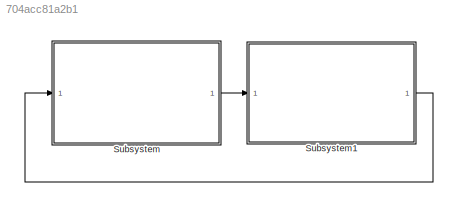
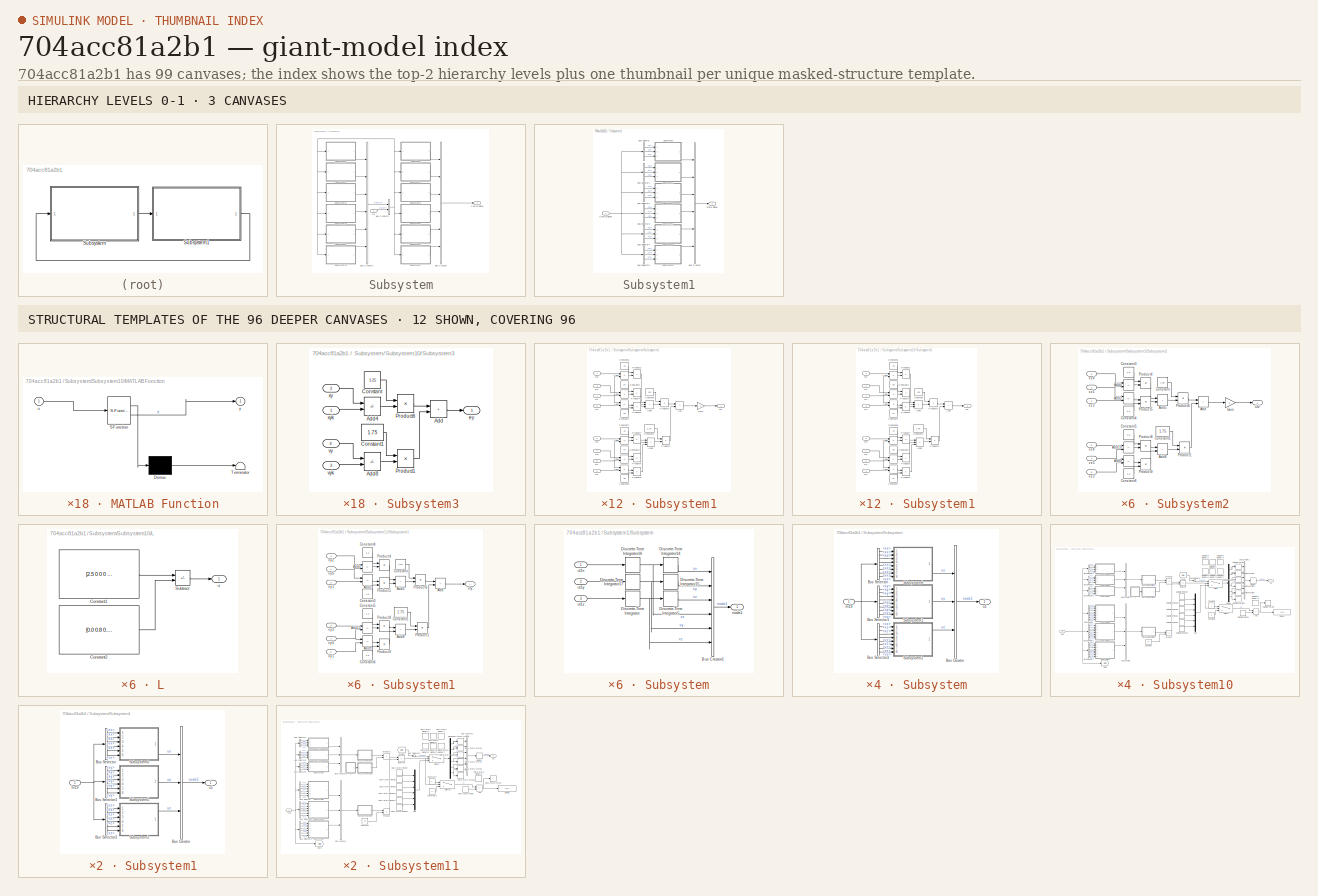
[diagram: thumbnail index - top-2 hierarchy levels (3 canvases) + 12 structural-template representatives of the remaining 96 canvases]
MODEL slx_704acc81a2b1
KIND model
CONFIG AbsTol = auto
CONFIG EnableMultiTasking = off
CONFIG FixedStep = 0.001
CONFIG MaxStep = auto
CONFIG MinStep = auto
CONFIG RelTol = 1e-3
CONFIG SampleTimeConstraint = Unconstrained
CONFIG SolverName = FixedStepDiscrete
CONFIG StartTime = 0.0
CONFIG StopTime = 7.5
BLOCK [SubSystem] Subsystem
  Ports = [1, 1]
  RequestExecContextInheritance = off
BLOCK [BusCreator] Subsystem/Bus Creator
  DisplayOption = bar
  InheritFromInputs = on
  Inputs = 6
  Ports = [6, 1]
BLOCK [BusCreator] Subsystem/Bus Creator1
  DisplayOption = bar
  InheritFromInputs = on
  Inputs = 6
  Ports = [6, 1]
BLOCK [BusCreator] Subsystem/Bus Creator2
  DisplayOption = bar
  InheritFromInputs = on
  Inputs = 2
  Ports = [2, 1]
BLOCK [Outport] Subsystem/Control signal
BLOCK [Inport] Subsystem/In1
BLOCK [SubSystem] Subsystem/Subsystem
  Ports = [1, 1]
  RequestExecContextInheritance = off
BLOCK [BusCreator] Subsystem/Subsystem/Bus Creator
  DisplayOption = bar
  InheritFromInputs = on
  Inputs = 3
  Ports = [3, 1]
BLOCK [BusSelector] Subsystem/Subsystem/Bus Selector
  OutputSignals = state(tk).node1.xx,state(tk).node2.xx,state(tk).node3.xx,state(tk).node6.xx,state(tk).node1.vx,state(tk).node2.vx,state(tk).node3.vx,state(tk).node6.vx
  Ports = [1, 8]
BLOCK [BusSelector] Subsystem/Subsystem/Bus Selector1
  OutputSignals = state(tk).node1.xy,state(tk).node2.xy,state(tk).node3.xy,state(tk).node6.xy,state(tk).node1.vy,state(tk).node2.vy,state(tk).node3.vy,state(tk).node6.vy
  Ports = [1, 8]
BLOCK [BusSelector] Subsystem/Subsystem/Bus Selector2
  OutputSignals = state(tk).node1.xz,state(tk).node2.xz,state(tk).node3.xz,state(tk).node6.xz,state(tk).node1.vz,state(tk).node2.vz,state(tk).node3.vz,state(tk).node6.vz
  Ports = [1, 8]
BLOCK [Inport] Subsystem/Subsystem/In19
BLOCK [SubSystem] Subsystem/Subsystem/Subsystem1
  Ports = [8, 1]
  RequestExecContextInheritance = off
BLOCK [Sum] Subsystem/Subsystem/Subsystem1/Add
  IconShape = rectangular
  Ports = [2, 1]
BLOCK [Sum] Subsystem/Subsystem/Subsystem1/Add1
  IconShape = rectangular
  Inputs = -+
  Ports = [2, 1]
BLOCK [Sum] Subsystem/Subsystem/Subsystem1/Add2
  IconShape = rectangular
  Inputs = +-
  Ports = [2, 1]
BLOCK [Sum] Subsystem/Subsystem/Subsystem1/Add4
  IconShape = rectangular
  Inputs = -+
  Ports = [2, 1]
BLOCK [Sum] Subsystem/Subsystem/Subsystem1/Add5
  IconShape = rectangular
  Inputs = +++
  Ports = [3, 1]
BLOCK [Sum] Subsystem/Subsystem/Subsystem1/Add6
  IconShape = rectangular
  Inputs = -+
  Ports = [2, 1]
BLOCK [Sum] Subsystem/Subsystem/Subsystem1/Add7
  IconShape = rectangular
  Inputs = +-
  Ports = [2, 1]
BLOCK [Sum] Subsystem/Subsystem/Subsystem1/Add8
  IconShape = rectangular
  Inputs = -+
  Ports = [2, 1]
BLOCK [Sum] Subsystem/Subsystem/Subsystem1/Add9
  IconShape = rectangular
  Inputs = +++
  Ports = [3, 1]
BLOCK [Constant] Subsystem/Subsystem/Subsystem1/Constant
  Value = 1.25
BLOCK [Constant] Subsystem/Subsystem/Subsystem1/Constant1
  Value = 1.75
BLOCK [Constant] Subsystem/Subsystem/Subsystem1/Constant2
  Value = 0.7
BLOCK [Constant] Subsystem/Subsystem/Subsystem1/Constant3
  Value = 0.7
BLOCK [Constant] Subsystem/Subsystem/Subsystem1/Constant4
  Value = 0.8
BLOCK [Constant] Subsystem/Subsystem/Subsystem1/Constant5
  Value = 1.0
BLOCK [Constant] Subsystem/Subsystem/Subsystem1/Constant6
  Value = 0.8
BLOCK [Constant] Subsystem/Subsystem/Subsystem1/Constant7
  Value = 1.0
BLOCK [Gain] Subsystem/Subsystem/Subsystem1/Gain
  Gain = -1
BLOCK [Product] Subsystem/Subsystem/Subsystem1/Product1
  Ports = [2, 1]
BLOCK [Product] Subsystem/Subsystem/Subsystem1/Product3
  Ports = [2, 1]
BLOCK [Product] Subsystem/Subsystem/Subsystem1/Product4
  Ports = [2, 1]
BLOCK [Product] Subsystem/Subsystem/Subsystem1/Product5
  Ports = [2, 1]
BLOCK [Product] Subsystem/Subsystem/Subsystem1/Product6
  Ports = [2, 1]
BLOCK [Product] Subsystem/Subsystem/Subsystem1/Product7
  Ports = [2, 1]
BLOCK [Product] Subsystem/Subsystem/Subsystem1/Product8
  Ports = [2, 1]
BLOCK [Product] Subsystem/Subsystem/Subsystem1/Product9
  Ports = [2, 1]
BLOCK [Outport] Subsystem/Subsystem/Subsystem1/utx
BLOCK [Inport] Subsystem/Subsystem/Subsystem1/vy1
  Port = 5
BLOCK [Inport] Subsystem/Subsystem/Subsystem1/vy2
  Port = 6
BLOCK [Inport] Subsystem/Subsystem/Subsystem1/vy3
  Port = 7
BLOCK [Inport] Subsystem/Subsystem/Subsystem1/vy6
  Port = 8
BLOCK [Inport] Subsystem/Subsystem/Subsystem1/xy1
BLOCK [Inport] Subsystem/Subsystem/Subsystem1/xy2
  Port = 2
BLOCK [Inport] Subsystem/Subsystem/Subsystem1/xy3
  Port = 3
BLOCK [Inport] Subsystem/Subsystem/Subsystem1/xy6
  Port = 4
BLOCK [SubSystem] Subsystem/Subsystem/Subsystem2
  Ports = [8, 1]
  RequestExecContextInheritance = off
BLOCK [Sum] Subsystem/Subsystem/Subsystem2/Add
  IconShape = rectangular
  Ports = [2, 1]
BLOCK [Sum] Subsystem/Subsystem/Subsystem2/Add1
  IconShape = rectangular
  Inputs = -+
  Ports = [2, 1]
BLOCK [Sum] Subsystem/Subsystem/Subsystem2/Add2
  IconShape = rectangular
  Inputs = +-
  Ports = [2, 1]
BLOCK [Sum] Subsystem/Subsystem/Subsystem2/Add4
  IconShape = rectangular
  Inputs = -+
  Ports = [2, 1]
BLOCK [Sum] Subsystem/Subsystem/Subsystem2/Add5
  IconShape = rectangular
  Inputs = +++
  Ports = [3, 1]
BLOCK [Sum] Subsystem/Subsystem/Subsystem2/Add6
  IconShape = rectangular
  Inputs = -+
  Ports = [2, 1]
BLOCK [Sum] Subsystem/Subsystem/Subsystem2/Add7
  IconShape = rectangular
  Inputs = +-
  Ports = [2, 1]
BLOCK [Sum] Subsystem/Subsystem/Subsystem2/Add8
  IconShape = rectangular
  Inputs = -+
  Ports = [2, 1]
BLOCK [Sum] Subsystem/Subsystem/Subsystem2/Add9
  IconShape = rectangular
  Inputs = +++
  Ports = [3, 1]
BLOCK [Constant] Subsystem/Subsystem/Subsystem2/Constant
  Value = 1.25
BLOCK [Constant] Subsystem/Subsystem/Subsystem2/Constant1
  Value = 1.75
BLOCK [Constant] Subsystem/Subsystem/Subsystem2/Constant2
  Value = 0.7
BLOCK [Constant] Subsystem/Subsystem/Subsystem2/Constant3
  Value = 0.7
BLOCK [Constant] Subsystem/Subsystem/Subsystem2/Constant4
  Value = 0.8
BLOCK [Constant] Subsystem/Subsystem/Subsystem2/Constant5
  Value = 1.0
BLOCK [Constant] Subsystem/Subsystem/Subsystem2/Constant6
  Value = 0.8
BLOCK [Constant] Subsystem/Subsystem/Subsystem2/Constant7
  Value = 1.0
BLOCK [Gain] Subsystem/Subsystem/Subsystem2/Gain
  Gain = -1
BLOCK [Product] Subsystem/Subsystem/Subsystem2/Product1
  Ports = [2, 1]
BLOCK [Product] Subsystem/Subsystem/Subsystem2/Product3
  Ports = [2, 1]
BLOCK [Product] Subsystem/Subsystem/Subsystem2/Product4
  Ports = [2, 1]
BLOCK [Product] Subsystem/Subsystem/Subsystem2/Product5
  Ports = [2, 1]
BLOCK [Product] Subsystem/Subsystem/Subsystem2/Product6
  Ports = [2, 1]
BLOCK [Product] Subsystem/Subsystem/Subsystem2/Product7
  Ports = [2, 1]
BLOCK [Product] Subsystem/Subsystem/Subsystem2/Product8
  Ports = [2, 1]
BLOCK [Product] Subsystem/Subsystem/Subsystem2/Product9
  Ports = [2, 1]
BLOCK [Outport] Subsystem/Subsystem/Subsystem2/utx
BLOCK [Inport] Subsystem/Subsystem/Subsystem2/vz1
  Port = 5
BLOCK [Inport] Subsystem/Subsystem/Subsystem2/vz2
  Port = 6
BLOCK [Inport] Subsystem/Subsystem/Subsystem2/vz3
  Port = 7
BLOCK [Inport] Subsystem/Subsystem/Subsystem2/vz6
  Port = 8
BLOCK [Inport] Subsystem/Subsystem/Subsystem2/xx2
  Port = 2
BLOCK [Inport] Subsystem/Subsystem/Subsystem2/xz1
BLOCK [Inport] Subsystem/Subsystem/Subsystem2/xz3
  Port = 3
BLOCK [Inport] Subsystem/Subsystem/Subsystem2/xz6
  Port = 4
BLOCK [SubSystem] Subsystem/Subsystem/Subsystem6
  Ports = [8, 1]
  RequestExecContextInheritance = off
BLOCK [Sum] Subsystem/Subsystem/Subsystem6/Add
  IconShape = rectangular
  Ports = [2, 1]
BLOCK [Sum] Subsystem/Subsystem/Subsystem6/Add1
  IconShape = rectangular
  Inputs = -+
  Ports = [2, 1]
BLOCK [Sum] Subsystem/Subsystem/Subsystem6/Add2
  IconShape = rectangular
  Inputs = +-
  Ports = [2, 1]
BLOCK [Sum] Subsystem/Subsystem/Subsystem6/Add4
  IconShape = rectangular
  Inputs = -+
  Ports = [2, 1]
BLOCK [Sum] Subsystem/Subsystem/Subsystem6/Add5
  IconShape = rectangular
  Inputs = +++
  Ports = [3, 1]
BLOCK [Sum] Subsystem/Subsystem/Subsystem6/Add6
  IconShape = rectangular
  Inputs = -+
  Ports = [2, 1]
BLOCK [Sum] Subsystem/Subsystem/Subsystem6/Add7
  IconShape = rectangular
  Inputs = +-
  Ports = [2, 1]
BLOCK [Sum] Subsystem/Subsystem/Subsystem6/Add8
  IconShape = rectangular
  Inputs = -+
  Ports = [2, 1]
BLOCK [Sum] Subsystem/Subsystem/Subsystem6/Add9
  IconShape = rectangular
  Inputs = +++
  Ports = [3, 1]
BLOCK [Constant] Subsystem/Subsystem/Subsystem6/Constant
  Value = 1.25
BLOCK [Constant] Subsystem/Subsystem/Subsystem6/Constant1
  Value = 1.75
BLOCK [Constant] Subsystem/Subsystem/Subsystem6/Constant2
  Value = 0.7
BLOCK [Constant] Subsystem/Subsystem/Subsystem6/Constant3
  Value = 0.7
BLOCK [Constant] Subsystem/Subsystem/Subsystem6/Constant4
  Value = 0.8
BLOCK [Constant] Subsystem/Subsystem/Subsystem6/Constant5
  Value = 1.0
BLOCK [Constant] Subsystem/Subsystem/Subsystem6/Constant6
  Value = 0.8
BLOCK [Constant] Subsystem/Subsystem/Subsystem6/Constant7
  Value = 1.0
BLOCK [Gain] Subsystem/Subsystem/Subsystem6/Gain
  Gain = -1
BLOCK [Product] Subsystem/Subsystem/Subsystem6/Product1
  Ports = [2, 1]
BLOCK [Product] Subsystem/Subsystem/Subsystem6/Product3
  Ports = [2, 1]
BLOCK [Product] Subsystem/Subsystem/Subsystem6/Product4
  Ports = [2, 1]
BLOCK [Product] Subsystem/Subsystem/Subsystem6/Product5
  Ports = [2, 1]
BLOCK [Product] Subsystem/Subsystem/Subsystem6/Product6
  Ports = [2, 1]
BLOCK [Product] Subsystem/Subsystem/Subsystem6/Product7
  Ports = [2, 1]
BLOCK [Product] Subsystem/Subsystem/Subsystem6/Product8
  Ports = [2, 1]
BLOCK [Product] Subsystem/Subsystem/Subsystem6/Product9
  Ports = [2, 1]
BLOCK [Outport] Subsystem/Subsystem/Subsystem6/utx
BLOCK [Inport] Subsystem/Subsystem/Subsystem6/vx1
  Port = 5
BLOCK [Inport] Subsystem/Subsystem/Subsystem6/vx2
  Port = 6
BLOCK [Inport] Subsystem/Subsystem/Subsystem6/vx3
  Port = 7
BLOCK [Inport] Subsystem/Subsystem/Subsystem6/vx6
  Port = 8
BLOCK [Inport] Subsystem/Subsystem/Subsystem6/xx1
BLOCK [Inport] Subsystem/Subsystem/Subsystem6/xx2
  Port = 2
BLOCK [Inport] Subsystem/Subsystem/Subsystem6/xx3
  Port = 3
BLOCK [Inport] Subsystem/Subsystem/Subsystem6/xx6
  Port = 4
BLOCK [Outport] Subsystem/Subsystem/u1
BLOCK [SubSystem] Subsystem/Subsystem1
  Ports = [1, 1]
  RequestExecContextInheritance = off
BLOCK [BusCreator] Subsystem/Subsystem1/Bus Creator
  DisplayOption = bar
  InheritFromInputs = on
  Inputs = 3
  Ports = [3, 1]
BLOCK [BusSelector] Subsystem/Subsystem1/Bus Selector
  OutputSignals = state(tk).node5.xx,state(tk).node3.xx,state(tk).node4.xx,state(tk).node5.vx,state(tk).node3.vx,state(tk).node4.vx
  Ports = [1, 6]
BLOCK [BusSelector] Subsystem/Subsystem1/Bus Selector1
  OutputSignals = state(tk).node5.xy,state(tk).node3.xy,state(tk).node4.xy,state(tk).node5.vy,state(tk).node3.vy,state(tk).node4.vy
  Ports = [1, 6]
BLOCK [BusSelector] Subsystem/Subsystem1/Bus Selector2
  OutputSignals = state(tk).node5.xz,state(tk).node3.xz,state(tk).node4.xz,state(tk).node5.vz,state(tk).node3.vz,state(tk).node4.vz
  Ports = [1, 6]
BLOCK [Inport] Subsystem/Subsystem1/In19
BLOCK [SubSystem] Subsystem/Subsystem1/Subsystem2
  Ports = [6, 1]
  RequestExecContextInheritance = off
BLOCK [Sum] Subsystem/Subsystem1/Subsystem2/Add
  IconShape = rectangular
  Ports = [2, 1]
BLOCK [Sum] Subsystem/Subsystem1/Subsystem2/Add10
  IconShape = rectangular
  Inputs = -+
  Ports = [2, 1]
BLOCK [Sum] Subsystem/Subsystem1/Subsystem2/Add2
  IconShape = rectangular
  Inputs = +-
  Ports = [2, 1]
BLOCK [Sum] Subsystem/Subsystem1/Subsystem2/Add4
  IconShape = rectangular
  Inputs = -+
  Ports = [2, 1]
BLOCK [Sum] Subsystem/Subsystem1/Subsystem2/Add5
  IconShape = rectangular
  Ports = [2, 1]
BLOCK [Sum] Subsystem/Subsystem1/Subsystem2/Add8
  IconShape = rectangular
  Ports = [2, 1]
BLOCK [Sum] Subsystem/Subsystem1/Subsystem2/Add9
  IconShape = rectangular
  Inputs = +-
  Ports = [2, 1]
BLOCK [Constant] Subsystem/Subsystem1/Subsystem2/Constant
  Value = 1.25
BLOCK [Constant] Subsystem/Subsystem1/Subsystem2/Constant1
  Value = 1.75
BLOCK [Constant] Subsystem/Subsystem1/Subsystem2/Constant3
  Value = 1.0
BLOCK [Constant] Subsystem/Subsystem1/Subsystem2/Constant4
  Value = 1.2
BLOCK [Constant] Subsystem/Subsystem1/Subsystem2/Constant5
  Value = 1.0
BLOCK [Constant] Subsystem/Subsystem1/Subsystem2/Constant6
  Value = 1.2
BLOCK [Gain] Subsystem/Subsystem1/Subsystem2/Gain
  Gain = -1
BLOCK [Product] Subsystem/Subsystem1/Subsystem2/Product1
  Ports = [2, 1]
BLOCK [Product] Subsystem/Subsystem1/Subsystem2/Product4
  Ports = [2, 1]
BLOCK [Product] Subsystem/Subsystem1/Subsystem2/Product5
  Ports = [2, 1]
BLOCK [Product] Subsystem/Subsystem1/Subsystem2/Product6
  Ports = [2, 1]
BLOCK [Product] Subsystem/Subsystem1/Subsystem2/Product8
  Ports = [2, 1]
BLOCK [Product] Subsystem/Subsystem1/Subsystem2/Product9
  Ports = [2, 1]
BLOCK [Outport] Subsystem/Subsystem1/Subsystem2/utz
BLOCK [Inport] Subsystem/Subsystem1/Subsystem2/vz3
  Port = 5
BLOCK [Inport] Subsystem/Subsystem1/Subsystem2/vz4
  Port = 6
BLOCK [Inport] Subsystem/Subsystem1/Subsystem2/vz5
  Port = 4
BLOCK [Inport] Subsystem/Subsystem1/Subsystem2/xz3
  Port = 2
BLOCK [Inport] Subsystem/Subsystem1/Subsystem2/xz4
  Port = 3
BLOCK [Inport] Subsystem/Subsystem1/Subsystem2/xz5
BLOCK [SubSystem] Subsystem/Subsystem1/Subsystem5
  Ports = [6, 1]
  RequestExecContextInheritance = off
BLOCK [Sum] Subsystem/Subsystem1/Subsystem5/Add
  IconShape = rectangular
  Ports = [2, 1]
BLOCK [Sum] Subsystem/Subsystem1/Subsystem5/Add10
  IconShape = rectangular
  Inputs = -+
  Ports = [2, 1]
BLOCK [Sum] Subsystem/Subsystem1/Subsystem5/Add2
  IconShape = rectangular
  Inputs = +-
  Ports = [2, 1]
BLOCK [Sum] Subsystem/Subsystem1/Subsystem5/Add4
  IconShape = rectangular
  Inputs = -+
  Ports = [2, 1]
BLOCK [Sum] Subsystem/Subsystem1/Subsystem5/Add5
  IconShape = rectangular
  Ports = [2, 1]
BLOCK [Sum] Subsystem/Subsystem1/Subsystem5/Add8
  IconShape = rectangular
  Ports = [2, 1]
BLOCK [Sum] Subsystem/Subsystem1/Subsystem5/Add9
  IconShape = rectangular
  Inputs = +-
  Ports = [2, 1]
BLOCK [Constant] Subsystem/Subsystem1/Subsystem5/Constant
  Value = 1.25
BLOCK [Constant] Subsystem/Subsystem1/Subsystem5/Constant1
  Value = 1.75
BLOCK [Constant] Subsystem/Subsystem1/Subsystem5/Constant3
  Value = 1.0
BLOCK [Constant] Subsystem/Subsystem1/Subsystem5/Constant4
  Value = 1.2
BLOCK [Constant] Subsystem/Subsystem1/Subsystem5/Constant5
  Value = 1.0
BLOCK [Constant] Subsystem/Subsystem1/Subsystem5/Constant6
  Value = 1.2
BLOCK [Gain] Subsystem/Subsystem1/Subsystem5/Gain
  Gain = -1
BLOCK [Product] Subsystem/Subsystem1/Subsystem5/Product1
  Ports = [2, 1]
BLOCK [Product] Subsystem/Subsystem1/Subsystem5/Product4
  Ports = [2, 1]
BLOCK [Product] Subsystem/Subsystem1/Subsystem5/Product5
  Ports = [2, 1]
BLOCK [Product] Subsystem/Subsystem1/Subsystem5/Product6
  Ports = [2, 1]
BLOCK [Product] Subsystem/Subsystem1/Subsystem5/Product8
  Ports = [2, 1]
BLOCK [Product] Subsystem/Subsystem1/Subsystem5/Product9
  Ports = [2, 1]
BLOCK [Outport] Subsystem/Subsystem1/Subsystem5/uty
BLOCK [Inport] Subsystem/Subsystem1/Subsystem5/vy3
  Port = 5
BLOCK [Inport] Subsystem/Subsystem1/Subsystem5/vy4
  Port = 6
BLOCK [Inport] Subsystem/Subsystem1/Subsystem5/vy5
  Port = 4
BLOCK [Inport] Subsystem/Subsystem1/Subsystem5/xy3
  Port = 2
BLOCK [Inport] Subsystem/Subsystem1/Subsystem5/xy4
  Port = 3
BLOCK [Inport] Subsystem/Subsystem1/Subsystem5/xy5
BLOCK [SubSystem] Subsystem/Subsystem1/Subsystem6
  Ports = [6, 1]
  RequestExecContextInheritance = off
BLOCK [Sum] Subsystem/Subsystem1/Subsystem6/Add
  IconShape = rectangular
  Ports = [2, 1]
BLOCK [Sum] Subsystem/Subsystem1/Subsystem6/Add10
  IconShape = rectangular
  Inputs = -+
  Ports = [2, 1]
BLOCK [Sum] Subsystem/Subsystem1/Subsystem6/Add2
  IconShape = rectangular
  Inputs = +-
  Ports = [2, 1]
BLOCK [Sum] Subsystem/Subsystem1/Subsystem6/Add4
  IconShape = rectangular
  Inputs = -+
  Ports = [2, 1]
BLOCK [Sum] Subsystem/Subsystem1/Subsystem6/Add5
  IconShape = rectangular
  Ports = [2, 1]
BLOCK [Sum] Subsystem/Subsystem1/Subsystem6/Add8
  IconShape = rectangular
  Ports = [2, 1]
BLOCK [Sum] Subsystem/Subsystem1/Subsystem6/Add9
  IconShape = rectangular
  Inputs = +-
  Ports = [2, 1]
BLOCK [Constant] Subsystem/Subsystem1/Subsystem6/Constant
  Value = 1.25
BLOCK [Constant] Subsystem/Subsystem1/Subsystem6/Constant1
  Value = 1.75
BLOCK [Constant] Subsystem/Subsystem1/Subsystem6/Constant3
  Value = 1.0
BLOCK [Constant] Subsystem/Subsystem1/Subsystem6/Constant4
  Value = 1.2
BLOCK [Constant] Subsystem/Subsystem1/Subsystem6/Constant5
  Value = 1.0
BLOCK [Constant] Subsystem/Subsystem1/Subsystem6/Constant6
  Value = 1.2
BLOCK [Gain] Subsystem/Subsystem1/Subsystem6/Gain
  Gain = -1
BLOCK [Product] Subsystem/Subsystem1/Subsystem6/Product1
  Ports = [2, 1]
BLOCK [Product] Subsystem/Subsystem1/Subsystem6/Product4
  Ports = [2, 1]
BLOCK [Product] Subsystem/Subsystem1/Subsystem6/Product5
  Ports = [2, 1]
BLOCK [Product] Subsystem/Subsystem1/Subsystem6/Product6
  Ports = [2, 1]
BLOCK [Product] Subsystem/Subsystem1/Subsystem6/Product8
  Ports = [2, 1]
BLOCK [Product] Subsystem/Subsystem1/Subsystem6/Product9
  Ports = [2, 1]
BLOCK [Outport] Subsystem/Subsystem1/Subsystem6/utx
BLOCK [Inport] Subsystem/Subsystem1/Subsystem6/vx3
  Port = 5
BLOCK [Inport] Subsystem/Subsystem1/Subsystem6/vx4
  Port = 6
BLOCK [Inport] Subsystem/Subsystem1/Subsystem6/vx5
  Port = 4
BLOCK [Inport] Subsystem/Subsystem1/Subsystem6/xx3
  Port = 2
BLOCK [Inport] Subsystem/Subsystem1/Subsystem6/xx4
  Port = 3
BLOCK [Inport] Subsystem/Subsystem1/Subsystem6/xx5
BLOCK [Outport] Subsystem/Subsystem1/u5
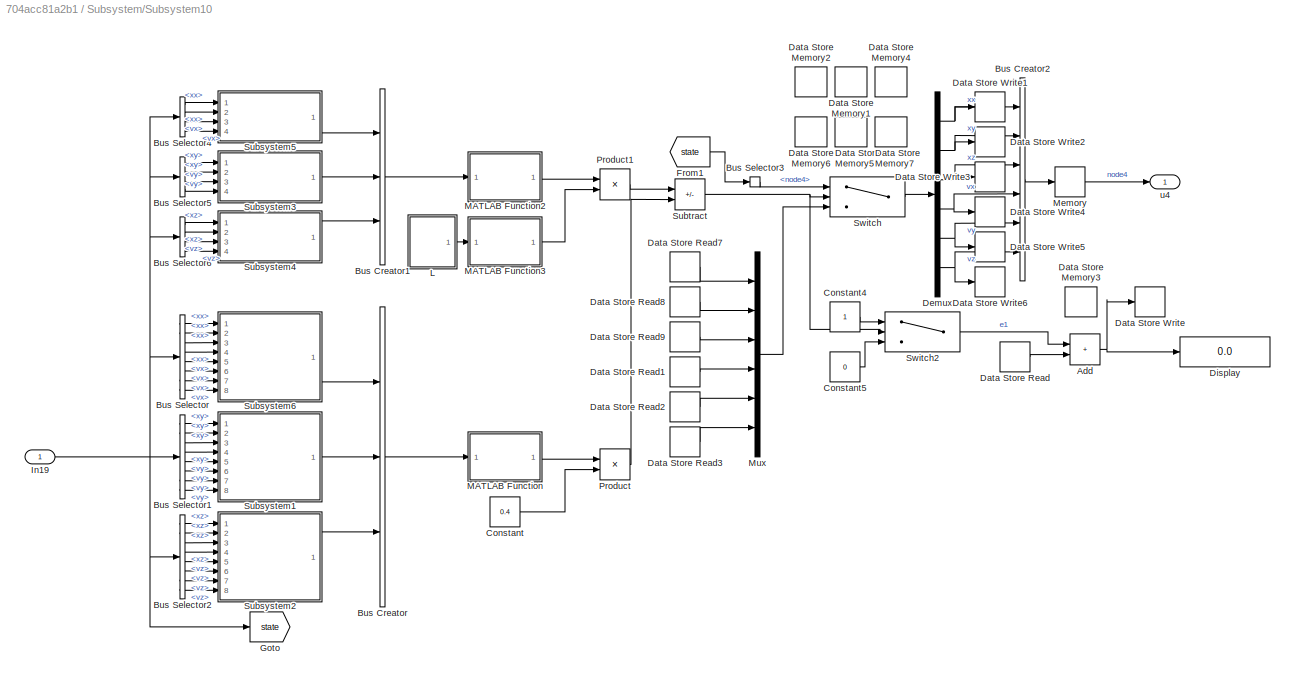
BLOCK [SubSystem] Subsystem/Subsystem10
  Ports = [1, 1]
  RequestExecContextInheritance = off
BLOCK [Sum] Subsystem/Subsystem10/Add
  IconShape = rectangular
  Ports = [2, 1]
BLOCK [BusCreator] Subsystem/Subsystem10/Bus Creator
  DisplayOption = bar
  InheritFromInputs = on
  Inputs = 3
  Ports = [3, 1]
BLOCK [BusCreator] Subsystem/Subsystem10/Bus Creator1
  DisplayOption = bar
  InheritFromInputs = on
  Inputs = 3
  Ports = [3, 1]
BLOCK [BusCreator] Subsystem/Subsystem10/Bus Creator2
  DisplayOption = bar
  InheritFromInputs = on
  Inputs = 6
  Ports = [6, 1]
BLOCK [BusSelector] Subsystem/Subsystem10/Bus Selector
  OutputSignals = state(tk).node4.xx,state(tk).node2.xx,state(tk).node3.xx,state(tk).node5.xx,state(tk).node4.vx,state(tk).node2.vx,state(tk).node3.vx,state(tk).node5.vx
  Ports = [1, 8]
BLOCK [BusSelector] Subsystem/Subsystem10/Bus Selector1
  OutputSignals = state(tk).node4.xy,state(tk).node2.xy,state(tk).node3.xy,state(tk).node5.xy,state(tk).node4.vy,state(tk).node2.vy,state(tk).node3.vy,state(tk).node5.vy
  Ports = [1, 8]
BLOCK [BusSelector] Subsystem/Subsystem10/Bus Selector2
  OutputSignals = state(tk).node4.xz,state(tk).node2.xz,state(tk).node3.xz,state(tk).node5.xz,state(tk).node4.vz,state(tk).node2.vz,state(tk).node3.vz,state(tk).node5.vz
  Ports = [1, 8]
BLOCK [BusSelector] Subsystem/Subsystem10/Bus Selector3
  OutputSignals = state(t).node4
  Ports = [1, 1]
BLOCK [BusSelector] Subsystem/Subsystem10/Bus Selector4
  OutputSignals = state(tk).node4.xx,state(t).node4.xx,state(tk).node4.vx,state(t).node4.vx
  Ports = [1, 4]
BLOCK [BusSelector] Subsystem/Subsystem10/Bus Selector5
  OutputSignals = state(tk).node4.xy,state(t).node4.xy,state(tk).node4.vy,state(t).node4.vy
  Ports = [1, 4]
BLOCK [BusSelector] Subsystem/Subsystem10/Bus Selector6
  OutputSignals = state(tk).node4.xz,state(t).node4.xz,state(tk).node4.vz,state(t).node4.vz
  Ports = [1, 4]
BLOCK [Constant] Subsystem/Subsystem10/Constant
  Value = 0.4
BLOCK [Constant] Subsystem/Subsystem10/Constant4
BLOCK [Constant] Subsystem/Subsystem10/Constant5
  Value = 0
BLOCK [DataStoreMemory] Subsystem/Subsystem10/Data Store Memory1
  DataStoreName = xyk4
  ReadBeforeWriteMsg = warning
  ShowAdditionalParam = off
  WriteAfterReadMsg = warning
  WriteAfterWriteMsg = warning
BLOCK [DataStoreMemory] Subsystem/Subsystem10/Data Store Memory2
  DataStoreName = xxk4
  ReadBeforeWriteMsg = warning
  ShowAdditionalParam = off
  WriteAfterReadMsg = warning
  WriteAfterWriteMsg = warning
BLOCK [DataStoreMemory] Subsystem/Subsystem10/Data Store Memory3
  DataStoreName = count4
  ReadBeforeWriteMsg = warning
  ShowAdditionalParam = off
  WriteAfterReadMsg = warning
  WriteAfterWriteMsg = warning
BLOCK [DataStoreMemory] Subsystem/Subsystem10/Data Store Memory4
  DataStoreName = xzk4
  ReadBeforeWriteMsg = warning
  ShowAdditionalParam = off
  WriteAfterReadMsg = warning
  WriteAfterWriteMsg = warning
BLOCK [DataStoreMemory] Subsystem/Subsystem10/Data Store Memory5
  DataStoreName = vyk4
  ReadBeforeWriteMsg = warning
  ShowAdditionalParam = off
  WriteAfterReadMsg = warning
  WriteAfterWriteMsg = warning
BLOCK [DataStoreMemory] Subsystem/Subsystem10/Data Store Memory6
  DataStoreName = vxk4
  ReadBeforeWriteMsg = warning
  ShowAdditionalParam = off
  WriteAfterReadMsg = warning
  WriteAfterWriteMsg = warning
BLOCK [DataStoreMemory] Subsystem/Subsystem10/Data Store Memory7
  DataStoreName = vzk4
  ReadBeforeWriteMsg = warning
  ShowAdditionalParam = off
  WriteAfterReadMsg = warning
  WriteAfterWriteMsg = warning
BLOCK [DataStoreRead] Subsystem/Subsystem10/Data Store Read
  DataStoreName = count4
  IndexOptions = Index vector (dialog)
  Indices = 1
  OutputSizes = 1
  Ports = [0, 1]
BLOCK [DataStoreRead] Subsystem/Subsystem10/Data Store Read1
  DataStoreName = vxk4
  IndexOptions = Index vector (dialog)
  Indices = 1
  OutputSizes = 1
  Ports = [0, 1]
BLOCK [DataStoreRead] Subsystem/Subsystem10/Data Store Read2
  DataStoreName = vyk4
  IndexOptions = Index vector (dialog)
  Indices = 1
  OutputSizes = 1
  Ports = [0, 1]
BLOCK [DataStoreRead] Subsystem/Subsystem10/Data Store Read3
  DataStoreName = vzk4
  IndexOptions = Index vector (dialog)
  Indices = 1
  OutputSizes = 1
  Ports = [0, 1]
BLOCK [DataStoreRead] Subsystem/Subsystem10/Data Store Read7
  DataStoreName = xxk4
  IndexOptions = Index vector (dialog)
  Indices = 1
  OutputSizes = 1
  Ports = [0, 1]
BLOCK [DataStoreRead] Subsystem/Subsystem10/Data Store Read8
  DataStoreName = xyk4
  IndexOptions = Index vector (dialog)
  Indices = 1
  OutputSizes = 1
  Ports = [0, 1]
BLOCK [DataStoreRead] Subsystem/Subsystem10/Data Store Read9
  DataStoreName = xzk4
  IndexOptions = Index vector (dialog)
  Indices = 1
  OutputSizes = 1
  Ports = [0, 1]
BLOCK [DataStoreWrite] Subsystem/Subsystem10/Data Store Write
  DataStoreName = count4
  IndexOptions = Index vector (dialog)
  Indices = 1
  OutputSizes = 1
  Ports = [1]
BLOCK [DataStoreWrite] Subsystem/Subsystem10/Data Store Write1
  DataStoreName = xxk4
  IndexOptions = Index vector (dialog)
  Indices = 1
  OutputSizes = 1
  Ports = [1]
BLOCK [DataStoreWrite] Subsystem/Subsystem10/Data Store Write2
  DataStoreName = xyk4
  IndexOptions = Index vector (dialog)
  Indices = 1
  OutputSizes = 1
  Ports = [1]
BLOCK [DataStoreWrite] Subsystem/Subsystem10/Data Store Write3
  DataStoreName = xzk4
  IndexOptions = Index vector (dialog)
  Indices = 1
  OutputSizes = 1
  Ports = [1]
BLOCK [DataStoreWrite] Subsystem/Subsystem10/Data Store Write4
  DataStoreName = vxk4
  IndexOptions = Index vector (dialog)
  Indices = 1
  OutputSizes = 1
  Ports = [1]
BLOCK [DataStoreWrite] Subsystem/Subsystem10/Data Store Write5
  DataStoreName = vyk4
  IndexOptions = Index vector (dialog)
  Indices = 1
  OutputSizes = 1
  Ports = [1]
BLOCK [DataStoreWrite] Subsystem/Subsystem10/Data Store Write6
  DataStoreName = vzk4
  IndexOptions = Index vector (dialog)
  Indices = 1
  OutputSizes = 1
  Ports = [1]
BLOCK [Demux] Subsystem/Subsystem10/Demux
  Outputs = 6
  Ports = [1, 6]
BLOCK [Display] Subsystem/Subsystem10/Display
  Decimation = 1
  Ports = [1]
BLOCK [From] Subsystem/Subsystem10/From1
  GotoTag = state
BLOCK [Goto] Subsystem/Subsystem10/Goto
  GotoTag = state
BLOCK [Inport] Subsystem/Subsystem10/In19
BLOCK [SubSystem] Subsystem/Subsystem10/L
  Ports = [0, 1]
  RequestExecContextInheritance = off
BLOCK [Constant] Subsystem/Subsystem10/L/Constant1
  Value = [2.5 0 0 0 0 0\n     0 2.7 0 0 0 0\n     0 0 2.7 0 0 0\n     0 0 0 2.5 0 0\n     0 0 0 0 2.2 0\n     0 0 0 0 0 2.2]
BLOCK [Constant] Subsystem/Subsystem10/L/Constant2
  Value = [0.0 0.8 0.7 0.0 0.0 1.0\n     0.8 0.0 0.0 0.7 0.0 1.2\n     0.7 0.0 0.0 0.8 1.2 0.0\n     0.0 0.7 0.8 0.0 1.0 0.0\n     0.0 0.0 1.2 1.0 0.0 0.0\n     1.0 1.2 0.0 0.0 0.0 0.0]
BLOCK [Sum] Subsystem/Subsystem10/L/Subtract
  IconShape = rectangular
  Inputs = +-
  Ports = [2, 1]
BLOCK [Outport] Subsystem/Subsystem10/L/u
BLOCK [SubSystem] Subsystem/Subsystem10/MATLAB Function
  ErrorFcn = Stateflow.Translate.translate
  PermitHierarchicalResolution = ExplicitOnly
  Ports = [1, 1]
  RequestExecContextInheritance = off
  SFBlockType = MATLAB Function
  TreatAsAtomicUnit = on
BLOCK [Demux] Subsystem/Subsystem10/MATLAB Function/ Demux 
  Outputs = 1
  Ports = [1, 1]
BLOCK [S-Function] Subsystem/Subsystem10/MATLAB Function/ SFunction 
  EnableBusSupport = on
  FunctionName = sf_sfun
  PortCounts = [1 2]
  Ports = [1, 2]
  SFcnIsStateOwnerBlock = off
  SFunctionDeploymentMode = off
  Tag = Stateflow S-Function 10
BLOCK [Terminator] Subsystem/Subsystem10/MATLAB Function/ Terminator 
BLOCK [Inport] Subsystem/Subsystem10/MATLAB Function/u
BLOCK [Outport] Subsystem/Subsystem10/MATLAB Function/y
BLOCK [SubSystem] Subsystem/Subsystem10/MATLAB Function2
  ErrorFcn = Stateflow.Translate.translate
  PermitHierarchicalResolution = ExplicitOnly
  Ports = [1, 1]
  RequestExecContextInheritance = off
  SFBlockType = MATLAB Function
  TreatAsAtomicUnit = on
BLOCK [Demux] Subsystem/Subsystem10/MATLAB Function2/ Demux 
  Outputs = 1
  Ports = [1, 1]
BLOCK [S-Function] Subsystem/Subsystem10/MATLAB Function2/ SFunction 
  EnableBusSupport = on
  FunctionName = sf_sfun
  PortCounts = [1 2]
  Ports = [1, 2]
  SFcnIsStateOwnerBlock = off
  SFunctionDeploymentMode = off
  Tag = Stateflow S-Function 11
BLOCK [Terminator] Subsystem/Subsystem10/MATLAB Function2/ Terminator 
BLOCK [Inport] Subsystem/Subsystem10/MATLAB Function2/u
BLOCK [Outport] Subsystem/Subsystem10/MATLAB Function2/y
BLOCK [SubSystem] Subsystem/Subsystem10/MATLAB Function3
  ErrorFcn = Stateflow.Translate.translate
  PermitHierarchicalResolution = ExplicitOnly
  Ports = [1, 1]
  RequestExecContextInheritance = off
  SFBlockType = MATLAB Function
  TreatAsAtomicUnit = on
BLOCK [Demux] Subsystem/Subsystem10/MATLAB Function3/ Demux 
  Outputs = 1
  Ports = [1, 1]
BLOCK [S-Function] Subsystem/Subsystem10/MATLAB Function3/ SFunction 
  EnableBusSupport = on
  FunctionName = sf_sfun
  PortCounts = [1 2]
  Ports = [1, 2]
  SFcnIsStateOwnerBlock = off
  SFunctionDeploymentMode = off
  Tag = Stateflow S-Function 12
BLOCK [Terminator] Subsystem/Subsystem10/MATLAB Function3/ Terminator 
BLOCK [Inport] Subsystem/Subsystem10/MATLAB Function3/u
BLOCK [Outport] Subsystem/Subsystem10/MATLAB Function3/y
BLOCK [Memory] Subsystem/Subsystem10/Memory
BLOCK [Mux] Subsystem/Subsystem10/Mux
  DisplayOption = bar
  Inputs = 6
  Ports = [6, 1]
BLOCK [Product] Subsystem/Subsystem10/Product
  Ports = [2, 1]
BLOCK [Product] Subsystem/Subsystem10/Product1
  Ports = [2, 1]
BLOCK [SubSystem] Subsystem/Subsystem10/Subsystem1
  Ports = [8, 1]
  RequestExecContextInheritance = off
BLOCK [Sum] Subsystem/Subsystem10/Subsystem1/Add
  IconShape = rectangular
  Ports = [2, 1]
BLOCK [Sum] Subsystem/Subsystem10/Subsystem1/Add1
  IconShape = rectangular
  Inputs = -+
  Ports = [2, 1]
BLOCK [Sum] Subsystem/Subsystem10/Subsystem1/Add2
  IconShape = rectangular
  Inputs = +-
  Ports = [2, 1]
BLOCK [Sum] Subsystem/Subsystem10/Subsystem1/Add4
  IconShape = rectangular
  Inputs = -+
  Ports = [2, 1]
BLOCK [Sum] Subsystem/Subsystem10/Subsystem1/Add5
  IconShape = rectangular
  Inputs = +++
  Ports = [3, 1]
BLOCK [Sum] Subsystem/Subsystem10/Subsystem1/Add6
  IconShape = rectangular
  Inputs = -+
  Ports = [2, 1]
BLOCK [Sum] Subsystem/Subsystem10/Subsystem1/Add7
  IconShape = rectangular
  Inputs = +-
  Ports = [2, 1]
BLOCK [Sum] Subsystem/Subsystem10/Subsystem1/Add8
  IconShape = rectangular
  Inputs = -+
  Ports = [2, 1]
BLOCK [Sum] Subsystem/Subsystem10/Subsystem1/Add9
  IconShape = rectangular
  Inputs = +++
  Ports = [3, 1]
BLOCK [Constant] Subsystem/Subsystem10/Subsystem1/Constant
  Value = 1.25
BLOCK [Constant] Subsystem/Subsystem10/Subsystem1/Constant1
  Value = 1.75
BLOCK [Constant] Subsystem/Subsystem10/Subsystem1/Constant3
  Value = 0.8
BLOCK [Constant] Subsystem/Subsystem10/Subsystem1/Constant4
  Value = 0.7
BLOCK [Constant] Subsystem/Subsystem10/Subsystem1/Constant5
  Value = 1.0
BLOCK [Constant] Subsystem/Subsystem10/Subsystem1/Constant6
  Value = 0.8
BLOCK [Constant] Subsystem/Subsystem10/Subsystem1/Constant7
  Value = 0.7
BLOCK [Constant] Subsystem/Subsystem10/Subsystem1/Constant8
  Value = 1.0
BLOCK [Product] Subsystem/Subsystem10/Subsystem1/Product1
  Ports = [2, 1]
BLOCK [Product] Subsystem/Subsystem10/Subsystem1/Product3
  Ports = [2, 1]
BLOCK [Product] Subsystem/Subsystem10/Subsystem1/Product4
  Ports = [2, 1]
BLOCK [Product] Subsystem/Subsystem10/Subsystem1/Product5
  Ports = [2, 1]
BLOCK [Product] Subsystem/Subsystem10/Subsystem1/Product6
  Ports = [2, 1]
BLOCK [Product] Subsystem/Subsystem10/Subsystem1/Product7
  Ports = [2, 1]
BLOCK [Product] Subsystem/Subsystem10/Subsystem1/Product8
  Ports = [2, 1]
BLOCK [Product] Subsystem/Subsystem10/Subsystem1/Product9
  Ports = [2, 1]
BLOCK [Outport] Subsystem/Subsystem10/Subsystem1/p4y
BLOCK [Inport] Subsystem/Subsystem10/Subsystem1/vy2
  Port = 6
BLOCK [Inport] Subsystem/Subsystem10/Subsystem1/vy3
  Port = 7
BLOCK [Inport] Subsystem/Subsystem10/Subsystem1/vy4
  Port = 5
BLOCK [Inport] Subsystem/Subsystem10/Subsystem1/vy5
  Port = 8
BLOCK [Inport] Subsystem/Subsystem10/Subsystem1/xy2
  Port = 2
BLOCK [Inport] Subsystem/Subsystem10/Subsystem1/xy3
  Port = 3
BLOCK [Inport] Subsystem/Subsystem10/Subsystem1/xy4
BLOCK [Inport] Subsystem/Subsystem10/Subsystem1/xy5
  Port = 4
BLOCK [SubSystem] Subsystem/Subsystem10/Subsystem2
  Ports = [8, 1]
  RequestExecContextInheritance = off
BLOCK [Sum] Subsystem/Subsystem10/Subsystem2/Add
  IconShape = rectangular
  Ports = [2, 1]
BLOCK [Sum] Subsystem/Subsystem10/Subsystem2/Add1
  IconShape = rectangular
  Inputs = -+
  Ports = [2, 1]
BLOCK [Sum] Subsystem/Subsystem10/Subsystem2/Add2
  IconShape = rectangular
  Inputs = +-
  Ports = [2, 1]
BLOCK [Sum] Subsystem/Subsystem10/Subsystem2/Add4
  IconShape = rectangular
  Inputs = -+
  Ports = [2, 1]
BLOCK [Sum] Subsystem/Subsystem10/Subsystem2/Add5
  IconShape = rectangular
  Inputs = +++
  Ports = [3, 1]
BLOCK [Sum] Subsystem/Subsystem10/Subsystem2/Add6
  IconShape = rectangular
  Inputs = -+
  Ports = [2, 1]
BLOCK [Sum] Subsystem/Subsystem10/Subsystem2/Add7
  IconShape = rectangular
  Inputs = +-
  Ports = [2, 1]
BLOCK [Sum] Subsystem/Subsystem10/Subsystem2/Add8
  IconShape = rectangular
  Inputs = -+
  Ports = [2, 1]
BLOCK [Sum] Subsystem/Subsystem10/Subsystem2/Add9
  IconShape = rectangular
  Inputs = +++
  Ports = [3, 1]
BLOCK [Constant] Subsystem/Subsystem10/Subsystem2/Constant
  Value = 1.25
BLOCK [Constant] Subsystem/Subsystem10/Subsystem2/Constant1
  Value = 1.75
BLOCK [Constant] Subsystem/Subsystem10/Subsystem2/Constant3
  Value = 0.8
BLOCK [Constant] Subsystem/Subsystem10/Subsystem2/Constant4
  Value = 0.7
BLOCK [Constant] Subsystem/Subsystem10/Subsystem2/Constant5
  Value = 1.0
BLOCK [Constant] Subsystem/Subsystem10/Subsystem2/Constant6
  Value = 0.8
BLOCK [Constant] Subsystem/Subsystem10/Subsystem2/Constant7
  Value = 0.7
BLOCK [Constant] Subsystem/Subsystem10/Subsystem2/Constant8
  Value = 1.0
BLOCK [Product] Subsystem/Subsystem10/Subsystem2/Product1
  Ports = [2, 1]
BLOCK [Product] Subsystem/Subsystem10/Subsystem2/Product3
  Ports = [2, 1]
BLOCK [Product] Subsystem/Subsystem10/Subsystem2/Product4
  Ports = [2, 1]
BLOCK [Product] Subsystem/Subsystem10/Subsystem2/Product5
  Ports = [2, 1]
BLOCK [Product] Subsystem/Subsystem10/Subsystem2/Product6
  Ports = [2, 1]
BLOCK [Product] Subsystem/Subsystem10/Subsystem2/Product7
  Ports = [2, 1]
BLOCK [Product] Subsystem/Subsystem10/Subsystem2/Product8
  Ports = [2, 1]
BLOCK [Product] Subsystem/Subsystem10/Subsystem2/Product9
  Ports = [2, 1]
BLOCK [Outport] Subsystem/Subsystem10/Subsystem2/p4z
BLOCK [Inport] Subsystem/Subsystem10/Subsystem2/vz2
  Port = 6
BLOCK [Inport] Subsystem/Subsystem10/Subsystem2/vz3
  Port = 7
BLOCK [Inport] Subsystem/Subsystem10/Subsystem2/vz4
  Port = 5
BLOCK [Inport] Subsystem/Subsystem10/Subsystem2/vz5
  Port = 8
BLOCK [Inport] Subsystem/Subsystem10/Subsystem2/xx2
  Port = 2
BLOCK [Inport] Subsystem/Subsystem10/Subsystem2/xz3
  Port = 3
BLOCK [Inport] Subsystem/Subsystem10/Subsystem2/xz4
BLOCK [Inport] Subsystem/Subsystem10/Subsystem2/xz5
  Port = 4
BLOCK [SubSystem] Subsystem/Subsystem10/Subsystem3
  Ports = [4, 1]
  RequestExecContextInheritance = off
BLOCK [Sum] Subsystem/Subsystem10/Subsystem3/Add
  IconShape = rectangular
  Ports = [2, 1]
BLOCK [Sum] Subsystem/Subsystem10/Subsystem3/Add4
  IconShape = rectangular
  Inputs = -+
  Ports = [2, 1]
BLOCK [Sum] Subsystem/Subsystem10/Subsystem3/Add8
  IconShape = rectangular
  Inputs = -+
  Ports = [2, 1]
BLOCK [Constant] Subsystem/Subsystem10/Subsystem3/Constant
  Value = 1.25
BLOCK [Constant] Subsystem/Subsystem10/Subsystem3/Constant1
  Value = 1.75
BLOCK [Product] Subsystem/Subsystem10/Subsystem3/Product1
  Ports = [2, 1]
BLOCK [Product] Subsystem/Subsystem10/Subsystem3/Product6
  Ports = [2, 1]
BLOCK [Outport] Subsystem/Subsystem10/Subsystem3/ey
BLOCK [Inport] Subsystem/Subsystem10/Subsystem3/vy
  Port = 4
BLOCK [Inport] Subsystem/Subsystem10/Subsystem3/vyk
  Port = 3
BLOCK [Inport] Subsystem/Subsystem10/Subsystem3/xy
  Port = 2
BLOCK [Inport] Subsystem/Subsystem10/Subsystem3/xyk
BLOCK [SubSystem] Subsystem/Subsystem10/Subsystem4
  Ports = [4, 1]
  RequestExecContextInheritance = off
BLOCK [Sum] Subsystem/Subsystem10/Subsystem4/Add
  IconShape = rectangular
  Ports = [2, 1]
BLOCK [Sum] Subsystem/Subsystem10/Subsystem4/Add4
  IconShape = rectangular
  Inputs = -+
  Ports = [2, 1]
BLOCK [Sum] Subsystem/Subsystem10/Subsystem4/Add8
  IconShape = rectangular
  Inputs = -+
  Ports = [2, 1]
BLOCK [Constant] Subsystem/Subsystem10/Subsystem4/Constant
  Value = 1.25
BLOCK [Constant] Subsystem/Subsystem10/Subsystem4/Constant1
  Value = 1.75
BLOCK [Product] Subsystem/Subsystem10/Subsystem4/Product1
  Ports = [2, 1]
BLOCK [Product] Subsystem/Subsystem10/Subsystem4/Product6
  Ports = [2, 1]
BLOCK [Outport] Subsystem/Subsystem10/Subsystem4/ez
BLOCK [Inport] Subsystem/Subsystem10/Subsystem4/vz
  Port = 4
BLOCK [Inport] Subsystem/Subsystem10/Subsystem4/vzk
  Port = 3
BLOCK [Inport] Subsystem/Subsystem10/Subsystem4/xz
  Port = 2
BLOCK [Inport] Subsystem/Subsystem10/Subsystem4/xzk
BLOCK [SubSystem] Subsystem/Subsystem10/Subsystem5
  Ports = [4, 1]
  RequestExecContextInheritance = off
BLOCK [Sum] Subsystem/Subsystem10/Subsystem5/Add
  IconShape = rectangular
  Ports = [2, 1]
BLOCK [Sum] Subsystem/Subsystem10/Subsystem5/Add4
  IconShape = rectangular
  Inputs = -+
  Ports = [2, 1]
BLOCK [Sum] Subsystem/Subsystem10/Subsystem5/Add8
  IconShape = rectangular
  Inputs = -+
  Ports = [2, 1]
BLOCK [Constant] Subsystem/Subsystem10/Subsystem5/Constant
  Value = 1.25
BLOCK [Constant] Subsystem/Subsystem10/Subsystem5/Constant1
  Value = 1.75
BLOCK [Product] Subsystem/Subsystem10/Subsystem5/Product1
  Ports = [2, 1]
BLOCK [Product] Subsystem/Subsystem10/Subsystem5/Product6
  Ports = [2, 1]
BLOCK [Outport] Subsystem/Subsystem10/Subsystem5/ex
BLOCK [Inport] Subsystem/Subsystem10/Subsystem5/vx
  Port = 4
BLOCK [Inport] Subsystem/Subsystem10/Subsystem5/vxk
  Port = 3
BLOCK [Inport] Subsystem/Subsystem10/Subsystem5/xx
  Port = 2
BLOCK [Inport] Subsystem/Subsystem10/Subsystem5/xxk
BLOCK [SubSystem] Subsystem/Subsystem10/Subsystem6
  Ports = [8, 1]
  RequestExecContextInheritance = off
BLOCK [Sum] Subsystem/Subsystem10/Subsystem6/Add
  IconShape = rectangular
  Ports = [2, 1]
BLOCK [Sum] Subsystem/Subsystem10/Subsystem6/Add1
  IconShape = rectangular
  Inputs = -+
  Ports = [2, 1]
BLOCK [Sum] Subsystem/Subsystem10/Subsystem6/Add2
  IconShape = rectangular
  Inputs = +-
  Ports = [2, 1]
BLOCK [Sum] Subsystem/Subsystem10/Subsystem6/Add4
  IconShape = rectangular
  Inputs = -+
  Ports = [2, 1]
BLOCK [Sum] Subsystem/Subsystem10/Subsystem6/Add5
  IconShape = rectangular
  Inputs = +++
  Ports = [3, 1]
BLOCK [Sum] Subsystem/Subsystem10/Subsystem6/Add6
  IconShape = rectangular
  Inputs = -+
  Ports = [2, 1]
BLOCK [Sum] Subsystem/Subsystem10/Subsystem6/Add7
  IconShape = rectangular
  Inputs = +-
  Ports = [2, 1]
BLOCK [Sum] Subsystem/Subsystem10/Subsystem6/Add8
  IconShape = rectangular
  Inputs = -+
  Ports = [2, 1]
BLOCK [Sum] Subsystem/Subsystem10/Subsystem6/Add9
  IconShape = rectangular
  Inputs = +++
  Ports = [3, 1]
BLOCK [Constant] Subsystem/Subsystem10/Subsystem6/Constant
  Value = 1.25
BLOCK [Constant] Subsystem/Subsystem10/Subsystem6/Constant1
  Value = 1.75
BLOCK [Constant] Subsystem/Subsystem10/Subsystem6/Constant3
  Value = 0.8
BLOCK [Constant] Subsystem/Subsystem10/Subsystem6/Constant4
  Value = 0.7
BLOCK [Constant] Subsystem/Subsystem10/Subsystem6/Constant5
  Value = 1.0
BLOCK [Constant] Subsystem/Subsystem10/Subsystem6/Constant6
  Value = 0.8
BLOCK [Constant] Subsystem/Subsystem10/Subsystem6/Constant7
  Value = 0.7
BLOCK [Constant] Subsystem/Subsystem10/Subsystem6/Constant8
  Value = 1.0
BLOCK [Product] Subsystem/Subsystem10/Subsystem6/Product1
  Ports = [2, 1]
BLOCK [Product] Subsystem/Subsystem10/Subsystem6/Product3
  Ports = [2, 1]
BLOCK [Product] Subsystem/Subsystem10/Subsystem6/Product4
  Ports = [2, 1]
BLOCK [Product] Subsystem/Subsystem10/Subsystem6/Product5
  Ports = [2, 1]
BLOCK [Product] Subsystem/Subsystem10/Subsystem6/Product6
  Ports = [2, 1]
BLOCK [Product] Subsystem/Subsystem10/Subsystem6/Product7
  Ports = [2, 1]
BLOCK [Product] Subsystem/Subsystem10/Subsystem6/Product8
  Ports = [2, 1]
BLOCK [Product] Subsystem/Subsystem10/Subsystem6/Product9
  Ports = [2, 1]
BLOCK [Outport] Subsystem/Subsystem10/Subsystem6/p4x
BLOCK [Inport] Subsystem/Subsystem10/Subsystem6/vx2
  Port = 6
BLOCK [Inport] Subsystem/Subsystem10/Subsystem6/vx3
  Port = 7
BLOCK [Inport] Subsystem/Subsystem10/Subsystem6/vx4
  Port = 5
BLOCK [Inport] Subsystem/Subsystem10/Subsystem6/vx5
  Port = 8
BLOCK [Inport] Subsystem/Subsystem10/Subsystem6/xx2
  Port = 2
BLOCK [Inport] Subsystem/Subsystem10/Subsystem6/xx3
  Port = 3
BLOCK [Inport] Subsystem/Subsystem10/Subsystem6/xx4
BLOCK [Inport] Subsystem/Subsystem10/Subsystem6/xx5
  Port = 4
BLOCK [Sum] Subsystem/Subsystem10/Subtract
  IconShape = rectangular
  Inputs = +-
  Ports = [2, 1]
BLOCK [Switch] Subsystem/Subsystem10/Switch
  Criteria = u2 > Threshold
  InputSameDT = off
  SaturateOnIntegerOverflow = off
BLOCK [Switch] Subsystem/Subsystem10/Switch2
  Criteria = u2 > Threshold
  InputSameDT = off
  SaturateOnIntegerOverflow = off
BLOCK [Outport] Subsystem/Subsystem10/u4
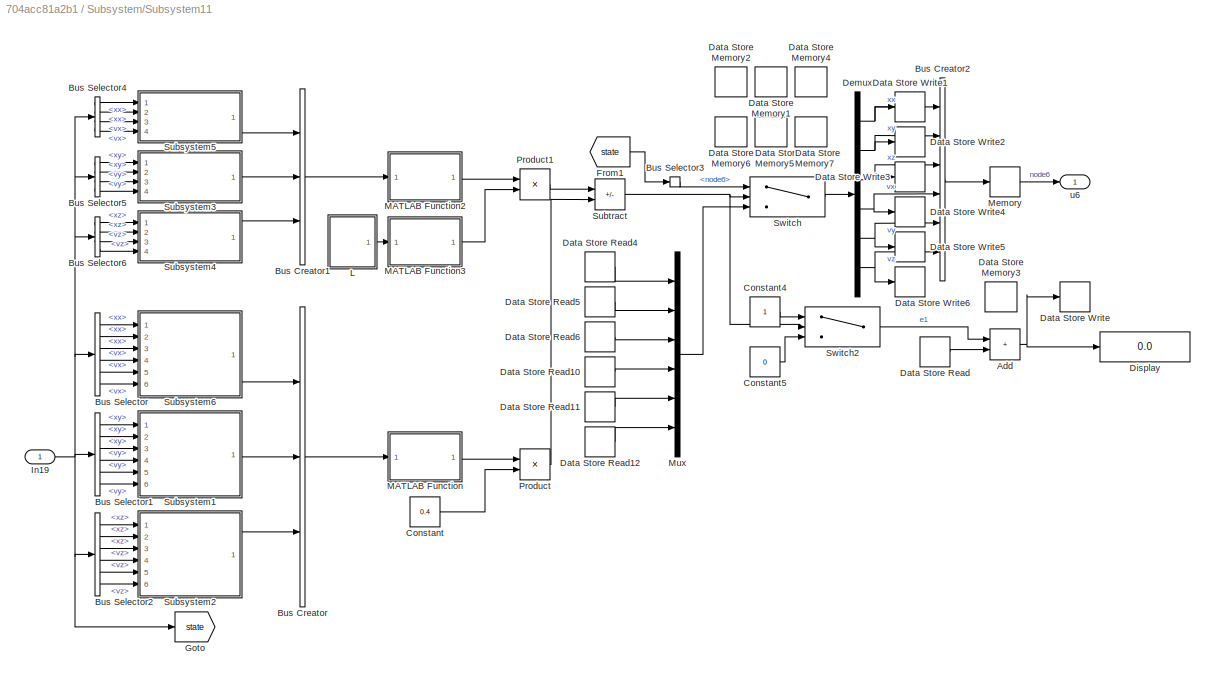
BLOCK [SubSystem] Subsystem/Subsystem11
  Ports = [1, 1]
  RequestExecContextInheritance = off
BLOCK [Sum] Subsystem/Subsystem11/Add
  IconShape = rectangular
  Ports = [2, 1]
BLOCK [BusCreator] Subsystem/Subsystem11/Bus Creator
  DisplayOption = bar
  InheritFromInputs = on
  Inputs = 3
  Ports = [3, 1]
BLOCK [BusCreator] Subsystem/Subsystem11/Bus Creator1
  DisplayOption = bar
  InheritFromInputs = on
  Inputs = 3
  Ports = [3, 1]
BLOCK [BusCreator] Subsystem/Subsystem11/Bus Creator2
  DisplayOption = bar
  InheritFromInputs = on
  Inputs = 6
  Ports = [6, 1]
BLOCK [BusSelector] Subsystem/Subsystem11/Bus Selector
  OutputSignals = state(tk).node6.xx,state(tk).node1.xx,state(tk).node2.xx,state(tk).node6.vx,state(tk).node1.vx,state(tk).node2.vx
  Ports = [1, 6]
BLOCK [BusSelector] Subsystem/Subsystem11/Bus Selector1
  OutputSignals = state(tk).node6.xy,state(tk).node1.xy,state(tk).node2.xy,state(tk).node6.vy,state(tk).node1.vy,state(tk).node2.vy
  Ports = [1, 6]
BLOCK [BusSelector] Subsystem/Subsystem11/Bus Selector2
  OutputSignals = state(tk).node6.xz,state(tk).node1.xz,state(tk).node2.xz,state(tk).node6.vz,state(tk).node1.vz,state(tk).node2.vz
  Ports = [1, 6]
BLOCK [BusSelector] Subsystem/Subsystem11/Bus Selector3
  OutputSignals = state(t).node6
  Ports = [1, 1]
BLOCK [BusSelector] Subsystem/Subsystem11/Bus Selector4
  OutputSignals = state(tk).node6.xx,state(t).node6.xx,state(tk).node6.vx,state(t).node6.vx
  Ports = [1, 4]
BLOCK [BusSelector] Subsystem/Subsystem11/Bus Selector5
  OutputSignals = state(tk).node6.xy,state(t).node6.xy,state(tk).node6.vy,state(t).node6.vy
  Ports = [1, 4]
BLOCK [BusSelector] Subsystem/Subsystem11/Bus Selector6
  OutputSignals = state(tk).node6.xz,state(t).node6.xz,state(tk).node6.vz,state(t).node6.vz
  Ports = [1, 4]
BLOCK [Constant] Subsystem/Subsystem11/Constant
  Value = 0.4
BLOCK [Constant] Subsystem/Subsystem11/Constant4
BLOCK [Constant] Subsystem/Subsystem11/Constant5
  Value = 0
BLOCK [DataStoreMemory] Subsystem/Subsystem11/Data Store Memory1
  DataStoreName = xyk6
  ReadBeforeWriteMsg = warning
  ShowAdditionalParam = off
  WriteAfterReadMsg = warning
  WriteAfterWriteMsg = warning
BLOCK [DataStoreMemory] Subsystem/Subsystem11/Data Store Memory2
  DataStoreName = xxk6
  ReadBeforeWriteMsg = warning
  ShowAdditionalParam = off
  WriteAfterReadMsg = warning
  WriteAfterWriteMsg = warning
BLOCK [DataStoreMemory] Subsystem/Subsystem11/Data Store Memory3
  DataStoreName = count6
  ReadBeforeWriteMsg = warning
  ShowAdditionalParam = off
  WriteAfterReadMsg = warning
  WriteAfterWriteMsg = warning
BLOCK [DataStoreMemory] Subsystem/Subsystem11/Data Store Memory4
  DataStoreName = xzk6
  ReadBeforeWriteMsg = warning
  ShowAdditionalParam = off
  WriteAfterReadMsg = warning
  WriteAfterWriteMsg = warning
BLOCK [DataStoreMemory] Subsystem/Subsystem11/Data Store Memory5
  DataStoreName = vyk6
  ReadBeforeWriteMsg = warning
  ShowAdditionalParam = off
  WriteAfterReadMsg = warning
  WriteAfterWriteMsg = warning
BLOCK [DataStoreMemory] Subsystem/Subsystem11/Data Store Memory6
  DataStoreName = vxk6
  ReadBeforeWriteMsg = warning
  ShowAdditionalParam = off
  WriteAfterReadMsg = warning
  WriteAfterWriteMsg = warning
BLOCK [DataStoreMemory] Subsystem/Subsystem11/Data Store Memory7
  DataStoreName = vzk6
  ReadBeforeWriteMsg = warning
  ShowAdditionalParam = off
  WriteAfterReadMsg = warning
  WriteAfterWriteMsg = warning
BLOCK [DataStoreRead] Subsystem/Subsystem11/Data Store Read
  DataStoreName = count6
  IndexOptions = Index vector (dialog)
  Indices = 1
  OutputSizes = 1
  Ports = [0, 1]
BLOCK [DataStoreRead] Subsystem/Subsystem11/Data Store Read10
  DataStoreName = vxk6
  IndexOptions = Index vector (dialog)
  Indices = 1
  OutputSizes = 1
  Ports = [0, 1]
BLOCK [DataStoreRead] Subsystem/Subsystem11/Data Store Read11
  DataStoreName = vyk6
  IndexOptions = Index vector (dialog)
  Indices = 1
  OutputSizes = 1
  Ports = [0, 1]
BLOCK [DataStoreRead] Subsystem/Subsystem11/Data Store Read12
  DataStoreName = vzk6
  IndexOptions = Index vector (dialog)
  Indices = 1
  OutputSizes = 1
  Ports = [0, 1]
BLOCK [DataStoreRead] Subsystem/Subsystem11/Data Store Read4
  DataStoreName = xxk6
  IndexOptions = Index vector (dialog)
  Indices = 1
  OutputSizes = 1
  Ports = [0, 1]
BLOCK [DataStoreRead] Subsystem/Subsystem11/Data Store Read5
  DataStoreName = xyk6
  IndexOptions = Index vector (dialog)
  Indices = 1
  OutputSizes = 1
  Ports = [0, 1]
BLOCK [DataStoreRead] Subsystem/Subsystem11/Data Store Read6
  DataStoreName = xzk6
  IndexOptions = Index vector (dialog)
  Indices = 1
  OutputSizes = 1
  Ports = [0, 1]
BLOCK [DataStoreWrite] Subsystem/Subsystem11/Data Store Write
  DataStoreName = count6
  IndexOptions = Index vector (dialog)
  Indices = 1
  OutputSizes = 1
  Ports = [1]
BLOCK [DataStoreWrite] Subsystem/Subsystem11/Data Store Write1
  DataStoreName = xxk6
  IndexOptions = Index vector (dialog)
  Indices = 1
  OutputSizes = 1
  Ports = [1]
BLOCK [DataStoreWrite] Subsystem/Subsystem11/Data Store Write2
  DataStoreName = xyk6
  IndexOptions = Index vector (dialog)
  Indices = 1
  OutputSizes = 1
  Ports = [1]
BLOCK [DataStoreWrite] Subsystem/Subsystem11/Data Store Write3
  DataStoreName = xzk6
  IndexOptions = Index vector (dialog)
  Indices = 1
  OutputSizes = 1
  Ports = [1]
BLOCK [DataStoreWrite] Subsystem/Subsystem11/Data Store Write4
  DataStoreName = vxk6
  IndexOptions = Index vector (dialog)
  Indices = 1
  OutputSizes = 1
  Ports = [1]
BLOCK [DataStoreWrite] Subsystem/Subsystem11/Data Store Write5
  DataStoreName = vyk6
  IndexOptions = Index vector (dialog)
  Indices = 1
  OutputSizes = 1
  Ports = [1]
BLOCK [DataStoreWrite] Subsystem/Subsystem11/Data Store Write6
  DataStoreName = vzk6
  IndexOptions = Index vector (dialog)
  Indices = 1
  OutputSizes = 1
  Ports = [1]
BLOCK [Demux] Subsystem/Subsystem11/Demux
  Outputs = 6
  Ports = [1, 6]
BLOCK [Display] Subsystem/Subsystem11/Display
  Decimation = 1
  Ports = [1]
BLOCK [From] Subsystem/Subsystem11/From1
  GotoTag = state
BLOCK [Goto] Subsystem/Subsystem11/Goto
  GotoTag = state
BLOCK [Inport] Subsystem/Subsystem11/In19
BLOCK [SubSystem] Subsystem/Subsystem11/L
  Ports = [0, 1]
  RequestExecContextInheritance = off
BLOCK [Constant] Subsystem/Subsystem11/L/Constant1
  Value = [2.5 0 0 0 0 0\n     0 2.7 0 0 0 0\n     0 0 2.7 0 0 0\n     0 0 0 2.5 0 0\n     0 0 0 0 2.2 0\n     0 0 0 0 0 2.2]
BLOCK [Constant] Subsystem/Subsystem11/L/Constant2
  Value = [0.0 0.8 0.7 0.0 0.0 1.0\n     0.8 0.0 0.0 0.7 0.0 1.2\n     0.7 0.0 0.0 0.8 1.2 0.0\n     0.0 0.7 0.8 0.0 1.0 0.0\n     0.0 0.0 1.2 1.0 0.0 0.0\n     1.0 1.2 0.0 0.0 0.0 0.0]
BLOCK [Sum] Subsystem/Subsystem11/L/Subtract
  IconShape = rectangular
  Inputs = +-
  Ports = [2, 1]
BLOCK [Outport] Subsystem/Subsystem11/L/u
BLOCK [SubSystem] Subsystem/Subsystem11/MATLAB Function
  ErrorFcn = Stateflow.Translate.translate
  PermitHierarchicalResolution = ExplicitOnly
  Ports = [1, 1]
  RequestExecContextInheritance = off
  SFBlockType = MATLAB Function
  TreatAsAtomicUnit = on
BLOCK [Demux] Subsystem/Subsystem11/MATLAB Function/ Demux 
  Outputs = 1
  Ports = [1, 1]
BLOCK [S-Function] Subsystem/Subsystem11/MATLAB Function/ SFunction 
  EnableBusSupport = on
  FunctionName = sf_sfun
  PortCounts = [1 2]
  Ports = [1, 2]
  SFcnIsStateOwnerBlock = off
  SFunctionDeploymentMode = off
  Tag = Stateflow S-Function 16
BLOCK [Terminator] Subsystem/Subsystem11/MATLAB Function/ Terminator 
BLOCK [Inport] Subsystem/Subsystem11/MATLAB Function/u
BLOCK [Outport] Subsystem/Subsystem11/MATLAB Function/y
BLOCK [SubSystem] Subsystem/Subsystem11/MATLAB Function2
  ErrorFcn = Stateflow.Translate.translate
  PermitHierarchicalResolution = ExplicitOnly
  Ports = [1, 1]
  RequestExecContextInheritance = off
  SFBlockType = MATLAB Function
  TreatAsAtomicUnit = on
BLOCK [Demux] Subsystem/Subsystem11/MATLAB Function2/ Demux 
  Outputs = 1
  Ports = [1, 1]
BLOCK [S-Function] Subsystem/Subsystem11/MATLAB Function2/ SFunction 
  EnableBusSupport = on
  FunctionName = sf_sfun
  PortCounts = [1 2]
  Ports = [1, 2]
  SFcnIsStateOwnerBlock = off
  SFunctionDeploymentMode = off
  Tag = Stateflow S-Function 17
BLOCK [Terminator] Subsystem/Subsystem11/MATLAB Function2/ Terminator 
BLOCK [Inport] Subsystem/Subsystem11/MATLAB Function2/u
BLOCK [Outport] Subsystem/Subsystem11/MATLAB Function2/y
BLOCK [SubSystem] Subsystem/Subsystem11/MATLAB Function3
  ErrorFcn = Stateflow.Translate.translate
  PermitHierarchicalResolution = ExplicitOnly
  Ports = [1, 1]
  RequestExecContextInheritance = off
  SFBlockType = MATLAB Function
  TreatAsAtomicUnit = on
BLOCK [Demux] Subsystem/Subsystem11/MATLAB Function3/ Demux 
  Outputs = 1
  Ports = [1, 1]
BLOCK [S-Function] Subsystem/Subsystem11/MATLAB Function3/ SFunction 
  EnableBusSupport = on
  FunctionName = sf_sfun
  PortCounts = [1 2]
  Ports = [1, 2]
  SFcnIsStateOwnerBlock = off
  SFunctionDeploymentMode = off
  Tag = Stateflow S-Function 18
BLOCK [Terminator] Subsystem/Subsystem11/MATLAB Function3/ Terminator 
BLOCK [Inport] Subsystem/Subsystem11/MATLAB Function3/u
BLOCK [Outport] Subsystem/Subsystem11/MATLAB Function3/y
BLOCK [Memory] Subsystem/Subsystem11/Memory
BLOCK [Mux] Subsystem/Subsystem11/Mux
  DisplayOption = bar
  Inputs = 6
  Ports = [6, 1]
BLOCK [Product] Subsystem/Subsystem11/Product
  Ports = [2, 1]
BLOCK [Product] Subsystem/Subsystem11/Product1
  Ports = [2, 1]
BLOCK [SubSystem] Subsystem/Subsystem11/Subsystem1
  Ports = [6, 1]
  RequestExecContextInheritance = off
BLOCK [Sum] Subsystem/Subsystem11/Subsystem1/Add
  IconShape = rectangular
  Ports = [2, 1]
BLOCK [Sum] Subsystem/Subsystem11/Subsystem1/Add10
  IconShape = rectangular
  Inputs = -+
  Ports = [2, 1]
BLOCK [Sum] Subsystem/Subsystem11/Subsystem1/Add2
  IconShape = rectangular
  Inputs = +-
  Ports = [2, 1]
BLOCK [Sum] Subsystem/Subsystem11/Subsystem1/Add4
  IconShape = rectangular
  Inputs = -+
  Ports = [2, 1]
BLOCK [Sum] Subsystem/Subsystem11/Subsystem1/Add5
  IconShape = rectangular
  Ports = [2, 1]
BLOCK [Sum] Subsystem/Subsystem11/Subsystem1/Add8
  IconShape = rectangular
  Ports = [2, 1]
BLOCK [Sum] Subsystem/Subsystem11/Subsystem1/Add9
  IconShape = rectangular
  Inputs = +-
  Ports = [2, 1]
BLOCK [Constant] Subsystem/Subsystem11/Subsystem1/Constant
  Value = 1.25
BLOCK [Constant] Subsystem/Subsystem11/Subsystem1/Constant1
  Value = 1.75
BLOCK [Constant] Subsystem/Subsystem11/Subsystem1/Constant3
  Value = 1.0
BLOCK [Constant] Subsystem/Subsystem11/Subsystem1/Constant4
  Value = 1.2
BLOCK [Constant] Subsystem/Subsystem11/Subsystem1/Constant5
  Value = 1.2
BLOCK [Constant] Subsystem/Subsystem11/Subsystem1/Constant6
  Value = 1.0
BLOCK [Product] Subsystem/Subsystem11/Subsystem1/Product1
  Ports = [2, 1]
BLOCK [Product] Subsystem/Subsystem11/Subsystem1/Product4
  Ports = [2, 1]
BLOCK [Product] Subsystem/Subsystem11/Subsystem1/Product5
  Ports = [2, 1]
BLOCK [Product] Subsystem/Subsystem11/Subsystem1/Product6
  Ports = [2, 1]
BLOCK [Product] Subsystem/Subsystem11/Subsystem1/Product8
  Ports = [2, 1]
BLOCK [Product] Subsystem/Subsystem11/Subsystem1/Product9
  Ports = [2, 1]
BLOCK [Outport] Subsystem/Subsystem11/Subsystem1/uty
BLOCK [Inport] Subsystem/Subsystem11/Subsystem1/vy1
  Port = 5
BLOCK [Inport] Subsystem/Subsystem11/Subsystem1/vy2
  Port = 6
BLOCK [Inport] Subsystem/Subsystem11/Subsystem1/vy6
  Port = 4
BLOCK [Inport] Subsystem/Subsystem11/Subsystem1/xy1
  Port = 2
BLOCK [Inport] Subsystem/Subsystem11/Subsystem1/xy2
  Port = 3
BLOCK [Inport] Subsystem/Subsystem11/Subsystem1/xy6
BLOCK [SubSystem] Subsystem/Subsystem11/Subsystem2
  Ports = [6, 1]
  RequestExecContextInheritance = off
BLOCK [Sum] Subsystem/Subsystem11/Subsystem2/Add
  IconShape = rectangular
  Ports = [2, 1]
BLOCK [Sum] Subsystem/Subsystem11/Subsystem2/Add10
  IconShape = rectangular
  Inputs = -+
  Ports = [2, 1]
BLOCK [Sum] Subsystem/Subsystem11/Subsystem2/Add2
  IconShape = rectangular
  Inputs = +-
  Ports = [2, 1]
BLOCK [Sum] Subsystem/Subsystem11/Subsystem2/Add4
  IconShape = rectangular
  Inputs = -+
  Ports = [2, 1]
BLOCK [Sum] Subsystem/Subsystem11/Subsystem2/Add5
  IconShape = rectangular
  Ports = [2, 1]
BLOCK [Sum] Subsystem/Subsystem11/Subsystem2/Add8
  IconShape = rectangular
  Ports = [2, 1]
BLOCK [Sum] Subsystem/Subsystem11/Subsystem2/Add9
  IconShape = rectangular
  Inputs = +-
  Ports = [2, 1]
BLOCK [Constant] Subsystem/Subsystem11/Subsystem2/Constant
  Value = 1.25
BLOCK [Constant] Subsystem/Subsystem11/Subsystem2/Constant1
  Value = 1.75
BLOCK [Constant] Subsystem/Subsystem11/Subsystem2/Constant3
  Value = 1.0
BLOCK [Constant] Subsystem/Subsystem11/Subsystem2/Constant4
  Value = 1.2
BLOCK [Constant] Subsystem/Subsystem11/Subsystem2/Constant5
  Value = 1.2
BLOCK [Constant] Subsystem/Subsystem11/Subsystem2/Constant6
  Value = 1.0
BLOCK [Product] Subsystem/Subsystem11/Subsystem2/Product1
  Ports = [2, 1]
BLOCK [Product] Subsystem/Subsystem11/Subsystem2/Product4
  Ports = [2, 1]
BLOCK [Product] Subsystem/Subsystem11/Subsystem2/Product5
  Ports = [2, 1]
BLOCK [Product] Subsystem/Subsystem11/Subsystem2/Product6
  Ports = [2, 1]
BLOCK [Product] Subsystem/Subsystem11/Subsystem2/Product8
  Ports = [2, 1]
BLOCK [Product] Subsystem/Subsystem11/Subsystem2/Product9
  Ports = [2, 1]
BLOCK [Outport] Subsystem/Subsystem11/Subsystem2/utz
BLOCK [Inport] Subsystem/Subsystem11/Subsystem2/vz1
  Port = 5
BLOCK [Inport] Subsystem/Subsystem11/Subsystem2/vz2
  Port = 6
BLOCK [Inport] Subsystem/Subsystem11/Subsystem2/vz6
  Port = 4
BLOCK [Inport] Subsystem/Subsystem11/Subsystem2/xz1
  Port = 2
BLOCK [Inport] Subsystem/Subsystem11/Subsystem2/xz2
  Port = 3
BLOCK [Inport] Subsystem/Subsystem11/Subsystem2/xz6
BLOCK [SubSystem] Subsystem/Subsystem11/Subsystem3
  Ports = [4, 1]
  RequestExecContextInheritance = off
BLOCK [Sum] Subsystem/Subsystem11/Subsystem3/Add
  IconShape = rectangular
  Ports = [2, 1]
BLOCK [Sum] Subsystem/Subsystem11/Subsystem3/Add4
  IconShape = rectangular
  Inputs = -+
  Ports = [2, 1]
BLOCK [Sum] Subsystem/Subsystem11/Subsystem3/Add8
  IconShape = rectangular
  Inputs = -+
  Ports = [2, 1]
BLOCK [Constant] Subsystem/Subsystem11/Subsystem3/Constant
  Value = 1.25
BLOCK [Constant] Subsystem/Subsystem11/Subsystem3/Constant1
  Value = 1.75
BLOCK [Product] Subsystem/Subsystem11/Subsystem3/Product1
  Ports = [2, 1]
BLOCK [Product] Subsystem/Subsystem11/Subsystem3/Product6
  Ports = [2, 1]
BLOCK [Outport] Subsystem/Subsystem11/Subsystem3/ey
BLOCK [Inport] Subsystem/Subsystem11/Subsystem3/vy
  Port = 4
BLOCK [Inport] Subsystem/Subsystem11/Subsystem3/vyk
  Port = 3
BLOCK [Inport] Subsystem/Subsystem11/Subsystem3/xy
  Port = 2
BLOCK [Inport] Subsystem/Subsystem11/Subsystem3/xyk
BLOCK [SubSystem] Subsystem/Subsystem11/Subsystem4
  Ports = [4, 1]
  RequestExecContextInheritance = off
BLOCK [Sum] Subsystem/Subsystem11/Subsystem4/Add
  IconShape = rectangular
  Ports = [2, 1]
BLOCK [Sum] Subsystem/Subsystem11/Subsystem4/Add4
  IconShape = rectangular
  Inputs = -+
  Ports = [2, 1]
BLOCK [Sum] Subsystem/Subsystem11/Subsystem4/Add8
  IconShape = rectangular
  Inputs = -+
  Ports = [2, 1]
BLOCK [Constant] Subsystem/Subsystem11/Subsystem4/Constant
  Value = 1.25
BLOCK [Constant] Subsystem/Subsystem11/Subsystem4/Constant1
  Value = 1.75
BLOCK [Product] Subsystem/Subsystem11/Subsystem4/Product1
  Ports = [2, 1]
BLOCK [Product] Subsystem/Subsystem11/Subsystem4/Product6
  Ports = [2, 1]
BLOCK [Outport] Subsystem/Subsystem11/Subsystem4/ez
BLOCK [Inport] Subsystem/Subsystem11/Subsystem4/vz
  Port = 4
BLOCK [Inport] Subsystem/Subsystem11/Subsystem4/vzk
  Port = 3
BLOCK [Inport] Subsystem/Subsystem11/Subsystem4/xz
  Port = 2
BLOCK [Inport] Subsystem/Subsystem11/Subsystem4/xzk
BLOCK [SubSystem] Subsystem/Subsystem11/Subsystem5
  Ports = [4, 1]
  RequestExecContextInheritance = off
BLOCK [Sum] Subsystem/Subsystem11/Subsystem5/Add
  IconShape = rectangular
  Ports = [2, 1]
BLOCK [Sum] Subsystem/Subsystem11/Subsystem5/Add4
  IconShape = rectangular
  Inputs = -+
  Ports = [2, 1]
BLOCK [Sum] Subsystem/Subsystem11/Subsystem5/Add8
  IconShape = rectangular
  Inputs = -+
  Ports = [2, 1]
BLOCK [Constant] Subsystem/Subsystem11/Subsystem5/Constant
  Value = 1.25
BLOCK [Constant] Subsystem/Subsystem11/Subsystem5/Constant1
  Value = 1.75
BLOCK [Product] Subsystem/Subsystem11/Subsystem5/Product1
  Ports = [2, 1]
BLOCK [Product] Subsystem/Subsystem11/Subsystem5/Product6
  Ports = [2, 1]
BLOCK [Outport] Subsystem/Subsystem11/Subsystem5/ex
BLOCK [Inport] Subsystem/Subsystem11/Subsystem5/vx
  Port = 4
BLOCK [Inport] Subsystem/Subsystem11/Subsystem5/vxk
  Port = 3
BLOCK [Inport] Subsystem/Subsystem11/Subsystem5/xx
  Port = 2
BLOCK [Inport] Subsystem/Subsystem11/Subsystem5/xxk
BLOCK [SubSystem] Subsystem/Subsystem11/Subsystem6
  Ports = [6, 1]
  RequestExecContextInheritance = off
BLOCK [Sum] Subsystem/Subsystem11/Subsystem6/Add
  IconShape = rectangular
  Ports = [2, 1]
BLOCK [Sum] Subsystem/Subsystem11/Subsystem6/Add10
  IconShape = rectangular
  Inputs = -+
  Ports = [2, 1]
BLOCK [Sum] Subsystem/Subsystem11/Subsystem6/Add2
  IconShape = rectangular
  Inputs = +-
  Ports = [2, 1]
BLOCK [Sum] Subsystem/Subsystem11/Subsystem6/Add4
  IconShape = rectangular
  Inputs = -+
  Ports = [2, 1]
BLOCK [Sum] Subsystem/Subsystem11/Subsystem6/Add5
  IconShape = rectangular
  Ports = [2, 1]
BLOCK [Sum] Subsystem/Subsystem11/Subsystem6/Add8
  IconShape = rectangular
  Ports = [2, 1]
BLOCK [Sum] Subsystem/Subsystem11/Subsystem6/Add9
  IconShape = rectangular
  Inputs = +-
  Ports = [2, 1]
BLOCK [Constant] Subsystem/Subsystem11/Subsystem6/Constant
  Value = 1.25
BLOCK [Constant] Subsystem/Subsystem11/Subsystem6/Constant1
  Value = 1.75
BLOCK [Constant] Subsystem/Subsystem11/Subsystem6/Constant3
  Value = 1.0
BLOCK [Constant] Subsystem/Subsystem11/Subsystem6/Constant4
  Value = 1.2
BLOCK [Constant] Subsystem/Subsystem11/Subsystem6/Constant5
  Value = 1.2
BLOCK [Constant] Subsystem/Subsystem11/Subsystem6/Constant6
  Value = 1.0
BLOCK [Product] Subsystem/Subsystem11/Subsystem6/Product1
  Ports = [2, 1]
BLOCK [Product] Subsystem/Subsystem11/Subsystem6/Product4
  Ports = [2, 1]
BLOCK [Product] Subsystem/Subsystem11/Subsystem6/Product5
  Ports = [2, 1]
BLOCK [Product] Subsystem/Subsystem11/Subsystem6/Product6
  Ports = [2, 1]
BLOCK [Product] Subsystem/Subsystem11/Subsystem6/Product8
  Ports = [2, 1]
BLOCK [Product] Subsystem/Subsystem11/Subsystem6/Product9
  Ports = [2, 1]
BLOCK [Outport] Subsystem/Subsystem11/Subsystem6/utx
BLOCK [Inport] Subsystem/Subsystem11/Subsystem6/vx1
  Port = 5
BLOCK [Inport] Subsystem/Subsystem11/Subsystem6/vx2
  Port = 6
BLOCK [Inport] Subsystem/Subsystem11/Subsystem6/vx6
  Port = 4
BLOCK [Inport] Subsystem/Subsystem11/Subsystem6/xx1
  Port = 2
BLOCK [Inport] Subsystem/Subsystem11/Subsystem6/xx2
  Port = 3
BLOCK [Inport] Subsystem/Subsystem11/Subsystem6/xx6
BLOCK [Sum] Subsystem/Subsystem11/Subtract
  IconShape = rectangular
  Inputs = +-
  Ports = [2, 1]
BLOCK [Switch] Subsystem/Subsystem11/Switch
  Criteria = u2 > Threshold
  InputSameDT = off
  SaturateOnIntegerOverflow = off
BLOCK [Switch] Subsystem/Subsystem11/Switch2
  Criteria = u2 > Threshold
  InputSameDT = off
  SaturateOnIntegerOverflow = off
BLOCK [Outport] Subsystem/Subsystem11/u6
BLOCK [SubSystem] Subsystem/Subsystem12
  Ports = [1, 1]
  RequestExecContextInheritance = off
BLOCK [Sum] Subsystem/Subsystem12/Add
  IconShape = rectangular
  Ports = [2, 1]
BLOCK [BusCreator] Subsystem/Subsystem12/Bus Creator
  DisplayOption = bar
  InheritFromInputs = on
  Inputs = 3
  Ports = [3, 1]
BLOCK [BusCreator] Subsystem/Subsystem12/Bus Creator1
  DisplayOption = bar
  InheritFromInputs = on
  Inputs = 3
  Ports = [3, 1]
BLOCK [BusCreator] Subsystem/Subsystem12/Bus Creator2
  DisplayOption = bar
  InheritFromInputs = on
  Inputs = 6
  Ports = [6, 1]
BLOCK [BusSelector] Subsystem/Subsystem12/Bus Selector
  OutputSignals = state(tk).node3.xx,state(tk).node1.xx,state(tk).node4.xx,state(tk).node5.xx,state(tk).node3.vx,state(tk).node1.vx,state(tk).node4.vx,state(tk).node5.vx
  Ports = [1, 8]
BLOCK [BusSelector] Subsystem/Subsystem12/Bus Selector1
  OutputSignals = state(tk).node3.xy,state(tk).node1.xy,state(tk).node4.xy,state(tk).node5.xy,state(tk).node3.vy,state(tk).node1.vy,state(tk).node4.vy,state(tk).node5.vy
  Ports = [1, 8]
BLOCK [BusSelector] Subsystem/Subsystem12/Bus Selector2
  OutputSignals = state(tk).node3.xz,state(tk).node1.xz,state(tk).node4.xz,state(tk).node5.xz,state(tk).node3.vz,state(tk).node1.vz,state(tk).node4.vz,state(tk).node5.vz
  Ports = [1, 8]
BLOCK [BusSelector] Subsystem/Subsystem12/Bus Selector3
  OutputSignals = state(t).node3
  Ports = [1, 1]
BLOCK [BusSelector] Subsystem/Subsystem12/Bus Selector4
  OutputSignals = state(tk).node3.xx,state(t).node3.xx,state(tk).node3.vx,state(t).node3.vx
  Ports = [1, 4]
BLOCK [BusSelector] Subsystem/Subsystem12/Bus Selector5
  OutputSignals = state(tk).node3.xy,state(t).node3.xy,state(tk).node3.vy,state(t).node3.vy
  Ports = [1, 4]
BLOCK [BusSelector] Subsystem/Subsystem12/Bus Selector6
  OutputSignals = state(tk).node3.xz,state(t).node3.xz,state(tk).node3.vz,state(t).node3.vz
  Ports = [1, 4]
BLOCK [Constant] Subsystem/Subsystem12/Constant
  Value = 0.4
BLOCK [Constant] Subsystem/Subsystem12/Constant4
BLOCK [Constant] Subsystem/Subsystem12/Constant5
  Value = 0
BLOCK [DataStoreMemory] Subsystem/Subsystem12/Data Store Memory1
  DataStoreName = xyk3
  ReadBeforeWriteMsg = warning
  ShowAdditionalParam = off
  WriteAfterReadMsg = warning
  WriteAfterWriteMsg = warning
BLOCK [DataStoreMemory] Subsystem/Subsystem12/Data Store Memory2
  DataStoreName = xxk3
  ReadBeforeWriteMsg = warning
  ShowAdditionalParam = off
  WriteAfterReadMsg = warning
  WriteAfterWriteMsg = warning
BLOCK [DataStoreMemory] Subsystem/Subsystem12/Data Store Memory3
  DataStoreName = count3
  ReadBeforeWriteMsg = warning
  ShowAdditionalParam = off
  WriteAfterReadMsg = warning
  WriteAfterWriteMsg = warning
BLOCK [DataStoreMemory] Subsystem/Subsystem12/Data Store Memory4
  DataStoreName = xzk3
  ReadBeforeWriteMsg = warning
  ShowAdditionalParam = off
  WriteAfterReadMsg = warning
  WriteAfterWriteMsg = warning
BLOCK [DataStoreMemory] Subsystem/Subsystem12/Data Store Memory5
  DataStoreName = vyk3
  ReadBeforeWriteMsg = warning
  ShowAdditionalParam = off
  WriteAfterReadMsg = warning
  WriteAfterWriteMsg = warning
BLOCK [DataStoreMemory] Subsystem/Subsystem12/Data Store Memory6
  DataStoreName = vxk3
  ReadBeforeWriteMsg = warning
  ShowAdditionalParam = off
  WriteAfterReadMsg = warning
  WriteAfterWriteMsg = warning
BLOCK [DataStoreMemory] Subsystem/Subsystem12/Data Store Memory7
  DataStoreName = vzk3
  ReadBeforeWriteMsg = warning
  ShowAdditionalParam = off
  WriteAfterReadMsg = warning
  WriteAfterWriteMsg = warning
BLOCK [DataStoreRead] Subsystem/Subsystem12/Data Store Read
  DataStoreName = count3
  IndexOptions = Index vector (dialog)
  Indices = 1
  OutputSizes = 1
  Ports = [0, 1]
BLOCK [DataStoreRead] Subsystem/Subsystem12/Data Store Read1
  DataStoreName = xyk3
  IndexOptions = Index vector (dialog)
  Indices = 1
  OutputSizes = 1
  Ports = [0, 1]
BLOCK [DataStoreRead] Subsystem/Subsystem12/Data Store Read2
  DataStoreName = xxk3
  IndexOptions = Index vector (dialog)
  Indices = 1
  OutputSizes = 1
  Ports = [0, 1]
BLOCK [DataStoreRead] Subsystem/Subsystem12/Data Store Read3
  DataStoreName = xzk3
  IndexOptions = Index vector (dialog)
  Indices = 1
  OutputSizes = 1
  Ports = [0, 1]
BLOCK [DataStoreRead] Subsystem/Subsystem12/Data Store Read4
  DataStoreName = vxk3
  IndexOptions = Index vector (dialog)
  Indices = 1
  OutputSizes = 1
  Ports = [0, 1]
BLOCK [DataStoreRead] Subsystem/Subsystem12/Data Store Read5
  DataStoreName = vyk3
  IndexOptions = Index vector (dialog)
  Indices = 1
  OutputSizes = 1
  Ports = [0, 1]
BLOCK [DataStoreRead] Subsystem/Subsystem12/Data Store Read6
  DataStoreName = vzk3
  IndexOptions = Index vector (dialog)
  Indices = 1
  OutputSizes = 1
  Ports = [0, 1]
BLOCK [DataStoreWrite] Subsystem/Subsystem12/Data Store Write
  DataStoreName = count3
  IndexOptions = Index vector (dialog)
  Indices = 1
  OutputSizes = 1
  Ports = [1]
BLOCK [DataStoreWrite] Subsystem/Subsystem12/Data Store Write1
  DataStoreName = xxk3
  IndexOptions = Index vector (dialog)
  Indices = 1
  OutputSizes = 1
  Ports = [1]
BLOCK [DataStoreWrite] Subsystem/Subsystem12/Data Store Write2
  DataStoreName = xyk3
  IndexOptions = Index vector (dialog)
  Indices = 1
  OutputSizes = 1
  Ports = [1]
BLOCK [DataStoreWrite] Subsystem/Subsystem12/Data Store Write3
  DataStoreName = xzk3
  IndexOptions = Index vector (dialog)
  Indices = 1
  OutputSizes = 1
  Ports = [1]
BLOCK [DataStoreWrite] Subsystem/Subsystem12/Data Store Write4
  DataStoreName = vxk3
  IndexOptions = Index vector (dialog)
  Indices = 1
  OutputSizes = 1
  Ports = [1]
BLOCK [DataStoreWrite] Subsystem/Subsystem12/Data Store Write5
  DataStoreName = vyk3
  IndexOptions = Index vector (dialog)
  Indices = 1
  OutputSizes = 1
  Ports = [1]
BLOCK [DataStoreWrite] Subsystem/Subsystem12/Data Store Write6
  DataStoreName = vzk3
  IndexOptions = Index vector (dialog)
  Indices = 1
  OutputSizes = 1
  Ports = [1]
BLOCK [Demux] Subsystem/Subsystem12/Demux
  Outputs = 6
  Ports = [1, 6]
BLOCK [Display] Subsystem/Subsystem12/Display
  Decimation = 1
  Ports = [1]
BLOCK [From] Subsystem/Subsystem12/From1
  GotoTag = state
BLOCK [Goto] Subsystem/Subsystem12/Goto
  GotoTag = state
BLOCK [Inport] Subsystem/Subsystem12/In19
BLOCK [SubSystem] Subsystem/Subsystem12/L
  Ports = [0, 1]
  RequestExecContextInheritance = off
BLOCK [Constant] Subsystem/Subsystem12/L/Constant1
  Value = [2.5 0 0 0 0 0\n     0 2.7 0 0 0 0\n     0 0 2.7 0 0 0\n     0 0 0 2.5 0 0\n     0 0 0 0 2.2 0\n     0 0 0 0 0 2.2]
BLOCK [Constant] Subsystem/Subsystem12/L/Constant2
  Value = [0.0 0.8 0.7 0.0 0.0 1.0\n     0.8 0.0 0.0 0.7 0.0 1.2\n     0.7 0.0 0.0 0.8 1.2 0.0\n     0.0 0.7 0.8 0.0 1.0 0.0\n     0.0 0.0 1.2 1.0 0.0 0.0\n     1.0 1.2 0.0 0.0 0.0 0.0]
BLOCK [Sum] Subsystem/Subsystem12/L/Subtract
  IconShape = rectangular
  Inputs = +-
  Ports = [2, 1]
BLOCK [Outport] Subsystem/Subsystem12/L/u
BLOCK [SubSystem] Subsystem/Subsystem12/MATLAB Function
  ErrorFcn = Stateflow.Translate.translate
  PermitHierarchicalResolution = ExplicitOnly
  Ports = [1, 1]
  RequestExecContextInheritance = off
  SFBlockType = MATLAB Function
  TreatAsAtomicUnit = on
BLOCK [Demux] Subsystem/Subsystem12/MATLAB Function/ Demux 
  Outputs = 1
  Ports = [1, 1]
BLOCK [S-Function] Subsystem/Subsystem12/MATLAB Function/ SFunction 
  EnableBusSupport = on
  FunctionName = sf_sfun
  PortCounts = [1 2]
  Ports = [1, 2]
  SFcnIsStateOwnerBlock = off
  SFunctionDeploymentMode = off
  Tag = Stateflow S-Function 7
BLOCK [Terminator] Subsystem/Subsystem12/MATLAB Function/ Terminator 
BLOCK [Inport] Subsystem/Subsystem12/MATLAB Function/u
BLOCK [Outport] Subsystem/Subsystem12/MATLAB Function/y
BLOCK [SubSystem] Subsystem/Subsystem12/MATLAB Function2
  ErrorFcn = Stateflow.Translate.translate
  PermitHierarchicalResolution = ExplicitOnly
  Ports = [1, 1]
  RequestExecContextInheritance = off
  SFBlockType = MATLAB Function
  TreatAsAtomicUnit = on
BLOCK [Demux] Subsystem/Subsystem12/MATLAB Function2/ Demux 
  Outputs = 1
  Ports = [1, 1]
BLOCK [S-Function] Subsystem/Subsystem12/MATLAB Function2/ SFunction 
  EnableBusSupport = on
  FunctionName = sf_sfun
  PortCounts = [1 2]
  Ports = [1, 2]
  SFcnIsStateOwnerBlock = off
  SFunctionDeploymentMode = off
  Tag = Stateflow S-Function 8
BLOCK [Terminator] Subsystem/Subsystem12/MATLAB Function2/ Terminator 
BLOCK [Inport] Subsystem/Subsystem12/MATLAB Function2/u
BLOCK [Outport] Subsystem/Subsystem12/MATLAB Function2/y
BLOCK [SubSystem] Subsystem/Subsystem12/MATLAB Function3
  ErrorFcn = Stateflow.Translate.translate
  PermitHierarchicalResolution = ExplicitOnly
  Ports = [1, 1]
  RequestExecContextInheritance = off
  SFBlockType = MATLAB Function
  TreatAsAtomicUnit = on
BLOCK [Demux] Subsystem/Subsystem12/MATLAB Function3/ Demux 
  Outputs = 1
  Ports = [1, 1]
BLOCK [S-Function] Subsystem/Subsystem12/MATLAB Function3/ SFunction 
  EnableBusSupport = on
  FunctionName = sf_sfun
  PortCounts = [1 2]
  Ports = [1, 2]
  SFcnIsStateOwnerBlock = off
  SFunctionDeploymentMode = off
  Tag = Stateflow S-Function 9
BLOCK [Terminator] Subsystem/Subsystem12/MATLAB Function3/ Terminator 
BLOCK [Inport] Subsystem/Subsystem12/MATLAB Function3/u
BLOCK [Outport] Subsystem/Subsystem12/MATLAB Function3/y
BLOCK [Memory] Subsystem/Subsystem12/Memory
BLOCK [Mux] Subsystem/Subsystem12/Mux
  DisplayOption = bar
  Inputs = 6
  Ports = [6, 1]
BLOCK [Product] Subsystem/Subsystem12/Product
  Ports = [2, 1]
BLOCK [Product] Subsystem/Subsystem12/Product1
  Ports = [2, 1]
BLOCK [SubSystem] Subsystem/Subsystem12/Subsystem1
  Ports = [8, 1]
  RequestExecContextInheritance = off
BLOCK [Sum] Subsystem/Subsystem12/Subsystem1/Add
  IconShape = rectangular
  Ports = [2, 1]
BLOCK [Sum] Subsystem/Subsystem12/Subsystem1/Add1
  IconShape = rectangular
  Inputs = -+
  Ports = [2, 1]
BLOCK [Sum] Subsystem/Subsystem12/Subsystem1/Add2
  IconShape = rectangular
  Inputs = +-
  Ports = [2, 1]
BLOCK [Sum] Subsystem/Subsystem12/Subsystem1/Add4
  IconShape = rectangular
  Inputs = -+
  Ports = [2, 1]
BLOCK [Sum] Subsystem/Subsystem12/Subsystem1/Add5
  IconShape = rectangular
  Inputs = +++
  Ports = [3, 1]
BLOCK [Sum] Subsystem/Subsystem12/Subsystem1/Add6
  IconShape = rectangular
  Inputs = -+
  Ports = [2, 1]
BLOCK [Sum] Subsystem/Subsystem12/Subsystem1/Add7
  IconShape = rectangular
  Inputs = +-
  Ports = [2, 1]
BLOCK [Sum] Subsystem/Subsystem12/Subsystem1/Add8
  IconShape = rectangular
  Inputs = -+
  Ports = [2, 1]
BLOCK [Sum] Subsystem/Subsystem12/Subsystem1/Add9
  IconShape = rectangular
  Inputs = +++
  Ports = [3, 1]
BLOCK [Constant] Subsystem/Subsystem12/Subsystem1/Constant
  Value = 1.25
BLOCK [Constant] Subsystem/Subsystem12/Subsystem1/Constant1
  Value = 1.75
BLOCK [Constant] Subsystem/Subsystem12/Subsystem1/Constant3
  Value = 0.8
BLOCK [Constant] Subsystem/Subsystem12/Subsystem1/Constant4
  Value = 0.7
BLOCK [Constant] Subsystem/Subsystem12/Subsystem1/Constant5
  Value = 1.2
BLOCK [Constant] Subsystem/Subsystem12/Subsystem1/Constant7
  Value = 0.8
BLOCK [Constant] Subsystem/Subsystem12/Subsystem1/Constant8
  Value = 0.7
BLOCK [Constant] Subsystem/Subsystem12/Subsystem1/Constant9
  Value = 1.2
BLOCK [Product] Subsystem/Subsystem12/Subsystem1/Product1
  Ports = [2, 1]
BLOCK [Product] Subsystem/Subsystem12/Subsystem1/Product3
  Ports = [2, 1]
BLOCK [Product] Subsystem/Subsystem12/Subsystem1/Product4
  Ports = [2, 1]
BLOCK [Product] Subsystem/Subsystem12/Subsystem1/Product5
  Ports = [2, 1]
BLOCK [Product] Subsystem/Subsystem12/Subsystem1/Product6
  Ports = [2, 1]
BLOCK [Product] Subsystem/Subsystem12/Subsystem1/Product7
  Ports = [2, 1]
BLOCK [Product] Subsystem/Subsystem12/Subsystem1/Product8
  Ports = [2, 1]
BLOCK [Product] Subsystem/Subsystem12/Subsystem1/Product9
  Ports = [2, 1]
BLOCK [Outport] Subsystem/Subsystem12/Subsystem1/p3y
BLOCK [Inport] Subsystem/Subsystem12/Subsystem1/vy1
  Port = 6
BLOCK [Inport] Subsystem/Subsystem12/Subsystem1/vy3
  Port = 5
BLOCK [Inport] Subsystem/Subsystem12/Subsystem1/vy4
  Port = 7
BLOCK [Inport] Subsystem/Subsystem12/Subsystem1/vy5
  Port = 8
BLOCK [Inport] Subsystem/Subsystem12/Subsystem1/xy1
  Port = 2
BLOCK [Inport] Subsystem/Subsystem12/Subsystem1/xy3
BLOCK [Inport] Subsystem/Subsystem12/Subsystem1/xy4
  Port = 3
BLOCK [Inport] Subsystem/Subsystem12/Subsystem1/xy5
  Port = 4
BLOCK [SubSystem] Subsystem/Subsystem12/Subsystem2
  Ports = [8, 1]
  RequestExecContextInheritance = off
BLOCK [Sum] Subsystem/Subsystem12/Subsystem2/Add
  IconShape = rectangular
  Ports = [2, 1]
BLOCK [Sum] Subsystem/Subsystem12/Subsystem2/Add1
  IconShape = rectangular
  Inputs = -+
  Ports = [2, 1]
BLOCK [Sum] Subsystem/Subsystem12/Subsystem2/Add2
  IconShape = rectangular
  Inputs = +-
  Ports = [2, 1]
BLOCK [Sum] Subsystem/Subsystem12/Subsystem2/Add4
  IconShape = rectangular
  Inputs = -+
  Ports = [2, 1]
BLOCK [Sum] Subsystem/Subsystem12/Subsystem2/Add5
  IconShape = rectangular
  Inputs = +++
  Ports = [3, 1]
BLOCK [Sum] Subsystem/Subsystem12/Subsystem2/Add6
  IconShape = rectangular
  Inputs = -+
  Ports = [2, 1]
BLOCK [Sum] Subsystem/Subsystem12/Subsystem2/Add7
  IconShape = rectangular
  Inputs = +-
  Ports = [2, 1]
BLOCK [Sum] Subsystem/Subsystem12/Subsystem2/Add8
  IconShape = rectangular
  Inputs = -+
  Ports = [2, 1]
BLOCK [Sum] Subsystem/Subsystem12/Subsystem2/Add9
  IconShape = rectangular
  Inputs = +++
  Ports = [3, 1]
BLOCK [Constant] Subsystem/Subsystem12/Subsystem2/Constant
  Value = 1.25
BLOCK [Constant] Subsystem/Subsystem12/Subsystem2/Constant1
  Value = 1.75
BLOCK [Constant] Subsystem/Subsystem12/Subsystem2/Constant3
  Value = 0.8
BLOCK [Constant] Subsystem/Subsystem12/Subsystem2/Constant4
  Value = 0.7
BLOCK [Constant] Subsystem/Subsystem12/Subsystem2/Constant5
  Value = 1.2
BLOCK [Constant] Subsystem/Subsystem12/Subsystem2/Constant7
  Value = 0.8
BLOCK [Constant] Subsystem/Subsystem12/Subsystem2/Constant8
  Value = 0.7
BLOCK [Constant] Subsystem/Subsystem12/Subsystem2/Constant9
  Value = 1.2
BLOCK [Product] Subsystem/Subsystem12/Subsystem2/Product1
  Ports = [2, 1]
BLOCK [Product] Subsystem/Subsystem12/Subsystem2/Product3
  Ports = [2, 1]
BLOCK [Product] Subsystem/Subsystem12/Subsystem2/Product4
  Ports = [2, 1]
BLOCK [Product] Subsystem/Subsystem12/Subsystem2/Product5
  Ports = [2, 1]
BLOCK [Product] Subsystem/Subsystem12/Subsystem2/Product6
  Ports = [2, 1]
BLOCK [Product] Subsystem/Subsystem12/Subsystem2/Product7
  Ports = [2, 1]
BLOCK [Product] Subsystem/Subsystem12/Subsystem2/Product8
  Ports = [2, 1]
BLOCK [Product] Subsystem/Subsystem12/Subsystem2/Product9
  Ports = [2, 1]
BLOCK [Outport] Subsystem/Subsystem12/Subsystem2/p3z
BLOCK [Inport] Subsystem/Subsystem12/Subsystem2/vz1
  Port = 6
BLOCK [Inport] Subsystem/Subsystem12/Subsystem2/vz3
  Port = 5
BLOCK [Inport] Subsystem/Subsystem12/Subsystem2/vz4
  Port = 7
BLOCK [Inport] Subsystem/Subsystem12/Subsystem2/vz5
  Port = 8
BLOCK [Inport] Subsystem/Subsystem12/Subsystem2/xz1
  Port = 2
BLOCK [Inport] Subsystem/Subsystem12/Subsystem2/xz3
BLOCK [Inport] Subsystem/Subsystem12/Subsystem2/xz4
  Port = 3
BLOCK [Inport] Subsystem/Subsystem12/Subsystem2/xz5
  Port = 4
BLOCK [SubSystem] Subsystem/Subsystem12/Subsystem3
  Ports = [4, 1]
  RequestExecContextInheritance = off
BLOCK [Sum] Subsystem/Subsystem12/Subsystem3/Add
  IconShape = rectangular
  Ports = [2, 1]
BLOCK [Sum] Subsystem/Subsystem12/Subsystem3/Add4
  IconShape = rectangular
  Inputs = -+
  Ports = [2, 1]
BLOCK [Sum] Subsystem/Subsystem12/Subsystem3/Add8
  IconShape = rectangular
  Inputs = -+
  Ports = [2, 1]
BLOCK [Constant] Subsystem/Subsystem12/Subsystem3/Constant
  Value = 1.25
BLOCK [Constant] Subsystem/Subsystem12/Subsystem3/Constant1
  Value = 1.75
BLOCK [Product] Subsystem/Subsystem12/Subsystem3/Product1
  Ports = [2, 1]
BLOCK [Product] Subsystem/Subsystem12/Subsystem3/Product6
  Ports = [2, 1]
BLOCK [Outport] Subsystem/Subsystem12/Subsystem3/ey
BLOCK [Inport] Subsystem/Subsystem12/Subsystem3/vy
  Port = 4
BLOCK [Inport] Subsystem/Subsystem12/Subsystem3/vyk
  Port = 3
BLOCK [Inport] Subsystem/Subsystem12/Subsystem3/xy
  Port = 2
BLOCK [Inport] Subsystem/Subsystem12/Subsystem3/xyk
BLOCK [SubSystem] Subsystem/Subsystem12/Subsystem4
  Ports = [4, 1]
  RequestExecContextInheritance = off
BLOCK [Sum] Subsystem/Subsystem12/Subsystem4/Add
  IconShape = rectangular
  Ports = [2, 1]
BLOCK [Sum] Subsystem/Subsystem12/Subsystem4/Add4
  IconShape = rectangular
  Inputs = -+
  Ports = [2, 1]
BLOCK [Sum] Subsystem/Subsystem12/Subsystem4/Add8
  IconShape = rectangular
  Inputs = -+
  Ports = [2, 1]
BLOCK [Constant] Subsystem/Subsystem12/Subsystem4/Constant
  Value = 1.25
BLOCK [Constant] Subsystem/Subsystem12/Subsystem4/Constant1
  Value = 1.75
BLOCK [Product] Subsystem/Subsystem12/Subsystem4/Product1
  Ports = [2, 1]
BLOCK [Product] Subsystem/Subsystem12/Subsystem4/Product6
  Ports = [2, 1]
BLOCK [Outport] Subsystem/Subsystem12/Subsystem4/ez
BLOCK [Inport] Subsystem/Subsystem12/Subsystem4/vz
  Port = 4
BLOCK [Inport] Subsystem/Subsystem12/Subsystem4/vzk
  Port = 3
BLOCK [Inport] Subsystem/Subsystem12/Subsystem4/xz
  Port = 2
BLOCK [Inport] Subsystem/Subsystem12/Subsystem4/xzk
BLOCK [SubSystem] Subsystem/Subsystem12/Subsystem5
  Ports = [4, 1]
  RequestExecContextInheritance = off
BLOCK [Sum] Subsystem/Subsystem12/Subsystem5/Add
  IconShape = rectangular
  Ports = [2, 1]
BLOCK [Sum] Subsystem/Subsystem12/Subsystem5/Add4
  IconShape = rectangular
  Inputs = -+
  Ports = [2, 1]
BLOCK [Sum] Subsystem/Subsystem12/Subsystem5/Add8
  IconShape = rectangular
  Inputs = -+
  Ports = [2, 1]
BLOCK [Constant] Subsystem/Subsystem12/Subsystem5/Constant
  Value = 1.25
BLOCK [Constant] Subsystem/Subsystem12/Subsystem5/Constant1
  Value = 1.75
BLOCK [Product] Subsystem/Subsystem12/Subsystem5/Product1
  Ports = [2, 1]
BLOCK [Product] Subsystem/Subsystem12/Subsystem5/Product6
  Ports = [2, 1]
BLOCK [Outport] Subsystem/Subsystem12/Subsystem5/ex
BLOCK [Inport] Subsystem/Subsystem12/Subsystem5/vx
  Port = 4
BLOCK [Inport] Subsystem/Subsystem12/Subsystem5/vxk
  Port = 3
BLOCK [Inport] Subsystem/Subsystem12/Subsystem5/xx
  Port = 2
BLOCK [Inport] Subsystem/Subsystem12/Subsystem5/xxk
BLOCK [SubSystem] Subsystem/Subsystem12/Subsystem6
  Ports = [8, 1]
  RequestExecContextInheritance = off
BLOCK [Sum] Subsystem/Subsystem12/Subsystem6/Add
  IconShape = rectangular
  Ports = [2, 1]
BLOCK [Sum] Subsystem/Subsystem12/Subsystem6/Add1
  IconShape = rectangular
  Inputs = -+
  Ports = [2, 1]
BLOCK [Sum] Subsystem/Subsystem12/Subsystem6/Add2
  IconShape = rectangular
  Inputs = +-
  Ports = [2, 1]
BLOCK [Sum] Subsystem/Subsystem12/Subsystem6/Add4
  IconShape = rectangular
  Inputs = -+
  Ports = [2, 1]
BLOCK [Sum] Subsystem/Subsystem12/Subsystem6/Add5
  IconShape = rectangular
  Inputs = +++
  Ports = [3, 1]
BLOCK [Sum] Subsystem/Subsystem12/Subsystem6/Add6
  IconShape = rectangular
  Inputs = -+
  Ports = [2, 1]
BLOCK [Sum] Subsystem/Subsystem12/Subsystem6/Add7
  IconShape = rectangular
  Inputs = +-
  Ports = [2, 1]
BLOCK [Sum] Subsystem/Subsystem12/Subsystem6/Add8
  IconShape = rectangular
  Inputs = -+
  Ports = [2, 1]
BLOCK [Sum] Subsystem/Subsystem12/Subsystem6/Add9
  IconShape = rectangular
  Inputs = +++
  Ports = [3, 1]
BLOCK [Constant] Subsystem/Subsystem12/Subsystem6/Constant
  Value = 1.25
BLOCK [Constant] Subsystem/Subsystem12/Subsystem6/Constant1
  Value = 1.75
BLOCK [Constant] Subsystem/Subsystem12/Subsystem6/Constant3
  Value = 0.8
BLOCK [Constant] Subsystem/Subsystem12/Subsystem6/Constant4
  Value = 0.7
BLOCK [Constant] Subsystem/Subsystem12/Subsystem6/Constant5
  Value = 1.2
BLOCK [Constant] Subsystem/Subsystem12/Subsystem6/Constant7
  Value = 0.8
BLOCK [Constant] Subsystem/Subsystem12/Subsystem6/Constant8
  Value = 0.7
BLOCK [Constant] Subsystem/Subsystem12/Subsystem6/Constant9
  Value = 1.2
BLOCK [Product] Subsystem/Subsystem12/Subsystem6/Product1
  Ports = [2, 1]
BLOCK [Product] Subsystem/Subsystem12/Subsystem6/Product3
  Ports = [2, 1]
BLOCK [Product] Subsystem/Subsystem12/Subsystem6/Product4
  Ports = [2, 1]
BLOCK [Product] Subsystem/Subsystem12/Subsystem6/Product5
  Ports = [2, 1]
BLOCK [Product] Subsystem/Subsystem12/Subsystem6/Product6
  Ports = [2, 1]
BLOCK [Product] Subsystem/Subsystem12/Subsystem6/Product7
  Ports = [2, 1]
BLOCK [Product] Subsystem/Subsystem12/Subsystem6/Product8
  Ports = [2, 1]
BLOCK [Product] Subsystem/Subsystem12/Subsystem6/Product9
  Ports = [2, 1]
BLOCK [Outport] Subsystem/Subsystem12/Subsystem6/p3x
BLOCK [Inport] Subsystem/Subsystem12/Subsystem6/vx1
  Port = 6
BLOCK [Inport] Subsystem/Subsystem12/Subsystem6/vx3
  Port = 5
BLOCK [Inport] Subsystem/Subsystem12/Subsystem6/vx4
  Port = 7
BLOCK [Inport] Subsystem/Subsystem12/Subsystem6/vx5
  Port = 8
BLOCK [Inport] Subsystem/Subsystem12/Subsystem6/xx1
  Port = 2
BLOCK [Inport] Subsystem/Subsystem12/Subsystem6/xx3
BLOCK [Inport] Subsystem/Subsystem12/Subsystem6/xx4
  Port = 3
BLOCK [Inport] Subsystem/Subsystem12/Subsystem6/xx5
  Port = 4
BLOCK [Sum] Subsystem/Subsystem12/Subtract
  IconShape = rectangular
  Inputs = +-
  Ports = [2, 1]
BLOCK [Switch] Subsystem/Subsystem12/Switch
  Criteria = u2 > Threshold
  InputSameDT = off
  SaturateOnIntegerOverflow = off
BLOCK [Switch] Subsystem/Subsystem12/Switch2
  Criteria = u2 > Threshold
  InputSameDT = off
  SaturateOnIntegerOverflow = off
BLOCK [Outport] Subsystem/Subsystem12/u3
BLOCK [SubSystem] Subsystem/Subsystem2
  Ports = [1, 1]
  RequestExecContextInheritance = off
BLOCK [BusCreator] Subsystem/Subsystem2/Bus Creator
  DisplayOption = bar
  InheritFromInputs = on
  Inputs = 3
  Ports = [3, 1]
BLOCK [BusSelector] Subsystem/Subsystem2/Bus Selector
  OutputSignals = state(tk).node2.xx,state(tk).node1.xx,state(tk).node4.xx,state(tk).node6.xx,state(tk).node2.vx,state(tk).node1.vx,state(tk).node4.vx,state(tk).node6.vx
  Ports = [1, 8]
BLOCK [BusSelector] Subsystem/Subsystem2/Bus Selector1
  OutputSignals = state(tk).node2.xy,state(tk).node1.xy,state(tk).node4.xy,state(tk).node6.xy,state(tk).node2.vy,state(tk).node1.vy,state(tk).node4.vy,state(tk).node6.vy
  Ports = [1, 8]
BLOCK [BusSelector] Subsystem/Subsystem2/Bus Selector2
  OutputSignals = state(tk).node2.xz,state(tk).node1.xz,state(tk).node4.xz,state(tk).node6.xz,state(tk).node2.vz,state(tk).node1.vz,state(tk).node4.vz,state(tk).node6.vz
  Ports = [1, 8]
BLOCK [Inport] Subsystem/Subsystem2/In19
BLOCK [SubSystem] Subsystem/Subsystem2/Subsystem1
  Ports = [8, 1]
  RequestExecContextInheritance = off
BLOCK [Sum] Subsystem/Subsystem2/Subsystem1/Add
  IconShape = rectangular
  Ports = [2, 1]
BLOCK [Sum] Subsystem/Subsystem2/Subsystem1/Add1
  IconShape = rectangular
  Inputs = -+
  Ports = [2, 1]
BLOCK [Sum] Subsystem/Subsystem2/Subsystem1/Add2
  IconShape = rectangular
  Inputs = +-
  Ports = [2, 1]
BLOCK [Sum] Subsystem/Subsystem2/Subsystem1/Add4
  IconShape = rectangular
  Inputs = -+
  Ports = [2, 1]
BLOCK [Sum] Subsystem/Subsystem2/Subsystem1/Add5
  IconShape = rectangular
  Inputs = +++
  Ports = [3, 1]
BLOCK [Sum] Subsystem/Subsystem2/Subsystem1/Add6
  IconShape = rectangular
  Inputs = -+
  Ports = [2, 1]
BLOCK [Sum] Subsystem/Subsystem2/Subsystem1/Add7
  IconShape = rectangular
  Inputs = +-
  Ports = [2, 1]
BLOCK [Sum] Subsystem/Subsystem2/Subsystem1/Add8
  IconShape = rectangular
  Inputs = -+
  Ports = [2, 1]
BLOCK [Sum] Subsystem/Subsystem2/Subsystem1/Add9
  IconShape = rectangular
  Inputs = +++
  Ports = [3, 1]
BLOCK [Constant] Subsystem/Subsystem2/Subsystem1/Constant
  Value = 1.25
BLOCK [Constant] Subsystem/Subsystem2/Subsystem1/Constant1
  Value = 1.75
BLOCK [Constant] Subsystem/Subsystem2/Subsystem1/Constant3
  Value = 0.7
BLOCK [Constant] Subsystem/Subsystem2/Subsystem1/Constant4
  Value = 0.8
BLOCK [Constant] Subsystem/Subsystem2/Subsystem1/Constant5
  Value = 1.2
BLOCK [Constant] Subsystem/Subsystem2/Subsystem1/Constant7
  Value = 0.7
BLOCK [Constant] Subsystem/Subsystem2/Subsystem1/Constant8
  Value = 0.8
BLOCK [Constant] Subsystem/Subsystem2/Subsystem1/Constant9
  Value = 1.2
BLOCK [Gain] Subsystem/Subsystem2/Subsystem1/Gain
  Gain = -1
BLOCK [Product] Subsystem/Subsystem2/Subsystem1/Product1
  Ports = [2, 1]
BLOCK [Product] Subsystem/Subsystem2/Subsystem1/Product3
  Ports = [2, 1]
BLOCK [Product] Subsystem/Subsystem2/Subsystem1/Product4
  Ports = [2, 1]
BLOCK [Product] Subsystem/Subsystem2/Subsystem1/Product5
  Ports = [2, 1]
BLOCK [Product] Subsystem/Subsystem2/Subsystem1/Product6
  Ports = [2, 1]
BLOCK [Product] Subsystem/Subsystem2/Subsystem1/Product7
  Ports = [2, 1]
BLOCK [Product] Subsystem/Subsystem2/Subsystem1/Product8
  Ports = [2, 1]
BLOCK [Product] Subsystem/Subsystem2/Subsystem1/Product9
  Ports = [2, 1]
BLOCK [Outport] Subsystem/Subsystem2/Subsystem1/uty
BLOCK [Inport] Subsystem/Subsystem2/Subsystem1/vy1
  Port = 6
BLOCK [Inport] Subsystem/Subsystem2/Subsystem1/vy2
  Port = 5
BLOCK [Inport] Subsystem/Subsystem2/Subsystem1/vy4
  Port = 7
BLOCK [Inport] Subsystem/Subsystem2/Subsystem1/vy6
  Port = 8
BLOCK [Inport] Subsystem/Subsystem2/Subsystem1/xy1
  Port = 2
BLOCK [Inport] Subsystem/Subsystem2/Subsystem1/xy2
BLOCK [Inport] Subsystem/Subsystem2/Subsystem1/xy4
  Port = 3
BLOCK [Inport] Subsystem/Subsystem2/Subsystem1/xy6
  Port = 4
BLOCK [SubSystem] Subsystem/Subsystem2/Subsystem2
  Ports = [8, 1]
  RequestExecContextInheritance = off
BLOCK [Sum] Subsystem/Subsystem2/Subsystem2/Add
  IconShape = rectangular
  Ports = [2, 1]
BLOCK [Sum] Subsystem/Subsystem2/Subsystem2/Add1
  IconShape = rectangular
  Inputs = -+
  Ports = [2, 1]
BLOCK [Sum] Subsystem/Subsystem2/Subsystem2/Add2
  IconShape = rectangular
  Inputs = +-
  Ports = [2, 1]
BLOCK [Sum] Subsystem/Subsystem2/Subsystem2/Add4
  IconShape = rectangular
  Inputs = -+
  Ports = [2, 1]
BLOCK [Sum] Subsystem/Subsystem2/Subsystem2/Add5
  IconShape = rectangular
  Inputs = +++
  Ports = [3, 1]
BLOCK [Sum] Subsystem/Subsystem2/Subsystem2/Add6
  IconShape = rectangular
  Inputs = -+
  Ports = [2, 1]
BLOCK [Sum] Subsystem/Subsystem2/Subsystem2/Add7
  IconShape = rectangular
  Inputs = +-
  Ports = [2, 1]
BLOCK [Sum] Subsystem/Subsystem2/Subsystem2/Add8
  IconShape = rectangular
  Inputs = -+
  Ports = [2, 1]
BLOCK [Sum] Subsystem/Subsystem2/Subsystem2/Add9
  IconShape = rectangular
  Inputs = +++
  Ports = [3, 1]
BLOCK [Constant] Subsystem/Subsystem2/Subsystem2/Constant
  Value = 1.25
BLOCK [Constant] Subsystem/Subsystem2/Subsystem2/Constant1
  Value = 1.75
BLOCK [Constant] Subsystem/Subsystem2/Subsystem2/Constant3
  Value = 0.7
BLOCK [Constant] Subsystem/Subsystem2/Subsystem2/Constant4
  Value = 0.8
BLOCK [Constant] Subsystem/Subsystem2/Subsystem2/Constant5
  Value = 1.2
BLOCK [Constant] Subsystem/Subsystem2/Subsystem2/Constant7
  Value = 0.7
BLOCK [Constant] Subsystem/Subsystem2/Subsystem2/Constant8
  Value = 0.8
BLOCK [Constant] Subsystem/Subsystem2/Subsystem2/Constant9
  Value = 1.2
BLOCK [Gain] Subsystem/Subsystem2/Subsystem2/Gain
  Gain = -1
BLOCK [Product] Subsystem/Subsystem2/Subsystem2/Product1
  Ports = [2, 1]
BLOCK [Product] Subsystem/Subsystem2/Subsystem2/Product3
  Ports = [2, 1]
BLOCK [Product] Subsystem/Subsystem2/Subsystem2/Product4
  Ports = [2, 1]
BLOCK [Product] Subsystem/Subsystem2/Subsystem2/Product5
  Ports = [2, 1]
BLOCK [Product] Subsystem/Subsystem2/Subsystem2/Product6
  Ports = [2, 1]
BLOCK [Product] Subsystem/Subsystem2/Subsystem2/Product7
  Ports = [2, 1]
BLOCK [Product] Subsystem/Subsystem2/Subsystem2/Product8
  Ports = [2, 1]
BLOCK [Product] Subsystem/Subsystem2/Subsystem2/Product9
  Ports = [2, 1]
BLOCK [Outport] Subsystem/Subsystem2/Subsystem2/utz
BLOCK [Inport] Subsystem/Subsystem2/Subsystem2/vz1
  Port = 6
BLOCK [Inport] Subsystem/Subsystem2/Subsystem2/vz2
  Port = 5
BLOCK [Inport] Subsystem/Subsystem2/Subsystem2/vz4
  Port = 7
BLOCK [Inport] Subsystem/Subsystem2/Subsystem2/vz6
  Port = 8
BLOCK [Inport] Subsystem/Subsystem2/Subsystem2/xz1
  Port = 2
BLOCK [Inport] Subsystem/Subsystem2/Subsystem2/xz2
BLOCK [Inport] Subsystem/Subsystem2/Subsystem2/xz4
  Port = 3
BLOCK [Inport] Subsystem/Subsystem2/Subsystem2/xz6
  Port = 4
BLOCK [SubSystem] Subsystem/Subsystem2/Subsystem6
  Ports = [8, 1]
  RequestExecContextInheritance = off
BLOCK [Sum] Subsystem/Subsystem2/Subsystem6/Add
  IconShape = rectangular
  Ports = [2, 1]
BLOCK [Sum] Subsystem/Subsystem2/Subsystem6/Add1
  IconShape = rectangular
  Inputs = -+
  Ports = [2, 1]
BLOCK [Sum] Subsystem/Subsystem2/Subsystem6/Add2
  IconShape = rectangular
  Inputs = +-
  Ports = [2, 1]
BLOCK [Sum] Subsystem/Subsystem2/Subsystem6/Add4
  IconShape = rectangular
  Inputs = -+
  Ports = [2, 1]
BLOCK [Sum] Subsystem/Subsystem2/Subsystem6/Add5
  IconShape = rectangular
  Inputs = +++
  Ports = [3, 1]
BLOCK [Sum] Subsystem/Subsystem2/Subsystem6/Add6
  IconShape = rectangular
  Inputs = -+
  Ports = [2, 1]
BLOCK [Sum] Subsystem/Subsystem2/Subsystem6/Add7
  IconShape = rectangular
  Inputs = +-
  Ports = [2, 1]
BLOCK [Sum] Subsystem/Subsystem2/Subsystem6/Add8
  IconShape = rectangular
  Inputs = -+
  Ports = [2, 1]
BLOCK [Sum] Subsystem/Subsystem2/Subsystem6/Add9
  IconShape = rectangular
  Inputs = +++
  Ports = [3, 1]
BLOCK [Constant] Subsystem/Subsystem2/Subsystem6/Constant
  Value = 1.25
BLOCK [Constant] Subsystem/Subsystem2/Subsystem6/Constant1
  Value = 1.75
BLOCK [Constant] Subsystem/Subsystem2/Subsystem6/Constant3
  Value = 0.7
BLOCK [Constant] Subsystem/Subsystem2/Subsystem6/Constant4
  Value = 0.8
BLOCK [Constant] Subsystem/Subsystem2/Subsystem6/Constant5
  Value = 1.2
BLOCK [Constant] Subsystem/Subsystem2/Subsystem6/Constant7
  Value = 0.7
BLOCK [Constant] Subsystem/Subsystem2/Subsystem6/Constant8
  Value = 0.8
BLOCK [Constant] Subsystem/Subsystem2/Subsystem6/Constant9
  Value = 1.2
BLOCK [Gain] Subsystem/Subsystem2/Subsystem6/Gain
  Gain = -1
BLOCK [Product] Subsystem/Subsystem2/Subsystem6/Product1
  Ports = [2, 1]
BLOCK [Product] Subsystem/Subsystem2/Subsystem6/Product3
  Ports = [2, 1]
BLOCK [Product] Subsystem/Subsystem2/Subsystem6/Product4
  Ports = [2, 1]
BLOCK [Product] Subsystem/Subsystem2/Subsystem6/Product5
  Ports = [2, 1]
BLOCK [Product] Subsystem/Subsystem2/Subsystem6/Product6
  Ports = [2, 1]
BLOCK [Product] Subsystem/Subsystem2/Subsystem6/Product7
  Ports = [2, 1]
BLOCK [Product] Subsystem/Subsystem2/Subsystem6/Product8
  Ports = [2, 1]
BLOCK [Product] Subsystem/Subsystem2/Subsystem6/Product9
  Ports = [2, 1]
BLOCK [Outport] Subsystem/Subsystem2/Subsystem6/utx
BLOCK [Inport] Subsystem/Subsystem2/Subsystem6/vx1
  Port = 6
BLOCK [Inport] Subsystem/Subsystem2/Subsystem6/vx2
  Port = 5
BLOCK [Inport] Subsystem/Subsystem2/Subsystem6/vx4
  Port = 7
BLOCK [Inport] Subsystem/Subsystem2/Subsystem6/vx6
  Port = 8
BLOCK [Inport] Subsystem/Subsystem2/Subsystem6/xx1
  Port = 2
BLOCK [Inport] Subsystem/Subsystem2/Subsystem6/xx2
BLOCK [Inport] Subsystem/Subsystem2/Subsystem6/xx4
  Port = 3
BLOCK [Inport] Subsystem/Subsystem2/Subsystem6/xx6
  Port = 4
BLOCK [Outport] Subsystem/Subsystem2/u2
BLOCK [SubSystem] Subsystem/Subsystem3
  Ports = [1, 1]
  RequestExecContextInheritance = off
BLOCK [BusCreator] Subsystem/Subsystem3/Bus Creator
  DisplayOption = bar
  InheritFromInputs = on
  Inputs = 3
  Ports = [3, 1]
BLOCK [BusSelector] Subsystem/Subsystem3/Bus Selector
  OutputSignals = state(tk).node4.xx,state(tk).node2.xx,state(tk).node3.xx,state(tk).node5.xx,state(tk).node4.vx,state(tk).node2.vx,state(tk).node3.vx,state(tk).node5.vx
  Ports = [1, 8]
BLOCK [BusSelector] Subsystem/Subsystem3/Bus Selector1
  OutputSignals = state(tk).node4.xy,state(tk).node2.xy,state(tk).node3.xy,state(tk).node5.xy,state(tk).node4.vy,state(tk).node2.vy,state(tk).node3.vy,state(tk).node5.vy
  Ports = [1, 8]
BLOCK [BusSelector] Subsystem/Subsystem3/Bus Selector2
  OutputSignals = state(tk).node4.xz,state(tk).node2.xz,state(tk).node3.xz,state(tk).node5.xz,state(tk).node4.vz,state(tk).node2.vz,state(tk).node3.vz,state(tk).node5.vz
  Ports = [1, 8]
BLOCK [Inport] Subsystem/Subsystem3/In19
BLOCK [SubSystem] Subsystem/Subsystem3/Subsystem1
  Ports = [8, 1]
  RequestExecContextInheritance = off
BLOCK [Sum] Subsystem/Subsystem3/Subsystem1/Add
  IconShape = rectangular
  Ports = [2, 1]
BLOCK [Sum] Subsystem/Subsystem3/Subsystem1/Add1
  IconShape = rectangular
  Inputs = -+
  Ports = [2, 1]
BLOCK [Sum] Subsystem/Subsystem3/Subsystem1/Add2
  IconShape = rectangular
  Inputs = +-
  Ports = [2, 1]
BLOCK [Sum] Subsystem/Subsystem3/Subsystem1/Add4
  IconShape = rectangular
  Inputs = -+
  Ports = [2, 1]
BLOCK [Sum] Subsystem/Subsystem3/Subsystem1/Add5
  IconShape = rectangular
  Inputs = +++
  Ports = [3, 1]
BLOCK [Sum] Subsystem/Subsystem3/Subsystem1/Add6
  IconShape = rectangular
  Inputs = -+
  Ports = [2, 1]
BLOCK [Sum] Subsystem/Subsystem3/Subsystem1/Add7
  IconShape = rectangular
  Inputs = +-
  Ports = [2, 1]
BLOCK [Sum] Subsystem/Subsystem3/Subsystem1/Add8
  IconShape = rectangular
  Inputs = -+
  Ports = [2, 1]
BLOCK [Sum] Subsystem/Subsystem3/Subsystem1/Add9
  IconShape = rectangular
  Inputs = +++
  Ports = [3, 1]
BLOCK [Constant] Subsystem/Subsystem3/Subsystem1/Constant
  Value = 1.25
BLOCK [Constant] Subsystem/Subsystem3/Subsystem1/Constant1
  Value = 1.75
BLOCK [Constant] Subsystem/Subsystem3/Subsystem1/Constant3
  Value = 0.8
BLOCK [Constant] Subsystem/Subsystem3/Subsystem1/Constant4
  Value = 0.7
BLOCK [Constant] Subsystem/Subsystem3/Subsystem1/Constant5
  Value = 1.0
BLOCK [Constant] Subsystem/Subsystem3/Subsystem1/Constant6
  Value = 0.8
BLOCK [Constant] Subsystem/Subsystem3/Subsystem1/Constant7
  Value = 0.7
BLOCK [Constant] Subsystem/Subsystem3/Subsystem1/Constant8
  Value = 1.0
BLOCK [Gain] Subsystem/Subsystem3/Subsystem1/Gain
  Gain = -1
BLOCK [Product] Subsystem/Subsystem3/Subsystem1/Product1
  Ports = [2, 1]
BLOCK [Product] Subsystem/Subsystem3/Subsystem1/Product3
  Ports = [2, 1]
BLOCK [Product] Subsystem/Subsystem3/Subsystem1/Product4
  Ports = [2, 1]
BLOCK [Product] Subsystem/Subsystem3/Subsystem1/Product5
  Ports = [2, 1]
BLOCK [Product] Subsystem/Subsystem3/Subsystem1/Product6
  Ports = [2, 1]
BLOCK [Product] Subsystem/Subsystem3/Subsystem1/Product7
  Ports = [2, 1]
BLOCK [Product] Subsystem/Subsystem3/Subsystem1/Product8
  Ports = [2, 1]
BLOCK [Product] Subsystem/Subsystem3/Subsystem1/Product9
  Ports = [2, 1]
BLOCK [Outport] Subsystem/Subsystem3/Subsystem1/utx
BLOCK [Inport] Subsystem/Subsystem3/Subsystem1/vy2
  Port = 6
BLOCK [Inport] Subsystem/Subsystem3/Subsystem1/vy3
  Port = 7
BLOCK [Inport] Subsystem/Subsystem3/Subsystem1/vy4
  Port = 5
BLOCK [Inport] Subsystem/Subsystem3/Subsystem1/vy5
  Port = 8
BLOCK [Inport] Subsystem/Subsystem3/Subsystem1/xy2
  Port = 2
BLOCK [Inport] Subsystem/Subsystem3/Subsystem1/xy3
  Port = 3
BLOCK [Inport] Subsystem/Subsystem3/Subsystem1/xy4
BLOCK [Inport] Subsystem/Subsystem3/Subsystem1/xy5
  Port = 4
BLOCK [SubSystem] Subsystem/Subsystem3/Subsystem2
  Ports = [8, 1]
  RequestExecContextInheritance = off
BLOCK [Sum] Subsystem/Subsystem3/Subsystem2/Add
  IconShape = rectangular
  Ports = [2, 1]
BLOCK [Sum] Subsystem/Subsystem3/Subsystem2/Add1
  IconShape = rectangular
  Inputs = -+
  Ports = [2, 1]
BLOCK [Sum] Subsystem/Subsystem3/Subsystem2/Add2
  IconShape = rectangular
  Inputs = +-
  Ports = [2, 1]
BLOCK [Sum] Subsystem/Subsystem3/Subsystem2/Add4
  IconShape = rectangular
  Inputs = -+
  Ports = [2, 1]
BLOCK [Sum] Subsystem/Subsystem3/Subsystem2/Add5
  IconShape = rectangular
  Inputs = +++
  Ports = [3, 1]
BLOCK [Sum] Subsystem/Subsystem3/Subsystem2/Add6
  IconShape = rectangular
  Inputs = -+
  Ports = [2, 1]
BLOCK [Sum] Subsystem/Subsystem3/Subsystem2/Add7
  IconShape = rectangular
  Inputs = +-
  Ports = [2, 1]
BLOCK [Sum] Subsystem/Subsystem3/Subsystem2/Add8
  IconShape = rectangular
  Inputs = -+
  Ports = [2, 1]
BLOCK [Sum] Subsystem/Subsystem3/Subsystem2/Add9
  IconShape = rectangular
  Inputs = +++
  Ports = [3, 1]
BLOCK [Constant] Subsystem/Subsystem3/Subsystem2/Constant
  Value = 1.25
BLOCK [Constant] Subsystem/Subsystem3/Subsystem2/Constant1
  Value = 1.75
BLOCK [Constant] Subsystem/Subsystem3/Subsystem2/Constant3
  Value = 0.8
BLOCK [Constant] Subsystem/Subsystem3/Subsystem2/Constant4
  Value = 0.7
BLOCK [Constant] Subsystem/Subsystem3/Subsystem2/Constant5
  Value = 1.0
BLOCK [Constant] Subsystem/Subsystem3/Subsystem2/Constant6
  Value = 0.8
BLOCK [Constant] Subsystem/Subsystem3/Subsystem2/Constant7
  Value = 0.7
BLOCK [Constant] Subsystem/Subsystem3/Subsystem2/Constant8
  Value = 1.0
BLOCK [Gain] Subsystem/Subsystem3/Subsystem2/Gain
  Gain = -1
BLOCK [Product] Subsystem/Subsystem3/Subsystem2/Product1
  Ports = [2, 1]
BLOCK [Product] Subsystem/Subsystem3/Subsystem2/Product3
  Ports = [2, 1]
BLOCK [Product] Subsystem/Subsystem3/Subsystem2/Product4
  Ports = [2, 1]
BLOCK [Product] Subsystem/Subsystem3/Subsystem2/Product5
  Ports = [2, 1]
BLOCK [Product] Subsystem/Subsystem3/Subsystem2/Product6
  Ports = [2, 1]
BLOCK [Product] Subsystem/Subsystem3/Subsystem2/Product7
  Ports = [2, 1]
BLOCK [Product] Subsystem/Subsystem3/Subsystem2/Product8
  Ports = [2, 1]
BLOCK [Product] Subsystem/Subsystem3/Subsystem2/Product9
  Ports = [2, 1]
BLOCK [Outport] Subsystem/Subsystem3/Subsystem2/utx
BLOCK [Inport] Subsystem/Subsystem3/Subsystem2/vz2
  Port = 6
BLOCK [Inport] Subsystem/Subsystem3/Subsystem2/vz3
  Port = 7
BLOCK [Inport] Subsystem/Subsystem3/Subsystem2/vz4
  Port = 5
BLOCK [Inport] Subsystem/Subsystem3/Subsystem2/vz5
  Port = 8
BLOCK [Inport] Subsystem/Subsystem3/Subsystem2/xx2
  Port = 2
BLOCK [Inport] Subsystem/Subsystem3/Subsystem2/xz3
  Port = 3
BLOCK [Inport] Subsystem/Subsystem3/Subsystem2/xz4
BLOCK [Inport] Subsystem/Subsystem3/Subsystem2/xz5
  Port = 4
BLOCK [SubSystem] Subsystem/Subsystem3/Subsystem6
  Ports = [8, 1]
  RequestExecContextInheritance = off
BLOCK [Sum] Subsystem/Subsystem3/Subsystem6/Add
  IconShape = rectangular
  Ports = [2, 1]
BLOCK [Sum] Subsystem/Subsystem3/Subsystem6/Add1
  IconShape = rectangular
  Inputs = -+
  Ports = [2, 1]
BLOCK [Sum] Subsystem/Subsystem3/Subsystem6/Add2
  IconShape = rectangular
  Inputs = +-
  Ports = [2, 1]
BLOCK [Sum] Subsystem/Subsystem3/Subsystem6/Add4
  IconShape = rectangular
  Inputs = -+
  Ports = [2, 1]
BLOCK [Sum] Subsystem/Subsystem3/Subsystem6/Add5
  IconShape = rectangular
  Inputs = +++
  Ports = [3, 1]
BLOCK [Sum] Subsystem/Subsystem3/Subsystem6/Add6
  IconShape = rectangular
  Inputs = -+
  Ports = [2, 1]
BLOCK [Sum] Subsystem/Subsystem3/Subsystem6/Add7
  IconShape = rectangular
  Inputs = +-
  Ports = [2, 1]
BLOCK [Sum] Subsystem/Subsystem3/Subsystem6/Add8
  IconShape = rectangular
  Inputs = -+
  Ports = [2, 1]
BLOCK [Sum] Subsystem/Subsystem3/Subsystem6/Add9
  IconShape = rectangular
  Inputs = +++
  Ports = [3, 1]
BLOCK [Constant] Subsystem/Subsystem3/Subsystem6/Constant
  Value = 1.25
BLOCK [Constant] Subsystem/Subsystem3/Subsystem6/Constant1
  Value = 1.75
BLOCK [Constant] Subsystem/Subsystem3/Subsystem6/Constant3
  Value = 0.8
BLOCK [Constant] Subsystem/Subsystem3/Subsystem6/Constant4
  Value = 0.7
BLOCK [Constant] Subsystem/Subsystem3/Subsystem6/Constant5
  Value = 1.0
BLOCK [Constant] Subsystem/Subsystem3/Subsystem6/Constant6
  Value = 0.8
BLOCK [Constant] Subsystem/Subsystem3/Subsystem6/Constant7
  Value = 0.7
BLOCK [Constant] Subsystem/Subsystem3/Subsystem6/Constant8
  Value = 1.0
BLOCK [Gain] Subsystem/Subsystem3/Subsystem6/Gain
  Gain = -1
BLOCK [Product] Subsystem/Subsystem3/Subsystem6/Product1
  Ports = [2, 1]
BLOCK [Product] Subsystem/Subsystem3/Subsystem6/Product3
  Ports = [2, 1]
BLOCK [Product] Subsystem/Subsystem3/Subsystem6/Product4
  Ports = [2, 1]
BLOCK [Product] Subsystem/Subsystem3/Subsystem6/Product5
  Ports = [2, 1]
BLOCK [Product] Subsystem/Subsystem3/Subsystem6/Product6
  Ports = [2, 1]
BLOCK [Product] Subsystem/Subsystem3/Subsystem6/Product7
  Ports = [2, 1]
BLOCK [Product] Subsystem/Subsystem3/Subsystem6/Product8
  Ports = [2, 1]
BLOCK [Product] Subsystem/Subsystem3/Subsystem6/Product9
  Ports = [2, 1]
BLOCK [Outport] Subsystem/Subsystem3/Subsystem6/utx
BLOCK [Inport] Subsystem/Subsystem3/Subsystem6/vx2
  Port = 6
BLOCK [Inport] Subsystem/Subsystem3/Subsystem6/vx3
  Port = 7
BLOCK [Inport] Subsystem/Subsystem3/Subsystem6/vx4
  Port = 5
BLOCK [Inport] Subsystem/Subsystem3/Subsystem6/vx5
  Port = 8
BLOCK [Inport] Subsystem/Subsystem3/Subsystem6/xx2
  Port = 2
BLOCK [Inport] Subsystem/Subsystem3/Subsystem6/xx3
  Port = 3
BLOCK [Inport] Subsystem/Subsystem3/Subsystem6/xx4
BLOCK [Inport] Subsystem/Subsystem3/Subsystem6/xx5
  Port = 4
BLOCK [Outport] Subsystem/Subsystem3/u4
BLOCK [SubSystem] Subsystem/Subsystem4
  Ports = [1, 1]
  RequestExecContextInheritance = off
BLOCK [BusCreator] Subsystem/Subsystem4/Bus Creator
  DisplayOption = bar
  InheritFromInputs = on
  Inputs = 3
  Ports = [3, 1]
BLOCK [BusSelector] Subsystem/Subsystem4/Bus Selector
  OutputSignals = state(tk).node6.xx,state(tk).node1.xx,state(tk).node2.xx,state(tk).node6.vx,state(tk).node1.vx,state(tk).node2.vx
  Ports = [1, 6]
BLOCK [BusSelector] Subsystem/Subsystem4/Bus Selector1
  OutputSignals = state(tk).node6.xy,state(tk).node1.xy,state(tk).node2.xy,state(tk).node6.vy,state(tk).node1.vy,state(tk).node2.vy
  Ports = [1, 6]
BLOCK [BusSelector] Subsystem/Subsystem4/Bus Selector2
  OutputSignals = state(tk).node6.xz,state(tk).node1.xz,state(tk).node2.xz,state(tk).node6.vz,state(tk).node1.vz,state(tk).node2.vz
  Ports = [1, 6]
BLOCK [Inport] Subsystem/Subsystem4/In19
BLOCK [SubSystem] Subsystem/Subsystem4/Subsystem1
  Ports = [6, 1]
  RequestExecContextInheritance = off
BLOCK [Sum] Subsystem/Subsystem4/Subsystem1/Add
  IconShape = rectangular
  Ports = [2, 1]
BLOCK [Sum] Subsystem/Subsystem4/Subsystem1/Add10
  IconShape = rectangular
  Inputs = -+
  Ports = [2, 1]
BLOCK [Sum] Subsystem/Subsystem4/Subsystem1/Add2
  IconShape = rectangular
  Inputs = +-
  Ports = [2, 1]
BLOCK [Sum] Subsystem/Subsystem4/Subsystem1/Add4
  IconShape = rectangular
  Inputs = -+
  Ports = [2, 1]
BLOCK [Sum] Subsystem/Subsystem4/Subsystem1/Add5
  IconShape = rectangular
  Ports = [2, 1]
BLOCK [Sum] Subsystem/Subsystem4/Subsystem1/Add8
  IconShape = rectangular
  Ports = [2, 1]
BLOCK [Sum] Subsystem/Subsystem4/Subsystem1/Add9
  IconShape = rectangular
  Inputs = +-
  Ports = [2, 1]
BLOCK [Constant] Subsystem/Subsystem4/Subsystem1/Constant
  Value = 1.25
BLOCK [Constant] Subsystem/Subsystem4/Subsystem1/Constant1
  Value = 1.75
BLOCK [Constant] Subsystem/Subsystem4/Subsystem1/Constant3
  Value = 1.0
BLOCK [Constant] Subsystem/Subsystem4/Subsystem1/Constant4
  Value = 1.2
BLOCK [Constant] Subsystem/Subsystem4/Subsystem1/Constant5
  Value = 1.2
BLOCK [Constant] Subsystem/Subsystem4/Subsystem1/Constant6
  Value = 1.0
BLOCK [Gain] Subsystem/Subsystem4/Subsystem1/Gain
  Gain = -1
BLOCK [Product] Subsystem/Subsystem4/Subsystem1/Product1
  Ports = [2, 1]
BLOCK [Product] Subsystem/Subsystem4/Subsystem1/Product4
  Ports = [2, 1]
BLOCK [Product] Subsystem/Subsystem4/Subsystem1/Product5
  Ports = [2, 1]
BLOCK [Product] Subsystem/Subsystem4/Subsystem1/Product6
  Ports = [2, 1]
BLOCK [Product] Subsystem/Subsystem4/Subsystem1/Product8
  Ports = [2, 1]
BLOCK [Product] Subsystem/Subsystem4/Subsystem1/Product9
  Ports = [2, 1]
BLOCK [Outport] Subsystem/Subsystem4/Subsystem1/uty
BLOCK [Inport] Subsystem/Subsystem4/Subsystem1/vy1
  Port = 5
BLOCK [Inport] Subsystem/Subsystem4/Subsystem1/vy2
  Port = 6
BLOCK [Inport] Subsystem/Subsystem4/Subsystem1/vy6
  Port = 4
BLOCK [Inport] Subsystem/Subsystem4/Subsystem1/xy1
  Port = 2
BLOCK [Inport] Subsystem/Subsystem4/Subsystem1/xy2
  Port = 3
BLOCK [Inport] Subsystem/Subsystem4/Subsystem1/xy6
BLOCK [SubSystem] Subsystem/Subsystem4/Subsystem2
  Ports = [6, 1]
  RequestExecContextInheritance = off
BLOCK [Sum] Subsystem/Subsystem4/Subsystem2/Add
  IconShape = rectangular
  Ports = [2, 1]
BLOCK [Sum] Subsystem/Subsystem4/Subsystem2/Add10
  IconShape = rectangular
  Inputs = -+
  Ports = [2, 1]
BLOCK [Sum] Subsystem/Subsystem4/Subsystem2/Add2
  IconShape = rectangular
  Inputs = +-
  Ports = [2, 1]
BLOCK [Sum] Subsystem/Subsystem4/Subsystem2/Add4
  IconShape = rectangular
  Inputs = -+
  Ports = [2, 1]
BLOCK [Sum] Subsystem/Subsystem4/Subsystem2/Add5
  IconShape = rectangular
  Ports = [2, 1]
BLOCK [Sum] Subsystem/Subsystem4/Subsystem2/Add8
  IconShape = rectangular
  Ports = [2, 1]
BLOCK [Sum] Subsystem/Subsystem4/Subsystem2/Add9
  IconShape = rectangular
  Inputs = +-
  Ports = [2, 1]
BLOCK [Constant] Subsystem/Subsystem4/Subsystem2/Constant
  Value = 1.25
BLOCK [Constant] Subsystem/Subsystem4/Subsystem2/Constant1
  Value = 1.75
BLOCK [Constant] Subsystem/Subsystem4/Subsystem2/Constant3
  Value = 1.0
BLOCK [Constant] Subsystem/Subsystem4/Subsystem2/Constant4
  Value = 1.2
BLOCK [Constant] Subsystem/Subsystem4/Subsystem2/Constant5
  Value = 1.2
BLOCK [Constant] Subsystem/Subsystem4/Subsystem2/Constant6
  Value = 1.0
BLOCK [Gain] Subsystem/Subsystem4/Subsystem2/Gain
  Gain = -1
BLOCK [Product] Subsystem/Subsystem4/Subsystem2/Product1
  Ports = [2, 1]
BLOCK [Product] Subsystem/Subsystem4/Subsystem2/Product4
  Ports = [2, 1]
BLOCK [Product] Subsystem/Subsystem4/Subsystem2/Product5
  Ports = [2, 1]
BLOCK [Product] Subsystem/Subsystem4/Subsystem2/Product6
  Ports = [2, 1]
BLOCK [Product] Subsystem/Subsystem4/Subsystem2/Product8
  Ports = [2, 1]
BLOCK [Product] Subsystem/Subsystem4/Subsystem2/Product9
  Ports = [2, 1]
BLOCK [Outport] Subsystem/Subsystem4/Subsystem2/utz
BLOCK [Inport] Subsystem/Subsystem4/Subsystem2/vz1
  Port = 5
BLOCK [Inport] Subsystem/Subsystem4/Subsystem2/vz2
  Port = 6
BLOCK [Inport] Subsystem/Subsystem4/Subsystem2/vz6
  Port = 4
BLOCK [Inport] Subsystem/Subsystem4/Subsystem2/xz1
  Port = 2
BLOCK [Inport] Subsystem/Subsystem4/Subsystem2/xz2
  Port = 3
BLOCK [Inport] Subsystem/Subsystem4/Subsystem2/xz6
BLOCK [SubSystem] Subsystem/Subsystem4/Subsystem6
  Ports = [6, 1]
  RequestExecContextInheritance = off
BLOCK [Sum] Subsystem/Subsystem4/Subsystem6/Add
  IconShape = rectangular
  Ports = [2, 1]
BLOCK [Sum] Subsystem/Subsystem4/Subsystem6/Add10
  IconShape = rectangular
  Inputs = -+
  Ports = [2, 1]
BLOCK [Sum] Subsystem/Subsystem4/Subsystem6/Add2
  IconShape = rectangular
  Inputs = +-
  Ports = [2, 1]
BLOCK [Sum] Subsystem/Subsystem4/Subsystem6/Add4
  IconShape = rectangular
  Inputs = -+
  Ports = [2, 1]
BLOCK [Sum] Subsystem/Subsystem4/Subsystem6/Add5
  IconShape = rectangular
  Ports = [2, 1]
BLOCK [Sum] Subsystem/Subsystem4/Subsystem6/Add8
  IconShape = rectangular
  Ports = [2, 1]
BLOCK [Sum] Subsystem/Subsystem4/Subsystem6/Add9
  IconShape = rectangular
  Inputs = +-
  Ports = [2, 1]
BLOCK [Constant] Subsystem/Subsystem4/Subsystem6/Constant
  Value = 1.25
BLOCK [Constant] Subsystem/Subsystem4/Subsystem6/Constant1
  Value = 1.75
BLOCK [Constant] Subsystem/Subsystem4/Subsystem6/Constant3
  Value = 1.0
BLOCK [Constant] Subsystem/Subsystem4/Subsystem6/Constant4
  Value = 1.2
BLOCK [Constant] Subsystem/Subsystem4/Subsystem6/Constant5
  Value = 1.2
BLOCK [Constant] Subsystem/Subsystem4/Subsystem6/Constant6
  Value = 1.0
BLOCK [Gain] Subsystem/Subsystem4/Subsystem6/Gain
  Gain = -1
BLOCK [Product] Subsystem/Subsystem4/Subsystem6/Product1
  Ports = [2, 1]
BLOCK [Product] Subsystem/Subsystem4/Subsystem6/Product4
  Ports = [2, 1]
BLOCK [Product] Subsystem/Subsystem4/Subsystem6/Product5
  Ports = [2, 1]
BLOCK [Product] Subsystem/Subsystem4/Subsystem6/Product6
  Ports = [2, 1]
BLOCK [Product] Subsystem/Subsystem4/Subsystem6/Product8
  Ports = [2, 1]
BLOCK [Product] Subsystem/Subsystem4/Subsystem6/Product9
  Ports = [2, 1]
BLOCK [Outport] Subsystem/Subsystem4/Subsystem6/utx
BLOCK [Inport] Subsystem/Subsystem4/Subsystem6/vx1
  Port = 5
BLOCK [Inport] Subsystem/Subsystem4/Subsystem6/vx2
  Port = 6
BLOCK [Inport] Subsystem/Subsystem4/Subsystem6/vx6
  Port = 4
BLOCK [Inport] Subsystem/Subsystem4/Subsystem6/xx1
  Port = 2
BLOCK [Inport] Subsystem/Subsystem4/Subsystem6/xx2
  Port = 3
BLOCK [Inport] Subsystem/Subsystem4/Subsystem6/xx6
BLOCK [Outport] Subsystem/Subsystem4/u6
BLOCK [SubSystem] Subsystem/Subsystem5
  Ports = [1, 1]
  RequestExecContextInheritance = off
BLOCK [BusCreator] Subsystem/Subsystem5/Bus Creator
  DisplayOption = bar
  InheritFromInputs = on
  Inputs = 3
  Ports = [3, 1]
BLOCK [BusSelector] Subsystem/Subsystem5/Bus Selector
  OutputSignals = state(tk).node3.xx,state(tk).node1.xx,state(tk).node4.xx,state(tk).node5.xx,state(tk).node3.vx,state(tk).node1.vx,state(tk).node4.vx,state(tk).node5.vx
  Ports = [1, 8]
BLOCK [BusSelector] Subsystem/Subsystem5/Bus Selector1
  OutputSignals = state(tk).node3.xy,state(tk).node1.xy,state(tk).node4.xy,state(tk).node5.xy,state(tk).node3.vy,state(tk).node1.vy,state(tk).node4.vy,state(tk).node5.vy
  Ports = [1, 8]
BLOCK [BusSelector] Subsystem/Subsystem5/Bus Selector2
  OutputSignals = state(tk).node3.xz,state(tk).node1.xz,state(tk).node4.xz,state(tk).node5.xz,state(tk).node3.vz,state(tk).node1.vz,state(tk).node4.vz,state(tk).node5.vz
  Ports = [1, 8]
BLOCK [Inport] Subsystem/Subsystem5/In19
BLOCK [SubSystem] Subsystem/Subsystem5/Subsystem1
  Ports = [8, 1]
  RequestExecContextInheritance = off
BLOCK [Sum] Subsystem/Subsystem5/Subsystem1/Add
  IconShape = rectangular
  Ports = [2, 1]
BLOCK [Sum] Subsystem/Subsystem5/Subsystem1/Add1
  IconShape = rectangular
  Inputs = -+
  Ports = [2, 1]
BLOCK [Sum] Subsystem/Subsystem5/Subsystem1/Add2
  IconShape = rectangular
  Inputs = +-
  Ports = [2, 1]
BLOCK [Sum] Subsystem/Subsystem5/Subsystem1/Add4
  IconShape = rectangular
  Inputs = -+
  Ports = [2, 1]
BLOCK [Sum] Subsystem/Subsystem5/Subsystem1/Add5
  IconShape = rectangular
  Inputs = +++
  Ports = [3, 1]
BLOCK [Sum] Subsystem/Subsystem5/Subsystem1/Add6
  IconShape = rectangular
  Inputs = -+
  Ports = [2, 1]
BLOCK [Sum] Subsystem/Subsystem5/Subsystem1/Add7
  IconShape = rectangular
  Inputs = +-
  Ports = [2, 1]
BLOCK [Sum] Subsystem/Subsystem5/Subsystem1/Add8
  IconShape = rectangular
  Inputs = -+
  Ports = [2, 1]
BLOCK [Sum] Subsystem/Subsystem5/Subsystem1/Add9
  IconShape = rectangular
  Inputs = +++
  Ports = [3, 1]
BLOCK [Constant] Subsystem/Subsystem5/Subsystem1/Constant
  Value = 1.25
BLOCK [Constant] Subsystem/Subsystem5/Subsystem1/Constant1
  Value = 1.75
BLOCK [Constant] Subsystem/Subsystem5/Subsystem1/Constant3
  Value = 0.8
BLOCK [Constant] Subsystem/Subsystem5/Subsystem1/Constant4
  Value = 0.7
BLOCK [Constant] Subsystem/Subsystem5/Subsystem1/Constant5
  Value = 1.2
BLOCK [Constant] Subsystem/Subsystem5/Subsystem1/Constant7
  Value = 0.8
BLOCK [Constant] Subsystem/Subsystem5/Subsystem1/Constant8
  Value = 0.7
BLOCK [Constant] Subsystem/Subsystem5/Subsystem1/Constant9
  Value = 1.2
BLOCK [Gain] Subsystem/Subsystem5/Subsystem1/Gain
  Gain = -1
BLOCK [Product] Subsystem/Subsystem5/Subsystem1/Product1
  Ports = [2, 1]
BLOCK [Product] Subsystem/Subsystem5/Subsystem1/Product3
  Ports = [2, 1]
BLOCK [Product] Subsystem/Subsystem5/Subsystem1/Product4
  Ports = [2, 1]
BLOCK [Product] Subsystem/Subsystem5/Subsystem1/Product5
  Ports = [2, 1]
BLOCK [Product] Subsystem/Subsystem5/Subsystem1/Product6
  Ports = [2, 1]
BLOCK [Product] Subsystem/Subsystem5/Subsystem1/Product7
  Ports = [2, 1]
BLOCK [Product] Subsystem/Subsystem5/Subsystem1/Product8
  Ports = [2, 1]
BLOCK [Product] Subsystem/Subsystem5/Subsystem1/Product9
  Ports = [2, 1]
BLOCK [Outport] Subsystem/Subsystem5/Subsystem1/uty
BLOCK [Inport] Subsystem/Subsystem5/Subsystem1/vy1
  Port = 6
BLOCK [Inport] Subsystem/Subsystem5/Subsystem1/vy3
  Port = 5
BLOCK [Inport] Subsystem/Subsystem5/Subsystem1/vy4
  Port = 7
BLOCK [Inport] Subsystem/Subsystem5/Subsystem1/vy5
  Port = 8
BLOCK [Inport] Subsystem/Subsystem5/Subsystem1/xy1
  Port = 2
BLOCK [Inport] Subsystem/Subsystem5/Subsystem1/xy3
BLOCK [Inport] Subsystem/Subsystem5/Subsystem1/xy4
  Port = 3
BLOCK [Inport] Subsystem/Subsystem5/Subsystem1/xy5
  Port = 4
BLOCK [SubSystem] Subsystem/Subsystem5/Subsystem2
  Ports = [8, 1]
  RequestExecContextInheritance = off
BLOCK [Sum] Subsystem/Subsystem5/Subsystem2/Add
  IconShape = rectangular
  Ports = [2, 1]
BLOCK [Sum] Subsystem/Subsystem5/Subsystem2/Add1
  IconShape = rectangular
  Inputs = -+
  Ports = [2, 1]
BLOCK [Sum] Subsystem/Subsystem5/Subsystem2/Add2
  IconShape = rectangular
  Inputs = +-
  Ports = [2, 1]
BLOCK [Sum] Subsystem/Subsystem5/Subsystem2/Add4
  IconShape = rectangular
  Inputs = -+
  Ports = [2, 1]
BLOCK [Sum] Subsystem/Subsystem5/Subsystem2/Add5
  IconShape = rectangular
  Inputs = +++
  Ports = [3, 1]
BLOCK [Sum] Subsystem/Subsystem5/Subsystem2/Add6
  IconShape = rectangular
  Inputs = -+
  Ports = [2, 1]
BLOCK [Sum] Subsystem/Subsystem5/Subsystem2/Add7
  IconShape = rectangular
  Inputs = +-
  Ports = [2, 1]
BLOCK [Sum] Subsystem/Subsystem5/Subsystem2/Add8
  IconShape = rectangular
  Inputs = -+
  Ports = [2, 1]
BLOCK [Sum] Subsystem/Subsystem5/Subsystem2/Add9
  IconShape = rectangular
  Inputs = +++
  Ports = [3, 1]
BLOCK [Constant] Subsystem/Subsystem5/Subsystem2/Constant
  Value = 1.25
BLOCK [Constant] Subsystem/Subsystem5/Subsystem2/Constant1
  Value = 1.75
BLOCK [Constant] Subsystem/Subsystem5/Subsystem2/Constant3
  Value = 0.8
BLOCK [Constant] Subsystem/Subsystem5/Subsystem2/Constant4
  Value = 0.7
BLOCK [Constant] Subsystem/Subsystem5/Subsystem2/Constant5
  Value = 1.2
BLOCK [Constant] Subsystem/Subsystem5/Subsystem2/Constant7
  Value = 0.8
BLOCK [Constant] Subsystem/Subsystem5/Subsystem2/Constant8
  Value = 0.7
BLOCK [Constant] Subsystem/Subsystem5/Subsystem2/Constant9
  Value = 1.2
BLOCK [Gain] Subsystem/Subsystem5/Subsystem2/Gain
  Gain = -1
BLOCK [Product] Subsystem/Subsystem5/Subsystem2/Product1
  Ports = [2, 1]
BLOCK [Product] Subsystem/Subsystem5/Subsystem2/Product3
  Ports = [2, 1]
BLOCK [Product] Subsystem/Subsystem5/Subsystem2/Product4
  Ports = [2, 1]
BLOCK [Product] Subsystem/Subsystem5/Subsystem2/Product5
  Ports = [2, 1]
BLOCK [Product] Subsystem/Subsystem5/Subsystem2/Product6
  Ports = [2, 1]
BLOCK [Product] Subsystem/Subsystem5/Subsystem2/Product7
  Ports = [2, 1]
BLOCK [Product] Subsystem/Subsystem5/Subsystem2/Product8
  Ports = [2, 1]
BLOCK [Product] Subsystem/Subsystem5/Subsystem2/Product9
  Ports = [2, 1]
BLOCK [Outport] Subsystem/Subsystem5/Subsystem2/utz
BLOCK [Inport] Subsystem/Subsystem5/Subsystem2/vz1
  Port = 6
BLOCK [Inport] Subsystem/Subsystem5/Subsystem2/vz3
  Port = 5
BLOCK [Inport] Subsystem/Subsystem5/Subsystem2/vz4
  Port = 7
BLOCK [Inport] Subsystem/Subsystem5/Subsystem2/vz5
  Port = 8
BLOCK [Inport] Subsystem/Subsystem5/Subsystem2/xz1
  Port = 2
BLOCK [Inport] Subsystem/Subsystem5/Subsystem2/xz3
BLOCK [Inport] Subsystem/Subsystem5/Subsystem2/xz4
  Port = 3
BLOCK [Inport] Subsystem/Subsystem5/Subsystem2/xz5
  Port = 4
BLOCK [SubSystem] Subsystem/Subsystem5/Subsystem6
  Ports = [8, 1]
  RequestExecContextInheritance = off
BLOCK [Sum] Subsystem/Subsystem5/Subsystem6/Add
  IconShape = rectangular
  Ports = [2, 1]
BLOCK [Sum] Subsystem/Subsystem5/Subsystem6/Add1
  IconShape = rectangular
  Inputs = -+
  Ports = [2, 1]
BLOCK [Sum] Subsystem/Subsystem5/Subsystem6/Add2
  IconShape = rectangular
  Inputs = +-
  Ports = [2, 1]
BLOCK [Sum] Subsystem/Subsystem5/Subsystem6/Add4
  IconShape = rectangular
  Inputs = -+
  Ports = [2, 1]
BLOCK [Sum] Subsystem/Subsystem5/Subsystem6/Add5
  IconShape = rectangular
  Inputs = +++
  Ports = [3, 1]
BLOCK [Sum] Subsystem/Subsystem5/Subsystem6/Add6
  IconShape = rectangular
  Inputs = -+
  Ports = [2, 1]
BLOCK [Sum] Subsystem/Subsystem5/Subsystem6/Add7
  IconShape = rectangular
  Inputs = +-
  Ports = [2, 1]
BLOCK [Sum] Subsystem/Subsystem5/Subsystem6/Add8
  IconShape = rectangular
  Inputs = -+
  Ports = [2, 1]
BLOCK [Sum] Subsystem/Subsystem5/Subsystem6/Add9
  IconShape = rectangular
  Inputs = +++
  Ports = [3, 1]
BLOCK [Constant] Subsystem/Subsystem5/Subsystem6/Constant
  Value = 1.25
BLOCK [Constant] Subsystem/Subsystem5/Subsystem6/Constant1
  Value = 1.75
BLOCK [Constant] Subsystem/Subsystem5/Subsystem6/Constant3
  Value = 0.8
BLOCK [Constant] Subsystem/Subsystem5/Subsystem6/Constant4
  Value = 0.7
BLOCK [Constant] Subsystem/Subsystem5/Subsystem6/Constant5
  Value = 1.2
BLOCK [Constant] Subsystem/Subsystem5/Subsystem6/Constant7
  Value = 0.8
BLOCK [Constant] Subsystem/Subsystem5/Subsystem6/Constant8
  Value = 0.7
BLOCK [Constant] Subsystem/Subsystem5/Subsystem6/Constant9
  Value = 1.2
BLOCK [Gain] Subsystem/Subsystem5/Subsystem6/Gain
  Gain = -1
BLOCK [Product] Subsystem/Subsystem5/Subsystem6/Product1
  Ports = [2, 1]
BLOCK [Product] Subsystem/Subsystem5/Subsystem6/Product3
  Ports = [2, 1]
BLOCK [Product] Subsystem/Subsystem5/Subsystem6/Product4
  Ports = [2, 1]
BLOCK [Product] Subsystem/Subsystem5/Subsystem6/Product5
  Ports = [2, 1]
BLOCK [Product] Subsystem/Subsystem5/Subsystem6/Product6
  Ports = [2, 1]
BLOCK [Product] Subsystem/Subsystem5/Subsystem6/Product7
  Ports = [2, 1]
BLOCK [Product] Subsystem/Subsystem5/Subsystem6/Product8
  Ports = [2, 1]
BLOCK [Product] Subsystem/Subsystem5/Subsystem6/Product9
  Ports = [2, 1]
BLOCK [Outport] Subsystem/Subsystem5/Subsystem6/utx
BLOCK [Inport] Subsystem/Subsystem5/Subsystem6/vx1
  Port = 6
BLOCK [Inport] Subsystem/Subsystem5/Subsystem6/vx3
  Port = 5
BLOCK [Inport] Subsystem/Subsystem5/Subsystem6/vx4
  Port = 7
BLOCK [Inport] Subsystem/Subsystem5/Subsystem6/vx5
  Port = 8
BLOCK [Inport] Subsystem/Subsystem5/Subsystem6/xx1
  Port = 2
BLOCK [Inport] Subsystem/Subsystem5/Subsystem6/xx3
BLOCK [Inport] Subsystem/Subsystem5/Subsystem6/xx4
  Port = 3
BLOCK [Inport] Subsystem/Subsystem5/Subsystem6/xx5
  Port = 4
BLOCK [Outport] Subsystem/Subsystem5/u3
BLOCK [SubSystem] Subsystem/Subsystem6
  Ports = [1, 1]
  RequestExecContextInheritance = off
BLOCK [Sum] Subsystem/Subsystem6/Add
  IconShape = rectangular
  Ports = [2, 1]
BLOCK [BusCreator] Subsystem/Subsystem6/Bus Creator
  DisplayOption = bar
  InheritFromInputs = on
  Inputs = 3
  Ports = [3, 1]
BLOCK [BusCreator] Subsystem/Subsystem6/Bus Creator1
  DisplayOption = bar
  InheritFromInputs = on
  Inputs = 3
  Ports = [3, 1]
BLOCK [BusCreator] Subsystem/Subsystem6/Bus Creator2
  DisplayOption = bar
  InheritFromInputs = on
  Inputs = 6
  Ports = [6, 1]
BLOCK [BusSelector] Subsystem/Subsystem6/Bus Selector
  OutputSignals = state(tk).node1.xx,state(tk).node2.xx,state(tk).node3.xx,state(tk).node6.xx,state(tk).node1.vx,state(tk).node2.vx,state(tk).node3.vx,state(tk).node6.vx
  Ports = [1, 8]
BLOCK [BusSelector] Subsystem/Subsystem6/Bus Selector1
  OutputSignals = state(tk).node1.xy,state(tk).node2.xy,state(tk).node3.xy,state(tk).node6.xy,state(tk).node1.vy,state(tk).node2.vy,state(tk).node3.vy,state(tk).node6.vy
  Ports = [1, 8]
BLOCK [BusSelector] Subsystem/Subsystem6/Bus Selector2
  OutputSignals = state(tk).node1.xz,state(tk).node2.xz,state(tk).node3.xz,state(tk).node6.xz,state(tk).node1.vz,state(tk).node2.vz,state(tk).node3.vz,state(tk).node6.vz
  Ports = [1, 8]
BLOCK [BusSelector] Subsystem/Subsystem6/Bus Selector3
  OutputSignals = state(t).node1
  Ports = [1, 1]
BLOCK [BusSelector] Subsystem/Subsystem6/Bus Selector4
  OutputSignals = state(tk).node1.xx,state(t).node1.xx,state(tk).node1.vx,state(t).node1.vx
  Ports = [1, 4]
BLOCK [BusSelector] Subsystem/Subsystem6/Bus Selector5
  OutputSignals = state(tk).node1.xy,state(t).node1.xy,state(tk).node1.vy,state(t).node1.vy
  Ports = [1, 4]
BLOCK [BusSelector] Subsystem/Subsystem6/Bus Selector6
  OutputSignals = state(tk).node1.xz,state(t).node1.xz,state(tk).node1.vz,state(t).node1.vz
  Ports = [1, 4]
BLOCK [Constant] Subsystem/Subsystem6/Constant
  Value = 0.4
BLOCK [Constant] Subsystem/Subsystem6/Constant4
BLOCK [Constant] Subsystem/Subsystem6/Constant5
  Value = 0
BLOCK [DataStoreMemory] Subsystem/Subsystem6/Data Store Memory1
  DataStoreName = xyk1
  ReadBeforeWriteMsg = warning
  ShowAdditionalParam = off
  WriteAfterReadMsg = warning
  WriteAfterWriteMsg = warning
BLOCK [DataStoreMemory] Subsystem/Subsystem6/Data Store Memory2
  DataStoreName = xxk1
  ReadBeforeWriteMsg = warning
  ShowAdditionalParam = off
  WriteAfterReadMsg = warning
  WriteAfterWriteMsg = warning
BLOCK [DataStoreMemory] Subsystem/Subsystem6/Data Store Memory3
  DataStoreName = count1
  ReadBeforeWriteMsg = warning
  ShowAdditionalParam = off
  WriteAfterReadMsg = warning
  WriteAfterWriteMsg = warning
BLOCK [DataStoreMemory] Subsystem/Subsystem6/Data Store Memory4
  DataStoreName = xzk1
  ReadBeforeWriteMsg = warning
  ShowAdditionalParam = off
  WriteAfterReadMsg = warning
  WriteAfterWriteMsg = warning
BLOCK [DataStoreMemory] Subsystem/Subsystem6/Data Store Memory5
  DataStoreName = vyk1
  ReadBeforeWriteMsg = warning
  ShowAdditionalParam = off
  WriteAfterReadMsg = warning
  WriteAfterWriteMsg = warning
BLOCK [DataStoreMemory] Subsystem/Subsystem6/Data Store Memory6
  DataStoreName = vxk1
  ReadBeforeWriteMsg = warning
  ShowAdditionalParam = off
  WriteAfterReadMsg = warning
  WriteAfterWriteMsg = warning
BLOCK [DataStoreMemory] Subsystem/Subsystem6/Data Store Memory7
  DataStoreName = vzk1
  ReadBeforeWriteMsg = warning
  ShowAdditionalParam = off
  WriteAfterReadMsg = warning
  WriteAfterWriteMsg = warning
BLOCK [DataStoreRead] Subsystem/Subsystem6/Data Store Read
  DataStoreName = count1
  IndexOptions = Index vector (dialog)
  Indices = 1
  OutputSizes = 1
  Ports = [0, 1]
BLOCK [DataStoreRead] Subsystem/Subsystem6/Data Store Read1
  DataStoreName = xxk1
  IndexOptions = Index vector (dialog)
  Indices = 1
  OutputSizes = 1
  Ports = [0, 1]
BLOCK [DataStoreRead] Subsystem/Subsystem6/Data Store Read2
  DataStoreName = xyk1
  IndexOptions = Index vector (dialog)
  Indices = 1
  OutputSizes = 1
  Ports = [0, 1]
BLOCK [DataStoreRead] Subsystem/Subsystem6/Data Store Read3
  DataStoreName = xzk1
  IndexOptions = Index vector (dialog)
  Indices = 1
  OutputSizes = 1
  Ports = [0, 1]
BLOCK [DataStoreRead] Subsystem/Subsystem6/Data Store Read4
  DataStoreName = vxk1
  IndexOptions = Index vector (dialog)
  Indices = 1
  OutputSizes = 1
  Ports = [0, 1]
BLOCK [DataStoreRead] Subsystem/Subsystem6/Data Store Read5
  DataStoreName = vyk1
  IndexOptions = Index vector (dialog)
  Indices = 1
  OutputSizes = 1
  Ports = [0, 1]
BLOCK [DataStoreRead] Subsystem/Subsystem6/Data Store Read6
  DataStoreName = vzk1
  IndexOptions = Index vector (dialog)
  Indices = 1
  OutputSizes = 1
  Ports = [0, 1]
BLOCK [DataStoreWrite] Subsystem/Subsystem6/Data Store Write
  DataStoreName = count1
  IndexOptions = Index vector (dialog)
  Indices = 1
  OutputSizes = 1
  Ports = [1]
BLOCK [DataStoreWrite] Subsystem/Subsystem6/Data Store Write1
  DataStoreName = xxk1
  IndexOptions = Index vector (dialog)
  Indices = 1
  OutputSizes = 1
  Ports = [1]
BLOCK [DataStoreWrite] Subsystem/Subsystem6/Data Store Write2
  DataStoreName = xyk1
  IndexOptions = Index vector (dialog)
  Indices = 1
  OutputSizes = 1
  Ports = [1]
BLOCK [DataStoreWrite] Subsystem/Subsystem6/Data Store Write3
  DataStoreName = xzk1
  IndexOptions = Index vector (dialog)
  Indices = 1
  OutputSizes = 1
  Ports = [1]
BLOCK [DataStoreWrite] Subsystem/Subsystem6/Data Store Write4
  DataStoreName = vxk1
  IndexOptions = Index vector (dialog)
  Indices = 1
  OutputSizes = 1
  Ports = [1]
BLOCK [DataStoreWrite] Subsystem/Subsystem6/Data Store Write5
  DataStoreName = vyk1
  IndexOptions = Index vector (dialog)
  Indices = 1
  OutputSizes = 1
  Ports = [1]
BLOCK [DataStoreWrite] Subsystem/Subsystem6/Data Store Write6
  DataStoreName = vzk1
  IndexOptions = Index vector (dialog)
  Indices = 1
  OutputSizes = 1
  Ports = [1]
BLOCK [Demux] Subsystem/Subsystem6/Demux
  Outputs = 6
  Ports = [1, 6]
BLOCK [Display] Subsystem/Subsystem6/Display
  Decimation = 1
  Ports = [1]
BLOCK [From] Subsystem/Subsystem6/From
  GotoTag = state
BLOCK [Goto] Subsystem/Subsystem6/Goto
  GotoTag = state
BLOCK [Inport] Subsystem/Subsystem6/In19
BLOCK [SubSystem] Subsystem/Subsystem6/L
  Ports = [0, 1]
  RequestExecContextInheritance = off
BLOCK [Constant] Subsystem/Subsystem6/L/Constant1
  Value = [2.5 0 0 0 0 0\n     0 2.7 0 0 0 0\n     0 0 2.7 0 0 0\n     0 0 0 2.5 0 0\n     0 0 0 0 2.2 0\n     0 0 0 0 0 2.2]
BLOCK [Constant] Subsystem/Subsystem6/L/Constant2
  Value = [0.0 0.8 0.7 0.0 0.0 1.0\n     0.8 0.0 0.0 0.7 0.0 1.2\n     0.7 0.0 0.0 0.8 1.2 0.0\n     0.0 0.7 0.8 0.0 1.0 0.0\n     0.0 0.0 1.2 1.0 0.0 0.0\n     1.0 1.2 0.0 0.0 0.0 0.0]
BLOCK [Sum] Subsystem/Subsystem6/L/Subtract
  IconShape = rectangular
  Inputs = +-
  Ports = [2, 1]
BLOCK [Outport] Subsystem/Subsystem6/L/u
BLOCK [SubSystem] Subsystem/Subsystem6/MATLAB Function
  ErrorFcn = Stateflow.Translate.translate
  PermitHierarchicalResolution = ExplicitOnly
  Ports = [1, 1]
  RequestExecContextInheritance = off
  SFBlockType = MATLAB Function
  TreatAsAtomicUnit = on
BLOCK [Demux] Subsystem/Subsystem6/MATLAB Function/ Demux 
  Outputs = 1
  Ports = [1, 1]
BLOCK [S-Function] Subsystem/Subsystem6/MATLAB Function/ SFunction 
  EnableBusSupport = on
  FunctionName = sf_sfun
  PortCounts = [1 2]
  Ports = [1, 2]
  SFcnIsStateOwnerBlock = off
  SFunctionDeploymentMode = off
  Tag = Stateflow S-Function 2
BLOCK [Terminator] Subsystem/Subsystem6/MATLAB Function/ Terminator 
BLOCK [Inport] Subsystem/Subsystem6/MATLAB Function/u
BLOCK [Outport] Subsystem/Subsystem6/MATLAB Function/y
BLOCK [SubSystem] Subsystem/Subsystem6/MATLAB Function2
  ErrorFcn = Stateflow.Translate.translate
  PermitHierarchicalResolution = ExplicitOnly
  Ports = [1, 1]
  RequestExecContextInheritance = off
  SFBlockType = MATLAB Function
  TreatAsAtomicUnit = on
BLOCK [Demux] Subsystem/Subsystem6/MATLAB Function2/ Demux 
  Outputs = 1
  Ports = [1, 1]
BLOCK [S-Function] Subsystem/Subsystem6/MATLAB Function2/ SFunction 
  EnableBusSupport = on
  FunctionName = sf_sfun
  PortCounts = [1 2]
  Ports = [1, 2]
  SFcnIsStateOwnerBlock = off
  SFunctionDeploymentMode = off
  Tag = Stateflow S-Function 3
BLOCK [Terminator] Subsystem/Subsystem6/MATLAB Function2/ Terminator 
BLOCK [Inport] Subsystem/Subsystem6/MATLAB Function2/u
BLOCK [Outport] Subsystem/Subsystem6/MATLAB Function2/y
BLOCK [SubSystem] Subsystem/Subsystem6/MATLAB Function3
  ErrorFcn = Stateflow.Translate.translate
  PermitHierarchicalResolution = ExplicitOnly
  Ports = [1, 1]
  RequestExecContextInheritance = off
  SFBlockType = MATLAB Function
  TreatAsAtomicUnit = on
BLOCK [Demux] Subsystem/Subsystem6/MATLAB Function3/ Demux 
  Outputs = 1
  Ports = [1, 1]
BLOCK [S-Function] Subsystem/Subsystem6/MATLAB Function3/ SFunction 
  EnableBusSupport = on
  FunctionName = sf_sfun
  PortCounts = [1 2]
  Ports = [1, 2]
  SFcnIsStateOwnerBlock = off
  SFunctionDeploymentMode = off
  Tag = Stateflow S-Function 5
BLOCK [Terminator] Subsystem/Subsystem6/MATLAB Function3/ Terminator 
BLOCK [Inport] Subsystem/Subsystem6/MATLAB Function3/u
BLOCK [Outport] Subsystem/Subsystem6/MATLAB Function3/y
BLOCK [Memory] Subsystem/Subsystem6/Memory
BLOCK [Mux] Subsystem/Subsystem6/Mux
  DisplayOption = bar
  Inputs = 6
  Ports = [6, 1]
BLOCK [Product] Subsystem/Subsystem6/Product
  Ports = [2, 1]
BLOCK [Product] Subsystem/Subsystem6/Product1
  Ports = [2, 1]
BLOCK [SubSystem] Subsystem/Subsystem6/Subsystem1
  Ports = [8, 1]
  RequestExecContextInheritance = off
BLOCK [Sum] Subsystem/Subsystem6/Subsystem1/Add
  IconShape = rectangular
  Ports = [2, 1]
BLOCK [Sum] Subsystem/Subsystem6/Subsystem1/Add1
  IconShape = rectangular
  Inputs = -+
  Ports = [2, 1]
BLOCK [Sum] Subsystem/Subsystem6/Subsystem1/Add2
  IconShape = rectangular
  Inputs = +-
  Ports = [2, 1]
BLOCK [Sum] Subsystem/Subsystem6/Subsystem1/Add4
  IconShape = rectangular
  Inputs = -+
  Ports = [2, 1]
BLOCK [Sum] Subsystem/Subsystem6/Subsystem1/Add5
  IconShape = rectangular
  Inputs = +++
  Ports = [3, 1]
BLOCK [Sum] Subsystem/Subsystem6/Subsystem1/Add6
  IconShape = rectangular
  Inputs = -+
  Ports = [2, 1]
BLOCK [Sum] Subsystem/Subsystem6/Subsystem1/Add7
  IconShape = rectangular
  Inputs = +-
  Ports = [2, 1]
BLOCK [Sum] Subsystem/Subsystem6/Subsystem1/Add8
  IconShape = rectangular
  Inputs = -+
  Ports = [2, 1]
BLOCK [Sum] Subsystem/Subsystem6/Subsystem1/Add9
  IconShape = rectangular
  Inputs = +++
  Ports = [3, 1]
BLOCK [Constant] Subsystem/Subsystem6/Subsystem1/Constant
  Value = 1.25
BLOCK [Constant] Subsystem/Subsystem6/Subsystem1/Constant1
  Value = 1.75
BLOCK [Constant] Subsystem/Subsystem6/Subsystem1/Constant2
  Value = 0.7
BLOCK [Constant] Subsystem/Subsystem6/Subsystem1/Constant3
  Value = 0.7
BLOCK [Constant] Subsystem/Subsystem6/Subsystem1/Constant4
  Value = 0.8
BLOCK [Constant] Subsystem/Subsystem6/Subsystem1/Constant5
  Value = 1.0
BLOCK [Constant] Subsystem/Subsystem6/Subsystem1/Constant6
  Value = 0.8
BLOCK [Constant] Subsystem/Subsystem6/Subsystem1/Constant7
  Value = 1.0
BLOCK [Product] Subsystem/Subsystem6/Subsystem1/Product1
  Ports = [2, 1]
BLOCK [Product] Subsystem/Subsystem6/Subsystem1/Product3
  Ports = [2, 1]
BLOCK [Product] Subsystem/Subsystem6/Subsystem1/Product4
  Ports = [2, 1]
BLOCK [Product] Subsystem/Subsystem6/Subsystem1/Product5
  Ports = [2, 1]
BLOCK [Product] Subsystem/Subsystem6/Subsystem1/Product6
  Ports = [2, 1]
BLOCK [Product] Subsystem/Subsystem6/Subsystem1/Product7
  Ports = [2, 1]
BLOCK [Product] Subsystem/Subsystem6/Subsystem1/Product8
  Ports = [2, 1]
BLOCK [Product] Subsystem/Subsystem6/Subsystem1/Product9
  Ports = [2, 1]
BLOCK [Outport] Subsystem/Subsystem6/Subsystem1/p2y
BLOCK [Inport] Subsystem/Subsystem6/Subsystem1/vy1
  Port = 5
BLOCK [Inport] Subsystem/Subsystem6/Subsystem1/vy2
  Port = 6
BLOCK [Inport] Subsystem/Subsystem6/Subsystem1/vy3
  Port = 7
BLOCK [Inport] Subsystem/Subsystem6/Subsystem1/vy6
  Port = 8
BLOCK [Inport] Subsystem/Subsystem6/Subsystem1/xy1
BLOCK [Inport] Subsystem/Subsystem6/Subsystem1/xy2
  Port = 2
BLOCK [Inport] Subsystem/Subsystem6/Subsystem1/xy3
  Port = 3
BLOCK [Inport] Subsystem/Subsystem6/Subsystem1/xy6
  Port = 4
BLOCK [SubSystem] Subsystem/Subsystem6/Subsystem2
  Ports = [8, 1]
  RequestExecContextInheritance = off
BLOCK [Sum] Subsystem/Subsystem6/Subsystem2/Add
  IconShape = rectangular
  Ports = [2, 1]
BLOCK [Sum] Subsystem/Subsystem6/Subsystem2/Add1
  IconShape = rectangular
  Inputs = -+
  Ports = [2, 1]
BLOCK [Sum] Subsystem/Subsystem6/Subsystem2/Add2
  IconShape = rectangular
  Inputs = +-
  Ports = [2, 1]
BLOCK [Sum] Subsystem/Subsystem6/Subsystem2/Add4
  IconShape = rectangular
  Inputs = -+
  Ports = [2, 1]
BLOCK [Sum] Subsystem/Subsystem6/Subsystem2/Add5
  IconShape = rectangular
  Inputs = +++
  Ports = [3, 1]
BLOCK [Sum] Subsystem/Subsystem6/Subsystem2/Add6
  IconShape = rectangular
  Inputs = -+
  Ports = [2, 1]
BLOCK [Sum] Subsystem/Subsystem6/Subsystem2/Add7
  IconShape = rectangular
  Inputs = +-
  Ports = [2, 1]
BLOCK [Sum] Subsystem/Subsystem6/Subsystem2/Add8
  IconShape = rectangular
  Inputs = -+
  Ports = [2, 1]
BLOCK [Sum] Subsystem/Subsystem6/Subsystem2/Add9
  IconShape = rectangular
  Inputs = +++
  Ports = [3, 1]
BLOCK [Constant] Subsystem/Subsystem6/Subsystem2/Constant
  Value = 1.25
BLOCK [Constant] Subsystem/Subsystem6/Subsystem2/Constant1
  Value = 1.75
BLOCK [Constant] Subsystem/Subsystem6/Subsystem2/Constant2
  Value = 0.7
BLOCK [Constant] Subsystem/Subsystem6/Subsystem2/Constant3
  Value = 0.7
BLOCK [Constant] Subsystem/Subsystem6/Subsystem2/Constant4
  Value = 0.8
BLOCK [Constant] Subsystem/Subsystem6/Subsystem2/Constant5
  Value = 1.0
BLOCK [Constant] Subsystem/Subsystem6/Subsystem2/Constant6
  Value = 0.8
BLOCK [Constant] Subsystem/Subsystem6/Subsystem2/Constant7
  Value = 1.0
BLOCK [Product] Subsystem/Subsystem6/Subsystem2/Product1
  Ports = [2, 1]
BLOCK [Product] Subsystem/Subsystem6/Subsystem2/Product3
  Ports = [2, 1]
BLOCK [Product] Subsystem/Subsystem6/Subsystem2/Product4
  Ports = [2, 1]
BLOCK [Product] Subsystem/Subsystem6/Subsystem2/Product5
  Ports = [2, 1]
BLOCK [Product] Subsystem/Subsystem6/Subsystem2/Product6
  Ports = [2, 1]
BLOCK [Product] Subsystem/Subsystem6/Subsystem2/Product7
  Ports = [2, 1]
BLOCK [Product] Subsystem/Subsystem6/Subsystem2/Product8
  Ports = [2, 1]
BLOCK [Product] Subsystem/Subsystem6/Subsystem2/Product9
  Ports = [2, 1]
BLOCK [Outport] Subsystem/Subsystem6/Subsystem2/p3z
BLOCK [Inport] Subsystem/Subsystem6/Subsystem2/vz1
  Port = 5
BLOCK [Inport] Subsystem/Subsystem6/Subsystem2/vz2
  Port = 6
BLOCK [Inport] Subsystem/Subsystem6/Subsystem2/vz3
  Port = 7
BLOCK [Inport] Subsystem/Subsystem6/Subsystem2/vz6
  Port = 8
BLOCK [Inport] Subsystem/Subsystem6/Subsystem2/xx2
  Port = 2
BLOCK [Inport] Subsystem/Subsystem6/Subsystem2/xz1
BLOCK [Inport] Subsystem/Subsystem6/Subsystem2/xz3
  Port = 3
BLOCK [Inport] Subsystem/Subsystem6/Subsystem2/xz6
  Port = 4
BLOCK [SubSystem] Subsystem/Subsystem6/Subsystem3
  Ports = [4, 1]
  RequestExecContextInheritance = off
BLOCK [Sum] Subsystem/Subsystem6/Subsystem3/Add
  IconShape = rectangular
  Ports = [2, 1]
BLOCK [Sum] Subsystem/Subsystem6/Subsystem3/Add4
  IconShape = rectangular
  Inputs = -+
  Ports = [2, 1]
BLOCK [Sum] Subsystem/Subsystem6/Subsystem3/Add8
  IconShape = rectangular
  Inputs = -+
  Ports = [2, 1]
BLOCK [Constant] Subsystem/Subsystem6/Subsystem3/Constant
  Value = 1.25
BLOCK [Constant] Subsystem/Subsystem6/Subsystem3/Constant1
  Value = 1.75
BLOCK [Product] Subsystem/Subsystem6/Subsystem3/Product1
  Ports = [2, 1]
BLOCK [Product] Subsystem/Subsystem6/Subsystem3/Product6
  Ports = [2, 1]
BLOCK [Outport] Subsystem/Subsystem6/Subsystem3/ey
BLOCK [Inport] Subsystem/Subsystem6/Subsystem3/vy
  Port = 4
BLOCK [Inport] Subsystem/Subsystem6/Subsystem3/vyk
  Port = 3
BLOCK [Inport] Subsystem/Subsystem6/Subsystem3/xy
  Port = 2
BLOCK [Inport] Subsystem/Subsystem6/Subsystem3/xyk
BLOCK [SubSystem] Subsystem/Subsystem6/Subsystem4
  Ports = [4, 1]
  RequestExecContextInheritance = off
BLOCK [Sum] Subsystem/Subsystem6/Subsystem4/Add
  IconShape = rectangular
  Ports = [2, 1]
BLOCK [Sum] Subsystem/Subsystem6/Subsystem4/Add4
  IconShape = rectangular
  Inputs = -+
  Ports = [2, 1]
BLOCK [Sum] Subsystem/Subsystem6/Subsystem4/Add8
  IconShape = rectangular
  Inputs = -+
  Ports = [2, 1]
BLOCK [Constant] Subsystem/Subsystem6/Subsystem4/Constant
  Value = 1.25
BLOCK [Constant] Subsystem/Subsystem6/Subsystem4/Constant1
  Value = 1.75
BLOCK [Product] Subsystem/Subsystem6/Subsystem4/Product1
  Ports = [2, 1]
BLOCK [Product] Subsystem/Subsystem6/Subsystem4/Product6
  Ports = [2, 1]
BLOCK [Outport] Subsystem/Subsystem6/Subsystem4/ez
BLOCK [Inport] Subsystem/Subsystem6/Subsystem4/vz
  Port = 4
BLOCK [Inport] Subsystem/Subsystem6/Subsystem4/vzk
  Port = 3
BLOCK [Inport] Subsystem/Subsystem6/Subsystem4/xz
  Port = 2
BLOCK [Inport] Subsystem/Subsystem6/Subsystem4/xzk
BLOCK [SubSystem] Subsystem/Subsystem6/Subsystem5
  Ports = [4, 1]
  RequestExecContextInheritance = off
BLOCK [Sum] Subsystem/Subsystem6/Subsystem5/Add
  IconShape = rectangular
  Ports = [2, 1]
BLOCK [Sum] Subsystem/Subsystem6/Subsystem5/Add4
  IconShape = rectangular
  Inputs = -+
  Ports = [2, 1]
BLOCK [Sum] Subsystem/Subsystem6/Subsystem5/Add8
  IconShape = rectangular
  Inputs = -+
  Ports = [2, 1]
BLOCK [Constant] Subsystem/Subsystem6/Subsystem5/Constant
  Value = 1.25
BLOCK [Constant] Subsystem/Subsystem6/Subsystem5/Constant1
  Value = 1.75
BLOCK [Product] Subsystem/Subsystem6/Subsystem5/Product1
  Ports = [2, 1]
BLOCK [Product] Subsystem/Subsystem6/Subsystem5/Product6
  Ports = [2, 1]
BLOCK [Outport] Subsystem/Subsystem6/Subsystem5/ex
BLOCK [Inport] Subsystem/Subsystem6/Subsystem5/vx
  Port = 4
BLOCK [Inport] Subsystem/Subsystem6/Subsystem5/vxk
  Port = 3
BLOCK [Inport] Subsystem/Subsystem6/Subsystem5/xx
  Port = 2
BLOCK [Inport] Subsystem/Subsystem6/Subsystem5/xxk
BLOCK [SubSystem] Subsystem/Subsystem6/Subsystem6
  Ports = [8, 1]
  RequestExecContextInheritance = off
BLOCK [Sum] Subsystem/Subsystem6/Subsystem6/Add
  IconShape = rectangular
  Ports = [2, 1]
BLOCK [Sum] Subsystem/Subsystem6/Subsystem6/Add1
  IconShape = rectangular
  Inputs = -+
  Ports = [2, 1]
BLOCK [Sum] Subsystem/Subsystem6/Subsystem6/Add2
  IconShape = rectangular
  Inputs = +-
  Ports = [2, 1]
BLOCK [Sum] Subsystem/Subsystem6/Subsystem6/Add4
  IconShape = rectangular
  Inputs = -+
  Ports = [2, 1]
BLOCK [Sum] Subsystem/Subsystem6/Subsystem6/Add5
  IconShape = rectangular
  Inputs = +++
  Ports = [3, 1]
BLOCK [Sum] Subsystem/Subsystem6/Subsystem6/Add6
  IconShape = rectangular
  Inputs = -+
  Ports = [2, 1]
BLOCK [Sum] Subsystem/Subsystem6/Subsystem6/Add7
  IconShape = rectangular
  Inputs = +-
  Ports = [2, 1]
BLOCK [Sum] Subsystem/Subsystem6/Subsystem6/Add8
  IconShape = rectangular
  Inputs = -+
  Ports = [2, 1]
BLOCK [Sum] Subsystem/Subsystem6/Subsystem6/Add9
  IconShape = rectangular
  Inputs = +++
  Ports = [3, 1]
BLOCK [Constant] Subsystem/Subsystem6/Subsystem6/Constant
  Value = 1.25
BLOCK [Constant] Subsystem/Subsystem6/Subsystem6/Constant1
  Value = 1.75
BLOCK [Constant] Subsystem/Subsystem6/Subsystem6/Constant2
  Value = 0.7
BLOCK [Constant] Subsystem/Subsystem6/Subsystem6/Constant3
  Value = 0.7
BLOCK [Constant] Subsystem/Subsystem6/Subsystem6/Constant4
  Value = 0.8
BLOCK [Constant] Subsystem/Subsystem6/Subsystem6/Constant5
  Value = 1.0
BLOCK [Constant] Subsystem/Subsystem6/Subsystem6/Constant6
  Value = 0.8
BLOCK [Constant] Subsystem/Subsystem6/Subsystem6/Constant7
  Value = 1.0
BLOCK [Product] Subsystem/Subsystem6/Subsystem6/Product1
  Ports = [2, 1]
BLOCK [Product] Subsystem/Subsystem6/Subsystem6/Product3
  Ports = [2, 1]
BLOCK [Product] Subsystem/Subsystem6/Subsystem6/Product4
  Ports = [2, 1]
BLOCK [Product] Subsystem/Subsystem6/Subsystem6/Product5
  Ports = [2, 1]
BLOCK [Product] Subsystem/Subsystem6/Subsystem6/Product6
  Ports = [2, 1]
BLOCK [Product] Subsystem/Subsystem6/Subsystem6/Product7
  Ports = [2, 1]
BLOCK [Product] Subsystem/Subsystem6/Subsystem6/Product8
  Ports = [2, 1]
BLOCK [Product] Subsystem/Subsystem6/Subsystem6/Product9
  Ports = [2, 1]
BLOCK [Outport] Subsystem/Subsystem6/Subsystem6/p1x
BLOCK [Inport] Subsystem/Subsystem6/Subsystem6/vx1
  Port = 5
BLOCK [Inport] Subsystem/Subsystem6/Subsystem6/vx2
  Port = 6
BLOCK [Inport] Subsystem/Subsystem6/Subsystem6/vx3
  Port = 7
BLOCK [Inport] Subsystem/Subsystem6/Subsystem6/vx6
  Port = 8
BLOCK [Inport] Subsystem/Subsystem6/Subsystem6/xx1
BLOCK [Inport] Subsystem/Subsystem6/Subsystem6/xx2
  Port = 2
BLOCK [Inport] Subsystem/Subsystem6/Subsystem6/xx3
  Port = 3
BLOCK [Inport] Subsystem/Subsystem6/Subsystem6/xx6
  Port = 4
BLOCK [Sum] Subsystem/Subsystem6/Subtract
  IconShape = rectangular
  Inputs = +-
  Ports = [2, 1]
BLOCK [Switch] Subsystem/Subsystem6/Switch
  Criteria = u2 > Threshold
  InputSameDT = off
  SaturateOnIntegerOverflow = off
BLOCK [Switch] Subsystem/Subsystem6/Switch2
  Criteria = u2 > Threshold
  InputSameDT = off
  SaturateOnIntegerOverflow = off
BLOCK [Outport] Subsystem/Subsystem6/u1
BLOCK [SubSystem] Subsystem/Subsystem8
  Ports = [1, 1]
  RequestExecContextInheritance = off
BLOCK [Sum] Subsystem/Subsystem8/Add
  IconShape = rectangular
  Ports = [2, 1]
BLOCK [BusCreator] Subsystem/Subsystem8/Bus Creator
  DisplayOption = bar
  InheritFromInputs = on
  Inputs = 3
  Ports = [3, 1]
BLOCK [BusCreator] Subsystem/Subsystem8/Bus Creator1
  DisplayOption = bar
  InheritFromInputs = on
  Inputs = 3
  Ports = [3, 1]
BLOCK [BusCreator] Subsystem/Subsystem8/Bus Creator2
  DisplayOption = bar
  InheritFromInputs = on
  Inputs = 6
  Ports = [6, 1]
BLOCK [BusSelector] Subsystem/Subsystem8/Bus Selector
  OutputSignals = state(tk).node5.xx,state(tk).node3.xx,state(tk).node4.xx,state(tk).node5.vx,state(tk).node3.vx,state(tk).node4.vx
  Ports = [1, 6]
BLOCK [BusSelector] Subsystem/Subsystem8/Bus Selector1
  OutputSignals = state(tk).node5.xy,state(tk).node3.xy,state(tk).node4.xy,state(tk).node5.vy,state(tk).node3.vy,state(tk).node4.vy
  Ports = [1, 6]
BLOCK [BusSelector] Subsystem/Subsystem8/Bus Selector2
  OutputSignals = state(tk).node5.xz,state(tk).node3.xz,state(tk).node4.xz,state(tk).node5.vz,state(tk).node3.vz,state(tk).node4.vz
  Ports = [1, 6]
BLOCK [BusSelector] Subsystem/Subsystem8/Bus Selector3
  OutputSignals = state(t).node5
  Ports = [1, 1]
BLOCK [BusSelector] Subsystem/Subsystem8/Bus Selector4
  OutputSignals = state(tk).node5.xx,state(t).node5.xx,state(tk).node5.vx,state(t).node5.vx
  Ports = [1, 4]
BLOCK [BusSelector] Subsystem/Subsystem8/Bus Selector5
  OutputSignals = state(tk).node5.xy,state(t).node5.xy,state(tk).node5.vy,state(t).node5.vy
  Ports = [1, 4]
BLOCK [BusSelector] Subsystem/Subsystem8/Bus Selector6
  OutputSignals = state(tk).node5.xz,state(t).node5.xz,state(tk).node5.vz,state(t).node5.vz
  Ports = [1, 4]
BLOCK [Constant] Subsystem/Subsystem8/Constant
  Value = 0.4
BLOCK [Constant] Subsystem/Subsystem8/Constant4
BLOCK [Constant] Subsystem/Subsystem8/Constant5
  Value = 0
BLOCK [DataStoreMemory] Subsystem/Subsystem8/Data Store Memory1
  DataStoreName = xyk5
  ReadBeforeWriteMsg = warning
  ShowAdditionalParam = off
  WriteAfterReadMsg = warning
  WriteAfterWriteMsg = warning
BLOCK [DataStoreMemory] Subsystem/Subsystem8/Data Store Memory2
  DataStoreName = xxk5
  ReadBeforeWriteMsg = warning
  ShowAdditionalParam = off
  WriteAfterReadMsg = warning
  WriteAfterWriteMsg = warning
BLOCK [DataStoreMemory] Subsystem/Subsystem8/Data Store Memory3
  DataStoreName = count5
  ReadBeforeWriteMsg = warning
  ShowAdditionalParam = off
  WriteAfterReadMsg = warning
  WriteAfterWriteMsg = warning
BLOCK [DataStoreMemory] Subsystem/Subsystem8/Data Store Memory4
  DataStoreName = xzk5
  ReadBeforeWriteMsg = warning
  ShowAdditionalParam = off
  WriteAfterReadMsg = warning
  WriteAfterWriteMsg = warning
BLOCK [DataStoreMemory] Subsystem/Subsystem8/Data Store Memory5
  DataStoreName = vyk5
  ReadBeforeWriteMsg = warning
  ShowAdditionalParam = off
  WriteAfterReadMsg = warning
  WriteAfterWriteMsg = warning
BLOCK [DataStoreMemory] Subsystem/Subsystem8/Data Store Memory6
  DataStoreName = vxk5
  ReadBeforeWriteMsg = warning
  ShowAdditionalParam = off
  WriteAfterReadMsg = warning
  WriteAfterWriteMsg = warning
BLOCK [DataStoreMemory] Subsystem/Subsystem8/Data Store Memory7
  DataStoreName = vzk5
  ReadBeforeWriteMsg = warning
  ShowAdditionalParam = off
  WriteAfterReadMsg = warning
  WriteAfterWriteMsg = warning
BLOCK [DataStoreRead] Subsystem/Subsystem8/Data Store Read
  DataStoreName = count5
  IndexOptions = Index vector (dialog)
  Indices = 1
  OutputSizes = 1
  Ports = [0, 1]
BLOCK [DataStoreRead] Subsystem/Subsystem8/Data Store Read1
  DataStoreName = xxk5
  IndexOptions = Index vector (dialog)
  Indices = 1
  OutputSizes = 1
  Ports = [0, 1]
BLOCK [DataStoreRead] Subsystem/Subsystem8/Data Store Read2
  DataStoreName = xyk5
  IndexOptions = Index vector (dialog)
  Indices = 1
  OutputSizes = 1
  Ports = [0, 1]
BLOCK [DataStoreRead] Subsystem/Subsystem8/Data Store Read3
  DataStoreName = xzk5
  IndexOptions = Index vector (dialog)
  Indices = 1
  OutputSizes = 1
  Ports = [0, 1]
BLOCK [DataStoreRead] Subsystem/Subsystem8/Data Store Read4
  DataStoreName = vxk5
  IndexOptions = Index vector (dialog)
  Indices = 1
  OutputSizes = 1
  Ports = [0, 1]
BLOCK [DataStoreRead] Subsystem/Subsystem8/Data Store Read5
  DataStoreName = vyk5
  IndexOptions = Index vector (dialog)
  Indices = 1
  OutputSizes = 1
  Ports = [0, 1]
BLOCK [DataStoreRead] Subsystem/Subsystem8/Data Store Read6
  DataStoreName = vzk5
  IndexOptions = Index vector (dialog)
  Indices = 1
  OutputSizes = 1
  Ports = [0, 1]
BLOCK [DataStoreWrite] Subsystem/Subsystem8/Data Store Write
  DataStoreName = count5
  IndexOptions = Index vector (dialog)
  Indices = 1
  OutputSizes = 1
  Ports = [1]
BLOCK [DataStoreWrite] Subsystem/Subsystem8/Data Store Write1
  DataStoreName = xxk5
  IndexOptions = Index vector (dialog)
  Indices = 1
  OutputSizes = 1
  Ports = [1]
BLOCK [DataStoreWrite] Subsystem/Subsystem8/Data Store Write2
  DataStoreName = xyk5
  IndexOptions = Index vector (dialog)
  Indices = 1
  OutputSizes = 1
  Ports = [1]
BLOCK [DataStoreWrite] Subsystem/Subsystem8/Data Store Write3
  DataStoreName = xzk5
  IndexOptions = Index vector (dialog)
  Indices = 1
  OutputSizes = 1
  Ports = [1]
BLOCK [DataStoreWrite] Subsystem/Subsystem8/Data Store Write4
  DataStoreName = vxk5
  IndexOptions = Index vector (dialog)
  Indices = 1
  OutputSizes = 1
  Ports = [1]
BLOCK [DataStoreWrite] Subsystem/Subsystem8/Data Store Write5
  DataStoreName = vyk5
  IndexOptions = Index vector (dialog)
  Indices = 1
  OutputSizes = 1
  Ports = [1]
BLOCK [DataStoreWrite] Subsystem/Subsystem8/Data Store Write6
  DataStoreName = vzk5
  IndexOptions = Index vector (dialog)
  Indices = 1
  OutputSizes = 1
  Ports = [1]
BLOCK [Demux] Subsystem/Subsystem8/Demux
  Outputs = 6
  Ports = [1, 6]
BLOCK [Display] Subsystem/Subsystem8/Display
  Decimation = 1
  Ports = [1]
BLOCK [From] Subsystem/Subsystem8/From1
  GotoTag = state
BLOCK [Goto] Subsystem/Subsystem8/Goto
  GotoTag = state
BLOCK [Inport] Subsystem/Subsystem8/In19
BLOCK [SubSystem] Subsystem/Subsystem8/L
  Ports = [0, 1]
  RequestExecContextInheritance = off
BLOCK [Constant] Subsystem/Subsystem8/L/Constant1
  Value = [2.5 0 0 0 0 0\n     0 2.7 0 0 0 0\n     0 0 2.7 0 0 0\n     0 0 0 2.5 0 0\n     0 0 0 0 2.2 0\n     0 0 0 0 0 2.2]
BLOCK [Constant] Subsystem/Subsystem8/L/Constant2
  Value = [0.0 0.8 0.7 0.0 0.0 1.0\n     0.8 0.0 0.0 0.7 0.0 1.2\n     0.7 0.0 0.0 0.8 1.2 0.0\n     0.0 0.7 0.8 0.0 1.0 0.0\n     0.0 0.0 1.2 1.0 0.0 0.0\n     1.0 1.2 0.0 0.0 0.0 0.0]
BLOCK [Sum] Subsystem/Subsystem8/L/Subtract
  IconShape = rectangular
  Inputs = +-
  Ports = [2, 1]
BLOCK [Outport] Subsystem/Subsystem8/L/u
BLOCK [SubSystem] Subsystem/Subsystem8/MATLAB Function
  ErrorFcn = Stateflow.Translate.translate
  PermitHierarchicalResolution = ExplicitOnly
  Ports = [1, 1]
  RequestExecContextInheritance = off
  SFBlockType = MATLAB Function
  TreatAsAtomicUnit = on
BLOCK [Demux] Subsystem/Subsystem8/MATLAB Function/ Demux 
  Outputs = 1
  Ports = [1, 1]
BLOCK [S-Function] Subsystem/Subsystem8/MATLAB Function/ SFunction 
  EnableBusSupport = on
  FunctionName = sf_sfun
  PortCounts = [1 2]
  Ports = [1, 2]
  SFcnIsStateOwnerBlock = off
  SFunctionDeploymentMode = off
  Tag = Stateflow S-Function 13
BLOCK [Terminator] Subsystem/Subsystem8/MATLAB Function/ Terminator 
BLOCK [Inport] Subsystem/Subsystem8/MATLAB Function/u
BLOCK [Outport] Subsystem/Subsystem8/MATLAB Function/y
BLOCK [SubSystem] Subsystem/Subsystem8/MATLAB Function2
  ErrorFcn = Stateflow.Translate.translate
  PermitHierarchicalResolution = ExplicitOnly
  Ports = [1, 1]
  RequestExecContextInheritance = off
  SFBlockType = MATLAB Function
  TreatAsAtomicUnit = on
BLOCK [Demux] Subsystem/Subsystem8/MATLAB Function2/ Demux 
  Outputs = 1
  Ports = [1, 1]
BLOCK [S-Function] Subsystem/Subsystem8/MATLAB Function2/ SFunction 
  EnableBusSupport = on
  FunctionName = sf_sfun
  PortCounts = [1 2]
  Ports = [1, 2]
  SFcnIsStateOwnerBlock = off
  SFunctionDeploymentMode = off
  Tag = Stateflow S-Function 14
BLOCK [Terminator] Subsystem/Subsystem8/MATLAB Function2/ Terminator 
BLOCK [Inport] Subsystem/Subsystem8/MATLAB Function2/u
BLOCK [Outport] Subsystem/Subsystem8/MATLAB Function2/y
BLOCK [SubSystem] Subsystem/Subsystem8/MATLAB Function3
  ErrorFcn = Stateflow.Translate.translate
  PermitHierarchicalResolution = ExplicitOnly
  Ports = [1, 1]
  RequestExecContextInheritance = off
  SFBlockType = MATLAB Function
  TreatAsAtomicUnit = on
BLOCK [Demux] Subsystem/Subsystem8/MATLAB Function3/ Demux 
  Outputs = 1
  Ports = [1, 1]
BLOCK [S-Function] Subsystem/Subsystem8/MATLAB Function3/ SFunction 
  EnableBusSupport = on
  FunctionName = sf_sfun
  PortCounts = [1 2]
  Ports = [1, 2]
  SFcnIsStateOwnerBlock = off
  SFunctionDeploymentMode = off
  Tag = Stateflow S-Function 15
BLOCK [Terminator] Subsystem/Subsystem8/MATLAB Function3/ Terminator 
BLOCK [Inport] Subsystem/Subsystem8/MATLAB Function3/u
BLOCK [Outport] Subsystem/Subsystem8/MATLAB Function3/y
BLOCK [Memory] Subsystem/Subsystem8/Memory
BLOCK [Mux] Subsystem/Subsystem8/Mux
  DisplayOption = bar
  Inputs = 6
  Ports = [6, 1]
BLOCK [Product] Subsystem/Subsystem8/Product
  Ports = [2, 1]
BLOCK [Product] Subsystem/Subsystem8/Product1
  Ports = [2, 1]
BLOCK [SubSystem] Subsystem/Subsystem8/Subsystem1
  Ports = [4, 1]
  RequestExecContextInheritance = off
BLOCK [Sum] Subsystem/Subsystem8/Subsystem1/Add
  IconShape = rectangular
  Ports = [2, 1]
BLOCK [Sum] Subsystem/Subsystem8/Subsystem1/Add4
  IconShape = rectangular
  Inputs = -+
  Ports = [2, 1]
BLOCK [Sum] Subsystem/Subsystem8/Subsystem1/Add8
  IconShape = rectangular
  Inputs = -+
  Ports = [2, 1]
BLOCK [Constant] Subsystem/Subsystem8/Subsystem1/Constant
  Value = 1.25
BLOCK [Constant] Subsystem/Subsystem8/Subsystem1/Constant1
  Value = 1.75
BLOCK [Product] Subsystem/Subsystem8/Subsystem1/Product1
  Ports = [2, 1]
BLOCK [Product] Subsystem/Subsystem8/Subsystem1/Product6
  Ports = [2, 1]
BLOCK [Outport] Subsystem/Subsystem8/Subsystem1/ex
BLOCK [Inport] Subsystem/Subsystem8/Subsystem1/vx
  Port = 4
BLOCK [Inport] Subsystem/Subsystem8/Subsystem1/vxk
  Port = 3
BLOCK [Inport] Subsystem/Subsystem8/Subsystem1/xx
  Port = 2
BLOCK [Inport] Subsystem/Subsystem8/Subsystem1/xxk
BLOCK [SubSystem] Subsystem/Subsystem8/Subsystem2
  Ports = [6, 1]
  RequestExecContextInheritance = off
BLOCK [Sum] Subsystem/Subsystem8/Subsystem2/Add
  IconShape = rectangular
  Ports = [2, 1]
BLOCK [Sum] Subsystem/Subsystem8/Subsystem2/Add10
  IconShape = rectangular
  Inputs = -+
  Ports = [2, 1]
BLOCK [Sum] Subsystem/Subsystem8/Subsystem2/Add2
  IconShape = rectangular
  Inputs = +-
  Ports = [2, 1]
BLOCK [Sum] Subsystem/Subsystem8/Subsystem2/Add4
  IconShape = rectangular
  Inputs = -+
  Ports = [2, 1]
BLOCK [Sum] Subsystem/Subsystem8/Subsystem2/Add5
  IconShape = rectangular
  Ports = [2, 1]
BLOCK [Sum] Subsystem/Subsystem8/Subsystem2/Add8
  IconShape = rectangular
  Ports = [2, 1]
BLOCK [Sum] Subsystem/Subsystem8/Subsystem2/Add9
  IconShape = rectangular
  Inputs = +-
  Ports = [2, 1]
BLOCK [Constant] Subsystem/Subsystem8/Subsystem2/Constant
  Value = 1.25
BLOCK [Constant] Subsystem/Subsystem8/Subsystem2/Constant1
  Value = 1.75
BLOCK [Constant] Subsystem/Subsystem8/Subsystem2/Constant3
  Value = 1.0
BLOCK [Constant] Subsystem/Subsystem8/Subsystem2/Constant4
  Value = 1.2
BLOCK [Constant] Subsystem/Subsystem8/Subsystem2/Constant5
  Value = 1.0
BLOCK [Constant] Subsystem/Subsystem8/Subsystem2/Constant6
  Value = 1.2
BLOCK [Product] Subsystem/Subsystem8/Subsystem2/Product1
  Ports = [2, 1]
BLOCK [Product] Subsystem/Subsystem8/Subsystem2/Product4
  Ports = [2, 1]
BLOCK [Product] Subsystem/Subsystem8/Subsystem2/Product5
  Ports = [2, 1]
BLOCK [Product] Subsystem/Subsystem8/Subsystem2/Product6
  Ports = [2, 1]
BLOCK [Product] Subsystem/Subsystem8/Subsystem2/Product8
  Ports = [2, 1]
BLOCK [Product] Subsystem/Subsystem8/Subsystem2/Product9
  Ports = [2, 1]
BLOCK [Outport] Subsystem/Subsystem8/Subsystem2/utz
BLOCK [Inport] Subsystem/Subsystem8/Subsystem2/vz3
  Port = 5
BLOCK [Inport] Subsystem/Subsystem8/Subsystem2/vz4
  Port = 6
BLOCK [Inport] Subsystem/Subsystem8/Subsystem2/vz5
  Port = 4
BLOCK [Inport] Subsystem/Subsystem8/Subsystem2/xz3
  Port = 2
BLOCK [Inport] Subsystem/Subsystem8/Subsystem2/xz4
  Port = 3
BLOCK [Inport] Subsystem/Subsystem8/Subsystem2/xz5
BLOCK [SubSystem] Subsystem/Subsystem8/Subsystem3
  Ports = [4, 1]
  RequestExecContextInheritance = off
BLOCK [Sum] Subsystem/Subsystem8/Subsystem3/Add
  IconShape = rectangular
  Ports = [2, 1]
BLOCK [Sum] Subsystem/Subsystem8/Subsystem3/Add4
  IconShape = rectangular
  Inputs = -+
  Ports = [2, 1]
BLOCK [Sum] Subsystem/Subsystem8/Subsystem3/Add8
  IconShape = rectangular
  Inputs = -+
  Ports = [2, 1]
BLOCK [Constant] Subsystem/Subsystem8/Subsystem3/Constant
  Value = 1.25
BLOCK [Constant] Subsystem/Subsystem8/Subsystem3/Constant1
  Value = 1.75
BLOCK [Product] Subsystem/Subsystem8/Subsystem3/Product1
  Ports = [2, 1]
BLOCK [Product] Subsystem/Subsystem8/Subsystem3/Product6
  Ports = [2, 1]
BLOCK [Outport] Subsystem/Subsystem8/Subsystem3/ey
BLOCK [Inport] Subsystem/Subsystem8/Subsystem3/vy
  Port = 4
BLOCK [Inport] Subsystem/Subsystem8/Subsystem3/vyk
  Port = 3
BLOCK [Inport] Subsystem/Subsystem8/Subsystem3/xy
  Port = 2
BLOCK [Inport] Subsystem/Subsystem8/Subsystem3/xyk
BLOCK [SubSystem] Subsystem/Subsystem8/Subsystem4
  Ports = [4, 1]
  RequestExecContextInheritance = off
BLOCK [Sum] Subsystem/Subsystem8/Subsystem4/Add
  IconShape = rectangular
  Ports = [2, 1]
BLOCK [Sum] Subsystem/Subsystem8/Subsystem4/Add4
  IconShape = rectangular
  Inputs = -+
  Ports = [2, 1]
BLOCK [Sum] Subsystem/Subsystem8/Subsystem4/Add8
  IconShape = rectangular
  Inputs = -+
  Ports = [2, 1]
BLOCK [Constant] Subsystem/Subsystem8/Subsystem4/Constant
  Value = 1.25
BLOCK [Constant] Subsystem/Subsystem8/Subsystem4/Constant1
  Value = 1.75
BLOCK [Product] Subsystem/Subsystem8/Subsystem4/Product1
  Ports = [2, 1]
BLOCK [Product] Subsystem/Subsystem8/Subsystem4/Product6
  Ports = [2, 1]
BLOCK [Outport] Subsystem/Subsystem8/Subsystem4/ez
BLOCK [Inport] Subsystem/Subsystem8/Subsystem4/vz
  Port = 4
BLOCK [Inport] Subsystem/Subsystem8/Subsystem4/vzk
  Port = 3
BLOCK [Inport] Subsystem/Subsystem8/Subsystem4/xz
  Port = 2
BLOCK [Inport] Subsystem/Subsystem8/Subsystem4/xzk
BLOCK [SubSystem] Subsystem/Subsystem8/Subsystem5
  Ports = [6, 1]
  RequestExecContextInheritance = off
BLOCK [Sum] Subsystem/Subsystem8/Subsystem5/Add
  IconShape = rectangular
  Ports = [2, 1]
BLOCK [Sum] Subsystem/Subsystem8/Subsystem5/Add10
  IconShape = rectangular
  Inputs = -+
  Ports = [2, 1]
BLOCK [Sum] Subsystem/Subsystem8/Subsystem5/Add2
  IconShape = rectangular
  Inputs = +-
  Ports = [2, 1]
BLOCK [Sum] Subsystem/Subsystem8/Subsystem5/Add4
  IconShape = rectangular
  Inputs = -+
  Ports = [2, 1]
BLOCK [Sum] Subsystem/Subsystem8/Subsystem5/Add5
  IconShape = rectangular
  Ports = [2, 1]
BLOCK [Sum] Subsystem/Subsystem8/Subsystem5/Add8
  IconShape = rectangular
  Ports = [2, 1]
BLOCK [Sum] Subsystem/Subsystem8/Subsystem5/Add9
  IconShape = rectangular
  Inputs = +-
  Ports = [2, 1]
BLOCK [Constant] Subsystem/Subsystem8/Subsystem5/Constant
  Value = 1.25
BLOCK [Constant] Subsystem/Subsystem8/Subsystem5/Constant1
  Value = 1.75
BLOCK [Constant] Subsystem/Subsystem8/Subsystem5/Constant3
  Value = 1.0
BLOCK [Constant] Subsystem/Subsystem8/Subsystem5/Constant4
  Value = 1.2
BLOCK [Constant] Subsystem/Subsystem8/Subsystem5/Constant5
  Value = 1.0
BLOCK [Constant] Subsystem/Subsystem8/Subsystem5/Constant6
  Value = 1.2
BLOCK [Product] Subsystem/Subsystem8/Subsystem5/Product1
  Ports = [2, 1]
BLOCK [Product] Subsystem/Subsystem8/Subsystem5/Product4
  Ports = [2, 1]
BLOCK [Product] Subsystem/Subsystem8/Subsystem5/Product5
  Ports = [2, 1]
BLOCK [Product] Subsystem/Subsystem8/Subsystem5/Product6
  Ports = [2, 1]
BLOCK [Product] Subsystem/Subsystem8/Subsystem5/Product8
  Ports = [2, 1]
BLOCK [Product] Subsystem/Subsystem8/Subsystem5/Product9
  Ports = [2, 1]
BLOCK [Outport] Subsystem/Subsystem8/Subsystem5/uty
BLOCK [Inport] Subsystem/Subsystem8/Subsystem5/vy3
  Port = 5
BLOCK [Inport] Subsystem/Subsystem8/Subsystem5/vy4
  Port = 6
BLOCK [Inport] Subsystem/Subsystem8/Subsystem5/vy5
  Port = 4
BLOCK [Inport] Subsystem/Subsystem8/Subsystem5/xy3
  Port = 2
BLOCK [Inport] Subsystem/Subsystem8/Subsystem5/xy4
  Port = 3
BLOCK [Inport] Subsystem/Subsystem8/Subsystem5/xy5
BLOCK [SubSystem] Subsystem/Subsystem8/Subsystem6
  Ports = [6, 1]
  RequestExecContextInheritance = off
BLOCK [Sum] Subsystem/Subsystem8/Subsystem6/Add
  IconShape = rectangular
  Ports = [2, 1]
BLOCK [Sum] Subsystem/Subsystem8/Subsystem6/Add10
  IconShape = rectangular
  Inputs = -+
  Ports = [2, 1]
BLOCK [Sum] Subsystem/Subsystem8/Subsystem6/Add2
  IconShape = rectangular
  Inputs = +-
  Ports = [2, 1]
BLOCK [Sum] Subsystem/Subsystem8/Subsystem6/Add4
  IconShape = rectangular
  Inputs = -+
  Ports = [2, 1]
BLOCK [Sum] Subsystem/Subsystem8/Subsystem6/Add5
  IconShape = rectangular
  Ports = [2, 1]
BLOCK [Sum] Subsystem/Subsystem8/Subsystem6/Add8
  IconShape = rectangular
  Ports = [2, 1]
BLOCK [Sum] Subsystem/Subsystem8/Subsystem6/Add9
  IconShape = rectangular
  Inputs = +-
  Ports = [2, 1]
BLOCK [Constant] Subsystem/Subsystem8/Subsystem6/Constant
  Value = 1.25
BLOCK [Constant] Subsystem/Subsystem8/Subsystem6/Constant1
  Value = 1.75
BLOCK [Constant] Subsystem/Subsystem8/Subsystem6/Constant3
  Value = 1.0
BLOCK [Constant] Subsystem/Subsystem8/Subsystem6/Constant4
  Value = 1.2
BLOCK [Constant] Subsystem/Subsystem8/Subsystem6/Constant5
  Value = 1.0
BLOCK [Constant] Subsystem/Subsystem8/Subsystem6/Constant6
  Value = 1.2
BLOCK [Product] Subsystem/Subsystem8/Subsystem6/Product1
  Ports = [2, 1]
BLOCK [Product] Subsystem/Subsystem8/Subsystem6/Product4
  Ports = [2, 1]
BLOCK [Product] Subsystem/Subsystem8/Subsystem6/Product5
  Ports = [2, 1]
BLOCK [Product] Subsystem/Subsystem8/Subsystem6/Product6
  Ports = [2, 1]
BLOCK [Product] Subsystem/Subsystem8/Subsystem6/Product8
  Ports = [2, 1]
BLOCK [Product] Subsystem/Subsystem8/Subsystem6/Product9
  Ports = [2, 1]
BLOCK [Outport] Subsystem/Subsystem8/Subsystem6/utx
BLOCK [Inport] Subsystem/Subsystem8/Subsystem6/vx3
  Port = 5
BLOCK [Inport] Subsystem/Subsystem8/Subsystem6/vx4
  Port = 6
BLOCK [Inport] Subsystem/Subsystem8/Subsystem6/vx5
  Port = 4
BLOCK [Inport] Subsystem/Subsystem8/Subsystem6/xx3
  Port = 2
BLOCK [Inport] Subsystem/Subsystem8/Subsystem6/xx4
  Port = 3
BLOCK [Inport] Subsystem/Subsystem8/Subsystem6/xx5
BLOCK [Sum] Subsystem/Subsystem8/Subtract
  IconShape = rectangular
  Inputs = +-
  Ports = [2, 1]
BLOCK [Switch] Subsystem/Subsystem8/Switch
  Criteria = u2 > Threshold
  InputSameDT = off
  SaturateOnIntegerOverflow = off
BLOCK [Switch] Subsystem/Subsystem8/Switch2
  Criteria = u2 > Threshold
  InputSameDT = off
  SaturateOnIntegerOverflow = off
BLOCK [Outport] Subsystem/Subsystem8/u5
BLOCK [SubSystem] Subsystem/Subsystem9
  Ports = [1, 1]
  RequestExecContextInheritance = off
BLOCK [Sum] Subsystem/Subsystem9/Add
  IconShape = rectangular
  Ports = [2, 1]
BLOCK [BusCreator] Subsystem/Subsystem9/Bus Creator
  DisplayOption = bar
  InheritFromInputs = on
  Inputs = 3
  Ports = [3, 1]
BLOCK [BusCreator] Subsystem/Subsystem9/Bus Creator1
  DisplayOption = bar
  InheritFromInputs = on
  Inputs = 3
  Ports = [3, 1]
BLOCK [BusCreator] Subsystem/Subsystem9/Bus Creator2
  DisplayOption = bar
  InheritFromInputs = on
  Inputs = 6
  Ports = [6, 1]
BLOCK [BusSelector] Subsystem/Subsystem9/Bus Selector
  OutputSignals = state(tk).node2.xx,state(tk).node1.xx,state(tk).node4.xx,state(tk).node6.xx,state(tk).node2.vx,state(tk).node1.vx,state(tk).node4.vx,state(tk).node6.vx
  Ports = [1, 8]
BLOCK [BusSelector] Subsystem/Subsystem9/Bus Selector1
  OutputSignals = state(tk).node2.xy,state(tk).node1.xy,state(tk).node4.xy,state(tk).node6.xy,state(tk).node2.vy,state(tk).node1.vy,state(tk).node4.vy,state(tk).node6.vy
  Ports = [1, 8]
BLOCK [BusSelector] Subsystem/Subsystem9/Bus Selector2
  OutputSignals = state(tk).node2.xz,state(tk).node1.xz,state(tk).node4.xz,state(tk).node6.xz,state(tk).node2.vz,state(tk).node1.vz,state(tk).node4.vz,state(tk).node6.vz
  Ports = [1, 8]
BLOCK [BusSelector] Subsystem/Subsystem9/Bus Selector3
  OutputSignals = state(t).node2
  Ports = [1, 1]
BLOCK [BusSelector] Subsystem/Subsystem9/Bus Selector4
  OutputSignals = state(tk).node2.xx,state(t).node2.xx,state(tk).node2.vx,state(t).node2.vx
  Ports = [1, 4]
BLOCK [BusSelector] Subsystem/Subsystem9/Bus Selector5
  OutputSignals = state(tk).node2.xy,state(t).node2.xy,state(tk).node2.vy,state(t).node2.vy
  Ports = [1, 4]
BLOCK [BusSelector] Subsystem/Subsystem9/Bus Selector6
  OutputSignals = state(tk).node2.xz,state(t).node2.xz,state(tk).node2.vz,state(t).node2.vz
  Ports = [1, 4]
BLOCK [Constant] Subsystem/Subsystem9/Constant
  Value = 0.4
BLOCK [Constant] Subsystem/Subsystem9/Constant4
BLOCK [Constant] Subsystem/Subsystem9/Constant5
  Value = 0
BLOCK [DataStoreMemory] Subsystem/Subsystem9/Data Store Memory1
  DataStoreName = xyk2
  ReadBeforeWriteMsg = warning
  ShowAdditionalParam = off
  WriteAfterReadMsg = warning
  WriteAfterWriteMsg = warning
BLOCK [DataStoreMemory] Subsystem/Subsystem9/Data Store Memory2
  DataStoreName = xxk2
  ReadBeforeWriteMsg = warning
  ShowAdditionalParam = off
  WriteAfterReadMsg = warning
  WriteAfterWriteMsg = warning
BLOCK [DataStoreMemory] Subsystem/Subsystem9/Data Store Memory3
  DataStoreName = count2
  ReadBeforeWriteMsg = warning
  ShowAdditionalParam = off
  WriteAfterReadMsg = warning
  WriteAfterWriteMsg = warning
BLOCK [DataStoreMemory] Subsystem/Subsystem9/Data Store Memory4
  DataStoreName = xzk2
  ReadBeforeWriteMsg = warning
  ShowAdditionalParam = off
  WriteAfterReadMsg = warning
  WriteAfterWriteMsg = warning
BLOCK [DataStoreMemory] Subsystem/Subsystem9/Data Store Memory5
  DataStoreName = vyk2
  ReadBeforeWriteMsg = warning
  ShowAdditionalParam = off
  WriteAfterReadMsg = warning
  WriteAfterWriteMsg = warning
BLOCK [DataStoreMemory] Subsystem/Subsystem9/Data Store Memory6
  DataStoreName = vxk2
  ReadBeforeWriteMsg = warning
  ShowAdditionalParam = off
  WriteAfterReadMsg = warning
  WriteAfterWriteMsg = warning
BLOCK [DataStoreMemory] Subsystem/Subsystem9/Data Store Memory7
  DataStoreName = vzk2
  ReadBeforeWriteMsg = warning
  ShowAdditionalParam = off
  WriteAfterReadMsg = warning
  WriteAfterWriteMsg = warning
BLOCK [DataStoreRead] Subsystem/Subsystem9/Data Store Read
  DataStoreName = count2
  IndexOptions = Index vector (dialog)
  Indices = 1
  OutputSizes = 1
  Ports = [0, 1]
BLOCK [DataStoreRead] Subsystem/Subsystem9/Data Store Read1
  DataStoreName = xxk2
  IndexOptions = Index vector (dialog)
  Indices = 1
  OutputSizes = 1
  Ports = [0, 1]
BLOCK [DataStoreRead] Subsystem/Subsystem9/Data Store Read2
  DataStoreName = xyk2
  IndexOptions = Index vector (dialog)
  Indices = 1
  OutputSizes = 1
  Ports = [0, 1]
BLOCK [DataStoreRead] Subsystem/Subsystem9/Data Store Read3
  DataStoreName = xzk2
  IndexOptions = Index vector (dialog)
  Indices = 1
  OutputSizes = 1
  Ports = [0, 1]
BLOCK [DataStoreRead] Subsystem/Subsystem9/Data Store Read4
  DataStoreName = vxk2
  IndexOptions = Index vector (dialog)
  Indices = 1
  OutputSizes = 1
  Ports = [0, 1]
BLOCK [DataStoreRead] Subsystem/Subsystem9/Data Store Read5
  DataStoreName = vyk2
  IndexOptions = Index vector (dialog)
  Indices = 1
  OutputSizes = 1
  Ports = [0, 1]
BLOCK [DataStoreRead] Subsystem/Subsystem9/Data Store Read6
  DataStoreName = vzk2
  IndexOptions = Index vector (dialog)
  Indices = 1
  OutputSizes = 1
  Ports = [0, 1]
BLOCK [DataStoreWrite] Subsystem/Subsystem9/Data Store Write
  DataStoreName = count2
  IndexOptions = Index vector (dialog)
  Indices = 1
  OutputSizes = 1
  Ports = [1]
BLOCK [DataStoreWrite] Subsystem/Subsystem9/Data Store Write1
  DataStoreName = xxk2
  IndexOptions = Index vector (dialog)
  Indices = 1
  OutputSizes = 1
  Ports = [1]
BLOCK [DataStoreWrite] Subsystem/Subsystem9/Data Store Write2
  DataStoreName = xyk2
  IndexOptions = Index vector (dialog)
  Indices = 1
  OutputSizes = 1
  Ports = [1]
BLOCK [DataStoreWrite] Subsystem/Subsystem9/Data Store Write3
  DataStoreName = xzk2
  IndexOptions = Index vector (dialog)
  Indices = 1
  OutputSizes = 1
  Ports = [1]
BLOCK [DataStoreWrite] Subsystem/Subsystem9/Data Store Write4
  DataStoreName = vxk2
  IndexOptions = Index vector (dialog)
  Indices = 1
  OutputSizes = 1
  Ports = [1]
BLOCK [DataStoreWrite] Subsystem/Subsystem9/Data Store Write5
  DataStoreName = vyk2
  IndexOptions = Index vector (dialog)
  Indices = 1
  OutputSizes = 1
  Ports = [1]
BLOCK [DataStoreWrite] Subsystem/Subsystem9/Data Store Write6
  DataStoreName = vzk2
  IndexOptions = Index vector (dialog)
  Indices = 1
  OutputSizes = 1
  Ports = [1]
BLOCK [Demux] Subsystem/Subsystem9/Demux
  Outputs = 6
  Ports = [1, 6]
BLOCK [Display] Subsystem/Subsystem9/Display
  Decimation = 1
  Ports = [1]
BLOCK [From] Subsystem/Subsystem9/From1
  GotoTag = state
BLOCK [Goto] Subsystem/Subsystem9/Goto
  GotoTag = state
BLOCK [Inport] Subsystem/Subsystem9/In19
BLOCK [SubSystem] Subsystem/Subsystem9/L
  Ports = [0, 1]
  RequestExecContextInheritance = off
BLOCK [Constant] Subsystem/Subsystem9/L/Constant1
  Value = [2.5 0 0 0 0 0\n     0 2.7 0 0 0 0\n     0 0 2.7 0 0 0\n     0 0 0 2.5 0 0\n     0 0 0 0 2.2 0\n     0 0 0 0 0 2.2]
BLOCK [Constant] Subsystem/Subsystem9/L/Constant2
  Value = [0.0 0.8 0.7 0.0 0.0 1.0\n     0.8 0.0 0.0 0.7 0.0 1.2\n     0.7 0.0 0.0 0.8 1.2 0.0\n     0.0 0.7 0.8 0.0 1.0 0.0\n     0.0 0.0 1.2 1.0 0.0 0.0\n     1.0 1.2 0.0 0.0 0.0 0.0]
BLOCK [Sum] Subsystem/Subsystem9/L/Subtract
  IconShape = rectangular
  Inputs = +-
  Ports = [2, 1]
BLOCK [Outport] Subsystem/Subsystem9/L/u
BLOCK [SubSystem] Subsystem/Subsystem9/MATLAB Function
  ErrorFcn = Stateflow.Translate.translate
  PermitHierarchicalResolution = ExplicitOnly
  Ports = [1, 1]
  RequestExecContextInheritance = off
  SFBlockType = MATLAB Function
  TreatAsAtomicUnit = on
BLOCK [Demux] Subsystem/Subsystem9/MATLAB Function/ Demux 
  Outputs = 1
  Ports = [1, 1]
BLOCK [S-Function] Subsystem/Subsystem9/MATLAB Function/ SFunction 
  EnableBusSupport = on
  FunctionName = sf_sfun
  PortCounts = [1 2]
  Ports = [1, 2]
  SFcnIsStateOwnerBlock = off
  SFunctionDeploymentMode = off
  Tag = Stateflow S-Function 1
BLOCK [Terminator] Subsystem/Subsystem9/MATLAB Function/ Terminator 
BLOCK [Inport] Subsystem/Subsystem9/MATLAB Function/u
BLOCK [Outport] Subsystem/Subsystem9/MATLAB Function/y
BLOCK [SubSystem] Subsystem/Subsystem9/MATLAB Function2
  ErrorFcn = Stateflow.Translate.translate
  PermitHierarchicalResolution = ExplicitOnly
  Ports = [1, 1]
  RequestExecContextInheritance = off
  SFBlockType = MATLAB Function
  TreatAsAtomicUnit = on
BLOCK [Demux] Subsystem/Subsystem9/MATLAB Function2/ Demux 
  Outputs = 1
  Ports = [1, 1]
BLOCK [S-Function] Subsystem/Subsystem9/MATLAB Function2/ SFunction 
  EnableBusSupport = on
  FunctionName = sf_sfun
  PortCounts = [1 2]
  Ports = [1, 2]
  SFcnIsStateOwnerBlock = off
  SFunctionDeploymentMode = off
  Tag = Stateflow S-Function 4
BLOCK [Terminator] Subsystem/Subsystem9/MATLAB Function2/ Terminator 
BLOCK [Inport] Subsystem/Subsystem9/MATLAB Function2/u
BLOCK [Outport] Subsystem/Subsystem9/MATLAB Function2/y
BLOCK [SubSystem] Subsystem/Subsystem9/MATLAB Function3
  ErrorFcn = Stateflow.Translate.translate
  PermitHierarchicalResolution = ExplicitOnly
  Ports = [1, 1]
  RequestExecContextInheritance = off
  SFBlockType = MATLAB Function
  TreatAsAtomicUnit = on
BLOCK [Demux] Subsystem/Subsystem9/MATLAB Function3/ Demux 
  Outputs = 1
  Ports = [1, 1]
BLOCK [S-Function] Subsystem/Subsystem9/MATLAB Function3/ SFunction 
  EnableBusSupport = on
  FunctionName = sf_sfun
  PortCounts = [1 2]
  Ports = [1, 2]
  SFcnIsStateOwnerBlock = off
  SFunctionDeploymentMode = off
  Tag = Stateflow S-Function 6
BLOCK [Terminator] Subsystem/Subsystem9/MATLAB Function3/ Terminator 
BLOCK [Inport] Subsystem/Subsystem9/MATLAB Function3/u
BLOCK [Outport] Subsystem/Subsystem9/MATLAB Function3/y
BLOCK [Memory] Subsystem/Subsystem9/Memory
BLOCK [Mux] Subsystem/Subsystem9/Mux
  DisplayOption = bar
  Inputs = 6
  Ports = [6, 1]
BLOCK [Product] Subsystem/Subsystem9/Product
  Ports = [2, 1]
BLOCK [Product] Subsystem/Subsystem9/Product1
  Ports = [2, 1]
BLOCK [SubSystem] Subsystem/Subsystem9/Subsystem1
  Ports = [8, 1]
  RequestExecContextInheritance = off
BLOCK [Sum] Subsystem/Subsystem9/Subsystem1/Add
  IconShape = rectangular
  Ports = [2, 1]
BLOCK [Sum] Subsystem/Subsystem9/Subsystem1/Add1
  IconShape = rectangular
  Inputs = -+
  Ports = [2, 1]
BLOCK [Sum] Subsystem/Subsystem9/Subsystem1/Add2
  IconShape = rectangular
  Inputs = +-
  Ports = [2, 1]
BLOCK [Sum] Subsystem/Subsystem9/Subsystem1/Add4
  IconShape = rectangular
  Inputs = -+
  Ports = [2, 1]
BLOCK [Sum] Subsystem/Subsystem9/Subsystem1/Add5
  IconShape = rectangular
  Inputs = +++
  Ports = [3, 1]
BLOCK [Sum] Subsystem/Subsystem9/Subsystem1/Add6
  IconShape = rectangular
  Inputs = -+
  Ports = [2, 1]
BLOCK [Sum] Subsystem/Subsystem9/Subsystem1/Add7
  IconShape = rectangular
  Inputs = +-
  Ports = [2, 1]
BLOCK [Sum] Subsystem/Subsystem9/Subsystem1/Add8
  IconShape = rectangular
  Inputs = -+
  Ports = [2, 1]
BLOCK [Sum] Subsystem/Subsystem9/Subsystem1/Add9
  IconShape = rectangular
  Inputs = +++
  Ports = [3, 1]
BLOCK [Constant] Subsystem/Subsystem9/Subsystem1/Constant
  Value = 1.25
BLOCK [Constant] Subsystem/Subsystem9/Subsystem1/Constant1
  Value = 1.75
BLOCK [Constant] Subsystem/Subsystem9/Subsystem1/Constant3
  Value = 0.7
BLOCK [Constant] Subsystem/Subsystem9/Subsystem1/Constant4
  Value = 0.8
BLOCK [Constant] Subsystem/Subsystem9/Subsystem1/Constant5
  Value = 1.2
BLOCK [Constant] Subsystem/Subsystem9/Subsystem1/Constant7
  Value = 0.7
BLOCK [Constant] Subsystem/Subsystem9/Subsystem1/Constant8
  Value = 0.8
BLOCK [Constant] Subsystem/Subsystem9/Subsystem1/Constant9
  Value = 1.2
BLOCK [Product] Subsystem/Subsystem9/Subsystem1/Product1
  Ports = [2, 1]
BLOCK [Product] Subsystem/Subsystem9/Subsystem1/Product3
  Ports = [2, 1]
BLOCK [Product] Subsystem/Subsystem9/Subsystem1/Product4
  Ports = [2, 1]
BLOCK [Product] Subsystem/Subsystem9/Subsystem1/Product5
  Ports = [2, 1]
BLOCK [Product] Subsystem/Subsystem9/Subsystem1/Product6
  Ports = [2, 1]
BLOCK [Product] Subsystem/Subsystem9/Subsystem1/Product7
  Ports = [2, 1]
BLOCK [Product] Subsystem/Subsystem9/Subsystem1/Product8
  Ports = [2, 1]
BLOCK [Product] Subsystem/Subsystem9/Subsystem1/Product9
  Ports = [2, 1]
BLOCK [Outport] Subsystem/Subsystem9/Subsystem1/p2y
BLOCK [Inport] Subsystem/Subsystem9/Subsystem1/vy1
  Port = 6
BLOCK [Inport] Subsystem/Subsystem9/Subsystem1/vy2
  Port = 5
BLOCK [Inport] Subsystem/Subsystem9/Subsystem1/vy4
  Port = 7
BLOCK [Inport] Subsystem/Subsystem9/Subsystem1/vy6
  Port = 8
BLOCK [Inport] Subsystem/Subsystem9/Subsystem1/xy1
  Port = 2
BLOCK [Inport] Subsystem/Subsystem9/Subsystem1/xy2
BLOCK [Inport] Subsystem/Subsystem9/Subsystem1/xy4
  Port = 3
BLOCK [Inport] Subsystem/Subsystem9/Subsystem1/xy6
  Port = 4
BLOCK [SubSystem] Subsystem/Subsystem9/Subsystem2
  Ports = [8, 1]
  RequestExecContextInheritance = off
BLOCK [Sum] Subsystem/Subsystem9/Subsystem2/Add
  IconShape = rectangular
  Ports = [2, 1]
BLOCK [Sum] Subsystem/Subsystem9/Subsystem2/Add1
  IconShape = rectangular
  Inputs = -+
  Ports = [2, 1]
BLOCK [Sum] Subsystem/Subsystem9/Subsystem2/Add2
  IconShape = rectangular
  Inputs = +-
  Ports = [2, 1]
BLOCK [Sum] Subsystem/Subsystem9/Subsystem2/Add4
  IconShape = rectangular
  Inputs = -+
  Ports = [2, 1]
BLOCK [Sum] Subsystem/Subsystem9/Subsystem2/Add5
  IconShape = rectangular
  Inputs = +++
  Ports = [3, 1]
BLOCK [Sum] Subsystem/Subsystem9/Subsystem2/Add6
  IconShape = rectangular
  Inputs = -+
  Ports = [2, 1]
BLOCK [Sum] Subsystem/Subsystem9/Subsystem2/Add7
  IconShape = rectangular
  Inputs = +-
  Ports = [2, 1]
BLOCK [Sum] Subsystem/Subsystem9/Subsystem2/Add8
  IconShape = rectangular
  Inputs = -+
  Ports = [2, 1]
BLOCK [Sum] Subsystem/Subsystem9/Subsystem2/Add9
  IconShape = rectangular
  Inputs = +++
  Ports = [3, 1]
BLOCK [Constant] Subsystem/Subsystem9/Subsystem2/Constant
  Value = 1.25
BLOCK [Constant] Subsystem/Subsystem9/Subsystem2/Constant1
  Value = 1.75
BLOCK [Constant] Subsystem/Subsystem9/Subsystem2/Constant3
  Value = 0.7
BLOCK [Constant] Subsystem/Subsystem9/Subsystem2/Constant4
  Value = 0.8
BLOCK [Constant] Subsystem/Subsystem9/Subsystem2/Constant5
  Value = 1.2
BLOCK [Constant] Subsystem/Subsystem9/Subsystem2/Constant7
  Value = 0.7
BLOCK [Constant] Subsystem/Subsystem9/Subsystem2/Constant8
  Value = 0.8
BLOCK [Constant] Subsystem/Subsystem9/Subsystem2/Constant9
  Value = 1.2
BLOCK [Product] Subsystem/Subsystem9/Subsystem2/Product1
  Ports = [2, 1]
BLOCK [Product] Subsystem/Subsystem9/Subsystem2/Product3
  Ports = [2, 1]
BLOCK [Product] Subsystem/Subsystem9/Subsystem2/Product4
  Ports = [2, 1]
BLOCK [Product] Subsystem/Subsystem9/Subsystem2/Product5
  Ports = [2, 1]
BLOCK [Product] Subsystem/Subsystem9/Subsystem2/Product6
  Ports = [2, 1]
BLOCK [Product] Subsystem/Subsystem9/Subsystem2/Product7
  Ports = [2, 1]
BLOCK [Product] Subsystem/Subsystem9/Subsystem2/Product8
  Ports = [2, 1]
BLOCK [Product] Subsystem/Subsystem9/Subsystem2/Product9
  Ports = [2, 1]
BLOCK [Outport] Subsystem/Subsystem9/Subsystem2/p2z
BLOCK [Inport] Subsystem/Subsystem9/Subsystem2/vz1
  Port = 6
BLOCK [Inport] Subsystem/Subsystem9/Subsystem2/vz2
  Port = 5
BLOCK [Inport] Subsystem/Subsystem9/Subsystem2/vz4
  Port = 7
BLOCK [Inport] Subsystem/Subsystem9/Subsystem2/vz6
  Port = 8
BLOCK [Inport] Subsystem/Subsystem9/Subsystem2/xz1
  Port = 2
BLOCK [Inport] Subsystem/Subsystem9/Subsystem2/xz2
BLOCK [Inport] Subsystem/Subsystem9/Subsystem2/xz4
  Port = 3
BLOCK [Inport] Subsystem/Subsystem9/Subsystem2/xz6
  Port = 4
BLOCK [SubSystem] Subsystem/Subsystem9/Subsystem3
  Ports = [4, 1]
  RequestExecContextInheritance = off
BLOCK [Sum] Subsystem/Subsystem9/Subsystem3/Add
  IconShape = rectangular
  Ports = [2, 1]
BLOCK [Sum] Subsystem/Subsystem9/Subsystem3/Add4
  IconShape = rectangular
  Inputs = -+
  Ports = [2, 1]
BLOCK [Sum] Subsystem/Subsystem9/Subsystem3/Add8
  IconShape = rectangular
  Inputs = -+
  Ports = [2, 1]
BLOCK [Constant] Subsystem/Subsystem9/Subsystem3/Constant
  Value = 1.25
BLOCK [Constant] Subsystem/Subsystem9/Subsystem3/Constant1
  Value = 1.75
BLOCK [Product] Subsystem/Subsystem9/Subsystem3/Product1
  Ports = [2, 1]
BLOCK [Product] Subsystem/Subsystem9/Subsystem3/Product6
  Ports = [2, 1]
BLOCK [Outport] Subsystem/Subsystem9/Subsystem3/ey
BLOCK [Inport] Subsystem/Subsystem9/Subsystem3/vy
  Port = 4
BLOCK [Inport] Subsystem/Subsystem9/Subsystem3/vyk
  Port = 3
BLOCK [Inport] Subsystem/Subsystem9/Subsystem3/xy
  Port = 2
BLOCK [Inport] Subsystem/Subsystem9/Subsystem3/xyk
BLOCK [SubSystem] Subsystem/Subsystem9/Subsystem4
  Ports = [4, 1]
  RequestExecContextInheritance = off
BLOCK [Sum] Subsystem/Subsystem9/Subsystem4/Add
  IconShape = rectangular
  Ports = [2, 1]
BLOCK [Sum] Subsystem/Subsystem9/Subsystem4/Add4
  IconShape = rectangular
  Inputs = -+
  Ports = [2, 1]
BLOCK [Sum] Subsystem/Subsystem9/Subsystem4/Add8
  IconShape = rectangular
  Inputs = -+
  Ports = [2, 1]
BLOCK [Constant] Subsystem/Subsystem9/Subsystem4/Constant
  Value = 1.25
BLOCK [Constant] Subsystem/Subsystem9/Subsystem4/Constant1
  Value = 1.75
BLOCK [Product] Subsystem/Subsystem9/Subsystem4/Product1
  Ports = [2, 1]
BLOCK [Product] Subsystem/Subsystem9/Subsystem4/Product6
  Ports = [2, 1]
BLOCK [Outport] Subsystem/Subsystem9/Subsystem4/ez
BLOCK [Inport] Subsystem/Subsystem9/Subsystem4/vz
  Port = 4
BLOCK [Inport] Subsystem/Subsystem9/Subsystem4/vzk
  Port = 3
BLOCK [Inport] Subsystem/Subsystem9/Subsystem4/xz
  Port = 2
BLOCK [Inport] Subsystem/Subsystem9/Subsystem4/xzk
BLOCK [SubSystem] Subsystem/Subsystem9/Subsystem5
  Ports = [4, 1]
  RequestExecContextInheritance = off
BLOCK [Sum] Subsystem/Subsystem9/Subsystem5/Add
  IconShape = rectangular
  Ports = [2, 1]
BLOCK [Sum] Subsystem/Subsystem9/Subsystem5/Add4
  IconShape = rectangular
  Inputs = -+
  Ports = [2, 1]
BLOCK [Sum] Subsystem/Subsystem9/Subsystem5/Add8
  IconShape = rectangular
  Inputs = -+
  Ports = [2, 1]
BLOCK [Constant] Subsystem/Subsystem9/Subsystem5/Constant
  Value = 1.25
BLOCK [Constant] Subsystem/Subsystem9/Subsystem5/Constant1
  Value = 1.75
BLOCK [Product] Subsystem/Subsystem9/Subsystem5/Product1
  Ports = [2, 1]
BLOCK [Product] Subsystem/Subsystem9/Subsystem5/Product6
  Ports = [2, 1]
BLOCK [Outport] Subsystem/Subsystem9/Subsystem5/ex
BLOCK [Inport] Subsystem/Subsystem9/Subsystem5/vx
  Port = 4
BLOCK [Inport] Subsystem/Subsystem9/Subsystem5/vxk
  Port = 3
BLOCK [Inport] Subsystem/Subsystem9/Subsystem5/xx
  Port = 2
BLOCK [Inport] Subsystem/Subsystem9/Subsystem5/xxk
BLOCK [SubSystem] Subsystem/Subsystem9/Subsystem6
  Ports = [8, 1]
  RequestExecContextInheritance = off
BLOCK [Sum] Subsystem/Subsystem9/Subsystem6/Add
  IconShape = rectangular
  Ports = [2, 1]
BLOCK [Sum] Subsystem/Subsystem9/Subsystem6/Add1
  IconShape = rectangular
  Inputs = -+
  Ports = [2, 1]
BLOCK [Sum] Subsystem/Subsystem9/Subsystem6/Add2
  IconShape = rectangular
  Inputs = +-
  Ports = [2, 1]
BLOCK [Sum] Subsystem/Subsystem9/Subsystem6/Add4
  IconShape = rectangular
  Inputs = -+
  Ports = [2, 1]
BLOCK [Sum] Subsystem/Subsystem9/Subsystem6/Add5
  IconShape = rectangular
  Inputs = +++
  Ports = [3, 1]
BLOCK [Sum] Subsystem/Subsystem9/Subsystem6/Add6
  IconShape = rectangular
  Inputs = -+
  Ports = [2, 1]
BLOCK [Sum] Subsystem/Subsystem9/Subsystem6/Add7
  IconShape = rectangular
  Inputs = +-
  Ports = [2, 1]
BLOCK [Sum] Subsystem/Subsystem9/Subsystem6/Add8
  IconShape = rectangular
  Inputs = -+
  Ports = [2, 1]
BLOCK [Sum] Subsystem/Subsystem9/Subsystem6/Add9
  IconShape = rectangular
  Inputs = +++
  Ports = [3, 1]
BLOCK [Constant] Subsystem/Subsystem9/Subsystem6/Constant
  Value = 1.25
BLOCK [Constant] Subsystem/Subsystem9/Subsystem6/Constant1
  Value = 1.75
BLOCK [Constant] Subsystem/Subsystem9/Subsystem6/Constant3
  Value = 0.7
BLOCK [Constant] Subsystem/Subsystem9/Subsystem6/Constant4
  Value = 0.8
BLOCK [Constant] Subsystem/Subsystem9/Subsystem6/Constant5
  Value = 1.2
BLOCK [Constant] Subsystem/Subsystem9/Subsystem6/Constant7
  Value = 0.7
BLOCK [Constant] Subsystem/Subsystem9/Subsystem6/Constant8
  Value = 0.8
BLOCK [Constant] Subsystem/Subsystem9/Subsystem6/Constant9
  Value = 1.2
BLOCK [Product] Subsystem/Subsystem9/Subsystem6/Product1
  Ports = [2, 1]
BLOCK [Product] Subsystem/Subsystem9/Subsystem6/Product3
  Ports = [2, 1]
BLOCK [Product] Subsystem/Subsystem9/Subsystem6/Product4
  Ports = [2, 1]
BLOCK [Product] Subsystem/Subsystem9/Subsystem6/Product5
  Ports = [2, 1]
BLOCK [Product] Subsystem/Subsystem9/Subsystem6/Product6
  Ports = [2, 1]
BLOCK [Product] Subsystem/Subsystem9/Subsystem6/Product7
  Ports = [2, 1]
BLOCK [Product] Subsystem/Subsystem9/Subsystem6/Product8
  Ports = [2, 1]
BLOCK [Product] Subsystem/Subsystem9/Subsystem6/Product9
  Ports = [2, 1]
BLOCK [Outport] Subsystem/Subsystem9/Subsystem6/p2x
BLOCK [Inport] Subsystem/Subsystem9/Subsystem6/vx1
  Port = 6
BLOCK [Inport] Subsystem/Subsystem9/Subsystem6/vx2
  Port = 5
BLOCK [Inport] Subsystem/Subsystem9/Subsystem6/vx4
  Port = 7
BLOCK [Inport] Subsystem/Subsystem9/Subsystem6/vx6
  Port = 8
BLOCK [Inport] Subsystem/Subsystem9/Subsystem6/xx1
  Port = 2
BLOCK [Inport] Subsystem/Subsystem9/Subsystem6/xx2
BLOCK [Inport] Subsystem/Subsystem9/Subsystem6/xx4
  Port = 3
BLOCK [Inport] Subsystem/Subsystem9/Subsystem6/xx6
  Port = 4
BLOCK [Sum] Subsystem/Subsystem9/Subtract
  IconShape = rectangular
  Inputs = +-
  Ports = [2, 1]
BLOCK [Switch] Subsystem/Subsystem9/Switch
  Criteria = u2 > Threshold
  InputSameDT = off
  SaturateOnIntegerOverflow = off
BLOCK [Switch] Subsystem/Subsystem9/Switch2
  Criteria = u2 > Threshold
  InputSameDT = off
  SaturateOnIntegerOverflow = off
BLOCK [Outport] Subsystem/Subsystem9/u2
BLOCK [SubSystem] Subsystem1
  Ports = [1, 1]
  RequestExecContextInheritance = off
BLOCK [BusCreator] Subsystem1/Bus Creator
  DisplayOption = bar
  InheritFromInputs = on
  Inputs = 6
  Ports = [6, 1]
BLOCK [BusSelector] Subsystem1/Bus Selector
  OutputSignals = node1.ux,node1.uy,node1.uz
  Ports = [1, 3]
BLOCK [BusSelector] Subsystem1/Bus Selector1
  OutputSignals = node2.ux,node2.uy,node2.uz
  Ports = [1, 3]
BLOCK [BusSelector] Subsystem1/Bus Selector2
  OutputSignals = node3.ux,node3.uy,node3.uz
  Ports = [1, 3]
BLOCK [BusSelector] Subsystem1/Bus Selector3
  OutputSignals = node4.ux,node4.uy,node4.uz
  Ports = [1, 3]
BLOCK [BusSelector] Subsystem1/Bus Selector4
  OutputSignals = node5.ux,node5.uy,node5.uz
  Ports = [1, 3]
BLOCK [BusSelector] Subsystem1/Bus Selector5
  OutputSignals = node6.ux,node6.uy,node6.uz
  Ports = [1, 3]
BLOCK [Inport] Subsystem1/Control signal
BLOCK [Outport] Subsystem1/State signal
BLOCK [SubSystem] Subsystem1/Subsystem
  Ports = [3, 1]
  RequestExecContextInheritance = off
BLOCK [BusCreator] Subsystem1/Subsystem/Bus Creator1
  DisplayOption = bar
  InheritFromInputs = on
  Inputs = 6
  Ports = [6, 1]
BLOCK [DiscreteIntegrator] Subsystem1/Subsystem/Discrete-Time Integrator
  ICPrevOutput = DiscIntNeverNeededParam
  ICPrevScaledInput = DiscIntNeverNeededParam
  InitialConditionSetting = Auto
  Ports = [1, 1]
  SampleTime = -1
BLOCK [DiscreteIntegrator] Subsystem1/Subsystem/Discrete-Time Integrator14
  ICPrevOutput = DiscIntNeverNeededParam
  ICPrevScaledInput = DiscIntNeverNeededParam
  InitialCondition = -2.7
  InitialConditionSetting = Auto
  Ports = [1, 1]
  SampleTime = -1
BLOCK [DiscreteIntegrator] Subsystem1/Subsystem/Discrete-Time Integrator15
  ICPrevOutput = DiscIntNeverNeededParam
  ICPrevScaledInput = DiscIntNeverNeededParam
  InitialCondition = 2.5
  InitialConditionSetting = Auto
  Ports = [1, 1]
  SampleTime = -1
BLOCK [DiscreteIntegrator] Subsystem1/Subsystem/Discrete-Time Integrator16
  ICPrevOutput = DiscIntNeverNeededParam
  ICPrevScaledInput = DiscIntNeverNeededParam
  InitialCondition = 0.17
  InitialConditionSetting = Auto
  Ports = [1, 1]
  SampleTime = -1
BLOCK [DiscreteIntegrator] Subsystem1/Subsystem/Discrete-Time Integrator17
  ICPrevOutput = DiscIntNeverNeededParam
  ICPrevScaledInput = DiscIntNeverNeededParam
  InitialConditionSetting = Auto
  Ports = [1, 1]
  SampleTime = -1
BLOCK [DiscreteIntegrator] Subsystem1/Subsystem/Discrete-Time Integrator5
  ICPrevOutput = DiscIntNeverNeededParam
  ICPrevScaledInput = DiscIntNeverNeededParam
  InitialCondition = -2.9
  InitialConditionSetting = Auto
  Ports = [1, 1]
  SampleTime = -1
BLOCK [Outport] Subsystem1/Subsystem/node1
BLOCK [Inport] Subsystem1/Subsystem/ut1x
BLOCK [Inport] Subsystem1/Subsystem/ut1y
  Port = 2
BLOCK [Inport] Subsystem1/Subsystem/ut1z
  Port = 3
BLOCK [SubSystem] Subsystem1/Subsystem1
  Ports = [3, 1]
  RequestExecContextInheritance = off
BLOCK [BusCreator] Subsystem1/Subsystem1/Bus Creator1
  DisplayOption = bar
  InheritFromInputs = on
  Inputs = 6
  Ports = [6, 1]
BLOCK [DiscreteIntegrator] Subsystem1/Subsystem1/Discrete-Time Integrator1
  ICPrevOutput = DiscIntNeverNeededParam
  ICPrevScaledInput = DiscIntNeverNeededParam
  InitialConditionSetting = Auto
  Ports = [1, 1]
  SampleTime = -1
BLOCK [DiscreteIntegrator] Subsystem1/Subsystem1/Discrete-Time Integrator14
  ICPrevOutput = DiscIntNeverNeededParam
  ICPrevScaledInput = DiscIntNeverNeededParam
  InitialCondition = -1.7
  InitialConditionSetting = Auto
  Ports = [1, 1]
  SampleTime = -1
BLOCK [DiscreteIntegrator] Subsystem1/Subsystem1/Discrete-Time Integrator15
  ICPrevOutput = DiscIntNeverNeededParam
  ICPrevScaledInput = DiscIntNeverNeededParam
  InitialCondition = -1.4
  InitialConditionSetting = Auto
  Ports = [1, 1]
  SampleTime = -1
BLOCK [DiscreteIntegrator] Subsystem1/Subsystem1/Discrete-Time Integrator2
  ICPrevOutput = DiscIntNeverNeededParam
  ICPrevScaledInput = DiscIntNeverNeededParam
  InitialConditionSetting = Auto
  Ports = [1, 1]
  SampleTime = -1
BLOCK [DiscreteIntegrator] Subsystem1/Subsystem1/Discrete-Time Integrator3
  ICPrevOutput = DiscIntNeverNeededParam
  ICPrevScaledInput = DiscIntNeverNeededParam
  InitialCondition = 0.13
  InitialConditionSetting = Auto
  Ports = [1, 1]
  SampleTime = -1
BLOCK [DiscreteIntegrator] Subsystem1/Subsystem1/Discrete-Time Integrator5
  ICPrevOutput = DiscIntNeverNeededParam
  ICPrevScaledInput = DiscIntNeverNeededParam
  InitialCondition = -1.5
  InitialConditionSetting = Auto
  Ports = [1, 1]
  SampleTime = -1
BLOCK [Outport] Subsystem1/Subsystem1/node2
BLOCK [Inport] Subsystem1/Subsystem1/ut2x
BLOCK [Inport] Subsystem1/Subsystem1/ut2y
  Port = 2
BLOCK [Inport] Subsystem1/Subsystem1/ut2z
  Port = 3
BLOCK [SubSystem] Subsystem1/Subsystem2
  Ports = [3, 1]
  RequestExecContextInheritance = off
BLOCK [BusCreator] Subsystem1/Subsystem2/Bus Creator1
  DisplayOption = bar
  InheritFromInputs = on
  Inputs = 6
  Ports = [6, 1]
BLOCK [DiscreteIntegrator] Subsystem1/Subsystem2/Discrete-Time Integrator
  ICPrevOutput = DiscIntNeverNeededParam
  ICPrevScaledInput = DiscIntNeverNeededParam
  InitialCondition = 0.12
  InitialConditionSetting = Auto
  Ports = [1, 1]
  SampleTime = -1
BLOCK [DiscreteIntegrator] Subsystem1/Subsystem2/Discrete-Time Integrator14
  ICPrevOutput = DiscIntNeverNeededParam
  ICPrevScaledInput = DiscIntNeverNeededParam
  InitialCondition = 0.6
  InitialConditionSetting = Auto
  Ports = [1, 1]
  SampleTime = -1
BLOCK [DiscreteIntegrator] Subsystem1/Subsystem2/Discrete-Time Integrator15
  ICPrevOutput = DiscIntNeverNeededParam
  ICPrevScaledInput = DiscIntNeverNeededParam
  InitialCondition = -0.7
  InitialConditionSetting = Auto
  Ports = [1, 1]
  SampleTime = -1
BLOCK [DiscreteIntegrator] Subsystem1/Subsystem2/Discrete-Time Integrator16
  ICPrevOutput = DiscIntNeverNeededParam
  ICPrevScaledInput = DiscIntNeverNeededParam
  InitialConditionSetting = Auto
  Ports = [1, 1]
  SampleTime = -1
BLOCK [DiscreteIntegrator] Subsystem1/Subsystem2/Discrete-Time Integrator17
  ICPrevOutput = DiscIntNeverNeededParam
  ICPrevScaledInput = DiscIntNeverNeededParam
  InitialConditionSetting = Auto
  Ports = [1, 1]
  SampleTime = -1
BLOCK [DiscreteIntegrator] Subsystem1/Subsystem2/Discrete-Time Integrator5
  ICPrevOutput = DiscIntNeverNeededParam
  ICPrevScaledInput = DiscIntNeverNeededParam
  InitialCondition = 0.5
  InitialConditionSetting = Auto
  Ports = [1, 1]
  SampleTime = -1
BLOCK [Outport] Subsystem1/Subsystem2/node3
BLOCK [Inport] Subsystem1/Subsystem2/ut3x
BLOCK [Inport] Subsystem1/Subsystem2/ut3y
  Port = 2
BLOCK [Inport] Subsystem1/Subsystem2/ut3z
  Port = 3
BLOCK [SubSystem] Subsystem1/Subsystem3
  Ports = [3, 1]
  RequestExecContextInheritance = off
BLOCK [BusCreator] Subsystem1/Subsystem3/Bus Creator1
  DisplayOption = bar
  InheritFromInputs = on
  Inputs = 6
  Ports = [6, 1]
BLOCK [DiscreteIntegrator] Subsystem1/Subsystem3/Discrete-Time Integrator
  ICPrevOutput = DiscIntNeverNeededParam
  ICPrevScaledInput = DiscIntNeverNeededParam
  InitialCondition = -0.15
  InitialConditionSetting = Auto
  Ports = [1, 1]
  SampleTime = -1
BLOCK [DiscreteIntegrator] Subsystem1/Subsystem3/Discrete-Time Integrator14
  ICPrevOutput = DiscIntNeverNeededParam
  ICPrevScaledInput = DiscIntNeverNeededParam
  InitialCondition = -0.7
  InitialConditionSetting = Auto
  Ports = [1, 1]
  SampleTime = -1
BLOCK [DiscreteIntegrator] Subsystem1/Subsystem3/Discrete-Time Integrator15
  ICPrevOutput = DiscIntNeverNeededParam
  ICPrevScaledInput = DiscIntNeverNeededParam
  InitialCondition = 0.9
  InitialConditionSetting = Auto
  Ports = [1, 1]
  SampleTime = -1
BLOCK [DiscreteIntegrator] Subsystem1/Subsystem3/Discrete-Time Integrator16
  ICPrevOutput = DiscIntNeverNeededParam
  ICPrevScaledInput = DiscIntNeverNeededParam
  InitialConditionSetting = Auto
  Ports = [1, 1]
  SampleTime = -1
BLOCK [DiscreteIntegrator] Subsystem1/Subsystem3/Discrete-Time Integrator17
  ICPrevOutput = DiscIntNeverNeededParam
  ICPrevScaledInput = DiscIntNeverNeededParam
  InitialConditionSetting = Auto
  Ports = [1, 1]
  SampleTime = -1
BLOCK [DiscreteIntegrator] Subsystem1/Subsystem3/Discrete-Time Integrator5
  ICPrevOutput = DiscIntNeverNeededParam
  ICPrevScaledInput = DiscIntNeverNeededParam
  InitialCondition = -0.8
  InitialConditionSetting = Auto
  Ports = [1, 1]
  SampleTime = -1
BLOCK [Outport] Subsystem1/Subsystem3/node4
BLOCK [Inport] Subsystem1/Subsystem3/ut4x
BLOCK [Inport] Subsystem1/Subsystem3/ut4y
  Port = 2
BLOCK [Inport] Subsystem1/Subsystem3/ut4z
  Port = 3
BLOCK [SubSystem] Subsystem1/Subsystem4
  Ports = [3, 1]
  RequestExecContextInheritance = off
BLOCK [BusCreator] Subsystem1/Subsystem4/Bus Creator1
  DisplayOption = bar
  InheritFromInputs = on
  Inputs = 6
  Ports = [6, 1]
BLOCK [DiscreteIntegrator] Subsystem1/Subsystem4/Discrete-Time Integrator
  ICPrevOutput = DiscIntNeverNeededParam
  ICPrevScaledInput = DiscIntNeverNeededParam
  InitialConditionSetting = Auto
  Ports = [1, 1]
  SampleTime = -1
BLOCK [DiscreteIntegrator] Subsystem1/Subsystem4/Discrete-Time Integrator14
  ICPrevOutput = DiscIntNeverNeededParam
  ICPrevScaledInput = DiscIntNeverNeededParam
  InitialCondition = 1.1
  InitialConditionSetting = Auto
  Ports = [1, 1]
  SampleTime = -1
BLOCK [DiscreteIntegrator] Subsystem1/Subsystem4/Discrete-Time Integrator15
  ICPrevOutput = DiscIntNeverNeededParam
  ICPrevScaledInput = DiscIntNeverNeededParam
  InitialCondition = 1.6
  InitialConditionSetting = Auto
  Ports = [1, 1]
  SampleTime = -1
BLOCK [DiscreteIntegrator] Subsystem1/Subsystem4/Discrete-Time Integrator16
  ICPrevOutput = DiscIntNeverNeededParam
  ICPrevScaledInput = DiscIntNeverNeededParam
  InitialConditionSetting = Auto
  Ports = [1, 1]
  SampleTime = -1
BLOCK [DiscreteIntegrator] Subsystem1/Subsystem4/Discrete-Time Integrator17
  ICPrevOutput = DiscIntNeverNeededParam
  ICPrevScaledInput = DiscIntNeverNeededParam
  InitialCondition = -0.12
  InitialConditionSetting = Auto
  Ports = [1, 1]
  SampleTime = -1
BLOCK [DiscreteIntegrator] Subsystem1/Subsystem4/Discrete-Time Integrator5
  ICPrevOutput = DiscIntNeverNeededParam
  ICPrevScaledInput = DiscIntNeverNeededParam
  InitialCondition = 1.4
  InitialConditionSetting = Auto
  Ports = [1, 1]
  SampleTime = -1
BLOCK [Outport] Subsystem1/Subsystem4/node5
BLOCK [Inport] Subsystem1/Subsystem4/ut5x
BLOCK [Inport] Subsystem1/Subsystem4/ut5y
  Port = 2
BLOCK [Inport] Subsystem1/Subsystem4/ut5z
  Port = 3
BLOCK [SubSystem] Subsystem1/Subsystem5
  Ports = [3, 1]
  RequestExecContextInheritance = off
BLOCK [BusCreator] Subsystem1/Subsystem5/Bus Creator1
  DisplayOption = bar
  InheritFromInputs = on
  Inputs = 6
  Ports = [6, 1]
BLOCK [DiscreteIntegrator] Subsystem1/Subsystem5/Discrete-Time Integrator
  ICPrevOutput = DiscIntNeverNeededParam
  ICPrevScaledInput = DiscIntNeverNeededParam
  InitialConditionSetting = Auto
  Ports = [1, 1]
  SampleTime = -1
BLOCK [DiscreteIntegrator] Subsystem1/Subsystem5/Discrete-Time Integrator14
  ICPrevOutput = DiscIntNeverNeededParam
  ICPrevScaledInput = DiscIntNeverNeededParam
  InitialCondition = 2.7
  InitialConditionSetting = Auto
  Ports = [1, 1]
  SampleTime = -1
BLOCK [DiscreteIntegrator] Subsystem1/Subsystem5/Discrete-Time Integrator15
  ICPrevOutput = DiscIntNeverNeededParam
  ICPrevScaledInput = DiscIntNeverNeededParam
  InitialCondition = -2.8
  InitialConditionSetting = Auto
  Ports = [1, 1]
  SampleTime = -1
BLOCK [DiscreteIntegrator] Subsystem1/Subsystem5/Discrete-Time Integrator16
  ICPrevOutput = DiscIntNeverNeededParam
  ICPrevScaledInput = DiscIntNeverNeededParam
  InitialCondition = -0.18
  InitialConditionSetting = Auto
  Ports = [1, 1]
  SampleTime = -1
BLOCK [DiscreteIntegrator] Subsystem1/Subsystem5/Discrete-Time Integrator17
  ICPrevOutput = DiscIntNeverNeededParam
  ICPrevScaledInput = DiscIntNeverNeededParam
  InitialConditionSetting = Auto
  Ports = [1, 1]
  SampleTime = -1
BLOCK [DiscreteIntegrator] Subsystem1/Subsystem5/Discrete-Time Integrator5
  ICPrevOutput = DiscIntNeverNeededParam
  ICPrevScaledInput = DiscIntNeverNeededParam
  InitialCondition = 2.5
  InitialConditionSetting = Auto
  Ports = [1, 1]
  SampleTime = -1
BLOCK [Outport] Subsystem1/Subsystem5/node6
BLOCK [Inport] Subsystem1/Subsystem5/ut6x
BLOCK [Inport] Subsystem1/Subsystem5/ut6y
  Port = 2
BLOCK [Inport] Subsystem1/Subsystem5/ut6z
  Port = 3
LINE Subsystem/Bus Creator1:1 -> Subsystem/Bus Creator2:1
NET Subsystem/Bus Creator2:1 -> Subsystem/Subsystem10:1, Subsystem/Subsystem11:1, Subsystem/Subsystem12:1, Subsystem/Subsystem1:1, Subsystem/Subsystem2:1, Subsystem/Subsystem3:1, Subsystem/Subsystem4:1, Subsystem/Subsystem5:1, Subsystem/Subsystem6:1, Subsystem/Subsystem8:1, Subsystem/Subsystem9:1, Subsystem/Subsystem:1
LINE Subsystem/Bus Creator:1 -> Subsystem/Control signal:1
LINE Subsystem/In1:1 -> Subsystem/Bus Creator2:2
LINE Subsystem/Subsystem/Bus Creator:1 -> Subsystem/Subsystem/u1:1
LINE Subsystem/Subsystem/Bus Selector1:1 -> Subsystem/Subsystem/Subsystem1:1
LINE Subsystem/Subsystem/Bus Selector1:2 -> Subsystem/Subsystem/Subsystem1:2
LINE Subsystem/Subsystem/Bus Selector1:3 -> Subsystem/Subsystem/Subsystem1:3
LINE Subsystem/Subsystem/Bus Selector1:4 -> Subsystem/Subsystem/Subsystem1:4
LINE Subsystem/Subsystem/Bus Selector1:5 -> Subsystem/Subsystem/Subsystem1:5
LINE Subsystem/Subsystem/Bus Selector1:6 -> Subsystem/Subsystem/Subsystem1:6
LINE Subsystem/Subsystem/Bus Selector1:7 -> Subsystem/Subsystem/Subsystem1:7
LINE Subsystem/Subsystem/Bus Selector1:8 -> Subsystem/Subsystem/Subsystem1:8
LINE Subsystem/Subsystem/Bus Selector2:1 -> Subsystem/Subsystem/Subsystem2:1
LINE Subsystem/Subsystem/Bus Selector2:2 -> Subsystem/Subsystem/Subsystem2:2
LINE Subsystem/Subsystem/Bus Selector2:3 -> Subsystem/Subsystem/Subsystem2:3
LINE Subsystem/Subsystem/Bus Selector2:4 -> Subsystem/Subsystem/Subsystem2:4
LINE Subsystem/Subsystem/Bus Selector2:5 -> Subsystem/Subsystem/Subsystem2:5
LINE Subsystem/Subsystem/Bus Selector2:6 -> Subsystem/Subsystem/Subsystem2:6
LINE Subsystem/Subsystem/Bus Selector2:7 -> Subsystem/Subsystem/Subsystem2:7
LINE Subsystem/Subsystem/Bus Selector2:8 -> Subsystem/Subsystem/Subsystem2:8
LINE Subsystem/Subsystem/Bus Selector:1 -> Subsystem/Subsystem/Subsystem6:1
LINE Subsystem/Subsystem/Bus Selector:2 -> Subsystem/Subsystem/Subsystem6:2
LINE Subsystem/Subsystem/Bus Selector:3 -> Subsystem/Subsystem/Subsystem6:3
LINE Subsystem/Subsystem/Bus Selector:4 -> Subsystem/Subsystem/Subsystem6:4
LINE Subsystem/Subsystem/Bus Selector:5 -> Subsystem/Subsystem/Subsystem6:5
LINE Subsystem/Subsystem/Bus Selector:6 -> Subsystem/Subsystem/Subsystem6:6
LINE Subsystem/Subsystem/Bus Selector:7 -> Subsystem/Subsystem/Subsystem6:7
LINE Subsystem/Subsystem/Bus Selector:8 -> Subsystem/Subsystem/Subsystem6:8
NET Subsystem/Subsystem/In19:1 -> Subsystem/Subsystem/Bus Selector1:1, Subsystem/Subsystem/Bus Selector2:1, Subsystem/Subsystem/Bus Selector:1
LINE Subsystem/Subsystem/Subsystem1/Add1:1 -> Subsystem/Subsystem/Subsystem1/Product3:2
LINE Subsystem/Subsystem/Subsystem1/Add2:1 -> Subsystem/Subsystem/Subsystem1/Product5:1
LINE Subsystem/Subsystem/Subsystem1/Add4:1 -> Subsystem/Subsystem/Subsystem1/Product4:2
LINE Subsystem/Subsystem/Subsystem1/Add5:1 -> Subsystem/Subsystem/Subsystem1/Product6:2
LINE Subsystem/Subsystem/Subsystem1/Add6:1 -> Subsystem/Subsystem/Subsystem1/Product7:2
LINE Subsystem/Subsystem/Subsystem1/Add7:1 -> Subsystem/Subsystem/Subsystem1/Product9:1
LINE Subsystem/Subsystem/Subsystem1/Add8:1 -> Subsystem/Subsystem/Subsystem1/Product8:2
LINE Subsystem/Subsystem/Subsystem1/Add9:1 -> Subsystem/Subsystem/Subsystem1/Product1:2
LINE Subsystem/Subsystem/Subsystem1/Add:1 -> Subsystem/Subsystem/Subsystem1/Gain:1
LINE Subsystem/Subsystem/Subsystem1/Constant1:1 -> Subsystem/Subsystem/Subsystem1/Product1:1
LINE Subsystem/Subsystem/Subsystem1/Constant2:1 -> Subsystem/Subsystem/Subsystem1/Product8:1
LINE Subsystem/Subsystem/Subsystem1/Constant3:1 -> Subsystem/Subsystem/Subsystem1/Product4:1
LINE Subsystem/Subsystem/Subsystem1/Constant4:1 -> Subsystem/Subsystem/Subsystem1/Product5:2
LINE Subsystem/Subsystem/Subsystem1/Constant5:1 -> Subsystem/Subsystem/Subsystem1/Product3:1
LINE Subsystem/Subsystem/Subsystem1/Constant6:1 -> Subsystem/Subsystem/Subsystem1/Product9:2
LINE Subsystem/Subsystem/Subsystem1/Constant7:1 -> Subsystem/Subsystem/Subsystem1/Product7:1
LINE Subsystem/Subsystem/Subsystem1/Constant:1 -> Subsystem/Subsystem/Subsystem1/Product6:1
LINE Subsystem/Subsystem/Subsystem1/Gain:1 -> Subsystem/Subsystem/Subsystem1/utx:1
LINE Subsystem/Subsystem/Subsystem1/Product1:1 -> Subsystem/Subsystem/Subsystem1/Add:2
LINE Subsystem/Subsystem/Subsystem1/Product3:1 -> Subsystem/Subsystem/Subsystem1/Add5:1
LINE Subsystem/Subsystem/Subsystem1/Product4:1 -> Subsystem/Subsystem/Subsystem1/Add5:2
LINE Subsystem/Subsystem/Subsystem1/Product5:1 -> Subsystem/Subsystem/Subsystem1/Add5:3
LINE Subsystem/Subsystem/Subsystem1/Product6:1 -> Subsystem/Subsystem/Subsystem1/Add:1
LINE Subsystem/Subsystem/Subsystem1/Product7:1 -> Subsystem/Subsystem/Subsystem1/Add9:1
LINE Subsystem/Subsystem/Subsystem1/Product8:1 -> Subsystem/Subsystem/Subsystem1/Add9:2
LINE Subsystem/Subsystem/Subsystem1/Product9:1 -> Subsystem/Subsystem/Subsystem1/Add9:3
NET Subsystem/Subsystem/Subsystem1/vy1:1 -> Subsystem/Subsystem/Subsystem1/Add6:2, Subsystem/Subsystem/Subsystem1/Add7:1, Subsystem/Subsystem/Subsystem1/Add8:2
LINE Subsystem/Subsystem/Subsystem1/vy2:1 -> Subsystem/Subsystem/Subsystem1/Add7:2
LINE Subsystem/Subsystem/Subsystem1/vy3:1 -> Subsystem/Subsystem/Subsystem1/Add8:1
LINE Subsystem/Subsystem/Subsystem1/vy6:1 -> Subsystem/Subsystem/Subsystem1/Add6:1
NET Subsystem/Subsystem/Subsystem1/xy1:1 -> Subsystem/Subsystem/Subsystem1/Add1:2, Subsystem/Subsystem/Subsystem1/Add2:1, Subsystem/Subsystem/Subsystem1/Add4:2
LINE Subsystem/Subsystem/Subsystem1/xy2:1 -> Subsystem/Subsystem/Subsystem1/Add2:2
LINE Subsystem/Subsystem/Subsystem1/xy3:1 -> Subsystem/Subsystem/Subsystem1/Add4:1
LINE Subsystem/Subsystem/Subsystem1/xy6:1 -> Subsystem/Subsystem/Subsystem1/Add1:1
LINE Subsystem/Subsystem/Subsystem1:1 -> Subsystem/Subsystem/Bus Creator:2
LINE Subsystem/Subsystem/Subsystem2/Add1:1 -> Subsystem/Subsystem/Subsystem2/Product3:2
LINE Subsystem/Subsystem/Subsystem2/Add2:1 -> Subsystem/Subsystem/Subsystem2/Product5:1
LINE Subsystem/Subsystem/Subsystem2/Add4:1 -> Subsystem/Subsystem/Subsystem2/Product4:2
LINE Subsystem/Subsystem/Subsystem2/Add5:1 -> Subsystem/Subsystem/Subsystem2/Product6:2
LINE Subsystem/Subsystem/Subsystem2/Add6:1 -> Subsystem/Subsystem/Subsystem2/Product7:2
LINE Subsystem/Subsystem/Subsystem2/Add7:1 -> Subsystem/Subsystem/Subsystem2/Product9:1
LINE Subsystem/Subsystem/Subsystem2/Add8:1 -> Subsystem/Subsystem/Subsystem2/Product8:2
LINE Subsystem/Subsystem/Subsystem2/Add9:1 -> Subsystem/Subsystem/Subsystem2/Product1:2
LINE Subsystem/Subsystem/Subsystem2/Add:1 -> Subsystem/Subsystem/Subsystem2/Gain:1
LINE Subsystem/Subsystem/Subsystem2/Constant1:1 -> Subsystem/Subsystem/Subsystem2/Product1:1
LINE Subsystem/Subsystem/Subsystem2/Constant2:1 -> Subsystem/Subsystem/Subsystem2/Product8:1
LINE Subsystem/Subsystem/Subsystem2/Constant3:1 -> Subsystem/Subsystem/Subsystem2/Product4:1
LINE Subsystem/Subsystem/Subsystem2/Constant4:1 -> Subsystem/Subsystem/Subsystem2/Product5:2
LINE Subsystem/Subsystem/Subsystem2/Constant5:1 -> Subsystem/Subsystem/Subsystem2/Product3:1
LINE Subsystem/Subsystem/Subsystem2/Constant6:1 -> Subsystem/Subsystem/Subsystem2/Product9:2
LINE Subsystem/Subsystem/Subsystem2/Constant7:1 -> Subsystem/Subsystem/Subsystem2/Product7:1
LINE Subsystem/Subsystem/Subsystem2/Constant:1 -> Subsystem/Subsystem/Subsystem2/Product6:1
LINE Subsystem/Subsystem/Subsystem2/Gain:1 -> Subsystem/Subsystem/Subsystem2/utx:1
LINE Subsystem/Subsystem/Subsystem2/Product1:1 -> Subsystem/Subsystem/Subsystem2/Add:2
LINE Subsystem/Subsystem/Subsystem2/Product3:1 -> Subsystem/Subsystem/Subsystem2/Add5:1
LINE Subsystem/Subsystem/Subsystem2/Product4:1 -> Subsystem/Subsystem/Subsystem2/Add5:2
LINE Subsystem/Subsystem/Subsystem2/Product5:1 -> Subsystem/Subsystem/Subsystem2/Add5:3
LINE Subsystem/Subsystem/Subsystem2/Product6:1 -> Subsystem/Subsystem/Subsystem2/Add:1
LINE Subsystem/Subsystem/Subsystem2/Product7:1 -> Subsystem/Subsystem/Subsystem2/Add9:1
LINE Subsystem/Subsystem/Subsystem2/Product8:1 -> Subsystem/Subsystem/Subsystem2/Add9:2
LINE Subsystem/Subsystem/Subsystem2/Product9:1 -> Subsystem/Subsystem/Subsystem2/Add9:3
NET Subsystem/Subsystem/Subsystem2/vz1:1 -> Subsystem/Subsystem/Subsystem2/Add6:2, Subsystem/Subsystem/Subsystem2/Add7:1, Subsystem/Subsystem/Subsystem2/Add8:2
LINE Subsystem/Subsystem/Subsystem2/vz2:1 -> Subsystem/Subsystem/Subsystem2/Add7:2
LINE Subsystem/Subsystem/Subsystem2/vz3:1 -> Subsystem/Subsystem/Subsystem2/Add8:1
LINE Subsystem/Subsystem/Subsystem2/vz6:1 -> Subsystem/Subsystem/Subsystem2/Add6:1
LINE Subsystem/Subsystem/Subsystem2/xx2:1 -> Subsystem/Subsystem/Subsystem2/Add2:2
NET Subsystem/Subsystem/Subsystem2/xz1:1 -> Subsystem/Subsystem/Subsystem2/Add1:2, Subsystem/Subsystem/Subsystem2/Add2:1, Subsystem/Subsystem/Subsystem2/Add4:2
LINE Subsystem/Subsystem/Subsystem2/xz3:1 -> Subsystem/Subsystem/Subsystem2/Add4:1
LINE Subsystem/Subsystem/Subsystem2/xz6:1 -> Subsystem/Subsystem/Subsystem2/Add1:1
LINE Subsystem/Subsystem/Subsystem2:1 -> Subsystem/Subsystem/Bus Creator:3
LINE Subsystem/Subsystem/Subsystem6/Add1:1 -> Subsystem/Subsystem/Subsystem6/Product3:2
LINE Subsystem/Subsystem/Subsystem6/Add2:1 -> Subsystem/Subsystem/Subsystem6/Product5:1
LINE Subsystem/Subsystem/Subsystem6/Add4:1 -> Subsystem/Subsystem/Subsystem6/Product4:2
LINE Subsystem/Subsystem/Subsystem6/Add5:1 -> Subsystem/Subsystem/Subsystem6/Product6:2
LINE Subsystem/Subsystem/Subsystem6/Add6:1 -> Subsystem/Subsystem/Subsystem6/Product7:2
LINE Subsystem/Subsystem/Subsystem6/Add7:1 -> Subsystem/Subsystem/Subsystem6/Product9:1
LINE Subsystem/Subsystem/Subsystem6/Add8:1 -> Subsystem/Subsystem/Subsystem6/Product8:2
LINE Subsystem/Subsystem/Subsystem6/Add9:1 -> Subsystem/Subsystem/Subsystem6/Product1:2
LINE Subsystem/Subsystem/Subsystem6/Add:1 -> Subsystem/Subsystem/Subsystem6/Gain:1
LINE Subsystem/Subsystem/Subsystem6/Constant1:1 -> Subsystem/Subsystem/Subsystem6/Product1:1
LINE Subsystem/Subsystem/Subsystem6/Constant2:1 -> Subsystem/Subsystem/Subsystem6/Product8:1
LINE Subsystem/Subsystem/Subsystem6/Constant3:1 -> Subsystem/Subsystem/Subsystem6/Product4:1
LINE Subsystem/Subsystem/Subsystem6/Constant4:1 -> Subsystem/Subsystem/Subsystem6/Product5:2
LINE Subsystem/Subsystem/Subsystem6/Constant5:1 -> Subsystem/Subsystem/Subsystem6/Product3:1
LINE Subsystem/Subsystem/Subsystem6/Constant6:1 -> Subsystem/Subsystem/Subsystem6/Product9:2
LINE Subsystem/Subsystem/Subsystem6/Constant7:1 -> Subsystem/Subsystem/Subsystem6/Product7:1
LINE Subsystem/Subsystem/Subsystem6/Constant:1 -> Subsystem/Subsystem/Subsystem6/Product6:1
LINE Subsystem/Subsystem/Subsystem6/Gain:1 -> Subsystem/Subsystem/Subsystem6/utx:1
LINE Subsystem/Subsystem/Subsystem6/Product1:1 -> Subsystem/Subsystem/Subsystem6/Add:2
LINE Subsystem/Subsystem/Subsystem6/Product3:1 -> Subsystem/Subsystem/Subsystem6/Add5:1
LINE Subsystem/Subsystem/Subsystem6/Product4:1 -> Subsystem/Subsystem/Subsystem6/Add5:2
LINE Subsystem/Subsystem/Subsystem6/Product5:1 -> Subsystem/Subsystem/Subsystem6/Add5:3
LINE Subsystem/Subsystem/Subsystem6/Product6:1 -> Subsystem/Subsystem/Subsystem6/Add:1
LINE Subsystem/Subsystem/Subsystem6/Product7:1 -> Subsystem/Subsystem/Subsystem6/Add9:1
LINE Subsystem/Subsystem/Subsystem6/Product8:1 -> Subsystem/Subsystem/Subsystem6/Add9:2
LINE Subsystem/Subsystem/Subsystem6/Product9:1 -> Subsystem/Subsystem/Subsystem6/Add9:3
NET Subsystem/Subsystem/Subsystem6/vx1:1 -> Subsystem/Subsystem/Subsystem6/Add6:2, Subsystem/Subsystem/Subsystem6/Add7:1, Subsystem/Subsystem/Subsystem6/Add8:2
LINE Subsystem/Subsystem/Subsystem6/vx2:1 -> Subsystem/Subsystem/Subsystem6/Add7:2
LINE Subsystem/Subsystem/Subsystem6/vx3:1 -> Subsystem/Subsystem/Subsystem6/Add8:1
LINE Subsystem/Subsystem/Subsystem6/vx6:1 -> Subsystem/Subsystem/Subsystem6/Add6:1
NET Subsystem/Subsystem/Subsystem6/xx1:1 -> Subsystem/Subsystem/Subsystem6/Add1:2, Subsystem/Subsystem/Subsystem6/Add2:1, Subsystem/Subsystem/Subsystem6/Add4:2
LINE Subsystem/Subsystem/Subsystem6/xx2:1 -> Subsystem/Subsystem/Subsystem6/Add2:2
LINE Subsystem/Subsystem/Subsystem6/xx3:1 -> Subsystem/Subsystem/Subsystem6/Add4:1
LINE Subsystem/Subsystem/Subsystem6/xx6:1 -> Subsystem/Subsystem/Subsystem6/Add1:1
LINE Subsystem/Subsystem/Subsystem6:1 -> Subsystem/Subsystem/Bus Creator:1
LINE Subsystem/Subsystem1/Bus Creator:1 -> Subsystem/Subsystem1/u5:1
LINE Subsystem/Subsystem1/Bus Selector1:1 -> Subsystem/Subsystem1/Subsystem5:1
LINE Subsystem/Subsystem1/Bus Selector1:2 -> Subsystem/Subsystem1/Subsystem5:2
LINE Subsystem/Subsystem1/Bus Selector1:3 -> Subsystem/Subsystem1/Subsystem5:3
LINE Subsystem/Subsystem1/Bus Selector1:4 -> Subsystem/Subsystem1/Subsystem5:4
LINE Subsystem/Subsystem1/Bus Selector1:5 -> Subsystem/Subsystem1/Subsystem5:5
LINE Subsystem/Subsystem1/Bus Selector1:6 -> Subsystem/Subsystem1/Subsystem5:6
LINE Subsystem/Subsystem1/Bus Selector2:1 -> Subsystem/Subsystem1/Subsystem2:1
LINE Subsystem/Subsystem1/Bus Selector2:2 -> Subsystem/Subsystem1/Subsystem2:2
LINE Subsystem/Subsystem1/Bus Selector2:3 -> Subsystem/Subsystem1/Subsystem2:3
LINE Subsystem/Subsystem1/Bus Selector2:4 -> Subsystem/Subsystem1/Subsystem2:4
LINE Subsystem/Subsystem1/Bus Selector2:5 -> Subsystem/Subsystem1/Subsystem2:5
LINE Subsystem/Subsystem1/Bus Selector2:6 -> Subsystem/Subsystem1/Subsystem2:6
LINE Subsystem/Subsystem1/Bus Selector:1 -> Subsystem/Subsystem1/Subsystem6:1
LINE Subsystem/Subsystem1/Bus Selector:2 -> Subsystem/Subsystem1/Subsystem6:2
LINE Subsystem/Subsystem1/Bus Selector:3 -> Subsystem/Subsystem1/Subsystem6:3
LINE Subsystem/Subsystem1/Bus Selector:4 -> Subsystem/Subsystem1/Subsystem6:4
LINE Subsystem/Subsystem1/Bus Selector:5 -> Subsystem/Subsystem1/Subsystem6:5
LINE Subsystem/Subsystem1/Bus Selector:6 -> Subsystem/Subsystem1/Subsystem6:6
NET Subsystem/Subsystem1/In19:1 -> Subsystem/Subsystem1/Bus Selector1:1, Subsystem/Subsystem1/Bus Selector2:1, Subsystem/Subsystem1/Bus Selector:1
LINE Subsystem/Subsystem1/Subsystem2/Add10:1 -> Subsystem/Subsystem1/Subsystem2/Product8:2
LINE Subsystem/Subsystem1/Subsystem2/Add2:1 -> Subsystem/Subsystem1/Subsystem2/Product5:1
LINE Subsystem/Subsystem1/Subsystem2/Add4:1 -> Subsystem/Subsystem1/Subsystem2/Product4:2
LINE Subsystem/Subsystem1/Subsystem2/Add5:1 -> Subsystem/Subsystem1/Subsystem2/Product6:2
LINE Subsystem/Subsystem1/Subsystem2/Add8:1 -> Subsystem/Subsystem1/Subsystem2/Product1:2
LINE Subsystem/Subsystem1/Subsystem2/Add9:1 -> Subsystem/Subsystem1/Subsystem2/Product9:1
LINE Subsystem/Subsystem1/Subsystem2/Add:1 -> Subsystem/Subsystem1/Subsystem2/Gain:1
LINE Subsystem/Subsystem1/Subsystem2/Constant1:1 -> Subsystem/Subsystem1/Subsystem2/Product1:1
LINE Subsystem/Subsystem1/Subsystem2/Constant3:1 -> Subsystem/Subsystem1/Subsystem2/Product4:1
LINE Subsystem/Subsystem1/Subsystem2/Constant4:1 -> Subsystem/Subsystem1/Subsystem2/Product5:2
LINE Subsystem/Subsystem1/Subsystem2/Constant5:1 -> Subsystem/Subsystem1/Subsystem2/Product8:1
LINE Subsystem/Subsystem1/Subsystem2/Constant6:1 -> Subsystem/Subsystem1/Subsystem2/Product9:2
LINE Subsystem/Subsystem1/Subsystem2/Constant:1 -> Subsystem/Subsystem1/Subsystem2/Product6:1
LINE Subsystem/Subsystem1/Subsystem2/Gain:1 -> Subsystem/Subsystem1/Subsystem2/utz:1
LINE Subsystem/Subsystem1/Subsystem2/Product1:1 -> Subsystem/Subsystem1/Subsystem2/Add:2
LINE Subsystem/Subsystem1/Subsystem2/Product4:1 -> Subsystem/Subsystem1/Subsystem2/Add5:1
LINE Subsystem/Subsystem1/Subsystem2/Product5:1 -> Subsystem/Subsystem1/Subsystem2/Add5:2
LINE Subsystem/Subsystem1/Subsystem2/Product6:1 -> Subsystem/Subsystem1/Subsystem2/Add:1
LINE Subsystem/Subsystem1/Subsystem2/Product8:1 -> Subsystem/Subsystem1/Subsystem2/Add8:1
LINE Subsystem/Subsystem1/Subsystem2/Product9:1 -> Subsystem/Subsystem1/Subsystem2/Add8:2
LINE Subsystem/Subsystem1/Subsystem2/vz3:1 -> Subsystem/Subsystem1/Subsystem2/Add9:2
LINE Subsystem/Subsystem1/Subsystem2/vz4:1 -> Subsystem/Subsystem1/Subsystem2/Add10:1
NET Subsystem/Subsystem1/Subsystem2/vz5:1 -> Subsystem/Subsystem1/Subsystem2/Add10:2, Subsystem/Subsystem1/Subsystem2/Add9:1
LINE Subsystem/Subsystem1/Subsystem2/xz3:1 -> Subsystem/Subsystem1/Subsystem2/Add2:2
LINE Subsystem/Subsystem1/Subsystem2/xz4:1 -> Subsystem/Subsystem1/Subsystem2/Add4:1
NET Subsystem/Subsystem1/Subsystem2/xz5:1 -> Subsystem/Subsystem1/Subsystem2/Add2:1, Subsystem/Subsystem1/Subsystem2/Add4:2
LINE Subsystem/Subsystem1/Subsystem2:1 -> Subsystem/Subsystem1/Bus Creator:3
LINE Subsystem/Subsystem1/Subsystem5/Add10:1 -> Subsystem/Subsystem1/Subsystem5/Product8:2
LINE Subsystem/Subsystem1/Subsystem5/Add2:1 -> Subsystem/Subsystem1/Subsystem5/Product5:1
LINE Subsystem/Subsystem1/Subsystem5/Add4:1 -> Subsystem/Subsystem1/Subsystem5/Product4:2
LINE Subsystem/Subsystem1/Subsystem5/Add5:1 -> Subsystem/Subsystem1/Subsystem5/Product6:2
LINE Subsystem/Subsystem1/Subsystem5/Add8:1 -> Subsystem/Subsystem1/Subsystem5/Product1:2
LINE Subsystem/Subsystem1/Subsystem5/Add9:1 -> Subsystem/Subsystem1/Subsystem5/Product9:1
LINE Subsystem/Subsystem1/Subsystem5/Add:1 -> Subsystem/Subsystem1/Subsystem5/Gain:1
LINE Subsystem/Subsystem1/Subsystem5/Constant1:1 -> Subsystem/Subsystem1/Subsystem5/Product1:1
LINE Subsystem/Subsystem1/Subsystem5/Constant3:1 -> Subsystem/Subsystem1/Subsystem5/Product4:1
LINE Subsystem/Subsystem1/Subsystem5/Constant4:1 -> Subsystem/Subsystem1/Subsystem5/Product5:2
LINE Subsystem/Subsystem1/Subsystem5/Constant5:1 -> Subsystem/Subsystem1/Subsystem5/Product8:1
LINE Subsystem/Subsystem1/Subsystem5/Constant6:1 -> Subsystem/Subsystem1/Subsystem5/Product9:2
LINE Subsystem/Subsystem1/Subsystem5/Constant:1 -> Subsystem/Subsystem1/Subsystem5/Product6:1
LINE Subsystem/Subsystem1/Subsystem5/Gain:1 -> Subsystem/Subsystem1/Subsystem5/uty:1
LINE Subsystem/Subsystem1/Subsystem5/Product1:1 -> Subsystem/Subsystem1/Subsystem5/Add:2
LINE Subsystem/Subsystem1/Subsystem5/Product4:1 -> Subsystem/Subsystem1/Subsystem5/Add5:1
LINE Subsystem/Subsystem1/Subsystem5/Product5:1 -> Subsystem/Subsystem1/Subsystem5/Add5:2
LINE Subsystem/Subsystem1/Subsystem5/Product6:1 -> Subsystem/Subsystem1/Subsystem5/Add:1
LINE Subsystem/Subsystem1/Subsystem5/Product8:1 -> Subsystem/Subsystem1/Subsystem5/Add8:1
LINE Subsystem/Subsystem1/Subsystem5/Product9:1 -> Subsystem/Subsystem1/Subsystem5/Add8:2
LINE Subsystem/Subsystem1/Subsystem5/vy3:1 -> Subsystem/Subsystem1/Subsystem5/Add9:2
LINE Subsystem/Subsystem1/Subsystem5/vy4:1 -> Subsystem/Subsystem1/Subsystem5/Add10:1
NET Subsystem/Subsystem1/Subsystem5/vy5:1 -> Subsystem/Subsystem1/Subsystem5/Add10:2, Subsystem/Subsystem1/Subsystem5/Add9:1
LINE Subsystem/Subsystem1/Subsystem5/xy3:1 -> Subsystem/Subsystem1/Subsystem5/Add2:2
LINE Subsystem/Subsystem1/Subsystem5/xy4:1 -> Subsystem/Subsystem1/Subsystem5/Add4:1
NET Subsystem/Subsystem1/Subsystem5/xy5:1 -> Subsystem/Subsystem1/Subsystem5/Add2:1, Subsystem/Subsystem1/Subsystem5/Add4:2
LINE Subsystem/Subsystem1/Subsystem5:1 -> Subsystem/Subsystem1/Bus Creator:2
LINE Subsystem/Subsystem1/Subsystem6/Add10:1 -> Subsystem/Subsystem1/Subsystem6/Product8:2
LINE Subsystem/Subsystem1/Subsystem6/Add2:1 -> Subsystem/Subsystem1/Subsystem6/Product5:1
LINE Subsystem/Subsystem1/Subsystem6/Add4:1 -> Subsystem/Subsystem1/Subsystem6/Product4:2
LINE Subsystem/Subsystem1/Subsystem6/Add5:1 -> Subsystem/Subsystem1/Subsystem6/Product6:2
LINE Subsystem/Subsystem1/Subsystem6/Add8:1 -> Subsystem/Subsystem1/Subsystem6/Product1:2
LINE Subsystem/Subsystem1/Subsystem6/Add9:1 -> Subsystem/Subsystem1/Subsystem6/Product9:1
LINE Subsystem/Subsystem1/Subsystem6/Add:1 -> Subsystem/Subsystem1/Subsystem6/Gain:1
LINE Subsystem/Subsystem1/Subsystem6/Constant1:1 -> Subsystem/Subsystem1/Subsystem6/Product1:1
LINE Subsystem/Subsystem1/Subsystem6/Constant3:1 -> Subsystem/Subsystem1/Subsystem6/Product4:1
LINE Subsystem/Subsystem1/Subsystem6/Constant4:1 -> Subsystem/Subsystem1/Subsystem6/Product5:2
LINE Subsystem/Subsystem1/Subsystem6/Constant5:1 -> Subsystem/Subsystem1/Subsystem6/Product8:1
LINE Subsystem/Subsystem1/Subsystem6/Constant6:1 -> Subsystem/Subsystem1/Subsystem6/Product9:2
LINE Subsystem/Subsystem1/Subsystem6/Constant:1 -> Subsystem/Subsystem1/Subsystem6/Product6:1
LINE Subsystem/Subsystem1/Subsystem6/Gain:1 -> Subsystem/Subsystem1/Subsystem6/utx:1
LINE Subsystem/Subsystem1/Subsystem6/Product1:1 -> Subsystem/Subsystem1/Subsystem6/Add:2
LINE Subsystem/Subsystem1/Subsystem6/Product4:1 -> Subsystem/Subsystem1/Subsystem6/Add5:1
LINE Subsystem/Subsystem1/Subsystem6/Product5:1 -> Subsystem/Subsystem1/Subsystem6/Add5:2
LINE Subsystem/Subsystem1/Subsystem6/Product6:1 -> Subsystem/Subsystem1/Subsystem6/Add:1
LINE Subsystem/Subsystem1/Subsystem6/Product8:1 -> Subsystem/Subsystem1/Subsystem6/Add8:1
LINE Subsystem/Subsystem1/Subsystem6/Product9:1 -> Subsystem/Subsystem1/Subsystem6/Add8:2
LINE Subsystem/Subsystem1/Subsystem6/vx3:1 -> Subsystem/Subsystem1/Subsystem6/Add9:2
LINE Subsystem/Subsystem1/Subsystem6/vx4:1 -> Subsystem/Subsystem1/Subsystem6/Add10:1
NET Subsystem/Subsystem1/Subsystem6/vx5:1 -> Subsystem/Subsystem1/Subsystem6/Add10:2, Subsystem/Subsystem1/Subsystem6/Add9:1
LINE Subsystem/Subsystem1/Subsystem6/xx3:1 -> Subsystem/Subsystem1/Subsystem6/Add2:2
LINE Subsystem/Subsystem1/Subsystem6/xx4:1 -> Subsystem/Subsystem1/Subsystem6/Add4:1
NET Subsystem/Subsystem1/Subsystem6/xx5:1 -> Subsystem/Subsystem1/Subsystem6/Add2:1, Subsystem/Subsystem1/Subsystem6/Add4:2
LINE Subsystem/Subsystem1/Subsystem6:1 -> Subsystem/Subsystem1/Bus Creator:1
NET Subsystem/Subsystem10/Add:1 -> Subsystem/Subsystem10/Data Store Write:1, Subsystem/Subsystem10/Display:1
LINE Subsystem/Subsystem10/Bus Creator1:1 -> Subsystem/Subsystem10/MATLAB Function2:1
LINE Subsystem/Subsystem10/Bus Creator2:1 -> Subsystem/Subsystem10/Memory:1
LINE Subsystem/Subsystem10/Bus Creator:1 -> Subsystem/Subsystem10/MATLAB Function:1
LINE Subsystem/Subsystem10/Bus Selector1:1 -> Subsystem/Subsystem10/Subsystem1:1
LINE Subsystem/Subsystem10/Bus Selector1:2 -> Subsystem/Subsystem10/Subsystem1:2
LINE Subsystem/Subsystem10/Bus Selector1:3 -> Subsystem/Subsystem10/Subsystem1:3
LINE Subsystem/Subsystem10/Bus Selector1:4 -> Subsystem/Subsystem10/Subsystem1:4
LINE Subsystem/Subsystem10/Bus Selector1:5 -> Subsystem/Subsystem10/Subsystem1:5
LINE Subsystem/Subsystem10/Bus Selector1:6 -> Subsystem/Subsystem10/Subsystem1:6
LINE Subsystem/Subsystem10/Bus Selector1:7 -> Subsystem/Subsystem10/Subsystem1:7
LINE Subsystem/Subsystem10/Bus Selector1:8 -> Subsystem/Subsystem10/Subsystem1:8
LINE Subsystem/Subsystem10/Bus Selector2:1 -> Subsystem/Subsystem10/Subsystem2:1
LINE Subsystem/Subsystem10/Bus Selector2:2 -> Subsystem/Subsystem10/Subsystem2:2
LINE Subsystem/Subsystem10/Bus Selector2:3 -> Subsystem/Subsystem10/Subsystem2:3
LINE Subsystem/Subsystem10/Bus Selector2:4 -> Subsystem/Subsystem10/Subsystem2:4
LINE Subsystem/Subsystem10/Bus Selector2:5 -> Subsystem/Subsystem10/Subsystem2:5
LINE Subsystem/Subsystem10/Bus Selector2:6 -> Subsystem/Subsystem10/Subsystem2:6
LINE Subsystem/Subsystem10/Bus Selector2:7 -> Subsystem/Subsystem10/Subsystem2:7
LINE Subsystem/Subsystem10/Bus Selector2:8 -> Subsystem/Subsystem10/Subsystem2:8
LINE Subsystem/Subsystem10/Bus Selector3:1 -> Subsystem/Subsystem10/Switch:1
LINE Subsystem/Subsystem10/Bus Selector4:1 -> Subsystem/Subsystem10/Subsystem5:1
LINE Subsystem/Subsystem10/Bus Selector4:2 -> Subsystem/Subsystem10/Subsystem5:2
LINE Subsystem/Subsystem10/Bus Selector4:3 -> Subsystem/Subsystem10/Subsystem5:3
LINE Subsystem/Subsystem10/Bus Selector4:4 -> Subsystem/Subsystem10/Subsystem5:4
LINE Subsystem/Subsystem10/Bus Selector5:1 -> Subsystem/Subsystem10/Subsystem3:1
LINE Subsystem/Subsystem10/Bus Selector5:2 -> Subsystem/Subsystem10/Subsystem3:2
LINE Subsystem/Subsystem10/Bus Selector5:3 -> Subsystem/Subsystem10/Subsystem3:3
LINE Subsystem/Subsystem10/Bus Selector5:4 -> Subsystem/Subsystem10/Subsystem3:4
LINE Subsystem/Subsystem10/Bus Selector6:1 -> Subsystem/Subsystem10/Subsystem4:1
LINE Subsystem/Subsystem10/Bus Selector6:2 -> Subsystem/Subsystem10/Subsystem4:2
LINE Subsystem/Subsystem10/Bus Selector6:3 -> Subsystem/Subsystem10/Subsystem4:3
LINE Subsystem/Subsystem10/Bus Selector6:4 -> Subsystem/Subsystem10/Subsystem4:4
LINE Subsystem/Subsystem10/Bus Selector:1 -> Subsystem/Subsystem10/Subsystem6:1
LINE Subsystem/Subsystem10/Bus Selector:2 -> Subsystem/Subsystem10/Subsystem6:2
LINE Subsystem/Subsystem10/Bus Selector:3 -> Subsystem/Subsystem10/Subsystem6:3
LINE Subsystem/Subsystem10/Bus Selector:4 -> Subsystem/Subsystem10/Subsystem6:4
LINE Subsystem/Subsystem10/Bus Selector:5 -> Subsystem/Subsystem10/Subsystem6:5
LINE Subsystem/Subsystem10/Bus Selector:6 -> Subsystem/Subsystem10/Subsystem6:6
LINE Subsystem/Subsystem10/Bus Selector:7 -> Subsystem/Subsystem10/Subsystem6:7
LINE Subsystem/Subsystem10/Bus Selector:8 -> Subsystem/Subsystem10/Subsystem6:8
LINE Subsystem/Subsystem10/Constant4:1 -> Subsystem/Subsystem10/Switch2:1
LINE Subsystem/Subsystem10/Constant5:1 -> Subsystem/Subsystem10/Switch2:3
LINE Subsystem/Subsystem10/Constant:1 -> Subsystem/Subsystem10/Product:2
LINE Subsystem/Subsystem10/Data Store Read1:1 -> Subsystem/Subsystem10/Mux:4
LINE Subsystem/Subsystem10/Data Store Read2:1 -> Subsystem/Subsystem10/Mux:5
LINE Subsystem/Subsystem10/Data Store Read3:1 -> Subsystem/Subsystem10/Mux:6
LINE Subsystem/Subsystem10/Data Store Read7:1 -> Subsystem/Subsystem10/Mux:1
LINE Subsystem/Subsystem10/Data Store Read8:1 -> Subsystem/Subsystem10/Mux:2
LINE Subsystem/Subsystem10/Data Store Read9:1 -> Subsystem/Subsystem10/Mux:3
LINE Subsystem/Subsystem10/Data Store Read:1 -> Subsystem/Subsystem10/Add:2
NET Subsystem/Subsystem10/Demux:1 -> Subsystem/Subsystem10/Bus Creator2:1, Subsystem/Subsystem10/Data Store Write1:1
NET Subsystem/Subsystem10/Demux:2 -> Subsystem/Subsystem10/Bus Creator2:2, Subsystem/Subsystem10/Data Store Write2:1
NET Subsystem/Subsystem10/Demux:3 -> Subsystem/Subsystem10/Bus Creator2:3, Subsystem/Subsystem10/Data Store Write3:1
NET Subsystem/Subsystem10/Demux:4 -> Subsystem/Subsystem10/Bus Creator2:4, Subsystem/Subsystem10/Data Store Write4:1
NET Subsystem/Subsystem10/Demux:5 -> Subsystem/Subsystem10/Bus Creator2:5, Subsystem/Subsystem10/Data Store Write5:1
NET Subsystem/Subsystem10/Demux:6 -> Subsystem/Subsystem10/Bus Creator2:6, Subsystem/Subsystem10/Data Store Write6:1
LINE Subsystem/Subsystem10/From1:1 -> Subsystem/Subsystem10/Bus Selector3:1
NET Subsystem/Subsystem10/In19:1 -> Subsystem/Subsystem10/Bus Selector1:1, Subsystem/Subsystem10/Bus Selector2:1, Subsystem/Subsystem10/Bus Selector4:1, Subsystem/Subsystem10/Bus Selector5:1, Subsystem/Subsystem10/Bus Selector6:1, Subsystem/Subsystem10/Bus Selector:1, Subsystem/Subsystem10/Goto:1
LINE Subsystem/Subsystem10/L/Constant1:1 -> Subsystem/Subsystem10/L/Subtract:1
LINE Subsystem/Subsystem10/L/Constant2:1 -> Subsystem/Subsystem10/L/Subtract:2
LINE Subsystem/Subsystem10/L/Subtract:1 -> Subsystem/Subsystem10/L/u:1
LINE Subsystem/Subsystem10/L:1 -> Subsystem/Subsystem10/MATLAB Function3:1
LINE Subsystem/Subsystem10/MATLAB Function2:1 -> Subsystem/Subsystem10/Product1:1
LINE Subsystem/Subsystem10/MATLAB Function3:1 -> Subsystem/Subsystem10/Product1:2
LINE Subsystem/Subsystem10/MATLAB Function:1 -> Subsystem/Subsystem10/Product:1
LINE Subsystem/Subsystem10/Memory:1 -> Subsystem/Subsystem10/u4:1
LINE Subsystem/Subsystem10/Mux:1 -> Subsystem/Subsystem10/Switch:3
LINE Subsystem/Subsystem10/Product1:1 -> Subsystem/Subsystem10/Subtract:1
LINE Subsystem/Subsystem10/Product:1 -> Subsystem/Subsystem10/Subtract:2
LINE Subsystem/Subsystem10/Subsystem1/Add1:1 -> Subsystem/Subsystem10/Subsystem1/Product3:2
LINE Subsystem/Subsystem10/Subsystem1/Add2:1 -> Subsystem/Subsystem10/Subsystem1/Product5:1
LINE Subsystem/Subsystem10/Subsystem1/Add4:1 -> Subsystem/Subsystem10/Subsystem1/Product4:2
LINE Subsystem/Subsystem10/Subsystem1/Add5:1 -> Subsystem/Subsystem10/Subsystem1/Product6:2
LINE Subsystem/Subsystem10/Subsystem1/Add6:1 -> Subsystem/Subsystem10/Subsystem1/Product7:2
LINE Subsystem/Subsystem10/Subsystem1/Add7:1 -> Subsystem/Subsystem10/Subsystem1/Product9:1
LINE Subsystem/Subsystem10/Subsystem1/Add8:1 -> Subsystem/Subsystem10/Subsystem1/Product8:2
LINE Subsystem/Subsystem10/Subsystem1/Add9:1 -> Subsystem/Subsystem10/Subsystem1/Product1:2
LINE Subsystem/Subsystem10/Subsystem1/Add:1 -> Subsystem/Subsystem10/Subsystem1/p4y:1
LINE Subsystem/Subsystem10/Subsystem1/Constant1:1 -> Subsystem/Subsystem10/Subsystem1/Product1:1
LINE Subsystem/Subsystem10/Subsystem1/Constant3:1 -> Subsystem/Subsystem10/Subsystem1/Product4:1
LINE Subsystem/Subsystem10/Subsystem1/Constant4:1 -> Subsystem/Subsystem10/Subsystem1/Product5:2
LINE Subsystem/Subsystem10/Subsystem1/Constant5:1 -> Subsystem/Subsystem10/Subsystem1/Product3:1
LINE Subsystem/Subsystem10/Subsystem1/Constant6:1 -> Subsystem/Subsystem10/Subsystem1/Product8:1
LINE Subsystem/Subsystem10/Subsystem1/Constant7:1 -> Subsystem/Subsystem10/Subsystem1/Product9:2
LINE Subsystem/Subsystem10/Subsystem1/Constant8:1 -> Subsystem/Subsystem10/Subsystem1/Product7:1
LINE Subsystem/Subsystem10/Subsystem1/Constant:1 -> Subsystem/Subsystem10/Subsystem1/Product6:1
LINE Subsystem/Subsystem10/Subsystem1/Product1:1 -> Subsystem/Subsystem10/Subsystem1/Add:2
LINE Subsystem/Subsystem10/Subsystem1/Product3:1 -> Subsystem/Subsystem10/Subsystem1/Add5:1
LINE Subsystem/Subsystem10/Subsystem1/Product4:1 -> Subsystem/Subsystem10/Subsystem1/Add5:2
LINE Subsystem/Subsystem10/Subsystem1/Product5:1 -> Subsystem/Subsystem10/Subsystem1/Add5:3
LINE Subsystem/Subsystem10/Subsystem1/Product6:1 -> Subsystem/Subsystem10/Subsystem1/Add:1
LINE Subsystem/Subsystem10/Subsystem1/Product7:1 -> Subsystem/Subsystem10/Subsystem1/Add9:1
LINE Subsystem/Subsystem10/Subsystem1/Product8:1 -> Subsystem/Subsystem10/Subsystem1/Add9:2
LINE Subsystem/Subsystem10/Subsystem1/Product9:1 -> Subsystem/Subsystem10/Subsystem1/Add9:3
LINE Subsystem/Subsystem10/Subsystem1/vy2:1 -> Subsystem/Subsystem10/Subsystem1/Add7:2
LINE Subsystem/Subsystem10/Subsystem1/vy3:1 -> Subsystem/Subsystem10/Subsystem1/Add8:1
NET Subsystem/Subsystem10/Subsystem1/vy4:1 -> Subsystem/Subsystem10/Subsystem1/Add6:2, Subsystem/Subsystem10/Subsystem1/Add7:1, Subsystem/Subsystem10/Subsystem1/Add8:2
LINE Subsystem/Subsystem10/Subsystem1/vy5:1 -> Subsystem/Subsystem10/Subsystem1/Add6:1
LINE Subsystem/Subsystem10/Subsystem1/xy2:1 -> Subsystem/Subsystem10/Subsystem1/Add2:2
LINE Subsystem/Subsystem10/Subsystem1/xy3:1 -> Subsystem/Subsystem10/Subsystem1/Add4:1
NET Subsystem/Subsystem10/Subsystem1/xy4:1 -> Subsystem/Subsystem10/Subsystem1/Add1:2, Subsystem/Subsystem10/Subsystem1/Add2:1, Subsystem/Subsystem10/Subsystem1/Add4:2
LINE Subsystem/Subsystem10/Subsystem1/xy5:1 -> Subsystem/Subsystem10/Subsystem1/Add1:1
LINE Subsystem/Subsystem10/Subsystem1:1 -> Subsystem/Subsystem10/Bus Creator:2
LINE Subsystem/Subsystem10/Subsystem2/Add1:1 -> Subsystem/Subsystem10/Subsystem2/Product3:2
LINE Subsystem/Subsystem10/Subsystem2/Add2:1 -> Subsystem/Subsystem10/Subsystem2/Product5:1
LINE Subsystem/Subsystem10/Subsystem2/Add4:1 -> Subsystem/Subsystem10/Subsystem2/Product4:2
LINE Subsystem/Subsystem10/Subsystem2/Add5:1 -> Subsystem/Subsystem10/Subsystem2/Product6:2
LINE Subsystem/Subsystem10/Subsystem2/Add6:1 -> Subsystem/Subsystem10/Subsystem2/Product7:2
LINE Subsystem/Subsystem10/Subsystem2/Add7:1 -> Subsystem/Subsystem10/Subsystem2/Product9:1
LINE Subsystem/Subsystem10/Subsystem2/Add8:1 -> Subsystem/Subsystem10/Subsystem2/Product8:2
LINE Subsystem/Subsystem10/Subsystem2/Add9:1 -> Subsystem/Subsystem10/Subsystem2/Product1:2
LINE Subsystem/Subsystem10/Subsystem2/Add:1 -> Subsystem/Subsystem10/Subsystem2/p4z:1
LINE Subsystem/Subsystem10/Subsystem2/Constant1:1 -> Subsystem/Subsystem10/Subsystem2/Product1:1
LINE Subsystem/Subsystem10/Subsystem2/Constant3:1 -> Subsystem/Subsystem10/Subsystem2/Product4:1
LINE Subsystem/Subsystem10/Subsystem2/Constant4:1 -> Subsystem/Subsystem10/Subsystem2/Product5:2
LINE Subsystem/Subsystem10/Subsystem2/Constant5:1 -> Subsystem/Subsystem10/Subsystem2/Product3:1
LINE Subsystem/Subsystem10/Subsystem2/Constant6:1 -> Subsystem/Subsystem10/Subsystem2/Product8:1
LINE Subsystem/Subsystem10/Subsystem2/Constant7:1 -> Subsystem/Subsystem10/Subsystem2/Product9:2
LINE Subsystem/Subsystem10/Subsystem2/Constant8:1 -> Subsystem/Subsystem10/Subsystem2/Product7:1
LINE Subsystem/Subsystem10/Subsystem2/Constant:1 -> Subsystem/Subsystem10/Subsystem2/Product6:1
LINE Subsystem/Subsystem10/Subsystem2/Product1:1 -> Subsystem/Subsystem10/Subsystem2/Add:2
LINE Subsystem/Subsystem10/Subsystem2/Product3:1 -> Subsystem/Subsystem10/Subsystem2/Add5:1
LINE Subsystem/Subsystem10/Subsystem2/Product4:1 -> Subsystem/Subsystem10/Subsystem2/Add5:2
LINE Subsystem/Subsystem10/Subsystem2/Product5:1 -> Subsystem/Subsystem10/Subsystem2/Add5:3
LINE Subsystem/Subsystem10/Subsystem2/Product6:1 -> Subsystem/Subsystem10/Subsystem2/Add:1
LINE Subsystem/Subsystem10/Subsystem2/Product7:1 -> Subsystem/Subsystem10/Subsystem2/Add9:1
LINE Subsystem/Subsystem10/Subsystem2/Product8:1 -> Subsystem/Subsystem10/Subsystem2/Add9:2
LINE Subsystem/Subsystem10/Subsystem2/Product9:1 -> Subsystem/Subsystem10/Subsystem2/Add9:3
LINE Subsystem/Subsystem10/Subsystem2/vz2:1 -> Subsystem/Subsystem10/Subsystem2/Add7:2
LINE Subsystem/Subsystem10/Subsystem2/vz3:1 -> Subsystem/Subsystem10/Subsystem2/Add8:1
NET Subsystem/Subsystem10/Subsystem2/vz4:1 -> Subsystem/Subsystem10/Subsystem2/Add6:2, Subsystem/Subsystem10/Subsystem2/Add7:1, Subsystem/Subsystem10/Subsystem2/Add8:2
LINE Subsystem/Subsystem10/Subsystem2/vz5:1 -> Subsystem/Subsystem10/Subsystem2/Add6:1
LINE Subsystem/Subsystem10/Subsystem2/xx2:1 -> Subsystem/Subsystem10/Subsystem2/Add2:2
LINE Subsystem/Subsystem10/Subsystem2/xz3:1 -> Subsystem/Subsystem10/Subsystem2/Add4:1
NET Subsystem/Subsystem10/Subsystem2/xz4:1 -> Subsystem/Subsystem10/Subsystem2/Add1:2, Subsystem/Subsystem10/Subsystem2/Add2:1, Subsystem/Subsystem10/Subsystem2/Add4:2
LINE Subsystem/Subsystem10/Subsystem2/xz5:1 -> Subsystem/Subsystem10/Subsystem2/Add1:1
LINE Subsystem/Subsystem10/Subsystem2:1 -> Subsystem/Subsystem10/Bus Creator:3
LINE Subsystem/Subsystem10/Subsystem3/Add4:1 -> Subsystem/Subsystem10/Subsystem3/Product6:2
LINE Subsystem/Subsystem10/Subsystem3/Add8:1 -> Subsystem/Subsystem10/Subsystem3/Product1:2
LINE Subsystem/Subsystem10/Subsystem3/Add:1 -> Subsystem/Subsystem10/Subsystem3/ey:1
LINE Subsystem/Subsystem10/Subsystem3/Constant1:1 -> Subsystem/Subsystem10/Subsystem3/Product1:1
LINE Subsystem/Subsystem10/Subsystem3/Constant:1 -> Subsystem/Subsystem10/Subsystem3/Product6:1
LINE Subsystem/Subsystem10/Subsystem3/Product1:1 -> Subsystem/Subsystem10/Subsystem3/Add:2
LINE Subsystem/Subsystem10/Subsystem3/Product6:1 -> Subsystem/Subsystem10/Subsystem3/Add:1
LINE Subsystem/Subsystem10/Subsystem3/vy:1 -> Subsystem/Subsystem10/Subsystem3/Add8:1
LINE Subsystem/Subsystem10/Subsystem3/vyk:1 -> Subsystem/Subsystem10/Subsystem3/Add8:2
LINE Subsystem/Subsystem10/Subsystem3/xy:1 -> Subsystem/Subsystem10/Subsystem3/Add4:1
LINE Subsystem/Subsystem10/Subsystem3/xyk:1 -> Subsystem/Subsystem10/Subsystem3/Add4:2
LINE Subsystem/Subsystem10/Subsystem3:1 -> Subsystem/Subsystem10/Bus Creator1:2
LINE Subsystem/Subsystem10/Subsystem4/Add4:1 -> Subsystem/Subsystem10/Subsystem4/Product6:2
LINE Subsystem/Subsystem10/Subsystem4/Add8:1 -> Subsystem/Subsystem10/Subsystem4/Product1:2
LINE Subsystem/Subsystem10/Subsystem4/Add:1 -> Subsystem/Subsystem10/Subsystem4/ez:1
LINE Subsystem/Subsystem10/Subsystem4/Constant1:1 -> Subsystem/Subsystem10/Subsystem4/Product1:1
LINE Subsystem/Subsystem10/Subsystem4/Constant:1 -> Subsystem/Subsystem10/Subsystem4/Product6:1
LINE Subsystem/Subsystem10/Subsystem4/Product1:1 -> Subsystem/Subsystem10/Subsystem4/Add:2
LINE Subsystem/Subsystem10/Subsystem4/Product6:1 -> Subsystem/Subsystem10/Subsystem4/Add:1
LINE Subsystem/Subsystem10/Subsystem4/vz:1 -> Subsystem/Subsystem10/Subsystem4/Add8:1
LINE Subsystem/Subsystem10/Subsystem4/vzk:1 -> Subsystem/Subsystem10/Subsystem4/Add8:2
LINE Subsystem/Subsystem10/Subsystem4/xz:1 -> Subsystem/Subsystem10/Subsystem4/Add4:1
LINE Subsystem/Subsystem10/Subsystem4/xzk:1 -> Subsystem/Subsystem10/Subsystem4/Add4:2
LINE Subsystem/Subsystem10/Subsystem4:1 -> Subsystem/Subsystem10/Bus Creator1:3
LINE Subsystem/Subsystem10/Subsystem5/Add4:1 -> Subsystem/Subsystem10/Subsystem5/Product6:2
LINE Subsystem/Subsystem10/Subsystem5/Add8:1 -> Subsystem/Subsystem10/Subsystem5/Product1:2
LINE Subsystem/Subsystem10/Subsystem5/Add:1 -> Subsystem/Subsystem10/Subsystem5/ex:1
LINE Subsystem/Subsystem10/Subsystem5/Constant1:1 -> Subsystem/Subsystem10/Subsystem5/Product1:1
LINE Subsystem/Subsystem10/Subsystem5/Constant:1 -> Subsystem/Subsystem10/Subsystem5/Product6:1
LINE Subsystem/Subsystem10/Subsystem5/Product1:1 -> Subsystem/Subsystem10/Subsystem5/Add:2
LINE Subsystem/Subsystem10/Subsystem5/Product6:1 -> Subsystem/Subsystem10/Subsystem5/Add:1
LINE Subsystem/Subsystem10/Subsystem5/vx:1 -> Subsystem/Subsystem10/Subsystem5/Add8:1
LINE Subsystem/Subsystem10/Subsystem5/vxk:1 -> Subsystem/Subsystem10/Subsystem5/Add8:2
LINE Subsystem/Subsystem10/Subsystem5/xx:1 -> Subsystem/Subsystem10/Subsystem5/Add4:1
LINE Subsystem/Subsystem10/Subsystem5/xxk:1 -> Subsystem/Subsystem10/Subsystem5/Add4:2
LINE Subsystem/Subsystem10/Subsystem5:1 -> Subsystem/Subsystem10/Bus Creator1:1
LINE Subsystem/Subsystem10/Subsystem6/Add1:1 -> Subsystem/Subsystem10/Subsystem6/Product3:2
LINE Subsystem/Subsystem10/Subsystem6/Add2:1 -> Subsystem/Subsystem10/Subsystem6/Product5:1
LINE Subsystem/Subsystem10/Subsystem6/Add4:1 -> Subsystem/Subsystem10/Subsystem6/Product4:2
LINE Subsystem/Subsystem10/Subsystem6/Add5:1 -> Subsystem/Subsystem10/Subsystem6/Product6:2
LINE Subsystem/Subsystem10/Subsystem6/Add6:1 -> Subsystem/Subsystem10/Subsystem6/Product7:2
LINE Subsystem/Subsystem10/Subsystem6/Add7:1 -> Subsystem/Subsystem10/Subsystem6/Product9:1
LINE Subsystem/Subsystem10/Subsystem6/Add8:1 -> Subsystem/Subsystem10/Subsystem6/Product8:2
LINE Subsystem/Subsystem10/Subsystem6/Add9:1 -> Subsystem/Subsystem10/Subsystem6/Product1:2
LINE Subsystem/Subsystem10/Subsystem6/Add:1 -> Subsystem/Subsystem10/Subsystem6/p4x:1
LINE Subsystem/Subsystem10/Subsystem6/Constant1:1 -> Subsystem/Subsystem10/Subsystem6/Product1:1
LINE Subsystem/Subsystem10/Subsystem6/Constant3:1 -> Subsystem/Subsystem10/Subsystem6/Product4:1
LINE Subsystem/Subsystem10/Subsystem6/Constant4:1 -> Subsystem/Subsystem10/Subsystem6/Product5:2
LINE Subsystem/Subsystem10/Subsystem6/Constant5:1 -> Subsystem/Subsystem10/Subsystem6/Product3:1
LINE Subsystem/Subsystem10/Subsystem6/Constant6:1 -> Subsystem/Subsystem10/Subsystem6/Product8:1
LINE Subsystem/Subsystem10/Subsystem6/Constant7:1 -> Subsystem/Subsystem10/Subsystem6/Product9:2
LINE Subsystem/Subsystem10/Subsystem6/Constant8:1 -> Subsystem/Subsystem10/Subsystem6/Product7:1
LINE Subsystem/Subsystem10/Subsystem6/Constant:1 -> Subsystem/Subsystem10/Subsystem6/Product6:1
LINE Subsystem/Subsystem10/Subsystem6/Product1:1 -> Subsystem/Subsystem10/Subsystem6/Add:2
LINE Subsystem/Subsystem10/Subsystem6/Product3:1 -> Subsystem/Subsystem10/Subsystem6/Add5:1
LINE Subsystem/Subsystem10/Subsystem6/Product4:1 -> Subsystem/Subsystem10/Subsystem6/Add5:2
LINE Subsystem/Subsystem10/Subsystem6/Product5:1 -> Subsystem/Subsystem10/Subsystem6/Add5:3
LINE Subsystem/Subsystem10/Subsystem6/Product6:1 -> Subsystem/Subsystem10/Subsystem6/Add:1
LINE Subsystem/Subsystem10/Subsystem6/Product7:1 -> Subsystem/Subsystem10/Subsystem6/Add9:1
LINE Subsystem/Subsystem10/Subsystem6/Product8:1 -> Subsystem/Subsystem10/Subsystem6/Add9:2
LINE Subsystem/Subsystem10/Subsystem6/Product9:1 -> Subsystem/Subsystem10/Subsystem6/Add9:3
LINE Subsystem/Subsystem10/Subsystem6/vx2:1 -> Subsystem/Subsystem10/Subsystem6/Add7:2
LINE Subsystem/Subsystem10/Subsystem6/vx3:1 -> Subsystem/Subsystem10/Subsystem6/Add8:1
NET Subsystem/Subsystem10/Subsystem6/vx4:1 -> Subsystem/Subsystem10/Subsystem6/Add6:2, Subsystem/Subsystem10/Subsystem6/Add7:1, Subsystem/Subsystem10/Subsystem6/Add8:2
LINE Subsystem/Subsystem10/Subsystem6/vx5:1 -> Subsystem/Subsystem10/Subsystem6/Add6:1
LINE Subsystem/Subsystem10/Subsystem6/xx2:1 -> Subsystem/Subsystem10/Subsystem6/Add2:2
LINE Subsystem/Subsystem10/Subsystem6/xx3:1 -> Subsystem/Subsystem10/Subsystem6/Add4:1
NET Subsystem/Subsystem10/Subsystem6/xx4:1 -> Subsystem/Subsystem10/Subsystem6/Add1:2, Subsystem/Subsystem10/Subsystem6/Add2:1, Subsystem/Subsystem10/Subsystem6/Add4:2
LINE Subsystem/Subsystem10/Subsystem6/xx5:1 -> Subsystem/Subsystem10/Subsystem6/Add1:1
LINE Subsystem/Subsystem10/Subsystem6:1 -> Subsystem/Subsystem10/Bus Creator:1
NET Subsystem/Subsystem10/Subtract:1 -> Subsystem/Subsystem10/Switch2:2, Subsystem/Subsystem10/Switch:2
LINE Subsystem/Subsystem10/Switch2:1 -> Subsystem/Subsystem10/Add:1
LINE Subsystem/Subsystem10/Switch:1 -> Subsystem/Subsystem10/Demux:1
LINE Subsystem/Subsystem10:1 -> Subsystem/Bus Creator1:4
NET Subsystem/Subsystem11/Add:1 -> Subsystem/Subsystem11/Data Store Write:1, Subsystem/Subsystem11/Display:1
LINE Subsystem/Subsystem11/Bus Creator1:1 -> Subsystem/Subsystem11/MATLAB Function2:1
LINE Subsystem/Subsystem11/Bus Creator2:1 -> Subsystem/Subsystem11/Memory:1
LINE Subsystem/Subsystem11/Bus Creator:1 -> Subsystem/Subsystem11/MATLAB Function:1
LINE Subsystem/Subsystem11/Bus Selector1:1 -> Subsystem/Subsystem11/Subsystem1:1
LINE Subsystem/Subsystem11/Bus Selector1:2 -> Subsystem/Subsystem11/Subsystem1:2
LINE Subsystem/Subsystem11/Bus Selector1:3 -> Subsystem/Subsystem11/Subsystem1:3
LINE Subsystem/Subsystem11/Bus Selector1:4 -> Subsystem/Subsystem11/Subsystem1:4
LINE Subsystem/Subsystem11/Bus Selector1:5 -> Subsystem/Subsystem11/Subsystem1:5
LINE Subsystem/Subsystem11/Bus Selector1:6 -> Subsystem/Subsystem11/Subsystem1:6
LINE Subsystem/Subsystem11/Bus Selector2:1 -> Subsystem/Subsystem11/Subsystem2:1
LINE Subsystem/Subsystem11/Bus Selector2:2 -> Subsystem/Subsystem11/Subsystem2:2
LINE Subsystem/Subsystem11/Bus Selector2:3 -> Subsystem/Subsystem11/Subsystem2:3
LINE Subsystem/Subsystem11/Bus Selector2:4 -> Subsystem/Subsystem11/Subsystem2:4
LINE Subsystem/Subsystem11/Bus Selector2:5 -> Subsystem/Subsystem11/Subsystem2:5
LINE Subsystem/Subsystem11/Bus Selector2:6 -> Subsystem/Subsystem11/Subsystem2:6
LINE Subsystem/Subsystem11/Bus Selector3:1 -> Subsystem/Subsystem11/Switch:1
LINE Subsystem/Subsystem11/Bus Selector4:1 -> Subsystem/Subsystem11/Subsystem5:1
LINE Subsystem/Subsystem11/Bus Selector4:2 -> Subsystem/Subsystem11/Subsystem5:2
LINE Subsystem/Subsystem11/Bus Selector4:3 -> Subsystem/Subsystem11/Subsystem5:3
LINE Subsystem/Subsystem11/Bus Selector4:4 -> Subsystem/Subsystem11/Subsystem5:4
LINE Subsystem/Subsystem11/Bus Selector5:1 -> Subsystem/Subsystem11/Subsystem3:1
LINE Subsystem/Subsystem11/Bus Selector5:2 -> Subsystem/Subsystem11/Subsystem3:2
LINE Subsystem/Subsystem11/Bus Selector5:3 -> Subsystem/Subsystem11/Subsystem3:3
LINE Subsystem/Subsystem11/Bus Selector5:4 -> Subsystem/Subsystem11/Subsystem3:4
LINE Subsystem/Subsystem11/Bus Selector6:1 -> Subsystem/Subsystem11/Subsystem4:1
LINE Subsystem/Subsystem11/Bus Selector6:2 -> Subsystem/Subsystem11/Subsystem4:2
LINE Subsystem/Subsystem11/Bus Selector6:3 -> Subsystem/Subsystem11/Subsystem4:3
LINE Subsystem/Subsystem11/Bus Selector6:4 -> Subsystem/Subsystem11/Subsystem4:4
LINE Subsystem/Subsystem11/Bus Selector:1 -> Subsystem/Subsystem11/Subsystem6:1
LINE Subsystem/Subsystem11/Bus Selector:2 -> Subsystem/Subsystem11/Subsystem6:2
LINE Subsystem/Subsystem11/Bus Selector:3 -> Subsystem/Subsystem11/Subsystem6:3
LINE Subsystem/Subsystem11/Bus Selector:4 -> Subsystem/Subsystem11/Subsystem6:4
LINE Subsystem/Subsystem11/Bus Selector:5 -> Subsystem/Subsystem11/Subsystem6:5
LINE Subsystem/Subsystem11/Bus Selector:6 -> Subsystem/Subsystem11/Subsystem6:6
LINE Subsystem/Subsystem11/Constant4:1 -> Subsystem/Subsystem11/Switch2:1
LINE Subsystem/Subsystem11/Constant5:1 -> Subsystem/Subsystem11/Switch2:3
LINE Subsystem/Subsystem11/Constant:1 -> Subsystem/Subsystem11/Product:2
LINE Subsystem/Subsystem11/Data Store Read10:1 -> Subsystem/Subsystem11/Mux:4
LINE Subsystem/Subsystem11/Data Store Read11:1 -> Subsystem/Subsystem11/Mux:5
LINE Subsystem/Subsystem11/Data Store Read12:1 -> Subsystem/Subsystem11/Mux:6
LINE Subsystem/Subsystem11/Data Store Read4:1 -> Subsystem/Subsystem11/Mux:1
LINE Subsystem/Subsystem11/Data Store Read5:1 -> Subsystem/Subsystem11/Mux:2
LINE Subsystem/Subsystem11/Data Store Read6:1 -> Subsystem/Subsystem11/Mux:3
LINE Subsystem/Subsystem11/Data Store Read:1 -> Subsystem/Subsystem11/Add:2
NET Subsystem/Subsystem11/Demux:1 -> Subsystem/Subsystem11/Bus Creator2:1, Subsystem/Subsystem11/Data Store Write1:1
NET Subsystem/Subsystem11/Demux:2 -> Subsystem/Subsystem11/Bus Creator2:2, Subsystem/Subsystem11/Data Store Write2:1
NET Subsystem/Subsystem11/Demux:3 -> Subsystem/Subsystem11/Bus Creator2:3, Subsystem/Subsystem11/Data Store Write3:1
NET Subsystem/Subsystem11/Demux:4 -> Subsystem/Subsystem11/Bus Creator2:4, Subsystem/Subsystem11/Data Store Write4:1
NET Subsystem/Subsystem11/Demux:5 -> Subsystem/Subsystem11/Bus Creator2:5, Subsystem/Subsystem11/Data Store Write5:1
NET Subsystem/Subsystem11/Demux:6 -> Subsystem/Subsystem11/Bus Creator2:6, Subsystem/Subsystem11/Data Store Write6:1
LINE Subsystem/Subsystem11/From1:1 -> Subsystem/Subsystem11/Bus Selector3:1
NET Subsystem/Subsystem11/In19:1 -> Subsystem/Subsystem11/Bus Selector1:1, Subsystem/Subsystem11/Bus Selector2:1, Subsystem/Subsystem11/Bus Selector4:1, Subsystem/Subsystem11/Bus Selector5:1, Subsystem/Subsystem11/Bus Selector6:1, Subsystem/Subsystem11/Bus Selector:1, Subsystem/Subsystem11/Goto:1
LINE Subsystem/Subsystem11/L/Constant1:1 -> Subsystem/Subsystem11/L/Subtract:1
LINE Subsystem/Subsystem11/L/Constant2:1 -> Subsystem/Subsystem11/L/Subtract:2
LINE Subsystem/Subsystem11/L/Subtract:1 -> Subsystem/Subsystem11/L/u:1
LINE Subsystem/Subsystem11/L:1 -> Subsystem/Subsystem11/MATLAB Function3:1
LINE Subsystem/Subsystem11/MATLAB Function2:1 -> Subsystem/Subsystem11/Product1:1
LINE Subsystem/Subsystem11/MATLAB Function3:1 -> Subsystem/Subsystem11/Product1:2
LINE Subsystem/Subsystem11/MATLAB Function:1 -> Subsystem/Subsystem11/Product:1
LINE Subsystem/Subsystem11/Memory:1 -> Subsystem/Subsystem11/u6:1
LINE Subsystem/Subsystem11/Mux:1 -> Subsystem/Subsystem11/Switch:3
LINE Subsystem/Subsystem11/Product1:1 -> Subsystem/Subsystem11/Subtract:1
LINE Subsystem/Subsystem11/Product:1 -> Subsystem/Subsystem11/Subtract:2
LINE Subsystem/Subsystem11/Subsystem1/Add10:1 -> Subsystem/Subsystem11/Subsystem1/Product8:2
LINE Subsystem/Subsystem11/Subsystem1/Add2:1 -> Subsystem/Subsystem11/Subsystem1/Product5:1
LINE Subsystem/Subsystem11/Subsystem1/Add4:1 -> Subsystem/Subsystem11/Subsystem1/Product4:2
LINE Subsystem/Subsystem11/Subsystem1/Add5:1 -> Subsystem/Subsystem11/Subsystem1/Product6:2
LINE Subsystem/Subsystem11/Subsystem1/Add8:1 -> Subsystem/Subsystem11/Subsystem1/Product1:2
LINE Subsystem/Subsystem11/Subsystem1/Add9:1 -> Subsystem/Subsystem11/Subsystem1/Product9:1
LINE Subsystem/Subsystem11/Subsystem1/Add:1 -> Subsystem/Subsystem11/Subsystem1/uty:1
LINE Subsystem/Subsystem11/Subsystem1/Constant1:1 -> Subsystem/Subsystem11/Subsystem1/Product1:1
LINE Subsystem/Subsystem11/Subsystem1/Constant3:1 -> Subsystem/Subsystem11/Subsystem1/Product5:2
LINE Subsystem/Subsystem11/Subsystem1/Constant4:1 -> Subsystem/Subsystem11/Subsystem1/Product4:1
LINE Subsystem/Subsystem11/Subsystem1/Constant5:1 -> Subsystem/Subsystem11/Subsystem1/Product8:1
LINE Subsystem/Subsystem11/Subsystem1/Constant6:1 -> Subsystem/Subsystem11/Subsystem1/Product9:2
LINE Subsystem/Subsystem11/Subsystem1/Constant:1 -> Subsystem/Subsystem11/Subsystem1/Product6:1
LINE Subsystem/Subsystem11/Subsystem1/Product1:1 -> Subsystem/Subsystem11/Subsystem1/Add:2
LINE Subsystem/Subsystem11/Subsystem1/Product4:1 -> Subsystem/Subsystem11/Subsystem1/Add5:1
LINE Subsystem/Subsystem11/Subsystem1/Product5:1 -> Subsystem/Subsystem11/Subsystem1/Add5:2
LINE Subsystem/Subsystem11/Subsystem1/Product6:1 -> Subsystem/Subsystem11/Subsystem1/Add:1
LINE Subsystem/Subsystem11/Subsystem1/Product8:1 -> Subsystem/Subsystem11/Subsystem1/Add8:1
LINE Subsystem/Subsystem11/Subsystem1/Product9:1 -> Subsystem/Subsystem11/Subsystem1/Add8:2
LINE Subsystem/Subsystem11/Subsystem1/vy1:1 -> Subsystem/Subsystem11/Subsystem1/Add9:2
LINE Subsystem/Subsystem11/Subsystem1/vy2:1 -> Subsystem/Subsystem11/Subsystem1/Add10:1
NET Subsystem/Subsystem11/Subsystem1/vy6:1 -> Subsystem/Subsystem11/Subsystem1/Add10:2, Subsystem/Subsystem11/Subsystem1/Add9:1
LINE Subsystem/Subsystem11/Subsystem1/xy1:1 -> Subsystem/Subsystem11/Subsystem1/Add2:2
LINE Subsystem/Subsystem11/Subsystem1/xy2:1 -> Subsystem/Subsystem11/Subsystem1/Add4:1
NET Subsystem/Subsystem11/Subsystem1/xy6:1 -> Subsystem/Subsystem11/Subsystem1/Add2:1, Subsystem/Subsystem11/Subsystem1/Add4:2
LINE Subsystem/Subsystem11/Subsystem1:1 -> Subsystem/Subsystem11/Bus Creator:2
LINE Subsystem/Subsystem11/Subsystem2/Add10:1 -> Subsystem/Subsystem11/Subsystem2/Product8:2
LINE Subsystem/Subsystem11/Subsystem2/Add2:1 -> Subsystem/Subsystem11/Subsystem2/Product5:1
LINE Subsystem/Subsystem11/Subsystem2/Add4:1 -> Subsystem/Subsystem11/Subsystem2/Product4:2
LINE Subsystem/Subsystem11/Subsystem2/Add5:1 -> Subsystem/Subsystem11/Subsystem2/Product6:2
LINE Subsystem/Subsystem11/Subsystem2/Add8:1 -> Subsystem/Subsystem11/Subsystem2/Product1:2
LINE Subsystem/Subsystem11/Subsystem2/Add9:1 -> Subsystem/Subsystem11/Subsystem2/Product9:1
LINE Subsystem/Subsystem11/Subsystem2/Add:1 -> Subsystem/Subsystem11/Subsystem2/utz:1
LINE Subsystem/Subsystem11/Subsystem2/Constant1:1 -> Subsystem/Subsystem11/Subsystem2/Product1:1
LINE Subsystem/Subsystem11/Subsystem2/Constant3:1 -> Subsystem/Subsystem11/Subsystem2/Product5:2
LINE Subsystem/Subsystem11/Subsystem2/Constant4:1 -> Subsystem/Subsystem11/Subsystem2/Product4:1
LINE Subsystem/Subsystem11/Subsystem2/Constant5:1 -> Subsystem/Subsystem11/Subsystem2/Product8:1
LINE Subsystem/Subsystem11/Subsystem2/Constant6:1 -> Subsystem/Subsystem11/Subsystem2/Product9:2
LINE Subsystem/Subsystem11/Subsystem2/Constant:1 -> Subsystem/Subsystem11/Subsystem2/Product6:1
LINE Subsystem/Subsystem11/Subsystem2/Product1:1 -> Subsystem/Subsystem11/Subsystem2/Add:2
LINE Subsystem/Subsystem11/Subsystem2/Product4:1 -> Subsystem/Subsystem11/Subsystem2/Add5:1
LINE Subsystem/Subsystem11/Subsystem2/Product5:1 -> Subsystem/Subsystem11/Subsystem2/Add5:2
LINE Subsystem/Subsystem11/Subsystem2/Product6:1 -> Subsystem/Subsystem11/Subsystem2/Add:1
LINE Subsystem/Subsystem11/Subsystem2/Product8:1 -> Subsystem/Subsystem11/Subsystem2/Add8:1
LINE Subsystem/Subsystem11/Subsystem2/Product9:1 -> Subsystem/Subsystem11/Subsystem2/Add8:2
LINE Subsystem/Subsystem11/Subsystem2/vz1:1 -> Subsystem/Subsystem11/Subsystem2/Add9:2
LINE Subsystem/Subsystem11/Subsystem2/vz2:1 -> Subsystem/Subsystem11/Subsystem2/Add10:1
NET Subsystem/Subsystem11/Subsystem2/vz6:1 -> Subsystem/Subsystem11/Subsystem2/Add10:2, Subsystem/Subsystem11/Subsystem2/Add9:1
LINE Subsystem/Subsystem11/Subsystem2/xz1:1 -> Subsystem/Subsystem11/Subsystem2/Add2:2
LINE Subsystem/Subsystem11/Subsystem2/xz2:1 -> Subsystem/Subsystem11/Subsystem2/Add4:1
NET Subsystem/Subsystem11/Subsystem2/xz6:1 -> Subsystem/Subsystem11/Subsystem2/Add2:1, Subsystem/Subsystem11/Subsystem2/Add4:2
LINE Subsystem/Subsystem11/Subsystem2:1 -> Subsystem/Subsystem11/Bus Creator:3
LINE Subsystem/Subsystem11/Subsystem3/Add4:1 -> Subsystem/Subsystem11/Subsystem3/Product6:2
LINE Subsystem/Subsystem11/Subsystem3/Add8:1 -> Subsystem/Subsystem11/Subsystem3/Product1:2
LINE Subsystem/Subsystem11/Subsystem3/Add:1 -> Subsystem/Subsystem11/Subsystem3/ey:1
LINE Subsystem/Subsystem11/Subsystem3/Constant1:1 -> Subsystem/Subsystem11/Subsystem3/Product1:1
LINE Subsystem/Subsystem11/Subsystem3/Constant:1 -> Subsystem/Subsystem11/Subsystem3/Product6:1
LINE Subsystem/Subsystem11/Subsystem3/Product1:1 -> Subsystem/Subsystem11/Subsystem3/Add:2
LINE Subsystem/Subsystem11/Subsystem3/Product6:1 -> Subsystem/Subsystem11/Subsystem3/Add:1
LINE Subsystem/Subsystem11/Subsystem3/vy:1 -> Subsystem/Subsystem11/Subsystem3/Add8:1
LINE Subsystem/Subsystem11/Subsystem3/vyk:1 -> Subsystem/Subsystem11/Subsystem3/Add8:2
LINE Subsystem/Subsystem11/Subsystem3/xy:1 -> Subsystem/Subsystem11/Subsystem3/Add4:1
LINE Subsystem/Subsystem11/Subsystem3/xyk:1 -> Subsystem/Subsystem11/Subsystem3/Add4:2
LINE Subsystem/Subsystem11/Subsystem3:1 -> Subsystem/Subsystem11/Bus Creator1:2
LINE Subsystem/Subsystem11/Subsystem4/Add4:1 -> Subsystem/Subsystem11/Subsystem4/Product6:2
LINE Subsystem/Subsystem11/Subsystem4/Add8:1 -> Subsystem/Subsystem11/Subsystem4/Product1:2
LINE Subsystem/Subsystem11/Subsystem4/Add:1 -> Subsystem/Subsystem11/Subsystem4/ez:1
LINE Subsystem/Subsystem11/Subsystem4/Constant1:1 -> Subsystem/Subsystem11/Subsystem4/Product1:1
LINE Subsystem/Subsystem11/Subsystem4/Constant:1 -> Subsystem/Subsystem11/Subsystem4/Product6:1
LINE Subsystem/Subsystem11/Subsystem4/Product1:1 -> Subsystem/Subsystem11/Subsystem4/Add:2
LINE Subsystem/Subsystem11/Subsystem4/Product6:1 -> Subsystem/Subsystem11/Subsystem4/Add:1
LINE Subsystem/Subsystem11/Subsystem4/vz:1 -> Subsystem/Subsystem11/Subsystem4/Add8:1
LINE Subsystem/Subsystem11/Subsystem4/vzk:1 -> Subsystem/Subsystem11/Subsystem4/Add8:2
LINE Subsystem/Subsystem11/Subsystem4/xz:1 -> Subsystem/Subsystem11/Subsystem4/Add4:1
LINE Subsystem/Subsystem11/Subsystem4/xzk:1 -> Subsystem/Subsystem11/Subsystem4/Add4:2
LINE Subsystem/Subsystem11/Subsystem4:1 -> Subsystem/Subsystem11/Bus Creator1:3
LINE Subsystem/Subsystem11/Subsystem5/Add4:1 -> Subsystem/Subsystem11/Subsystem5/Product6:2
LINE Subsystem/Subsystem11/Subsystem5/Add8:1 -> Subsystem/Subsystem11/Subsystem5/Product1:2
LINE Subsystem/Subsystem11/Subsystem5/Add:1 -> Subsystem/Subsystem11/Subsystem5/ex:1
LINE Subsystem/Subsystem11/Subsystem5/Constant1:1 -> Subsystem/Subsystem11/Subsystem5/Product1:1
LINE Subsystem/Subsystem11/Subsystem5/Constant:1 -> Subsystem/Subsystem11/Subsystem5/Product6:1
LINE Subsystem/Subsystem11/Subsystem5/Product1:1 -> Subsystem/Subsystem11/Subsystem5/Add:2
LINE Subsystem/Subsystem11/Subsystem5/Product6:1 -> Subsystem/Subsystem11/Subsystem5/Add:1
LINE Subsystem/Subsystem11/Subsystem5/vx:1 -> Subsystem/Subsystem11/Subsystem5/Add8:1
LINE Subsystem/Subsystem11/Subsystem5/vxk:1 -> Subsystem/Subsystem11/Subsystem5/Add8:2
LINE Subsystem/Subsystem11/Subsystem5/xx:1 -> Subsystem/Subsystem11/Subsystem5/Add4:1
LINE Subsystem/Subsystem11/Subsystem5/xxk:1 -> Subsystem/Subsystem11/Subsystem5/Add4:2
LINE Subsystem/Subsystem11/Subsystem5:1 -> Subsystem/Subsystem11/Bus Creator1:1
LINE Subsystem/Subsystem11/Subsystem6/Add10:1 -> Subsystem/Subsystem11/Subsystem6/Product8:2
LINE Subsystem/Subsystem11/Subsystem6/Add2:1 -> Subsystem/Subsystem11/Subsystem6/Product5:1
LINE Subsystem/Subsystem11/Subsystem6/Add4:1 -> Subsystem/Subsystem11/Subsystem6/Product4:2
LINE Subsystem/Subsystem11/Subsystem6/Add5:1 -> Subsystem/Subsystem11/Subsystem6/Product6:2
LINE Subsystem/Subsystem11/Subsystem6/Add8:1 -> Subsystem/Subsystem11/Subsystem6/Product1:2
LINE Subsystem/Subsystem11/Subsystem6/Add9:1 -> Subsystem/Subsystem11/Subsystem6/Product9:1
LINE Subsystem/Subsystem11/Subsystem6/Add:1 -> Subsystem/Subsystem11/Subsystem6/utx:1
LINE Subsystem/Subsystem11/Subsystem6/Constant1:1 -> Subsystem/Subsystem11/Subsystem6/Product1:1
LINE Subsystem/Subsystem11/Subsystem6/Constant3:1 -> Subsystem/Subsystem11/Subsystem6/Product5:2
LINE Subsystem/Subsystem11/Subsystem6/Constant4:1 -> Subsystem/Subsystem11/Subsystem6/Product4:1
LINE Subsystem/Subsystem11/Subsystem6/Constant5:1 -> Subsystem/Subsystem11/Subsystem6/Product8:1
LINE Subsystem/Subsystem11/Subsystem6/Constant6:1 -> Subsystem/Subsystem11/Subsystem6/Product9:2
LINE Subsystem/Subsystem11/Subsystem6/Constant:1 -> Subsystem/Subsystem11/Subsystem6/Product6:1
LINE Subsystem/Subsystem11/Subsystem6/Product1:1 -> Subsystem/Subsystem11/Subsystem6/Add:2
LINE Subsystem/Subsystem11/Subsystem6/Product4:1 -> Subsystem/Subsystem11/Subsystem6/Add5:1
LINE Subsystem/Subsystem11/Subsystem6/Product5:1 -> Subsystem/Subsystem11/Subsystem6/Add5:2
LINE Subsystem/Subsystem11/Subsystem6/Product6:1 -> Subsystem/Subsystem11/Subsystem6/Add:1
LINE Subsystem/Subsystem11/Subsystem6/Product8:1 -> Subsystem/Subsystem11/Subsystem6/Add8:1
LINE Subsystem/Subsystem11/Subsystem6/Product9:1 -> Subsystem/Subsystem11/Subsystem6/Add8:2
LINE Subsystem/Subsystem11/Subsystem6/vx1:1 -> Subsystem/Subsystem11/Subsystem6/Add9:2
LINE Subsystem/Subsystem11/Subsystem6/vx2:1 -> Subsystem/Subsystem11/Subsystem6/Add10:1
NET Subsystem/Subsystem11/Subsystem6/vx6:1 -> Subsystem/Subsystem11/Subsystem6/Add10:2, Subsystem/Subsystem11/Subsystem6/Add9:1
LINE Subsystem/Subsystem11/Subsystem6/xx1:1 -> Subsystem/Subsystem11/Subsystem6/Add2:2
LINE Subsystem/Subsystem11/Subsystem6/xx2:1 -> Subsystem/Subsystem11/Subsystem6/Add4:1
NET Subsystem/Subsystem11/Subsystem6/xx6:1 -> Subsystem/Subsystem11/Subsystem6/Add2:1, Subsystem/Subsystem11/Subsystem6/Add4:2
LINE Subsystem/Subsystem11/Subsystem6:1 -> Subsystem/Subsystem11/Bus Creator:1
NET Subsystem/Subsystem11/Subtract:1 -> Subsystem/Subsystem11/Switch2:2, Subsystem/Subsystem11/Switch:2
LINE Subsystem/Subsystem11/Switch2:1 -> Subsystem/Subsystem11/Add:1
LINE Subsystem/Subsystem11/Switch:1 -> Subsystem/Subsystem11/Demux:1
LINE Subsystem/Subsystem11:1 -> Subsystem/Bus Creator1:6
NET Subsystem/Subsystem12/Add:1 -> Subsystem/Subsystem12/Data Store Write:1, Subsystem/Subsystem12/Display:1
LINE Subsystem/Subsystem12/Bus Creator1:1 -> Subsystem/Subsystem12/MATLAB Function2:1
LINE Subsystem/Subsystem12/Bus Creator2:1 -> Subsystem/Subsystem12/Memory:1
LINE Subsystem/Subsystem12/Bus Creator:1 -> Subsystem/Subsystem12/MATLAB Function:1
LINE Subsystem/Subsystem12/Bus Selector1:1 -> Subsystem/Subsystem12/Subsystem1:1
LINE Subsystem/Subsystem12/Bus Selector1:2 -> Subsystem/Subsystem12/Subsystem1:2
LINE Subsystem/Subsystem12/Bus Selector1:3 -> Subsystem/Subsystem12/Subsystem1:3
LINE Subsystem/Subsystem12/Bus Selector1:4 -> Subsystem/Subsystem12/Subsystem1:4
LINE Subsystem/Subsystem12/Bus Selector1:5 -> Subsystem/Subsystem12/Subsystem1:5
LINE Subsystem/Subsystem12/Bus Selector1:6 -> Subsystem/Subsystem12/Subsystem1:6
LINE Subsystem/Subsystem12/Bus Selector1:7 -> Subsystem/Subsystem12/Subsystem1:7
LINE Subsystem/Subsystem12/Bus Selector1:8 -> Subsystem/Subsystem12/Subsystem1:8
LINE Subsystem/Subsystem12/Bus Selector2:1 -> Subsystem/Subsystem12/Subsystem2:1
LINE Subsystem/Subsystem12/Bus Selector2:2 -> Subsystem/Subsystem12/Subsystem2:2
LINE Subsystem/Subsystem12/Bus Selector2:3 -> Subsystem/Subsystem12/Subsystem2:3
LINE Subsystem/Subsystem12/Bus Selector2:4 -> Subsystem/Subsystem12/Subsystem2:4
LINE Subsystem/Subsystem12/Bus Selector2:5 -> Subsystem/Subsystem12/Subsystem2:5
LINE Subsystem/Subsystem12/Bus Selector2:6 -> Subsystem/Subsystem12/Subsystem2:6
LINE Subsystem/Subsystem12/Bus Selector2:7 -> Subsystem/Subsystem12/Subsystem2:7
LINE Subsystem/Subsystem12/Bus Selector2:8 -> Subsystem/Subsystem12/Subsystem2:8
LINE Subsystem/Subsystem12/Bus Selector3:1 -> Subsystem/Subsystem12/Switch:1
LINE Subsystem/Subsystem12/Bus Selector4:1 -> Subsystem/Subsystem12/Subsystem5:1
LINE Subsystem/Subsystem12/Bus Selector4:2 -> Subsystem/Subsystem12/Subsystem5:2
LINE Subsystem/Subsystem12/Bus Selector4:3 -> Subsystem/Subsystem12/Subsystem5:3
LINE Subsystem/Subsystem12/Bus Selector4:4 -> Subsystem/Subsystem12/Subsystem5:4
LINE Subsystem/Subsystem12/Bus Selector5:1 -> Subsystem/Subsystem12/Subsystem3:1
LINE Subsystem/Subsystem12/Bus Selector5:2 -> Subsystem/Subsystem12/Subsystem3:2
LINE Subsystem/Subsystem12/Bus Selector5:3 -> Subsystem/Subsystem12/Subsystem3:3
LINE Subsystem/Subsystem12/Bus Selector5:4 -> Subsystem/Subsystem12/Subsystem3:4
LINE Subsystem/Subsystem12/Bus Selector6:1 -> Subsystem/Subsystem12/Subsystem4:1
LINE Subsystem/Subsystem12/Bus Selector6:2 -> Subsystem/Subsystem12/Subsystem4:2
LINE Subsystem/Subsystem12/Bus Selector6:3 -> Subsystem/Subsystem12/Subsystem4:3
LINE Subsystem/Subsystem12/Bus Selector6:4 -> Subsystem/Subsystem12/Subsystem4:4
LINE Subsystem/Subsystem12/Bus Selector:1 -> Subsystem/Subsystem12/Subsystem6:1
LINE Subsystem/Subsystem12/Bus Selector:2 -> Subsystem/Subsystem12/Subsystem6:2
LINE Subsystem/Subsystem12/Bus Selector:3 -> Subsystem/Subsystem12/Subsystem6:3
LINE Subsystem/Subsystem12/Bus Selector:4 -> Subsystem/Subsystem12/Subsystem6:4
LINE Subsystem/Subsystem12/Bus Selector:5 -> Subsystem/Subsystem12/Subsystem6:5
LINE Subsystem/Subsystem12/Bus Selector:6 -> Subsystem/Subsystem12/Subsystem6:6
LINE Subsystem/Subsystem12/Bus Selector:7 -> Subsystem/Subsystem12/Subsystem6:7
LINE Subsystem/Subsystem12/Bus Selector:8 -> Subsystem/Subsystem12/Subsystem6:8
LINE Subsystem/Subsystem12/Constant4:1 -> Subsystem/Subsystem12/Switch2:1
LINE Subsystem/Subsystem12/Constant5:1 -> Subsystem/Subsystem12/Switch2:3
LINE Subsystem/Subsystem12/Constant:1 -> Subsystem/Subsystem12/Product:2
LINE Subsystem/Subsystem12/Data Store Read1:1 -> Subsystem/Subsystem12/Mux:2
LINE Subsystem/Subsystem12/Data Store Read2:1 -> Subsystem/Subsystem12/Mux:1
LINE Subsystem/Subsystem12/Data Store Read3:1 -> Subsystem/Subsystem12/Mux:3
LINE Subsystem/Subsystem12/Data Store Read4:1 -> Subsystem/Subsystem12/Mux:4
LINE Subsystem/Subsystem12/Data Store Read5:1 -> Subsystem/Subsystem12/Mux:5
LINE Subsystem/Subsystem12/Data Store Read6:1 -> Subsystem/Subsystem12/Mux:6
LINE Subsystem/Subsystem12/Data Store Read:1 -> Subsystem/Subsystem12/Add:2
NET Subsystem/Subsystem12/Demux:1 -> Subsystem/Subsystem12/Bus Creator2:1, Subsystem/Subsystem12/Data Store Write1:1
NET Subsystem/Subsystem12/Demux:2 -> Subsystem/Subsystem12/Bus Creator2:2, Subsystem/Subsystem12/Data Store Write2:1
NET Subsystem/Subsystem12/Demux:3 -> Subsystem/Subsystem12/Bus Creator2:3, Subsystem/Subsystem12/Data Store Write3:1
NET Subsystem/Subsystem12/Demux:4 -> Subsystem/Subsystem12/Bus Creator2:4, Subsystem/Subsystem12/Data Store Write4:1
NET Subsystem/Subsystem12/Demux:5 -> Subsystem/Subsystem12/Bus Creator2:5, Subsystem/Subsystem12/Data Store Write5:1
NET Subsystem/Subsystem12/Demux:6 -> Subsystem/Subsystem12/Bus Creator2:6, Subsystem/Subsystem12/Data Store Write6:1
LINE Subsystem/Subsystem12/From1:1 -> Subsystem/Subsystem12/Bus Selector3:1
NET Subsystem/Subsystem12/In19:1 -> Subsystem/Subsystem12/Bus Selector1:1, Subsystem/Subsystem12/Bus Selector2:1, Subsystem/Subsystem12/Bus Selector4:1, Subsystem/Subsystem12/Bus Selector5:1, Subsystem/Subsystem12/Bus Selector6:1, Subsystem/Subsystem12/Bus Selector:1, Subsystem/Subsystem12/Goto:1
LINE Subsystem/Subsystem12/L/Constant1:1 -> Subsystem/Subsystem12/L/Subtract:1
LINE Subsystem/Subsystem12/L/Constant2:1 -> Subsystem/Subsystem12/L/Subtract:2
LINE Subsystem/Subsystem12/L/Subtract:1 -> Subsystem/Subsystem12/L/u:1
LINE Subsystem/Subsystem12/L:1 -> Subsystem/Subsystem12/MATLAB Function3:1
LINE Subsystem/Subsystem12/MATLAB Function2:1 -> Subsystem/Subsystem12/Product1:1
LINE Subsystem/Subsystem12/MATLAB Function3:1 -> Subsystem/Subsystem12/Product1:2
LINE Subsystem/Subsystem12/MATLAB Function:1 -> Subsystem/Subsystem12/Product:1
LINE Subsystem/Subsystem12/Memory:1 -> Subsystem/Subsystem12/u3:1
LINE Subsystem/Subsystem12/Mux:1 -> Subsystem/Subsystem12/Switch:3
LINE Subsystem/Subsystem12/Product1:1 -> Subsystem/Subsystem12/Subtract:1
LINE Subsystem/Subsystem12/Product:1 -> Subsystem/Subsystem12/Subtract:2
LINE Subsystem/Subsystem12/Subsystem1/Add1:1 -> Subsystem/Subsystem12/Subsystem1/Product3:2
LINE Subsystem/Subsystem12/Subsystem1/Add2:1 -> Subsystem/Subsystem12/Subsystem1/Product5:1
LINE Subsystem/Subsystem12/Subsystem1/Add4:1 -> Subsystem/Subsystem12/Subsystem1/Product4:2
LINE Subsystem/Subsystem12/Subsystem1/Add5:1 -> Subsystem/Subsystem12/Subsystem1/Product6:2
LINE Subsystem/Subsystem12/Subsystem1/Add6:1 -> Subsystem/Subsystem12/Subsystem1/Product7:2
LINE Subsystem/Subsystem12/Subsystem1/Add7:1 -> Subsystem/Subsystem12/Subsystem1/Product9:1
LINE Subsystem/Subsystem12/Subsystem1/Add8:1 -> Subsystem/Subsystem12/Subsystem1/Product8:2
LINE Subsystem/Subsystem12/Subsystem1/Add9:1 -> Subsystem/Subsystem12/Subsystem1/Product1:2
LINE Subsystem/Subsystem12/Subsystem1/Add:1 -> Subsystem/Subsystem12/Subsystem1/p3y:1
LINE Subsystem/Subsystem12/Subsystem1/Constant1:1 -> Subsystem/Subsystem12/Subsystem1/Product1:1
LINE Subsystem/Subsystem12/Subsystem1/Constant3:1 -> Subsystem/Subsystem12/Subsystem1/Product4:1
LINE Subsystem/Subsystem12/Subsystem1/Constant4:1 -> Subsystem/Subsystem12/Subsystem1/Product5:2
LINE Subsystem/Subsystem12/Subsystem1/Constant5:1 -> Subsystem/Subsystem12/Subsystem1/Product3:1
LINE Subsystem/Subsystem12/Subsystem1/Constant7:1 -> Subsystem/Subsystem12/Subsystem1/Product8:1
LINE Subsystem/Subsystem12/Subsystem1/Constant8:1 -> Subsystem/Subsystem12/Subsystem1/Product9:2
LINE Subsystem/Subsystem12/Subsystem1/Constant9:1 -> Subsystem/Subsystem12/Subsystem1/Product7:1
LINE Subsystem/Subsystem12/Subsystem1/Constant:1 -> Subsystem/Subsystem12/Subsystem1/Product6:1
LINE Subsystem/Subsystem12/Subsystem1/Product1:1 -> Subsystem/Subsystem12/Subsystem1/Add:2
LINE Subsystem/Subsystem12/Subsystem1/Product3:1 -> Subsystem/Subsystem12/Subsystem1/Add5:1
LINE Subsystem/Subsystem12/Subsystem1/Product4:1 -> Subsystem/Subsystem12/Subsystem1/Add5:2
LINE Subsystem/Subsystem12/Subsystem1/Product5:1 -> Subsystem/Subsystem12/Subsystem1/Add5:3
LINE Subsystem/Subsystem12/Subsystem1/Product6:1 -> Subsystem/Subsystem12/Subsystem1/Add:1
LINE Subsystem/Subsystem12/Subsystem1/Product7:1 -> Subsystem/Subsystem12/Subsystem1/Add9:1
LINE Subsystem/Subsystem12/Subsystem1/Product8:1 -> Subsystem/Subsystem12/Subsystem1/Add9:2
LINE Subsystem/Subsystem12/Subsystem1/Product9:1 -> Subsystem/Subsystem12/Subsystem1/Add9:3
LINE Subsystem/Subsystem12/Subsystem1/vy1:1 -> Subsystem/Subsystem12/Subsystem1/Add7:2
NET Subsystem/Subsystem12/Subsystem1/vy3:1 -> Subsystem/Subsystem12/Subsystem1/Add6:2, Subsystem/Subsystem12/Subsystem1/Add7:1, Subsystem/Subsystem12/Subsystem1/Add8:2
LINE Subsystem/Subsystem12/Subsystem1/vy4:1 -> Subsystem/Subsystem12/Subsystem1/Add8:1
LINE Subsystem/Subsystem12/Subsystem1/vy5:1 -> Subsystem/Subsystem12/Subsystem1/Add6:1
LINE Subsystem/Subsystem12/Subsystem1/xy1:1 -> Subsystem/Subsystem12/Subsystem1/Add2:2
NET Subsystem/Subsystem12/Subsystem1/xy3:1 -> Subsystem/Subsystem12/Subsystem1/Add1:2, Subsystem/Subsystem12/Subsystem1/Add2:1, Subsystem/Subsystem12/Subsystem1/Add4:2
LINE Subsystem/Subsystem12/Subsystem1/xy4:1 -> Subsystem/Subsystem12/Subsystem1/Add4:1
LINE Subsystem/Subsystem12/Subsystem1/xy5:1 -> Subsystem/Subsystem12/Subsystem1/Add1:1
LINE Subsystem/Subsystem12/Subsystem1:1 -> Subsystem/Subsystem12/Bus Creator:2
LINE Subsystem/Subsystem12/Subsystem2/Add1:1 -> Subsystem/Subsystem12/Subsystem2/Product3:2
LINE Subsystem/Subsystem12/Subsystem2/Add2:1 -> Subsystem/Subsystem12/Subsystem2/Product5:1
LINE Subsystem/Subsystem12/Subsystem2/Add4:1 -> Subsystem/Subsystem12/Subsystem2/Product4:2
LINE Subsystem/Subsystem12/Subsystem2/Add5:1 -> Subsystem/Subsystem12/Subsystem2/Product6:2
LINE Subsystem/Subsystem12/Subsystem2/Add6:1 -> Subsystem/Subsystem12/Subsystem2/Product7:2
LINE Subsystem/Subsystem12/Subsystem2/Add7:1 -> Subsystem/Subsystem12/Subsystem2/Product9:1
LINE Subsystem/Subsystem12/Subsystem2/Add8:1 -> Subsystem/Subsystem12/Subsystem2/Product8:2
LINE Subsystem/Subsystem12/Subsystem2/Add9:1 -> Subsystem/Subsystem12/Subsystem2/Product1:2
LINE Subsystem/Subsystem12/Subsystem2/Add:1 -> Subsystem/Subsystem12/Subsystem2/p3z:1
LINE Subsystem/Subsystem12/Subsystem2/Constant1:1 -> Subsystem/Subsystem12/Subsystem2/Product1:1
LINE Subsystem/Subsystem12/Subsystem2/Constant3:1 -> Subsystem/Subsystem12/Subsystem2/Product4:1
LINE Subsystem/Subsystem12/Subsystem2/Constant4:1 -> Subsystem/Subsystem12/Subsystem2/Product5:2
LINE Subsystem/Subsystem12/Subsystem2/Constant5:1 -> Subsystem/Subsystem12/Subsystem2/Product3:1
LINE Subsystem/Subsystem12/Subsystem2/Constant7:1 -> Subsystem/Subsystem12/Subsystem2/Product8:1
LINE Subsystem/Subsystem12/Subsystem2/Constant8:1 -> Subsystem/Subsystem12/Subsystem2/Product9:2
LINE Subsystem/Subsystem12/Subsystem2/Constant9:1 -> Subsystem/Subsystem12/Subsystem2/Product7:1
LINE Subsystem/Subsystem12/Subsystem2/Constant:1 -> Subsystem/Subsystem12/Subsystem2/Product6:1
LINE Subsystem/Subsystem12/Subsystem2/Product1:1 -> Subsystem/Subsystem12/Subsystem2/Add:2
LINE Subsystem/Subsystem12/Subsystem2/Product3:1 -> Subsystem/Subsystem12/Subsystem2/Add5:1
LINE Subsystem/Subsystem12/Subsystem2/Product4:1 -> Subsystem/Subsystem12/Subsystem2/Add5:2
LINE Subsystem/Subsystem12/Subsystem2/Product5:1 -> Subsystem/Subsystem12/Subsystem2/Add5:3
LINE Subsystem/Subsystem12/Subsystem2/Product6:1 -> Subsystem/Subsystem12/Subsystem2/Add:1
LINE Subsystem/Subsystem12/Subsystem2/Product7:1 -> Subsystem/Subsystem12/Subsystem2/Add9:1
LINE Subsystem/Subsystem12/Subsystem2/Product8:1 -> Subsystem/Subsystem12/Subsystem2/Add9:2
LINE Subsystem/Subsystem12/Subsystem2/Product9:1 -> Subsystem/Subsystem12/Subsystem2/Add9:3
LINE Subsystem/Subsystem12/Subsystem2/vz1:1 -> Subsystem/Subsystem12/Subsystem2/Add7:2
NET Subsystem/Subsystem12/Subsystem2/vz3:1 -> Subsystem/Subsystem12/Subsystem2/Add6:2, Subsystem/Subsystem12/Subsystem2/Add7:1, Subsystem/Subsystem12/Subsystem2/Add8:2
LINE Subsystem/Subsystem12/Subsystem2/vz4:1 -> Subsystem/Subsystem12/Subsystem2/Add8:1
LINE Subsystem/Subsystem12/Subsystem2/vz5:1 -> Subsystem/Subsystem12/Subsystem2/Add6:1
LINE Subsystem/Subsystem12/Subsystem2/xz1:1 -> Subsystem/Subsystem12/Subsystem2/Add2:2
NET Subsystem/Subsystem12/Subsystem2/xz3:1 -> Subsystem/Subsystem12/Subsystem2/Add1:2, Subsystem/Subsystem12/Subsystem2/Add2:1, Subsystem/Subsystem12/Subsystem2/Add4:2
LINE Subsystem/Subsystem12/Subsystem2/xz4:1 -> Subsystem/Subsystem12/Subsystem2/Add4:1
LINE Subsystem/Subsystem12/Subsystem2/xz5:1 -> Subsystem/Subsystem12/Subsystem2/Add1:1
LINE Subsystem/Subsystem12/Subsystem2:1 -> Subsystem/Subsystem12/Bus Creator:3
LINE Subsystem/Subsystem12/Subsystem3/Add4:1 -> Subsystem/Subsystem12/Subsystem3/Product6:2
LINE Subsystem/Subsystem12/Subsystem3/Add8:1 -> Subsystem/Subsystem12/Subsystem3/Product1:2
LINE Subsystem/Subsystem12/Subsystem3/Add:1 -> Subsystem/Subsystem12/Subsystem3/ey:1
LINE Subsystem/Subsystem12/Subsystem3/Constant1:1 -> Subsystem/Subsystem12/Subsystem3/Product1:1
LINE Subsystem/Subsystem12/Subsystem3/Constant:1 -> Subsystem/Subsystem12/Subsystem3/Product6:1
LINE Subsystem/Subsystem12/Subsystem3/Product1:1 -> Subsystem/Subsystem12/Subsystem3/Add:2
LINE Subsystem/Subsystem12/Subsystem3/Product6:1 -> Subsystem/Subsystem12/Subsystem3/Add:1
LINE Subsystem/Subsystem12/Subsystem3/vy:1 -> Subsystem/Subsystem12/Subsystem3/Add8:1
LINE Subsystem/Subsystem12/Subsystem3/vyk:1 -> Subsystem/Subsystem12/Subsystem3/Add8:2
LINE Subsystem/Subsystem12/Subsystem3/xy:1 -> Subsystem/Subsystem12/Subsystem3/Add4:1
LINE Subsystem/Subsystem12/Subsystem3/xyk:1 -> Subsystem/Subsystem12/Subsystem3/Add4:2
LINE Subsystem/Subsystem12/Subsystem3:1 -> Subsystem/Subsystem12/Bus Creator1:2
LINE Subsystem/Subsystem12/Subsystem4/Add4:1 -> Subsystem/Subsystem12/Subsystem4/Product6:2
LINE Subsystem/Subsystem12/Subsystem4/Add8:1 -> Subsystem/Subsystem12/Subsystem4/Product1:2
LINE Subsystem/Subsystem12/Subsystem4/Add:1 -> Subsystem/Subsystem12/Subsystem4/ez:1
LINE Subsystem/Subsystem12/Subsystem4/Constant1:1 -> Subsystem/Subsystem12/Subsystem4/Product1:1
LINE Subsystem/Subsystem12/Subsystem4/Constant:1 -> Subsystem/Subsystem12/Subsystem4/Product6:1
LINE Subsystem/Subsystem12/Subsystem4/Product1:1 -> Subsystem/Subsystem12/Subsystem4/Add:2
LINE Subsystem/Subsystem12/Subsystem4/Product6:1 -> Subsystem/Subsystem12/Subsystem4/Add:1
LINE Subsystem/Subsystem12/Subsystem4/vz:1 -> Subsystem/Subsystem12/Subsystem4/Add8:1
LINE Subsystem/Subsystem12/Subsystem4/vzk:1 -> Subsystem/Subsystem12/Subsystem4/Add8:2
LINE Subsystem/Subsystem12/Subsystem4/xz:1 -> Subsystem/Subsystem12/Subsystem4/Add4:1
LINE Subsystem/Subsystem12/Subsystem4/xzk:1 -> Subsystem/Subsystem12/Subsystem4/Add4:2
LINE Subsystem/Subsystem12/Subsystem4:1 -> Subsystem/Subsystem12/Bus Creator1:3
LINE Subsystem/Subsystem12/Subsystem5/Add4:1 -> Subsystem/Subsystem12/Subsystem5/Product6:2
LINE Subsystem/Subsystem12/Subsystem5/Add8:1 -> Subsystem/Subsystem12/Subsystem5/Product1:2
LINE Subsystem/Subsystem12/Subsystem5/Add:1 -> Subsystem/Subsystem12/Subsystem5/ex:1
LINE Subsystem/Subsystem12/Subsystem5/Constant1:1 -> Subsystem/Subsystem12/Subsystem5/Product1:1
LINE Subsystem/Subsystem12/Subsystem5/Constant:1 -> Subsystem/Subsystem12/Subsystem5/Product6:1
LINE Subsystem/Subsystem12/Subsystem5/Product1:1 -> Subsystem/Subsystem12/Subsystem5/Add:2
LINE Subsystem/Subsystem12/Subsystem5/Product6:1 -> Subsystem/Subsystem12/Subsystem5/Add:1
LINE Subsystem/Subsystem12/Subsystem5/vx:1 -> Subsystem/Subsystem12/Subsystem5/Add8:1
LINE Subsystem/Subsystem12/Subsystem5/vxk:1 -> Subsystem/Subsystem12/Subsystem5/Add8:2
LINE Subsystem/Subsystem12/Subsystem5/xx:1 -> Subsystem/Subsystem12/Subsystem5/Add4:1
LINE Subsystem/Subsystem12/Subsystem5/xxk:1 -> Subsystem/Subsystem12/Subsystem5/Add4:2
LINE Subsystem/Subsystem12/Subsystem5:1 -> Subsystem/Subsystem12/Bus Creator1:1
LINE Subsystem/Subsystem12/Subsystem6/Add1:1 -> Subsystem/Subsystem12/Subsystem6/Product3:2
LINE Subsystem/Subsystem12/Subsystem6/Add2:1 -> Subsystem/Subsystem12/Subsystem6/Product5:1
LINE Subsystem/Subsystem12/Subsystem6/Add4:1 -> Subsystem/Subsystem12/Subsystem6/Product4:2
LINE Subsystem/Subsystem12/Subsystem6/Add5:1 -> Subsystem/Subsystem12/Subsystem6/Product6:2
LINE Subsystem/Subsystem12/Subsystem6/Add6:1 -> Subsystem/Subsystem12/Subsystem6/Product7:2
LINE Subsystem/Subsystem12/Subsystem6/Add7:1 -> Subsystem/Subsystem12/Subsystem6/Product9:1
LINE Subsystem/Subsystem12/Subsystem6/Add8:1 -> Subsystem/Subsystem12/Subsystem6/Product8:2
LINE Subsystem/Subsystem12/Subsystem6/Add9:1 -> Subsystem/Subsystem12/Subsystem6/Product1:2
LINE Subsystem/Subsystem12/Subsystem6/Add:1 -> Subsystem/Subsystem12/Subsystem6/p3x:1
LINE Subsystem/Subsystem12/Subsystem6/Constant1:1 -> Subsystem/Subsystem12/Subsystem6/Product1:1
LINE Subsystem/Subsystem12/Subsystem6/Constant3:1 -> Subsystem/Subsystem12/Subsystem6/Product4:1
LINE Subsystem/Subsystem12/Subsystem6/Constant4:1 -> Subsystem/Subsystem12/Subsystem6/Product5:2
LINE Subsystem/Subsystem12/Subsystem6/Constant5:1 -> Subsystem/Subsystem12/Subsystem6/Product3:1
LINE Subsystem/Subsystem12/Subsystem6/Constant7:1 -> Subsystem/Subsystem12/Subsystem6/Product8:1
LINE Subsystem/Subsystem12/Subsystem6/Constant8:1 -> Subsystem/Subsystem12/Subsystem6/Product9:2
LINE Subsystem/Subsystem12/Subsystem6/Constant9:1 -> Subsystem/Subsystem12/Subsystem6/Product7:1
LINE Subsystem/Subsystem12/Subsystem6/Constant:1 -> Subsystem/Subsystem12/Subsystem6/Product6:1
LINE Subsystem/Subsystem12/Subsystem6/Product1:1 -> Subsystem/Subsystem12/Subsystem6/Add:2
LINE Subsystem/Subsystem12/Subsystem6/Product3:1 -> Subsystem/Subsystem12/Subsystem6/Add5:1
LINE Subsystem/Subsystem12/Subsystem6/Product4:1 -> Subsystem/Subsystem12/Subsystem6/Add5:2
LINE Subsystem/Subsystem12/Subsystem6/Product5:1 -> Subsystem/Subsystem12/Subsystem6/Add5:3
LINE Subsystem/Subsystem12/Subsystem6/Product6:1 -> Subsystem/Subsystem12/Subsystem6/Add:1
LINE Subsystem/Subsystem12/Subsystem6/Product7:1 -> Subsystem/Subsystem12/Subsystem6/Add9:1
LINE Subsystem/Subsystem12/Subsystem6/Product8:1 -> Subsystem/Subsystem12/Subsystem6/Add9:2
LINE Subsystem/Subsystem12/Subsystem6/Product9:1 -> Subsystem/Subsystem12/Subsystem6/Add9:3
LINE Subsystem/Subsystem12/Subsystem6/vx1:1 -> Subsystem/Subsystem12/Subsystem6/Add7:2
NET Subsystem/Subsystem12/Subsystem6/vx3:1 -> Subsystem/Subsystem12/Subsystem6/Add6:2, Subsystem/Subsystem12/Subsystem6/Add7:1, Subsystem/Subsystem12/Subsystem6/Add8:2
LINE Subsystem/Subsystem12/Subsystem6/vx4:1 -> Subsystem/Subsystem12/Subsystem6/Add8:1
LINE Subsystem/Subsystem12/Subsystem6/vx5:1 -> Subsystem/Subsystem12/Subsystem6/Add6:1
LINE Subsystem/Subsystem12/Subsystem6/xx1:1 -> Subsystem/Subsystem12/Subsystem6/Add2:2
NET Subsystem/Subsystem12/Subsystem6/xx3:1 -> Subsystem/Subsystem12/Subsystem6/Add1:2, Subsystem/Subsystem12/Subsystem6/Add2:1, Subsystem/Subsystem12/Subsystem6/Add4:2
LINE Subsystem/Subsystem12/Subsystem6/xx4:1 -> Subsystem/Subsystem12/Subsystem6/Add4:1
LINE Subsystem/Subsystem12/Subsystem6/xx5:1 -> Subsystem/Subsystem12/Subsystem6/Add1:1
LINE Subsystem/Subsystem12/Subsystem6:1 -> Subsystem/Subsystem12/Bus Creator:1
NET Subsystem/Subsystem12/Subtract:1 -> Subsystem/Subsystem12/Switch2:2, Subsystem/Subsystem12/Switch:2
LINE Subsystem/Subsystem12/Switch2:1 -> Subsystem/Subsystem12/Add:1
LINE Subsystem/Subsystem12/Switch:1 -> Subsystem/Subsystem12/Demux:1
LINE Subsystem/Subsystem12:1 -> Subsystem/Bus Creator1:3
LINE Subsystem/Subsystem1:1 -> Subsystem/Bus Creator:5
LINE Subsystem/Subsystem2/Bus Creator:1 -> Subsystem/Subsystem2/u2:1
LINE Subsystem/Subsystem2/Bus Selector1:1 -> Subsystem/Subsystem2/Subsystem1:1
LINE Subsystem/Subsystem2/Bus Selector1:2 -> Subsystem/Subsystem2/Subsystem1:2
LINE Subsystem/Subsystem2/Bus Selector1:3 -> Subsystem/Subsystem2/Subsystem1:3
LINE Subsystem/Subsystem2/Bus Selector1:4 -> Subsystem/Subsystem2/Subsystem1:4
LINE Subsystem/Subsystem2/Bus Selector1:5 -> Subsystem/Subsystem2/Subsystem1:5
LINE Subsystem/Subsystem2/Bus Selector1:6 -> Subsystem/Subsystem2/Subsystem1:6
LINE Subsystem/Subsystem2/Bus Selector1:7 -> Subsystem/Subsystem2/Subsystem1:7
LINE Subsystem/Subsystem2/Bus Selector1:8 -> Subsystem/Subsystem2/Subsystem1:8
LINE Subsystem/Subsystem2/Bus Selector2:1 -> Subsystem/Subsystem2/Subsystem2:1
LINE Subsystem/Subsystem2/Bus Selector2:2 -> Subsystem/Subsystem2/Subsystem2:2
LINE Subsystem/Subsystem2/Bus Selector2:3 -> Subsystem/Subsystem2/Subsystem2:3
LINE Subsystem/Subsystem2/Bus Selector2:4 -> Subsystem/Subsystem2/Subsystem2:4
LINE Subsystem/Subsystem2/Bus Selector2:5 -> Subsystem/Subsystem2/Subsystem2:5
LINE Subsystem/Subsystem2/Bus Selector2:6 -> Subsystem/Subsystem2/Subsystem2:6
LINE Subsystem/Subsystem2/Bus Selector2:7 -> Subsystem/Subsystem2/Subsystem2:7
LINE Subsystem/Subsystem2/Bus Selector2:8 -> Subsystem/Subsystem2/Subsystem2:8
LINE Subsystem/Subsystem2/Bus Selector:1 -> Subsystem/Subsystem2/Subsystem6:1
LINE Subsystem/Subsystem2/Bus Selector:2 -> Subsystem/Subsystem2/Subsystem6:2
LINE Subsystem/Subsystem2/Bus Selector:3 -> Subsystem/Subsystem2/Subsystem6:3
LINE Subsystem/Subsystem2/Bus Selector:4 -> Subsystem/Subsystem2/Subsystem6:4
LINE Subsystem/Subsystem2/Bus Selector:5 -> Subsystem/Subsystem2/Subsystem6:5
LINE Subsystem/Subsystem2/Bus Selector:6 -> Subsystem/Subsystem2/Subsystem6:6
LINE Subsystem/Subsystem2/Bus Selector:7 -> Subsystem/Subsystem2/Subsystem6:7
LINE Subsystem/Subsystem2/Bus Selector:8 -> Subsystem/Subsystem2/Subsystem6:8
NET Subsystem/Subsystem2/In19:1 -> Subsystem/Subsystem2/Bus Selector1:1, Subsystem/Subsystem2/Bus Selector2:1, Subsystem/Subsystem2/Bus Selector:1
LINE Subsystem/Subsystem2/Subsystem1/Add1:1 -> Subsystem/Subsystem2/Subsystem1/Product3:2
LINE Subsystem/Subsystem2/Subsystem1/Add2:1 -> Subsystem/Subsystem2/Subsystem1/Product5:1
LINE Subsystem/Subsystem2/Subsystem1/Add4:1 -> Subsystem/Subsystem2/Subsystem1/Product4:2
LINE Subsystem/Subsystem2/Subsystem1/Add5:1 -> Subsystem/Subsystem2/Subsystem1/Product6:2
LINE Subsystem/Subsystem2/Subsystem1/Add6:1 -> Subsystem/Subsystem2/Subsystem1/Product7:2
LINE Subsystem/Subsystem2/Subsystem1/Add7:1 -> Subsystem/Subsystem2/Subsystem1/Product9:1
LINE Subsystem/Subsystem2/Subsystem1/Add8:1 -> Subsystem/Subsystem2/Subsystem1/Product8:2
LINE Subsystem/Subsystem2/Subsystem1/Add9:1 -> Subsystem/Subsystem2/Subsystem1/Product1:2
LINE Subsystem/Subsystem2/Subsystem1/Add:1 -> Subsystem/Subsystem2/Subsystem1/Gain:1
LINE Subsystem/Subsystem2/Subsystem1/Constant1:1 -> Subsystem/Subsystem2/Subsystem1/Product1:1
LINE Subsystem/Subsystem2/Subsystem1/Constant3:1 -> Subsystem/Subsystem2/Subsystem1/Product4:1
LINE Subsystem/Subsystem2/Subsystem1/Constant4:1 -> Subsystem/Subsystem2/Subsystem1/Product5:2
LINE Subsystem/Subsystem2/Subsystem1/Constant5:1 -> Subsystem/Subsystem2/Subsystem1/Product3:1
LINE Subsystem/Subsystem2/Subsystem1/Constant7:1 -> Subsystem/Subsystem2/Subsystem1/Product8:1
LINE Subsystem/Subsystem2/Subsystem1/Constant8:1 -> Subsystem/Subsystem2/Subsystem1/Product9:2
LINE Subsystem/Subsystem2/Subsystem1/Constant9:1 -> Subsystem/Subsystem2/Subsystem1/Product7:1
LINE Subsystem/Subsystem2/Subsystem1/Constant:1 -> Subsystem/Subsystem2/Subsystem1/Product6:1
LINE Subsystem/Subsystem2/Subsystem1/Gain:1 -> Subsystem/Subsystem2/Subsystem1/uty:1
LINE Subsystem/Subsystem2/Subsystem1/Product1:1 -> Subsystem/Subsystem2/Subsystem1/Add:2
LINE Subsystem/Subsystem2/Subsystem1/Product3:1 -> Subsystem/Subsystem2/Subsystem1/Add5:1
LINE Subsystem/Subsystem2/Subsystem1/Product4:1 -> Subsystem/Subsystem2/Subsystem1/Add5:2
LINE Subsystem/Subsystem2/Subsystem1/Product5:1 -> Subsystem/Subsystem2/Subsystem1/Add5:3
LINE Subsystem/Subsystem2/Subsystem1/Product6:1 -> Subsystem/Subsystem2/Subsystem1/Add:1
LINE Subsystem/Subsystem2/Subsystem1/Product7:1 -> Subsystem/Subsystem2/Subsystem1/Add9:1
LINE Subsystem/Subsystem2/Subsystem1/Product8:1 -> Subsystem/Subsystem2/Subsystem1/Add9:2
LINE Subsystem/Subsystem2/Subsystem1/Product9:1 -> Subsystem/Subsystem2/Subsystem1/Add9:3
LINE Subsystem/Subsystem2/Subsystem1/vy1:1 -> Subsystem/Subsystem2/Subsystem1/Add7:2
NET Subsystem/Subsystem2/Subsystem1/vy2:1 -> Subsystem/Subsystem2/Subsystem1/Add6:2, Subsystem/Subsystem2/Subsystem1/Add7:1, Subsystem/Subsystem2/Subsystem1/Add8:2
LINE Subsystem/Subsystem2/Subsystem1/vy4:1 -> Subsystem/Subsystem2/Subsystem1/Add8:1
LINE Subsystem/Subsystem2/Subsystem1/vy6:1 -> Subsystem/Subsystem2/Subsystem1/Add6:1
LINE Subsystem/Subsystem2/Subsystem1/xy1:1 -> Subsystem/Subsystem2/Subsystem1/Add2:2
NET Subsystem/Subsystem2/Subsystem1/xy2:1 -> Subsystem/Subsystem2/Subsystem1/Add1:2, Subsystem/Subsystem2/Subsystem1/Add2:1, Subsystem/Subsystem2/Subsystem1/Add4:2
LINE Subsystem/Subsystem2/Subsystem1/xy4:1 -> Subsystem/Subsystem2/Subsystem1/Add4:1
LINE Subsystem/Subsystem2/Subsystem1/xy6:1 -> Subsystem/Subsystem2/Subsystem1/Add1:1
LINE Subsystem/Subsystem2/Subsystem1:1 -> Subsystem/Subsystem2/Bus Creator:2
LINE Subsystem/Subsystem2/Subsystem2/Add1:1 -> Subsystem/Subsystem2/Subsystem2/Product3:2
LINE Subsystem/Subsystem2/Subsystem2/Add2:1 -> Subsystem/Subsystem2/Subsystem2/Product5:1
LINE Subsystem/Subsystem2/Subsystem2/Add4:1 -> Subsystem/Subsystem2/Subsystem2/Product4:2
LINE Subsystem/Subsystem2/Subsystem2/Add5:1 -> Subsystem/Subsystem2/Subsystem2/Product6:2
LINE Subsystem/Subsystem2/Subsystem2/Add6:1 -> Subsystem/Subsystem2/Subsystem2/Product7:2
LINE Subsystem/Subsystem2/Subsystem2/Add7:1 -> Subsystem/Subsystem2/Subsystem2/Product9:1
LINE Subsystem/Subsystem2/Subsystem2/Add8:1 -> Subsystem/Subsystem2/Subsystem2/Product8:2
LINE Subsystem/Subsystem2/Subsystem2/Add9:1 -> Subsystem/Subsystem2/Subsystem2/Product1:2
LINE Subsystem/Subsystem2/Subsystem2/Add:1 -> Subsystem/Subsystem2/Subsystem2/Gain:1
LINE Subsystem/Subsystem2/Subsystem2/Constant1:1 -> Subsystem/Subsystem2/Subsystem2/Product1:1
LINE Subsystem/Subsystem2/Subsystem2/Constant3:1 -> Subsystem/Subsystem2/Subsystem2/Product4:1
LINE Subsystem/Subsystem2/Subsystem2/Constant4:1 -> Subsystem/Subsystem2/Subsystem2/Product5:2
LINE Subsystem/Subsystem2/Subsystem2/Constant5:1 -> Subsystem/Subsystem2/Subsystem2/Product3:1
LINE Subsystem/Subsystem2/Subsystem2/Constant7:1 -> Subsystem/Subsystem2/Subsystem2/Product8:1
LINE Subsystem/Subsystem2/Subsystem2/Constant8:1 -> Subsystem/Subsystem2/Subsystem2/Product9:2
LINE Subsystem/Subsystem2/Subsystem2/Constant9:1 -> Subsystem/Subsystem2/Subsystem2/Product7:1
LINE Subsystem/Subsystem2/Subsystem2/Constant:1 -> Subsystem/Subsystem2/Subsystem2/Product6:1
LINE Subsystem/Subsystem2/Subsystem2/Gain:1 -> Subsystem/Subsystem2/Subsystem2/utz:1
LINE Subsystem/Subsystem2/Subsystem2/Product1:1 -> Subsystem/Subsystem2/Subsystem2/Add:2
LINE Subsystem/Subsystem2/Subsystem2/Product3:1 -> Subsystem/Subsystem2/Subsystem2/Add5:1
LINE Subsystem/Subsystem2/Subsystem2/Product4:1 -> Subsystem/Subsystem2/Subsystem2/Add5:2
LINE Subsystem/Subsystem2/Subsystem2/Product5:1 -> Subsystem/Subsystem2/Subsystem2/Add5:3
LINE Subsystem/Subsystem2/Subsystem2/Product6:1 -> Subsystem/Subsystem2/Subsystem2/Add:1
LINE Subsystem/Subsystem2/Subsystem2/Product7:1 -> Subsystem/Subsystem2/Subsystem2/Add9:1
LINE Subsystem/Subsystem2/Subsystem2/Product8:1 -> Subsystem/Subsystem2/Subsystem2/Add9:2
LINE Subsystem/Subsystem2/Subsystem2/Product9:1 -> Subsystem/Subsystem2/Subsystem2/Add9:3
LINE Subsystem/Subsystem2/Subsystem2/vz1:1 -> Subsystem/Subsystem2/Subsystem2/Add7:2
NET Subsystem/Subsystem2/Subsystem2/vz2:1 -> Subsystem/Subsystem2/Subsystem2/Add6:2, Subsystem/Subsystem2/Subsystem2/Add7:1, Subsystem/Subsystem2/Subsystem2/Add8:2
LINE Subsystem/Subsystem2/Subsystem2/vz4:1 -> Subsystem/Subsystem2/Subsystem2/Add8:1
LINE Subsystem/Subsystem2/Subsystem2/vz6:1 -> Subsystem/Subsystem2/Subsystem2/Add6:1
LINE Subsystem/Subsystem2/Subsystem2/xz1:1 -> Subsystem/Subsystem2/Subsystem2/Add2:2
NET Subsystem/Subsystem2/Subsystem2/xz2:1 -> Subsystem/Subsystem2/Subsystem2/Add1:2, Subsystem/Subsystem2/Subsystem2/Add2:1, Subsystem/Subsystem2/Subsystem2/Add4:2
LINE Subsystem/Subsystem2/Subsystem2/xz4:1 -> Subsystem/Subsystem2/Subsystem2/Add4:1
LINE Subsystem/Subsystem2/Subsystem2/xz6:1 -> Subsystem/Subsystem2/Subsystem2/Add1:1
LINE Subsystem/Subsystem2/Subsystem2:1 -> Subsystem/Subsystem2/Bus Creator:3
LINE Subsystem/Subsystem2/Subsystem6/Add1:1 -> Subsystem/Subsystem2/Subsystem6/Product3:2
LINE Subsystem/Subsystem2/Subsystem6/Add2:1 -> Subsystem/Subsystem2/Subsystem6/Product5:1
LINE Subsystem/Subsystem2/Subsystem6/Add4:1 -> Subsystem/Subsystem2/Subsystem6/Product4:2
LINE Subsystem/Subsystem2/Subsystem6/Add5:1 -> Subsystem/Subsystem2/Subsystem6/Product6:2
LINE Subsystem/Subsystem2/Subsystem6/Add6:1 -> Subsystem/Subsystem2/Subsystem6/Product7:2
LINE Subsystem/Subsystem2/Subsystem6/Add7:1 -> Subsystem/Subsystem2/Subsystem6/Product9:1
LINE Subsystem/Subsystem2/Subsystem6/Add8:1 -> Subsystem/Subsystem2/Subsystem6/Product8:2
LINE Subsystem/Subsystem2/Subsystem6/Add9:1 -> Subsystem/Subsystem2/Subsystem6/Product1:2
LINE Subsystem/Subsystem2/Subsystem6/Add:1 -> Subsystem/Subsystem2/Subsystem6/Gain:1
LINE Subsystem/Subsystem2/Subsystem6/Constant1:1 -> Subsystem/Subsystem2/Subsystem6/Product1:1
LINE Subsystem/Subsystem2/Subsystem6/Constant3:1 -> Subsystem/Subsystem2/Subsystem6/Product4:1
LINE Subsystem/Subsystem2/Subsystem6/Constant4:1 -> Subsystem/Subsystem2/Subsystem6/Product5:2
LINE Subsystem/Subsystem2/Subsystem6/Constant5:1 -> Subsystem/Subsystem2/Subsystem6/Product3:1
LINE Subsystem/Subsystem2/Subsystem6/Constant7:1 -> Subsystem/Subsystem2/Subsystem6/Product8:1
LINE Subsystem/Subsystem2/Subsystem6/Constant8:1 -> Subsystem/Subsystem2/Subsystem6/Product9:2
LINE Subsystem/Subsystem2/Subsystem6/Constant9:1 -> Subsystem/Subsystem2/Subsystem6/Product7:1
LINE Subsystem/Subsystem2/Subsystem6/Constant:1 -> Subsystem/Subsystem2/Subsystem6/Product6:1
LINE Subsystem/Subsystem2/Subsystem6/Gain:1 -> Subsystem/Subsystem2/Subsystem6/utx:1
LINE Subsystem/Subsystem2/Subsystem6/Product1:1 -> Subsystem/Subsystem2/Subsystem6/Add:2
LINE Subsystem/Subsystem2/Subsystem6/Product3:1 -> Subsystem/Subsystem2/Subsystem6/Add5:1
LINE Subsystem/Subsystem2/Subsystem6/Product4:1 -> Subsystem/Subsystem2/Subsystem6/Add5:2
LINE Subsystem/Subsystem2/Subsystem6/Product5:1 -> Subsystem/Subsystem2/Subsystem6/Add5:3
LINE Subsystem/Subsystem2/Subsystem6/Product6:1 -> Subsystem/Subsystem2/Subsystem6/Add:1
LINE Subsystem/Subsystem2/Subsystem6/Product7:1 -> Subsystem/Subsystem2/Subsystem6/Add9:1
LINE Subsystem/Subsystem2/Subsystem6/Product8:1 -> Subsystem/Subsystem2/Subsystem6/Add9:2
LINE Subsystem/Subsystem2/Subsystem6/Product9:1 -> Subsystem/Subsystem2/Subsystem6/Add9:3
LINE Subsystem/Subsystem2/Subsystem6/vx1:1 -> Subsystem/Subsystem2/Subsystem6/Add7:2
NET Subsystem/Subsystem2/Subsystem6/vx2:1 -> Subsystem/Subsystem2/Subsystem6/Add6:2, Subsystem/Subsystem2/Subsystem6/Add7:1, Subsystem/Subsystem2/Subsystem6/Add8:2
LINE Subsystem/Subsystem2/Subsystem6/vx4:1 -> Subsystem/Subsystem2/Subsystem6/Add8:1
LINE Subsystem/Subsystem2/Subsystem6/vx6:1 -> Subsystem/Subsystem2/Subsystem6/Add6:1
LINE Subsystem/Subsystem2/Subsystem6/xx1:1 -> Subsystem/Subsystem2/Subsystem6/Add2:2
NET Subsystem/Subsystem2/Subsystem6/xx2:1 -> Subsystem/Subsystem2/Subsystem6/Add1:2, Subsystem/Subsystem2/Subsystem6/Add2:1, Subsystem/Subsystem2/Subsystem6/Add4:2
LINE Subsystem/Subsystem2/Subsystem6/xx4:1 -> Subsystem/Subsystem2/Subsystem6/Add4:1
LINE Subsystem/Subsystem2/Subsystem6/xx6:1 -> Subsystem/Subsystem2/Subsystem6/Add1:1
LINE Subsystem/Subsystem2/Subsystem6:1 -> Subsystem/Subsystem2/Bus Creator:1
LINE Subsystem/Subsystem2:1 -> Subsystem/Bus Creator:2
LINE Subsystem/Subsystem3/Bus Creator:1 -> Subsystem/Subsystem3/u4:1
LINE Subsystem/Subsystem3/Bus Selector1:1 -> Subsystem/Subsystem3/Subsystem1:1
LINE Subsystem/Subsystem3/Bus Selector1:2 -> Subsystem/Subsystem3/Subsystem1:2
LINE Subsystem/Subsystem3/Bus Selector1:3 -> Subsystem/Subsystem3/Subsystem1:3
LINE Subsystem/Subsystem3/Bus Selector1:4 -> Subsystem/Subsystem3/Subsystem1:4
LINE Subsystem/Subsystem3/Bus Selector1:5 -> Subsystem/Subsystem3/Subsystem1:5
LINE Subsystem/Subsystem3/Bus Selector1:6 -> Subsystem/Subsystem3/Subsystem1:6
LINE Subsystem/Subsystem3/Bus Selector1:7 -> Subsystem/Subsystem3/Subsystem1:7
LINE Subsystem/Subsystem3/Bus Selector1:8 -> Subsystem/Subsystem3/Subsystem1:8
LINE Subsystem/Subsystem3/Bus Selector2:1 -> Subsystem/Subsystem3/Subsystem2:1
LINE Subsystem/Subsystem3/Bus Selector2:2 -> Subsystem/Subsystem3/Subsystem2:2
LINE Subsystem/Subsystem3/Bus Selector2:3 -> Subsystem/Subsystem3/Subsystem2:3
LINE Subsystem/Subsystem3/Bus Selector2:4 -> Subsystem/Subsystem3/Subsystem2:4
LINE Subsystem/Subsystem3/Bus Selector2:5 -> Subsystem/Subsystem3/Subsystem2:5
LINE Subsystem/Subsystem3/Bus Selector2:6 -> Subsystem/Subsystem3/Subsystem2:6
LINE Subsystem/Subsystem3/Bus Selector2:7 -> Subsystem/Subsystem3/Subsystem2:7
LINE Subsystem/Subsystem3/Bus Selector2:8 -> Subsystem/Subsystem3/Subsystem2:8
LINE Subsystem/Subsystem3/Bus Selector:1 -> Subsystem/Subsystem3/Subsystem6:1
LINE Subsystem/Subsystem3/Bus Selector:2 -> Subsystem/Subsystem3/Subsystem6:2
LINE Subsystem/Subsystem3/Bus Selector:3 -> Subsystem/Subsystem3/Subsystem6:3
LINE Subsystem/Subsystem3/Bus Selector:4 -> Subsystem/Subsystem3/Subsystem6:4
LINE Subsystem/Subsystem3/Bus Selector:5 -> Subsystem/Subsystem3/Subsystem6:5
LINE Subsystem/Subsystem3/Bus Selector:6 -> Subsystem/Subsystem3/Subsystem6:6
LINE Subsystem/Subsystem3/Bus Selector:7 -> Subsystem/Subsystem3/Subsystem6:7
LINE Subsystem/Subsystem3/Bus Selector:8 -> Subsystem/Subsystem3/Subsystem6:8
NET Subsystem/Subsystem3/In19:1 -> Subsystem/Subsystem3/Bus Selector1:1, Subsystem/Subsystem3/Bus Selector2:1, Subsystem/Subsystem3/Bus Selector:1
LINE Subsystem/Subsystem3/Subsystem1/Add1:1 -> Subsystem/Subsystem3/Subsystem1/Product3:2
LINE Subsystem/Subsystem3/Subsystem1/Add2:1 -> Subsystem/Subsystem3/Subsystem1/Product5:1
LINE Subsystem/Subsystem3/Subsystem1/Add4:1 -> Subsystem/Subsystem3/Subsystem1/Product4:2
LINE Subsystem/Subsystem3/Subsystem1/Add5:1 -> Subsystem/Subsystem3/Subsystem1/Product6:2
LINE Subsystem/Subsystem3/Subsystem1/Add6:1 -> Subsystem/Subsystem3/Subsystem1/Product7:2
LINE Subsystem/Subsystem3/Subsystem1/Add7:1 -> Subsystem/Subsystem3/Subsystem1/Product9:1
LINE Subsystem/Subsystem3/Subsystem1/Add8:1 -> Subsystem/Subsystem3/Subsystem1/Product8:2
LINE Subsystem/Subsystem3/Subsystem1/Add9:1 -> Subsystem/Subsystem3/Subsystem1/Product1:2
LINE Subsystem/Subsystem3/Subsystem1/Add:1 -> Subsystem/Subsystem3/Subsystem1/Gain:1
LINE Subsystem/Subsystem3/Subsystem1/Constant1:1 -> Subsystem/Subsystem3/Subsystem1/Product1:1
LINE Subsystem/Subsystem3/Subsystem1/Constant3:1 -> Subsystem/Subsystem3/Subsystem1/Product4:1
LINE Subsystem/Subsystem3/Subsystem1/Constant4:1 -> Subsystem/Subsystem3/Subsystem1/Product5:2
LINE Subsystem/Subsystem3/Subsystem1/Constant5:1 -> Subsystem/Subsystem3/Subsystem1/Product3:1
LINE Subsystem/Subsystem3/Subsystem1/Constant6:1 -> Subsystem/Subsystem3/Subsystem1/Product8:1
LINE Subsystem/Subsystem3/Subsystem1/Constant7:1 -> Subsystem/Subsystem3/Subsystem1/Product9:2
LINE Subsystem/Subsystem3/Subsystem1/Constant8:1 -> Subsystem/Subsystem3/Subsystem1/Product7:1
LINE Subsystem/Subsystem3/Subsystem1/Constant:1 -> Subsystem/Subsystem3/Subsystem1/Product6:1
LINE Subsystem/Subsystem3/Subsystem1/Gain:1 -> Subsystem/Subsystem3/Subsystem1/utx:1
LINE Subsystem/Subsystem3/Subsystem1/Product1:1 -> Subsystem/Subsystem3/Subsystem1/Add:2
LINE Subsystem/Subsystem3/Subsystem1/Product3:1 -> Subsystem/Subsystem3/Subsystem1/Add5:1
LINE Subsystem/Subsystem3/Subsystem1/Product4:1 -> Subsystem/Subsystem3/Subsystem1/Add5:2
LINE Subsystem/Subsystem3/Subsystem1/Product5:1 -> Subsystem/Subsystem3/Subsystem1/Add5:3
LINE Subsystem/Subsystem3/Subsystem1/Product6:1 -> Subsystem/Subsystem3/Subsystem1/Add:1
LINE Subsystem/Subsystem3/Subsystem1/Product7:1 -> Subsystem/Subsystem3/Subsystem1/Add9:1
LINE Subsystem/Subsystem3/Subsystem1/Product8:1 -> Subsystem/Subsystem3/Subsystem1/Add9:2
LINE Subsystem/Subsystem3/Subsystem1/Product9:1 -> Subsystem/Subsystem3/Subsystem1/Add9:3
LINE Subsystem/Subsystem3/Subsystem1/vy2:1 -> Subsystem/Subsystem3/Subsystem1/Add7:2
LINE Subsystem/Subsystem3/Subsystem1/vy3:1 -> Subsystem/Subsystem3/Subsystem1/Add8:1
NET Subsystem/Subsystem3/Subsystem1/vy4:1 -> Subsystem/Subsystem3/Subsystem1/Add6:2, Subsystem/Subsystem3/Subsystem1/Add7:1, Subsystem/Subsystem3/Subsystem1/Add8:2
LINE Subsystem/Subsystem3/Subsystem1/vy5:1 -> Subsystem/Subsystem3/Subsystem1/Add6:1
LINE Subsystem/Subsystem3/Subsystem1/xy2:1 -> Subsystem/Subsystem3/Subsystem1/Add2:2
LINE Subsystem/Subsystem3/Subsystem1/xy3:1 -> Subsystem/Subsystem3/Subsystem1/Add4:1
NET Subsystem/Subsystem3/Subsystem1/xy4:1 -> Subsystem/Subsystem3/Subsystem1/Add1:2, Subsystem/Subsystem3/Subsystem1/Add2:1, Subsystem/Subsystem3/Subsystem1/Add4:2
LINE Subsystem/Subsystem3/Subsystem1/xy5:1 -> Subsystem/Subsystem3/Subsystem1/Add1:1
LINE Subsystem/Subsystem3/Subsystem1:1 -> Subsystem/Subsystem3/Bus Creator:2
LINE Subsystem/Subsystem3/Subsystem2/Add1:1 -> Subsystem/Subsystem3/Subsystem2/Product3:2
LINE Subsystem/Subsystem3/Subsystem2/Add2:1 -> Subsystem/Subsystem3/Subsystem2/Product5:1
LINE Subsystem/Subsystem3/Subsystem2/Add4:1 -> Subsystem/Subsystem3/Subsystem2/Product4:2
LINE Subsystem/Subsystem3/Subsystem2/Add5:1 -> Subsystem/Subsystem3/Subsystem2/Product6:2
LINE Subsystem/Subsystem3/Subsystem2/Add6:1 -> Subsystem/Subsystem3/Subsystem2/Product7:2
LINE Subsystem/Subsystem3/Subsystem2/Add7:1 -> Subsystem/Subsystem3/Subsystem2/Product9:1
LINE Subsystem/Subsystem3/Subsystem2/Add8:1 -> Subsystem/Subsystem3/Subsystem2/Product8:2
LINE Subsystem/Subsystem3/Subsystem2/Add9:1 -> Subsystem/Subsystem3/Subsystem2/Product1:2
LINE Subsystem/Subsystem3/Subsystem2/Add:1 -> Subsystem/Subsystem3/Subsystem2/Gain:1
LINE Subsystem/Subsystem3/Subsystem2/Constant1:1 -> Subsystem/Subsystem3/Subsystem2/Product1:1
LINE Subsystem/Subsystem3/Subsystem2/Constant3:1 -> Subsystem/Subsystem3/Subsystem2/Product4:1
LINE Subsystem/Subsystem3/Subsystem2/Constant4:1 -> Subsystem/Subsystem3/Subsystem2/Product5:2
LINE Subsystem/Subsystem3/Subsystem2/Constant5:1 -> Subsystem/Subsystem3/Subsystem2/Product3:1
LINE Subsystem/Subsystem3/Subsystem2/Constant6:1 -> Subsystem/Subsystem3/Subsystem2/Product8:1
LINE Subsystem/Subsystem3/Subsystem2/Constant7:1 -> Subsystem/Subsystem3/Subsystem2/Product9:2
LINE Subsystem/Subsystem3/Subsystem2/Constant8:1 -> Subsystem/Subsystem3/Subsystem2/Product7:1
LINE Subsystem/Subsystem3/Subsystem2/Constant:1 -> Subsystem/Subsystem3/Subsystem2/Product6:1
LINE Subsystem/Subsystem3/Subsystem2/Gain:1 -> Subsystem/Subsystem3/Subsystem2/utx:1
LINE Subsystem/Subsystem3/Subsystem2/Product1:1 -> Subsystem/Subsystem3/Subsystem2/Add:2
LINE Subsystem/Subsystem3/Subsystem2/Product3:1 -> Subsystem/Subsystem3/Subsystem2/Add5:1
LINE Subsystem/Subsystem3/Subsystem2/Product4:1 -> Subsystem/Subsystem3/Subsystem2/Add5:2
LINE Subsystem/Subsystem3/Subsystem2/Product5:1 -> Subsystem/Subsystem3/Subsystem2/Add5:3
LINE Subsystem/Subsystem3/Subsystem2/Product6:1 -> Subsystem/Subsystem3/Subsystem2/Add:1
LINE Subsystem/Subsystem3/Subsystem2/Product7:1 -> Subsystem/Subsystem3/Subsystem2/Add9:1
LINE Subsystem/Subsystem3/Subsystem2/Product8:1 -> Subsystem/Subsystem3/Subsystem2/Add9:2
LINE Subsystem/Subsystem3/Subsystem2/Product9:1 -> Subsystem/Subsystem3/Subsystem2/Add9:3
LINE Subsystem/Subsystem3/Subsystem2/vz2:1 -> Subsystem/Subsystem3/Subsystem2/Add7:2
LINE Subsystem/Subsystem3/Subsystem2/vz3:1 -> Subsystem/Subsystem3/Subsystem2/Add8:1
NET Subsystem/Subsystem3/Subsystem2/vz4:1 -> Subsystem/Subsystem3/Subsystem2/Add6:2, Subsystem/Subsystem3/Subsystem2/Add7:1, Subsystem/Subsystem3/Subsystem2/Add8:2
LINE Subsystem/Subsystem3/Subsystem2/vz5:1 -> Subsystem/Subsystem3/Subsystem2/Add6:1
LINE Subsystem/Subsystem3/Subsystem2/xx2:1 -> Subsystem/Subsystem3/Subsystem2/Add2:2
LINE Subsystem/Subsystem3/Subsystem2/xz3:1 -> Subsystem/Subsystem3/Subsystem2/Add4:1
NET Subsystem/Subsystem3/Subsystem2/xz4:1 -> Subsystem/Subsystem3/Subsystem2/Add1:2, Subsystem/Subsystem3/Subsystem2/Add2:1, Subsystem/Subsystem3/Subsystem2/Add4:2
LINE Subsystem/Subsystem3/Subsystem2/xz5:1 -> Subsystem/Subsystem3/Subsystem2/Add1:1
LINE Subsystem/Subsystem3/Subsystem2:1 -> Subsystem/Subsystem3/Bus Creator:3
LINE Subsystem/Subsystem3/Subsystem6/Add1:1 -> Subsystem/Subsystem3/Subsystem6/Product3:2
LINE Subsystem/Subsystem3/Subsystem6/Add2:1 -> Subsystem/Subsystem3/Subsystem6/Product5:1
LINE Subsystem/Subsystem3/Subsystem6/Add4:1 -> Subsystem/Subsystem3/Subsystem6/Product4:2
LINE Subsystem/Subsystem3/Subsystem6/Add5:1 -> Subsystem/Subsystem3/Subsystem6/Product6:2
LINE Subsystem/Subsystem3/Subsystem6/Add6:1 -> Subsystem/Subsystem3/Subsystem6/Product7:2
LINE Subsystem/Subsystem3/Subsystem6/Add7:1 -> Subsystem/Subsystem3/Subsystem6/Product9:1
LINE Subsystem/Subsystem3/Subsystem6/Add8:1 -> Subsystem/Subsystem3/Subsystem6/Product8:2
LINE Subsystem/Subsystem3/Subsystem6/Add9:1 -> Subsystem/Subsystem3/Subsystem6/Product1:2
LINE Subsystem/Subsystem3/Subsystem6/Add:1 -> Subsystem/Subsystem3/Subsystem6/Gain:1
LINE Subsystem/Subsystem3/Subsystem6/Constant1:1 -> Subsystem/Subsystem3/Subsystem6/Product1:1
LINE Subsystem/Subsystem3/Subsystem6/Constant3:1 -> Subsystem/Subsystem3/Subsystem6/Product4:1
LINE Subsystem/Subsystem3/Subsystem6/Constant4:1 -> Subsystem/Subsystem3/Subsystem6/Product5:2
LINE Subsystem/Subsystem3/Subsystem6/Constant5:1 -> Subsystem/Subsystem3/Subsystem6/Product3:1
LINE Subsystem/Subsystem3/Subsystem6/Constant6:1 -> Subsystem/Subsystem3/Subsystem6/Product8:1
LINE Subsystem/Subsystem3/Subsystem6/Constant7:1 -> Subsystem/Subsystem3/Subsystem6/Product9:2
LINE Subsystem/Subsystem3/Subsystem6/Constant8:1 -> Subsystem/Subsystem3/Subsystem6/Product7:1
LINE Subsystem/Subsystem3/Subsystem6/Constant:1 -> Subsystem/Subsystem3/Subsystem6/Product6:1
LINE Subsystem/Subsystem3/Subsystem6/Gain:1 -> Subsystem/Subsystem3/Subsystem6/utx:1
LINE Subsystem/Subsystem3/Subsystem6/Product1:1 -> Subsystem/Subsystem3/Subsystem6/Add:2
LINE Subsystem/Subsystem3/Subsystem6/Product3:1 -> Subsystem/Subsystem3/Subsystem6/Add5:1
LINE Subsystem/Subsystem3/Subsystem6/Product4:1 -> Subsystem/Subsystem3/Subsystem6/Add5:2
LINE Subsystem/Subsystem3/Subsystem6/Product5:1 -> Subsystem/Subsystem3/Subsystem6/Add5:3
LINE Subsystem/Subsystem3/Subsystem6/Product6:1 -> Subsystem/Subsystem3/Subsystem6/Add:1
LINE Subsystem/Subsystem3/Subsystem6/Product7:1 -> Subsystem/Subsystem3/Subsystem6/Add9:1
LINE Subsystem/Subsystem3/Subsystem6/Product8:1 -> Subsystem/Subsystem3/Subsystem6/Add9:2
LINE Subsystem/Subsystem3/Subsystem6/Product9:1 -> Subsystem/Subsystem3/Subsystem6/Add9:3
LINE Subsystem/Subsystem3/Subsystem6/vx2:1 -> Subsystem/Subsystem3/Subsystem6/Add7:2
LINE Subsystem/Subsystem3/Subsystem6/vx3:1 -> Subsystem/Subsystem3/Subsystem6/Add8:1
NET Subsystem/Subsystem3/Subsystem6/vx4:1 -> Subsystem/Subsystem3/Subsystem6/Add6:2, Subsystem/Subsystem3/Subsystem6/Add7:1, Subsystem/Subsystem3/Subsystem6/Add8:2
LINE Subsystem/Subsystem3/Subsystem6/vx5:1 -> Subsystem/Subsystem3/Subsystem6/Add6:1
LINE Subsystem/Subsystem3/Subsystem6/xx2:1 -> Subsystem/Subsystem3/Subsystem6/Add2:2
LINE Subsystem/Subsystem3/Subsystem6/xx3:1 -> Subsystem/Subsystem3/Subsystem6/Add4:1
NET Subsystem/Subsystem3/Subsystem6/xx4:1 -> Subsystem/Subsystem3/Subsystem6/Add1:2, Subsystem/Subsystem3/Subsystem6/Add2:1, Subsystem/Subsystem3/Subsystem6/Add4:2
LINE Subsystem/Subsystem3/Subsystem6/xx5:1 -> Subsystem/Subsystem3/Subsystem6/Add1:1
LINE Subsystem/Subsystem3/Subsystem6:1 -> Subsystem/Subsystem3/Bus Creator:1
LINE Subsystem/Subsystem3:1 -> Subsystem/Bus Creator:4
LINE Subsystem/Subsystem4/Bus Creator:1 -> Subsystem/Subsystem4/u6:1
LINE Subsystem/Subsystem4/Bus Selector1:1 -> Subsystem/Subsystem4/Subsystem1:1
LINE Subsystem/Subsystem4/Bus Selector1:2 -> Subsystem/Subsystem4/Subsystem1:2
LINE Subsystem/Subsystem4/Bus Selector1:3 -> Subsystem/Subsystem4/Subsystem1:3
LINE Subsystem/Subsystem4/Bus Selector1:4 -> Subsystem/Subsystem4/Subsystem1:4
LINE Subsystem/Subsystem4/Bus Selector1:5 -> Subsystem/Subsystem4/Subsystem1:5
LINE Subsystem/Subsystem4/Bus Selector1:6 -> Subsystem/Subsystem4/Subsystem1:6
LINE Subsystem/Subsystem4/Bus Selector2:1 -> Subsystem/Subsystem4/Subsystem2:1
LINE Subsystem/Subsystem4/Bus Selector2:2 -> Subsystem/Subsystem4/Subsystem2:2
LINE Subsystem/Subsystem4/Bus Selector2:3 -> Subsystem/Subsystem4/Subsystem2:3
LINE Subsystem/Subsystem4/Bus Selector2:4 -> Subsystem/Subsystem4/Subsystem2:4
LINE Subsystem/Subsystem4/Bus Selector2:5 -> Subsystem/Subsystem4/Subsystem2:5
LINE Subsystem/Subsystem4/Bus Selector2:6 -> Subsystem/Subsystem4/Subsystem2:6
LINE Subsystem/Subsystem4/Bus Selector:1 -> Subsystem/Subsystem4/Subsystem6:1
LINE Subsystem/Subsystem4/Bus Selector:2 -> Subsystem/Subsystem4/Subsystem6:2
LINE Subsystem/Subsystem4/Bus Selector:3 -> Subsystem/Subsystem4/Subsystem6:3
LINE Subsystem/Subsystem4/Bus Selector:4 -> Subsystem/Subsystem4/Subsystem6:4
LINE Subsystem/Subsystem4/Bus Selector:5 -> Subsystem/Subsystem4/Subsystem6:5
LINE Subsystem/Subsystem4/Bus Selector:6 -> Subsystem/Subsystem4/Subsystem6:6
NET Subsystem/Subsystem4/In19:1 -> Subsystem/Subsystem4/Bus Selector1:1, Subsystem/Subsystem4/Bus Selector2:1, Subsystem/Subsystem4/Bus Selector:1
LINE Subsystem/Subsystem4/Subsystem1/Add10:1 -> Subsystem/Subsystem4/Subsystem1/Product8:2
LINE Subsystem/Subsystem4/Subsystem1/Add2:1 -> Subsystem/Subsystem4/Subsystem1/Product5:1
LINE Subsystem/Subsystem4/Subsystem1/Add4:1 -> Subsystem/Subsystem4/Subsystem1/Product4:2
LINE Subsystem/Subsystem4/Subsystem1/Add5:1 -> Subsystem/Subsystem4/Subsystem1/Product6:2
LINE Subsystem/Subsystem4/Subsystem1/Add8:1 -> Subsystem/Subsystem4/Subsystem1/Product1:2
LINE Subsystem/Subsystem4/Subsystem1/Add9:1 -> Subsystem/Subsystem4/Subsystem1/Product9:1
LINE Subsystem/Subsystem4/Subsystem1/Add:1 -> Subsystem/Subsystem4/Subsystem1/Gain:1
LINE Subsystem/Subsystem4/Subsystem1/Constant1:1 -> Subsystem/Subsystem4/Subsystem1/Product1:1
LINE Subsystem/Subsystem4/Subsystem1/Constant3:1 -> Subsystem/Subsystem4/Subsystem1/Product5:2
LINE Subsystem/Subsystem4/Subsystem1/Constant4:1 -> Subsystem/Subsystem4/Subsystem1/Product4:1
LINE Subsystem/Subsystem4/Subsystem1/Constant5:1 -> Subsystem/Subsystem4/Subsystem1/Product8:1
LINE Subsystem/Subsystem4/Subsystem1/Constant6:1 -> Subsystem/Subsystem4/Subsystem1/Product9:2
LINE Subsystem/Subsystem4/Subsystem1/Constant:1 -> Subsystem/Subsystem4/Subsystem1/Product6:1
LINE Subsystem/Subsystem4/Subsystem1/Gain:1 -> Subsystem/Subsystem4/Subsystem1/uty:1
LINE Subsystem/Subsystem4/Subsystem1/Product1:1 -> Subsystem/Subsystem4/Subsystem1/Add:2
LINE Subsystem/Subsystem4/Subsystem1/Product4:1 -> Subsystem/Subsystem4/Subsystem1/Add5:1
LINE Subsystem/Subsystem4/Subsystem1/Product5:1 -> Subsystem/Subsystem4/Subsystem1/Add5:2
LINE Subsystem/Subsystem4/Subsystem1/Product6:1 -> Subsystem/Subsystem4/Subsystem1/Add:1
LINE Subsystem/Subsystem4/Subsystem1/Product8:1 -> Subsystem/Subsystem4/Subsystem1/Add8:1
LINE Subsystem/Subsystem4/Subsystem1/Product9:1 -> Subsystem/Subsystem4/Subsystem1/Add8:2
LINE Subsystem/Subsystem4/Subsystem1/vy1:1 -> Subsystem/Subsystem4/Subsystem1/Add9:2
LINE Subsystem/Subsystem4/Subsystem1/vy2:1 -> Subsystem/Subsystem4/Subsystem1/Add10:1
NET Subsystem/Subsystem4/Subsystem1/vy6:1 -> Subsystem/Subsystem4/Subsystem1/Add10:2, Subsystem/Subsystem4/Subsystem1/Add9:1
LINE Subsystem/Subsystem4/Subsystem1/xy1:1 -> Subsystem/Subsystem4/Subsystem1/Add2:2
LINE Subsystem/Subsystem4/Subsystem1/xy2:1 -> Subsystem/Subsystem4/Subsystem1/Add4:1
NET Subsystem/Subsystem4/Subsystem1/xy6:1 -> Subsystem/Subsystem4/Subsystem1/Add2:1, Subsystem/Subsystem4/Subsystem1/Add4:2
LINE Subsystem/Subsystem4/Subsystem1:1 -> Subsystem/Subsystem4/Bus Creator:2
LINE Subsystem/Subsystem4/Subsystem2/Add10:1 -> Subsystem/Subsystem4/Subsystem2/Product8:2
LINE Subsystem/Subsystem4/Subsystem2/Add2:1 -> Subsystem/Subsystem4/Subsystem2/Product5:1
LINE Subsystem/Subsystem4/Subsystem2/Add4:1 -> Subsystem/Subsystem4/Subsystem2/Product4:2
LINE Subsystem/Subsystem4/Subsystem2/Add5:1 -> Subsystem/Subsystem4/Subsystem2/Product6:2
LINE Subsystem/Subsystem4/Subsystem2/Add8:1 -> Subsystem/Subsystem4/Subsystem2/Product1:2
LINE Subsystem/Subsystem4/Subsystem2/Add9:1 -> Subsystem/Subsystem4/Subsystem2/Product9:1
LINE Subsystem/Subsystem4/Subsystem2/Add:1 -> Subsystem/Subsystem4/Subsystem2/Gain:1
LINE Subsystem/Subsystem4/Subsystem2/Constant1:1 -> Subsystem/Subsystem4/Subsystem2/Product1:1
LINE Subsystem/Subsystem4/Subsystem2/Constant3:1 -> Subsystem/Subsystem4/Subsystem2/Product5:2
LINE Subsystem/Subsystem4/Subsystem2/Constant4:1 -> Subsystem/Subsystem4/Subsystem2/Product4:1
LINE Subsystem/Subsystem4/Subsystem2/Constant5:1 -> Subsystem/Subsystem4/Subsystem2/Product8:1
LINE Subsystem/Subsystem4/Subsystem2/Constant6:1 -> Subsystem/Subsystem4/Subsystem2/Product9:2
LINE Subsystem/Subsystem4/Subsystem2/Constant:1 -> Subsystem/Subsystem4/Subsystem2/Product6:1
LINE Subsystem/Subsystem4/Subsystem2/Gain:1 -> Subsystem/Subsystem4/Subsystem2/utz:1
LINE Subsystem/Subsystem4/Subsystem2/Product1:1 -> Subsystem/Subsystem4/Subsystem2/Add:2
LINE Subsystem/Subsystem4/Subsystem2/Product4:1 -> Subsystem/Subsystem4/Subsystem2/Add5:1
LINE Subsystem/Subsystem4/Subsystem2/Product5:1 -> Subsystem/Subsystem4/Subsystem2/Add5:2
LINE Subsystem/Subsystem4/Subsystem2/Product6:1 -> Subsystem/Subsystem4/Subsystem2/Add:1
LINE Subsystem/Subsystem4/Subsystem2/Product8:1 -> Subsystem/Subsystem4/Subsystem2/Add8:1
LINE Subsystem/Subsystem4/Subsystem2/Product9:1 -> Subsystem/Subsystem4/Subsystem2/Add8:2
LINE Subsystem/Subsystem4/Subsystem2/vz1:1 -> Subsystem/Subsystem4/Subsystem2/Add9:2
LINE Subsystem/Subsystem4/Subsystem2/vz2:1 -> Subsystem/Subsystem4/Subsystem2/Add10:1
NET Subsystem/Subsystem4/Subsystem2/vz6:1 -> Subsystem/Subsystem4/Subsystem2/Add10:2, Subsystem/Subsystem4/Subsystem2/Add9:1
LINE Subsystem/Subsystem4/Subsystem2/xz1:1 -> Subsystem/Subsystem4/Subsystem2/Add2:2
LINE Subsystem/Subsystem4/Subsystem2/xz2:1 -> Subsystem/Subsystem4/Subsystem2/Add4:1
NET Subsystem/Subsystem4/Subsystem2/xz6:1 -> Subsystem/Subsystem4/Subsystem2/Add2:1, Subsystem/Subsystem4/Subsystem2/Add4:2
LINE Subsystem/Subsystem4/Subsystem2:1 -> Subsystem/Subsystem4/Bus Creator:3
LINE Subsystem/Subsystem4/Subsystem6/Add10:1 -> Subsystem/Subsystem4/Subsystem6/Product8:2
LINE Subsystem/Subsystem4/Subsystem6/Add2:1 -> Subsystem/Subsystem4/Subsystem6/Product5:1
LINE Subsystem/Subsystem4/Subsystem6/Add4:1 -> Subsystem/Subsystem4/Subsystem6/Product4:2
LINE Subsystem/Subsystem4/Subsystem6/Add5:1 -> Subsystem/Subsystem4/Subsystem6/Product6:2
LINE Subsystem/Subsystem4/Subsystem6/Add8:1 -> Subsystem/Subsystem4/Subsystem6/Product1:2
LINE Subsystem/Subsystem4/Subsystem6/Add9:1 -> Subsystem/Subsystem4/Subsystem6/Product9:1
LINE Subsystem/Subsystem4/Subsystem6/Add:1 -> Subsystem/Subsystem4/Subsystem6/Gain:1
LINE Subsystem/Subsystem4/Subsystem6/Constant1:1 -> Subsystem/Subsystem4/Subsystem6/Product1:1
LINE Subsystem/Subsystem4/Subsystem6/Constant3:1 -> Subsystem/Subsystem4/Subsystem6/Product5:2
LINE Subsystem/Subsystem4/Subsystem6/Constant4:1 -> Subsystem/Subsystem4/Subsystem6/Product4:1
LINE Subsystem/Subsystem4/Subsystem6/Constant5:1 -> Subsystem/Subsystem4/Subsystem6/Product8:1
LINE Subsystem/Subsystem4/Subsystem6/Constant6:1 -> Subsystem/Subsystem4/Subsystem6/Product9:2
LINE Subsystem/Subsystem4/Subsystem6/Constant:1 -> Subsystem/Subsystem4/Subsystem6/Product6:1
LINE Subsystem/Subsystem4/Subsystem6/Gain:1 -> Subsystem/Subsystem4/Subsystem6/utx:1
LINE Subsystem/Subsystem4/Subsystem6/Product1:1 -> Subsystem/Subsystem4/Subsystem6/Add:2
LINE Subsystem/Subsystem4/Subsystem6/Product4:1 -> Subsystem/Subsystem4/Subsystem6/Add5:1
LINE Subsystem/Subsystem4/Subsystem6/Product5:1 -> Subsystem/Subsystem4/Subsystem6/Add5:2
LINE Subsystem/Subsystem4/Subsystem6/Product6:1 -> Subsystem/Subsystem4/Subsystem6/Add:1
LINE Subsystem/Subsystem4/Subsystem6/Product8:1 -> Subsystem/Subsystem4/Subsystem6/Add8:1
LINE Subsystem/Subsystem4/Subsystem6/Product9:1 -> Subsystem/Subsystem4/Subsystem6/Add8:2
LINE Subsystem/Subsystem4/Subsystem6/vx1:1 -> Subsystem/Subsystem4/Subsystem6/Add9:2
LINE Subsystem/Subsystem4/Subsystem6/vx2:1 -> Subsystem/Subsystem4/Subsystem6/Add10:1
NET Subsystem/Subsystem4/Subsystem6/vx6:1 -> Subsystem/Subsystem4/Subsystem6/Add10:2, Subsystem/Subsystem4/Subsystem6/Add9:1
LINE Subsystem/Subsystem4/Subsystem6/xx1:1 -> Subsystem/Subsystem4/Subsystem6/Add2:2
LINE Subsystem/Subsystem4/Subsystem6/xx2:1 -> Subsystem/Subsystem4/Subsystem6/Add4:1
NET Subsystem/Subsystem4/Subsystem6/xx6:1 -> Subsystem/Subsystem4/Subsystem6/Add2:1, Subsystem/Subsystem4/Subsystem6/Add4:2
LINE Subsystem/Subsystem4/Subsystem6:1 -> Subsystem/Subsystem4/Bus Creator:1
LINE Subsystem/Subsystem4:1 -> Subsystem/Bus Creator:6
LINE Subsystem/Subsystem5/Bus Creator:1 -> Subsystem/Subsystem5/u3:1
LINE Subsystem/Subsystem5/Bus Selector1:1 -> Subsystem/Subsystem5/Subsystem1:1
LINE Subsystem/Subsystem5/Bus Selector1:2 -> Subsystem/Subsystem5/Subsystem1:2
LINE Subsystem/Subsystem5/Bus Selector1:3 -> Subsystem/Subsystem5/Subsystem1:3
LINE Subsystem/Subsystem5/Bus Selector1:4 -> Subsystem/Subsystem5/Subsystem1:4
LINE Subsystem/Subsystem5/Bus Selector1:5 -> Subsystem/Subsystem5/Subsystem1:5
LINE Subsystem/Subsystem5/Bus Selector1:6 -> Subsystem/Subsystem5/Subsystem1:6
LINE Subsystem/Subsystem5/Bus Selector1:7 -> Subsystem/Subsystem5/Subsystem1:7
LINE Subsystem/Subsystem5/Bus Selector1:8 -> Subsystem/Subsystem5/Subsystem1:8
LINE Subsystem/Subsystem5/Bus Selector2:1 -> Subsystem/Subsystem5/Subsystem2:1
LINE Subsystem/Subsystem5/Bus Selector2:2 -> Subsystem/Subsystem5/Subsystem2:2
LINE Subsystem/Subsystem5/Bus Selector2:3 -> Subsystem/Subsystem5/Subsystem2:3
LINE Subsystem/Subsystem5/Bus Selector2:4 -> Subsystem/Subsystem5/Subsystem2:4
LINE Subsystem/Subsystem5/Bus Selector2:5 -> Subsystem/Subsystem5/Subsystem2:5
LINE Subsystem/Subsystem5/Bus Selector2:6 -> Subsystem/Subsystem5/Subsystem2:6
LINE Subsystem/Subsystem5/Bus Selector2:7 -> Subsystem/Subsystem5/Subsystem2:7
LINE Subsystem/Subsystem5/Bus Selector2:8 -> Subsystem/Subsystem5/Subsystem2:8
LINE Subsystem/Subsystem5/Bus Selector:1 -> Subsystem/Subsystem5/Subsystem6:1
LINE Subsystem/Subsystem5/Bus Selector:2 -> Subsystem/Subsystem5/Subsystem6:2
LINE Subsystem/Subsystem5/Bus Selector:3 -> Subsystem/Subsystem5/Subsystem6:3
LINE Subsystem/Subsystem5/Bus Selector:4 -> Subsystem/Subsystem5/Subsystem6:4
LINE Subsystem/Subsystem5/Bus Selector:5 -> Subsystem/Subsystem5/Subsystem6:5
LINE Subsystem/Subsystem5/Bus Selector:6 -> Subsystem/Subsystem5/Subsystem6:6
LINE Subsystem/Subsystem5/Bus Selector:7 -> Subsystem/Subsystem5/Subsystem6:7
LINE Subsystem/Subsystem5/Bus Selector:8 -> Subsystem/Subsystem5/Subsystem6:8
NET Subsystem/Subsystem5/In19:1 -> Subsystem/Subsystem5/Bus Selector1:1, Subsystem/Subsystem5/Bus Selector2:1, Subsystem/Subsystem5/Bus Selector:1
LINE Subsystem/Subsystem5/Subsystem1/Add1:1 -> Subsystem/Subsystem5/Subsystem1/Product3:2
LINE Subsystem/Subsystem5/Subsystem1/Add2:1 -> Subsystem/Subsystem5/Subsystem1/Product5:1
LINE Subsystem/Subsystem5/Subsystem1/Add4:1 -> Subsystem/Subsystem5/Subsystem1/Product4:2
LINE Subsystem/Subsystem5/Subsystem1/Add5:1 -> Subsystem/Subsystem5/Subsystem1/Product6:2
LINE Subsystem/Subsystem5/Subsystem1/Add6:1 -> Subsystem/Subsystem5/Subsystem1/Product7:2
LINE Subsystem/Subsystem5/Subsystem1/Add7:1 -> Subsystem/Subsystem5/Subsystem1/Product9:1
LINE Subsystem/Subsystem5/Subsystem1/Add8:1 -> Subsystem/Subsystem5/Subsystem1/Product8:2
LINE Subsystem/Subsystem5/Subsystem1/Add9:1 -> Subsystem/Subsystem5/Subsystem1/Product1:2
LINE Subsystem/Subsystem5/Subsystem1/Add:1 -> Subsystem/Subsystem5/Subsystem1/Gain:1
LINE Subsystem/Subsystem5/Subsystem1/Constant1:1 -> Subsystem/Subsystem5/Subsystem1/Product1:1
LINE Subsystem/Subsystem5/Subsystem1/Constant3:1 -> Subsystem/Subsystem5/Subsystem1/Product4:1
LINE Subsystem/Subsystem5/Subsystem1/Constant4:1 -> Subsystem/Subsystem5/Subsystem1/Product5:2
LINE Subsystem/Subsystem5/Subsystem1/Constant5:1 -> Subsystem/Subsystem5/Subsystem1/Product3:1
LINE Subsystem/Subsystem5/Subsystem1/Constant7:1 -> Subsystem/Subsystem5/Subsystem1/Product8:1
LINE Subsystem/Subsystem5/Subsystem1/Constant8:1 -> Subsystem/Subsystem5/Subsystem1/Product9:2
LINE Subsystem/Subsystem5/Subsystem1/Constant9:1 -> Subsystem/Subsystem5/Subsystem1/Product7:1
LINE Subsystem/Subsystem5/Subsystem1/Constant:1 -> Subsystem/Subsystem5/Subsystem1/Product6:1
LINE Subsystem/Subsystem5/Subsystem1/Gain:1 -> Subsystem/Subsystem5/Subsystem1/uty:1
LINE Subsystem/Subsystem5/Subsystem1/Product1:1 -> Subsystem/Subsystem5/Subsystem1/Add:2
LINE Subsystem/Subsystem5/Subsystem1/Product3:1 -> Subsystem/Subsystem5/Subsystem1/Add5:1
LINE Subsystem/Subsystem5/Subsystem1/Product4:1 -> Subsystem/Subsystem5/Subsystem1/Add5:2
LINE Subsystem/Subsystem5/Subsystem1/Product5:1 -> Subsystem/Subsystem5/Subsystem1/Add5:3
LINE Subsystem/Subsystem5/Subsystem1/Product6:1 -> Subsystem/Subsystem5/Subsystem1/Add:1
LINE Subsystem/Subsystem5/Subsystem1/Product7:1 -> Subsystem/Subsystem5/Subsystem1/Add9:1
LINE Subsystem/Subsystem5/Subsystem1/Product8:1 -> Subsystem/Subsystem5/Subsystem1/Add9:2
LINE Subsystem/Subsystem5/Subsystem1/Product9:1 -> Subsystem/Subsystem5/Subsystem1/Add9:3
LINE Subsystem/Subsystem5/Subsystem1/vy1:1 -> Subsystem/Subsystem5/Subsystem1/Add7:2
NET Subsystem/Subsystem5/Subsystem1/vy3:1 -> Subsystem/Subsystem5/Subsystem1/Add6:2, Subsystem/Subsystem5/Subsystem1/Add7:1, Subsystem/Subsystem5/Subsystem1/Add8:2
LINE Subsystem/Subsystem5/Subsystem1/vy4:1 -> Subsystem/Subsystem5/Subsystem1/Add8:1
LINE Subsystem/Subsystem5/Subsystem1/vy5:1 -> Subsystem/Subsystem5/Subsystem1/Add6:1
LINE Subsystem/Subsystem5/Subsystem1/xy1:1 -> Subsystem/Subsystem5/Subsystem1/Add2:2
NET Subsystem/Subsystem5/Subsystem1/xy3:1 -> Subsystem/Subsystem5/Subsystem1/Add1:2, Subsystem/Subsystem5/Subsystem1/Add2:1, Subsystem/Subsystem5/Subsystem1/Add4:2
LINE Subsystem/Subsystem5/Subsystem1/xy4:1 -> Subsystem/Subsystem5/Subsystem1/Add4:1
LINE Subsystem/Subsystem5/Subsystem1/xy5:1 -> Subsystem/Subsystem5/Subsystem1/Add1:1
LINE Subsystem/Subsystem5/Subsystem1:1 -> Subsystem/Subsystem5/Bus Creator:2
LINE Subsystem/Subsystem5/Subsystem2/Add1:1 -> Subsystem/Subsystem5/Subsystem2/Product3:2
LINE Subsystem/Subsystem5/Subsystem2/Add2:1 -> Subsystem/Subsystem5/Subsystem2/Product5:1
LINE Subsystem/Subsystem5/Subsystem2/Add4:1 -> Subsystem/Subsystem5/Subsystem2/Product4:2
LINE Subsystem/Subsystem5/Subsystem2/Add5:1 -> Subsystem/Subsystem5/Subsystem2/Product6:2
LINE Subsystem/Subsystem5/Subsystem2/Add6:1 -> Subsystem/Subsystem5/Subsystem2/Product7:2
LINE Subsystem/Subsystem5/Subsystem2/Add7:1 -> Subsystem/Subsystem5/Subsystem2/Product9:1
LINE Subsystem/Subsystem5/Subsystem2/Add8:1 -> Subsystem/Subsystem5/Subsystem2/Product8:2
LINE Subsystem/Subsystem5/Subsystem2/Add9:1 -> Subsystem/Subsystem5/Subsystem2/Product1:2
LINE Subsystem/Subsystem5/Subsystem2/Add:1 -> Subsystem/Subsystem5/Subsystem2/Gain:1
LINE Subsystem/Subsystem5/Subsystem2/Constant1:1 -> Subsystem/Subsystem5/Subsystem2/Product1:1
LINE Subsystem/Subsystem5/Subsystem2/Constant3:1 -> Subsystem/Subsystem5/Subsystem2/Product4:1
LINE Subsystem/Subsystem5/Subsystem2/Constant4:1 -> Subsystem/Subsystem5/Subsystem2/Product5:2
LINE Subsystem/Subsystem5/Subsystem2/Constant5:1 -> Subsystem/Subsystem5/Subsystem2/Product3:1
LINE Subsystem/Subsystem5/Subsystem2/Constant7:1 -> Subsystem/Subsystem5/Subsystem2/Product8:1
LINE Subsystem/Subsystem5/Subsystem2/Constant8:1 -> Subsystem/Subsystem5/Subsystem2/Product9:2
LINE Subsystem/Subsystem5/Subsystem2/Constant9:1 -> Subsystem/Subsystem5/Subsystem2/Product7:1
LINE Subsystem/Subsystem5/Subsystem2/Constant:1 -> Subsystem/Subsystem5/Subsystem2/Product6:1
LINE Subsystem/Subsystem5/Subsystem2/Gain:1 -> Subsystem/Subsystem5/Subsystem2/utz:1
LINE Subsystem/Subsystem5/Subsystem2/Product1:1 -> Subsystem/Subsystem5/Subsystem2/Add:2
LINE Subsystem/Subsystem5/Subsystem2/Product3:1 -> Subsystem/Subsystem5/Subsystem2/Add5:1
LINE Subsystem/Subsystem5/Subsystem2/Product4:1 -> Subsystem/Subsystem5/Subsystem2/Add5:2
LINE Subsystem/Subsystem5/Subsystem2/Product5:1 -> Subsystem/Subsystem5/Subsystem2/Add5:3
LINE Subsystem/Subsystem5/Subsystem2/Product6:1 -> Subsystem/Subsystem5/Subsystem2/Add:1
LINE Subsystem/Subsystem5/Subsystem2/Product7:1 -> Subsystem/Subsystem5/Subsystem2/Add9:1
LINE Subsystem/Subsystem5/Subsystem2/Product8:1 -> Subsystem/Subsystem5/Subsystem2/Add9:2
LINE Subsystem/Subsystem5/Subsystem2/Product9:1 -> Subsystem/Subsystem5/Subsystem2/Add9:3
LINE Subsystem/Subsystem5/Subsystem2/vz1:1 -> Subsystem/Subsystem5/Subsystem2/Add7:2
NET Subsystem/Subsystem5/Subsystem2/vz3:1 -> Subsystem/Subsystem5/Subsystem2/Add6:2, Subsystem/Subsystem5/Subsystem2/Add7:1, Subsystem/Subsystem5/Subsystem2/Add8:2
LINE Subsystem/Subsystem5/Subsystem2/vz4:1 -> Subsystem/Subsystem5/Subsystem2/Add8:1
LINE Subsystem/Subsystem5/Subsystem2/vz5:1 -> Subsystem/Subsystem5/Subsystem2/Add6:1
LINE Subsystem/Subsystem5/Subsystem2/xz1:1 -> Subsystem/Subsystem5/Subsystem2/Add2:2
NET Subsystem/Subsystem5/Subsystem2/xz3:1 -> Subsystem/Subsystem5/Subsystem2/Add1:2, Subsystem/Subsystem5/Subsystem2/Add2:1, Subsystem/Subsystem5/Subsystem2/Add4:2
LINE Subsystem/Subsystem5/Subsystem2/xz4:1 -> Subsystem/Subsystem5/Subsystem2/Add4:1
LINE Subsystem/Subsystem5/Subsystem2/xz5:1 -> Subsystem/Subsystem5/Subsystem2/Add1:1
LINE Subsystem/Subsystem5/Subsystem2:1 -> Subsystem/Subsystem5/Bus Creator:3
LINE Subsystem/Subsystem5/Subsystem6/Add1:1 -> Subsystem/Subsystem5/Subsystem6/Product3:2
LINE Subsystem/Subsystem5/Subsystem6/Add2:1 -> Subsystem/Subsystem5/Subsystem6/Product5:1
LINE Subsystem/Subsystem5/Subsystem6/Add4:1 -> Subsystem/Subsystem5/Subsystem6/Product4:2
LINE Subsystem/Subsystem5/Subsystem6/Add5:1 -> Subsystem/Subsystem5/Subsystem6/Product6:2
LINE Subsystem/Subsystem5/Subsystem6/Add6:1 -> Subsystem/Subsystem5/Subsystem6/Product7:2
LINE Subsystem/Subsystem5/Subsystem6/Add7:1 -> Subsystem/Subsystem5/Subsystem6/Product9:1
LINE Subsystem/Subsystem5/Subsystem6/Add8:1 -> Subsystem/Subsystem5/Subsystem6/Product8:2
LINE Subsystem/Subsystem5/Subsystem6/Add9:1 -> Subsystem/Subsystem5/Subsystem6/Product1:2
LINE Subsystem/Subsystem5/Subsystem6/Add:1 -> Subsystem/Subsystem5/Subsystem6/Gain:1
LINE Subsystem/Subsystem5/Subsystem6/Constant1:1 -> Subsystem/Subsystem5/Subsystem6/Product1:1
LINE Subsystem/Subsystem5/Subsystem6/Constant3:1 -> Subsystem/Subsystem5/Subsystem6/Product4:1
LINE Subsystem/Subsystem5/Subsystem6/Constant4:1 -> Subsystem/Subsystem5/Subsystem6/Product5:2
LINE Subsystem/Subsystem5/Subsystem6/Constant5:1 -> Subsystem/Subsystem5/Subsystem6/Product3:1
LINE Subsystem/Subsystem5/Subsystem6/Constant7:1 -> Subsystem/Subsystem5/Subsystem6/Product8:1
LINE Subsystem/Subsystem5/Subsystem6/Constant8:1 -> Subsystem/Subsystem5/Subsystem6/Product9:2
LINE Subsystem/Subsystem5/Subsystem6/Constant9:1 -> Subsystem/Subsystem5/Subsystem6/Product7:1
LINE Subsystem/Subsystem5/Subsystem6/Constant:1 -> Subsystem/Subsystem5/Subsystem6/Product6:1
LINE Subsystem/Subsystem5/Subsystem6/Gain:1 -> Subsystem/Subsystem5/Subsystem6/utx:1
LINE Subsystem/Subsystem5/Subsystem6/Product1:1 -> Subsystem/Subsystem5/Subsystem6/Add:2
LINE Subsystem/Subsystem5/Subsystem6/Product3:1 -> Subsystem/Subsystem5/Subsystem6/Add5:1
LINE Subsystem/Subsystem5/Subsystem6/Product4:1 -> Subsystem/Subsystem5/Subsystem6/Add5:2
LINE Subsystem/Subsystem5/Subsystem6/Product5:1 -> Subsystem/Subsystem5/Subsystem6/Add5:3
LINE Subsystem/Subsystem5/Subsystem6/Product6:1 -> Subsystem/Subsystem5/Subsystem6/Add:1
LINE Subsystem/Subsystem5/Subsystem6/Product7:1 -> Subsystem/Subsystem5/Subsystem6/Add9:1
LINE Subsystem/Subsystem5/Subsystem6/Product8:1 -> Subsystem/Subsystem5/Subsystem6/Add9:2
LINE Subsystem/Subsystem5/Subsystem6/Product9:1 -> Subsystem/Subsystem5/Subsystem6/Add9:3
LINE Subsystem/Subsystem5/Subsystem6/vx1:1 -> Subsystem/Subsystem5/Subsystem6/Add7:2
NET Subsystem/Subsystem5/Subsystem6/vx3:1 -> Subsystem/Subsystem5/Subsystem6/Add6:2, Subsystem/Subsystem5/Subsystem6/Add7:1, Subsystem/Subsystem5/Subsystem6/Add8:2
LINE Subsystem/Subsystem5/Subsystem6/vx4:1 -> Subsystem/Subsystem5/Subsystem6/Add8:1
LINE Subsystem/Subsystem5/Subsystem6/vx5:1 -> Subsystem/Subsystem5/Subsystem6/Add6:1
LINE Subsystem/Subsystem5/Subsystem6/xx1:1 -> Subsystem/Subsystem5/Subsystem6/Add2:2
NET Subsystem/Subsystem5/Subsystem6/xx3:1 -> Subsystem/Subsystem5/Subsystem6/Add1:2, Subsystem/Subsystem5/Subsystem6/Add2:1, Subsystem/Subsystem5/Subsystem6/Add4:2
LINE Subsystem/Subsystem5/Subsystem6/xx4:1 -> Subsystem/Subsystem5/Subsystem6/Add4:1
LINE Subsystem/Subsystem5/Subsystem6/xx5:1 -> Subsystem/Subsystem5/Subsystem6/Add1:1
LINE Subsystem/Subsystem5/Subsystem6:1 -> Subsystem/Subsystem5/Bus Creator:1
LINE Subsystem/Subsystem5:1 -> Subsystem/Bus Creator:3
NET Subsystem/Subsystem6/Add:1 -> Subsystem/Subsystem6/Data Store Write:1, Subsystem/Subsystem6/Display:1
LINE Subsystem/Subsystem6/Bus Creator1:1 -> Subsystem/Subsystem6/MATLAB Function2:1
LINE Subsystem/Subsystem6/Bus Creator2:1 -> Subsystem/Subsystem6/Memory:1
LINE Subsystem/Subsystem6/Bus Creator:1 -> Subsystem/Subsystem6/MATLAB Function:1
LINE Subsystem/Subsystem6/Bus Selector1:1 -> Subsystem/Subsystem6/Subsystem1:1
LINE Subsystem/Subsystem6/Bus Selector1:2 -> Subsystem/Subsystem6/Subsystem1:2
LINE Subsystem/Subsystem6/Bus Selector1:3 -> Subsystem/Subsystem6/Subsystem1:3
LINE Subsystem/Subsystem6/Bus Selector1:4 -> Subsystem/Subsystem6/Subsystem1:4
LINE Subsystem/Subsystem6/Bus Selector1:5 -> Subsystem/Subsystem6/Subsystem1:5
LINE Subsystem/Subsystem6/Bus Selector1:6 -> Subsystem/Subsystem6/Subsystem1:6
LINE Subsystem/Subsystem6/Bus Selector1:7 -> Subsystem/Subsystem6/Subsystem1:7
LINE Subsystem/Subsystem6/Bus Selector1:8 -> Subsystem/Subsystem6/Subsystem1:8
LINE Subsystem/Subsystem6/Bus Selector2:1 -> Subsystem/Subsystem6/Subsystem2:1
LINE Subsystem/Subsystem6/Bus Selector2:2 -> Subsystem/Subsystem6/Subsystem2:2
LINE Subsystem/Subsystem6/Bus Selector2:3 -> Subsystem/Subsystem6/Subsystem2:3
LINE Subsystem/Subsystem6/Bus Selector2:4 -> Subsystem/Subsystem6/Subsystem2:4
LINE Subsystem/Subsystem6/Bus Selector2:5 -> Subsystem/Subsystem6/Subsystem2:5
LINE Subsystem/Subsystem6/Bus Selector2:6 -> Subsystem/Subsystem6/Subsystem2:6
LINE Subsystem/Subsystem6/Bus Selector2:7 -> Subsystem/Subsystem6/Subsystem2:7
LINE Subsystem/Subsystem6/Bus Selector2:8 -> Subsystem/Subsystem6/Subsystem2:8
LINE Subsystem/Subsystem6/Bus Selector3:1 -> Subsystem/Subsystem6/Switch:1
LINE Subsystem/Subsystem6/Bus Selector4:1 -> Subsystem/Subsystem6/Subsystem5:1
LINE Subsystem/Subsystem6/Bus Selector4:2 -> Subsystem/Subsystem6/Subsystem5:2
LINE Subsystem/Subsystem6/Bus Selector4:3 -> Subsystem/Subsystem6/Subsystem5:3
LINE Subsystem/Subsystem6/Bus Selector4:4 -> Subsystem/Subsystem6/Subsystem5:4
LINE Subsystem/Subsystem6/Bus Selector5:1 -> Subsystem/Subsystem6/Subsystem3:1
LINE Subsystem/Subsystem6/Bus Selector5:2 -> Subsystem/Subsystem6/Subsystem3:2
LINE Subsystem/Subsystem6/Bus Selector5:3 -> Subsystem/Subsystem6/Subsystem3:3
LINE Subsystem/Subsystem6/Bus Selector5:4 -> Subsystem/Subsystem6/Subsystem3:4
LINE Subsystem/Subsystem6/Bus Selector6:1 -> Subsystem/Subsystem6/Subsystem4:1
LINE Subsystem/Subsystem6/Bus Selector6:2 -> Subsystem/Subsystem6/Subsystem4:2
LINE Subsystem/Subsystem6/Bus Selector6:3 -> Subsystem/Subsystem6/Subsystem4:3
LINE Subsystem/Subsystem6/Bus Selector6:4 -> Subsystem/Subsystem6/Subsystem4:4
LINE Subsystem/Subsystem6/Bus Selector:1 -> Subsystem/Subsystem6/Subsystem6:1
LINE Subsystem/Subsystem6/Bus Selector:2 -> Subsystem/Subsystem6/Subsystem6:2
LINE Subsystem/Subsystem6/Bus Selector:3 -> Subsystem/Subsystem6/Subsystem6:3
LINE Subsystem/Subsystem6/Bus Selector:4 -> Subsystem/Subsystem6/Subsystem6:4
LINE Subsystem/Subsystem6/Bus Selector:5 -> Subsystem/Subsystem6/Subsystem6:5
LINE Subsystem/Subsystem6/Bus Selector:6 -> Subsystem/Subsystem6/Subsystem6:6
LINE Subsystem/Subsystem6/Bus Selector:7 -> Subsystem/Subsystem6/Subsystem6:7
LINE Subsystem/Subsystem6/Bus Selector:8 -> Subsystem/Subsystem6/Subsystem6:8
LINE Subsystem/Subsystem6/Constant4:1 -> Subsystem/Subsystem6/Switch2:1
LINE Subsystem/Subsystem6/Constant5:1 -> Subsystem/Subsystem6/Switch2:3
LINE Subsystem/Subsystem6/Constant:1 -> Subsystem/Subsystem6/Product:2
LINE Subsystem/Subsystem6/Data Store Read1:1 -> Subsystem/Subsystem6/Mux:1
LINE Subsystem/Subsystem6/Data Store Read2:1 -> Subsystem/Subsystem6/Mux:2
LINE Subsystem/Subsystem6/Data Store Read3:1 -> Subsystem/Subsystem6/Mux:3
LINE Subsystem/Subsystem6/Data Store Read4:1 -> Subsystem/Subsystem6/Mux:4
LINE Subsystem/Subsystem6/Data Store Read5:1 -> Subsystem/Subsystem6/Mux:5
LINE Subsystem/Subsystem6/Data Store Read6:1 -> Subsystem/Subsystem6/Mux:6
LINE Subsystem/Subsystem6/Data Store Read:1 -> Subsystem/Subsystem6/Add:2
NET Subsystem/Subsystem6/Demux:1 -> Subsystem/Subsystem6/Bus Creator2:1, Subsystem/Subsystem6/Data Store Write1:1
NET Subsystem/Subsystem6/Demux:2 -> Subsystem/Subsystem6/Bus Creator2:2, Subsystem/Subsystem6/Data Store Write2:1
NET Subsystem/Subsystem6/Demux:3 -> Subsystem/Subsystem6/Bus Creator2:3, Subsystem/Subsystem6/Data Store Write3:1
NET Subsystem/Subsystem6/Demux:4 -> Subsystem/Subsystem6/Bus Creator2:4, Subsystem/Subsystem6/Data Store Write4:1
NET Subsystem/Subsystem6/Demux:5 -> Subsystem/Subsystem6/Bus Creator2:5, Subsystem/Subsystem6/Data Store Write5:1
NET Subsystem/Subsystem6/Demux:6 -> Subsystem/Subsystem6/Bus Creator2:6, Subsystem/Subsystem6/Data Store Write6:1
LINE Subsystem/Subsystem6/From:1 -> Subsystem/Subsystem6/Bus Selector3:1
NET Subsystem/Subsystem6/In19:1 -> Subsystem/Subsystem6/Bus Selector1:1, Subsystem/Subsystem6/Bus Selector2:1, Subsystem/Subsystem6/Bus Selector4:1, Subsystem/Subsystem6/Bus Selector5:1, Subsystem/Subsystem6/Bus Selector6:1, Subsystem/Subsystem6/Bus Selector:1, Subsystem/Subsystem6/Goto:1
LINE Subsystem/Subsystem6/L/Constant1:1 -> Subsystem/Subsystem6/L/Subtract:1
LINE Subsystem/Subsystem6/L/Constant2:1 -> Subsystem/Subsystem6/L/Subtract:2
LINE Subsystem/Subsystem6/L/Subtract:1 -> Subsystem/Subsystem6/L/u:1
LINE Subsystem/Subsystem6/L:1 -> Subsystem/Subsystem6/MATLAB Function3:1
LINE Subsystem/Subsystem6/MATLAB Function2:1 -> Subsystem/Subsystem6/Product1:1
LINE Subsystem/Subsystem6/MATLAB Function3:1 -> Subsystem/Subsystem6/Product1:2
LINE Subsystem/Subsystem6/MATLAB Function:1 -> Subsystem/Subsystem6/Product:1
LINE Subsystem/Subsystem6/Memory:1 -> Subsystem/Subsystem6/u1:1
LINE Subsystem/Subsystem6/Mux:1 -> Subsystem/Subsystem6/Switch:3
LINE Subsystem/Subsystem6/Product1:1 -> Subsystem/Subsystem6/Subtract:1
LINE Subsystem/Subsystem6/Product:1 -> Subsystem/Subsystem6/Subtract:2
LINE Subsystem/Subsystem6/Subsystem1/Add1:1 -> Subsystem/Subsystem6/Subsystem1/Product3:2
LINE Subsystem/Subsystem6/Subsystem1/Add2:1 -> Subsystem/Subsystem6/Subsystem1/Product5:1
LINE Subsystem/Subsystem6/Subsystem1/Add4:1 -> Subsystem/Subsystem6/Subsystem1/Product4:2
LINE Subsystem/Subsystem6/Subsystem1/Add5:1 -> Subsystem/Subsystem6/Subsystem1/Product6:2
LINE Subsystem/Subsystem6/Subsystem1/Add6:1 -> Subsystem/Subsystem6/Subsystem1/Product7:2
LINE Subsystem/Subsystem6/Subsystem1/Add7:1 -> Subsystem/Subsystem6/Subsystem1/Product9:1
LINE Subsystem/Subsystem6/Subsystem1/Add8:1 -> Subsystem/Subsystem6/Subsystem1/Product8:2
LINE Subsystem/Subsystem6/Subsystem1/Add9:1 -> Subsystem/Subsystem6/Subsystem1/Product1:2
LINE Subsystem/Subsystem6/Subsystem1/Add:1 -> Subsystem/Subsystem6/Subsystem1/p2y:1
LINE Subsystem/Subsystem6/Subsystem1/Constant1:1 -> Subsystem/Subsystem6/Subsystem1/Product1:1
LINE Subsystem/Subsystem6/Subsystem1/Constant2:1 -> Subsystem/Subsystem6/Subsystem1/Product8:1
LINE Subsystem/Subsystem6/Subsystem1/Constant3:1 -> Subsystem/Subsystem6/Subsystem1/Product4:1
LINE Subsystem/Subsystem6/Subsystem1/Constant4:1 -> Subsystem/Subsystem6/Subsystem1/Product5:2
LINE Subsystem/Subsystem6/Subsystem1/Constant5:1 -> Subsystem/Subsystem6/Subsystem1/Product3:1
LINE Subsystem/Subsystem6/Subsystem1/Constant6:1 -> Subsystem/Subsystem6/Subsystem1/Product9:2
LINE Subsystem/Subsystem6/Subsystem1/Constant7:1 -> Subsystem/Subsystem6/Subsystem1/Product7:1
LINE Subsystem/Subsystem6/Subsystem1/Constant:1 -> Subsystem/Subsystem6/Subsystem1/Product6:1
LINE Subsystem/Subsystem6/Subsystem1/Product1:1 -> Subsystem/Subsystem6/Subsystem1/Add:2
LINE Subsystem/Subsystem6/Subsystem1/Product3:1 -> Subsystem/Subsystem6/Subsystem1/Add5:1
LINE Subsystem/Subsystem6/Subsystem1/Product4:1 -> Subsystem/Subsystem6/Subsystem1/Add5:2
LINE Subsystem/Subsystem6/Subsystem1/Product5:1 -> Subsystem/Subsystem6/Subsystem1/Add5:3
LINE Subsystem/Subsystem6/Subsystem1/Product6:1 -> Subsystem/Subsystem6/Subsystem1/Add:1
LINE Subsystem/Subsystem6/Subsystem1/Product7:1 -> Subsystem/Subsystem6/Subsystem1/Add9:1
LINE Subsystem/Subsystem6/Subsystem1/Product8:1 -> Subsystem/Subsystem6/Subsystem1/Add9:2
LINE Subsystem/Subsystem6/Subsystem1/Product9:1 -> Subsystem/Subsystem6/Subsystem1/Add9:3
NET Subsystem/Subsystem6/Subsystem1/vy1:1 -> Subsystem/Subsystem6/Subsystem1/Add6:2, Subsystem/Subsystem6/Subsystem1/Add7:1, Subsystem/Subsystem6/Subsystem1/Add8:2
LINE Subsystem/Subsystem6/Subsystem1/vy2:1 -> Subsystem/Subsystem6/Subsystem1/Add7:2
LINE Subsystem/Subsystem6/Subsystem1/vy3:1 -> Subsystem/Subsystem6/Subsystem1/Add8:1
LINE Subsystem/Subsystem6/Subsystem1/vy6:1 -> Subsystem/Subsystem6/Subsystem1/Add6:1
NET Subsystem/Subsystem6/Subsystem1/xy1:1 -> Subsystem/Subsystem6/Subsystem1/Add1:2, Subsystem/Subsystem6/Subsystem1/Add2:1, Subsystem/Subsystem6/Subsystem1/Add4:2
LINE Subsystem/Subsystem6/Subsystem1/xy2:1 -> Subsystem/Subsystem6/Subsystem1/Add2:2
LINE Subsystem/Subsystem6/Subsystem1/xy3:1 -> Subsystem/Subsystem6/Subsystem1/Add4:1
LINE Subsystem/Subsystem6/Subsystem1/xy6:1 -> Subsystem/Subsystem6/Subsystem1/Add1:1
LINE Subsystem/Subsystem6/Subsystem1:1 -> Subsystem/Subsystem6/Bus Creator:2
LINE Subsystem/Subsystem6/Subsystem2/Add1:1 -> Subsystem/Subsystem6/Subsystem2/Product3:2
LINE Subsystem/Subsystem6/Subsystem2/Add2:1 -> Subsystem/Subsystem6/Subsystem2/Product5:1
LINE Subsystem/Subsystem6/Subsystem2/Add4:1 -> Subsystem/Subsystem6/Subsystem2/Product4:2
LINE Subsystem/Subsystem6/Subsystem2/Add5:1 -> Subsystem/Subsystem6/Subsystem2/Product6:2
LINE Subsystem/Subsystem6/Subsystem2/Add6:1 -> Subsystem/Subsystem6/Subsystem2/Product7:2
LINE Subsystem/Subsystem6/Subsystem2/Add7:1 -> Subsystem/Subsystem6/Subsystem2/Product9:1
LINE Subsystem/Subsystem6/Subsystem2/Add8:1 -> Subsystem/Subsystem6/Subsystem2/Product8:2
LINE Subsystem/Subsystem6/Subsystem2/Add9:1 -> Subsystem/Subsystem6/Subsystem2/Product1:2
LINE Subsystem/Subsystem6/Subsystem2/Add:1 -> Subsystem/Subsystem6/Subsystem2/p3z:1
LINE Subsystem/Subsystem6/Subsystem2/Constant1:1 -> Subsystem/Subsystem6/Subsystem2/Product1:1
LINE Subsystem/Subsystem6/Subsystem2/Constant2:1 -> Subsystem/Subsystem6/Subsystem2/Product8:1
LINE Subsystem/Subsystem6/Subsystem2/Constant3:1 -> Subsystem/Subsystem6/Subsystem2/Product4:1
LINE Subsystem/Subsystem6/Subsystem2/Constant4:1 -> Subsystem/Subsystem6/Subsystem2/Product5:2
LINE Subsystem/Subsystem6/Subsystem2/Constant5:1 -> Subsystem/Subsystem6/Subsystem2/Product3:1
LINE Subsystem/Subsystem6/Subsystem2/Constant6:1 -> Subsystem/Subsystem6/Subsystem2/Product9:2
LINE Subsystem/Subsystem6/Subsystem2/Constant7:1 -> Subsystem/Subsystem6/Subsystem2/Product7:1
LINE Subsystem/Subsystem6/Subsystem2/Constant:1 -> Subsystem/Subsystem6/Subsystem2/Product6:1
LINE Subsystem/Subsystem6/Subsystem2/Product1:1 -> Subsystem/Subsystem6/Subsystem2/Add:2
LINE Subsystem/Subsystem6/Subsystem2/Product3:1 -> Subsystem/Subsystem6/Subsystem2/Add5:1
LINE Subsystem/Subsystem6/Subsystem2/Product4:1 -> Subsystem/Subsystem6/Subsystem2/Add5:2
LINE Subsystem/Subsystem6/Subsystem2/Product5:1 -> Subsystem/Subsystem6/Subsystem2/Add5:3
LINE Subsystem/Subsystem6/Subsystem2/Product6:1 -> Subsystem/Subsystem6/Subsystem2/Add:1
LINE Subsystem/Subsystem6/Subsystem2/Product7:1 -> Subsystem/Subsystem6/Subsystem2/Add9:1
LINE Subsystem/Subsystem6/Subsystem2/Product8:1 -> Subsystem/Subsystem6/Subsystem2/Add9:2
LINE Subsystem/Subsystem6/Subsystem2/Product9:1 -> Subsystem/Subsystem6/Subsystem2/Add9:3
NET Subsystem/Subsystem6/Subsystem2/vz1:1 -> Subsystem/Subsystem6/Subsystem2/Add6:2, Subsystem/Subsystem6/Subsystem2/Add7:1, Subsystem/Subsystem6/Subsystem2/Add8:2
LINE Subsystem/Subsystem6/Subsystem2/vz2:1 -> Subsystem/Subsystem6/Subsystem2/Add7:2
LINE Subsystem/Subsystem6/Subsystem2/vz3:1 -> Subsystem/Subsystem6/Subsystem2/Add8:1
LINE Subsystem/Subsystem6/Subsystem2/vz6:1 -> Subsystem/Subsystem6/Subsystem2/Add6:1
LINE Subsystem/Subsystem6/Subsystem2/xx2:1 -> Subsystem/Subsystem6/Subsystem2/Add2:2
NET Subsystem/Subsystem6/Subsystem2/xz1:1 -> Subsystem/Subsystem6/Subsystem2/Add1:2, Subsystem/Subsystem6/Subsystem2/Add2:1, Subsystem/Subsystem6/Subsystem2/Add4:2
LINE Subsystem/Subsystem6/Subsystem2/xz3:1 -> Subsystem/Subsystem6/Subsystem2/Add4:1
LINE Subsystem/Subsystem6/Subsystem2/xz6:1 -> Subsystem/Subsystem6/Subsystem2/Add1:1
LINE Subsystem/Subsystem6/Subsystem2:1 -> Subsystem/Subsystem6/Bus Creator:3
LINE Subsystem/Subsystem6/Subsystem3/Add4:1 -> Subsystem/Subsystem6/Subsystem3/Product6:2
LINE Subsystem/Subsystem6/Subsystem3/Add8:1 -> Subsystem/Subsystem6/Subsystem3/Product1:2
LINE Subsystem/Subsystem6/Subsystem3/Add:1 -> Subsystem/Subsystem6/Subsystem3/ey:1
LINE Subsystem/Subsystem6/Subsystem3/Constant1:1 -> Subsystem/Subsystem6/Subsystem3/Product1:1
LINE Subsystem/Subsystem6/Subsystem3/Constant:1 -> Subsystem/Subsystem6/Subsystem3/Product6:1
LINE Subsystem/Subsystem6/Subsystem3/Product1:1 -> Subsystem/Subsystem6/Subsystem3/Add:2
LINE Subsystem/Subsystem6/Subsystem3/Product6:1 -> Subsystem/Subsystem6/Subsystem3/Add:1
LINE Subsystem/Subsystem6/Subsystem3/vy:1 -> Subsystem/Subsystem6/Subsystem3/Add8:1
LINE Subsystem/Subsystem6/Subsystem3/vyk:1 -> Subsystem/Subsystem6/Subsystem3/Add8:2
LINE Subsystem/Subsystem6/Subsystem3/xy:1 -> Subsystem/Subsystem6/Subsystem3/Add4:1
LINE Subsystem/Subsystem6/Subsystem3/xyk:1 -> Subsystem/Subsystem6/Subsystem3/Add4:2
LINE Subsystem/Subsystem6/Subsystem3:1 -> Subsystem/Subsystem6/Bus Creator1:2
LINE Subsystem/Subsystem6/Subsystem4/Add4:1 -> Subsystem/Subsystem6/Subsystem4/Product6:2
LINE Subsystem/Subsystem6/Subsystem4/Add8:1 -> Subsystem/Subsystem6/Subsystem4/Product1:2
LINE Subsystem/Subsystem6/Subsystem4/Add:1 -> Subsystem/Subsystem6/Subsystem4/ez:1
LINE Subsystem/Subsystem6/Subsystem4/Constant1:1 -> Subsystem/Subsystem6/Subsystem4/Product1:1
LINE Subsystem/Subsystem6/Subsystem4/Constant:1 -> Subsystem/Subsystem6/Subsystem4/Product6:1
LINE Subsystem/Subsystem6/Subsystem4/Product1:1 -> Subsystem/Subsystem6/Subsystem4/Add:2
LINE Subsystem/Subsystem6/Subsystem4/Product6:1 -> Subsystem/Subsystem6/Subsystem4/Add:1
LINE Subsystem/Subsystem6/Subsystem4/vz:1 -> Subsystem/Subsystem6/Subsystem4/Add8:1
LINE Subsystem/Subsystem6/Subsystem4/vzk:1 -> Subsystem/Subsystem6/Subsystem4/Add8:2
LINE Subsystem/Subsystem6/Subsystem4/xz:1 -> Subsystem/Subsystem6/Subsystem4/Add4:1
LINE Subsystem/Subsystem6/Subsystem4/xzk:1 -> Subsystem/Subsystem6/Subsystem4/Add4:2
LINE Subsystem/Subsystem6/Subsystem4:1 -> Subsystem/Subsystem6/Bus Creator1:3
LINE Subsystem/Subsystem6/Subsystem5/Add4:1 -> Subsystem/Subsystem6/Subsystem5/Product6:2
LINE Subsystem/Subsystem6/Subsystem5/Add8:1 -> Subsystem/Subsystem6/Subsystem5/Product1:2
LINE Subsystem/Subsystem6/Subsystem5/Add:1 -> Subsystem/Subsystem6/Subsystem5/ex:1
LINE Subsystem/Subsystem6/Subsystem5/Constant1:1 -> Subsystem/Subsystem6/Subsystem5/Product1:1
LINE Subsystem/Subsystem6/Subsystem5/Constant:1 -> Subsystem/Subsystem6/Subsystem5/Product6:1
LINE Subsystem/Subsystem6/Subsystem5/Product1:1 -> Subsystem/Subsystem6/Subsystem5/Add:2
LINE Subsystem/Subsystem6/Subsystem5/Product6:1 -> Subsystem/Subsystem6/Subsystem5/Add:1
LINE Subsystem/Subsystem6/Subsystem5/vx:1 -> Subsystem/Subsystem6/Subsystem5/Add8:1
LINE Subsystem/Subsystem6/Subsystem5/vxk:1 -> Subsystem/Subsystem6/Subsystem5/Add8:2
LINE Subsystem/Subsystem6/Subsystem5/xx:1 -> Subsystem/Subsystem6/Subsystem5/Add4:1
LINE Subsystem/Subsystem6/Subsystem5/xxk:1 -> Subsystem/Subsystem6/Subsystem5/Add4:2
LINE Subsystem/Subsystem6/Subsystem5:1 -> Subsystem/Subsystem6/Bus Creator1:1
LINE Subsystem/Subsystem6/Subsystem6/Add1:1 -> Subsystem/Subsystem6/Subsystem6/Product3:2
LINE Subsystem/Subsystem6/Subsystem6/Add2:1 -> Subsystem/Subsystem6/Subsystem6/Product5:1
LINE Subsystem/Subsystem6/Subsystem6/Add4:1 -> Subsystem/Subsystem6/Subsystem6/Product4:2
LINE Subsystem/Subsystem6/Subsystem6/Add5:1 -> Subsystem/Subsystem6/Subsystem6/Product6:2
LINE Subsystem/Subsystem6/Subsystem6/Add6:1 -> Subsystem/Subsystem6/Subsystem6/Product7:2
LINE Subsystem/Subsystem6/Subsystem6/Add7:1 -> Subsystem/Subsystem6/Subsystem6/Product9:1
LINE Subsystem/Subsystem6/Subsystem6/Add8:1 -> Subsystem/Subsystem6/Subsystem6/Product8:2
LINE Subsystem/Subsystem6/Subsystem6/Add9:1 -> Subsystem/Subsystem6/Subsystem6/Product1:2
LINE Subsystem/Subsystem6/Subsystem6/Add:1 -> Subsystem/Subsystem6/Subsystem6/p1x:1
LINE Subsystem/Subsystem6/Subsystem6/Constant1:1 -> Subsystem/Subsystem6/Subsystem6/Product1:1
LINE Subsystem/Subsystem6/Subsystem6/Constant2:1 -> Subsystem/Subsystem6/Subsystem6/Product8:1
LINE Subsystem/Subsystem6/Subsystem6/Constant3:1 -> Subsystem/Subsystem6/Subsystem6/Product4:1
LINE Subsystem/Subsystem6/Subsystem6/Constant4:1 -> Subsystem/Subsystem6/Subsystem6/Product5:2
LINE Subsystem/Subsystem6/Subsystem6/Constant5:1 -> Subsystem/Subsystem6/Subsystem6/Product3:1
LINE Subsystem/Subsystem6/Subsystem6/Constant6:1 -> Subsystem/Subsystem6/Subsystem6/Product9:2
LINE Subsystem/Subsystem6/Subsystem6/Constant7:1 -> Subsystem/Subsystem6/Subsystem6/Product7:1
LINE Subsystem/Subsystem6/Subsystem6/Constant:1 -> Subsystem/Subsystem6/Subsystem6/Product6:1
LINE Subsystem/Subsystem6/Subsystem6/Product1:1 -> Subsystem/Subsystem6/Subsystem6/Add:2
LINE Subsystem/Subsystem6/Subsystem6/Product3:1 -> Subsystem/Subsystem6/Subsystem6/Add5:1
LINE Subsystem/Subsystem6/Subsystem6/Product4:1 -> Subsystem/Subsystem6/Subsystem6/Add5:2
LINE Subsystem/Subsystem6/Subsystem6/Product5:1 -> Subsystem/Subsystem6/Subsystem6/Add5:3
LINE Subsystem/Subsystem6/Subsystem6/Product6:1 -> Subsystem/Subsystem6/Subsystem6/Add:1
LINE Subsystem/Subsystem6/Subsystem6/Product7:1 -> Subsystem/Subsystem6/Subsystem6/Add9:1
LINE Subsystem/Subsystem6/Subsystem6/Product8:1 -> Subsystem/Subsystem6/Subsystem6/Add9:2
LINE Subsystem/Subsystem6/Subsystem6/Product9:1 -> Subsystem/Subsystem6/Subsystem6/Add9:3
NET Subsystem/Subsystem6/Subsystem6/vx1:1 -> Subsystem/Subsystem6/Subsystem6/Add6:2, Subsystem/Subsystem6/Subsystem6/Add7:1, Subsystem/Subsystem6/Subsystem6/Add8:2
LINE Subsystem/Subsystem6/Subsystem6/vx2:1 -> Subsystem/Subsystem6/Subsystem6/Add7:2
LINE Subsystem/Subsystem6/Subsystem6/vx3:1 -> Subsystem/Subsystem6/Subsystem6/Add8:1
LINE Subsystem/Subsystem6/Subsystem6/vx6:1 -> Subsystem/Subsystem6/Subsystem6/Add6:1
NET Subsystem/Subsystem6/Subsystem6/xx1:1 -> Subsystem/Subsystem6/Subsystem6/Add1:2, Subsystem/Subsystem6/Subsystem6/Add2:1, Subsystem/Subsystem6/Subsystem6/Add4:2
LINE Subsystem/Subsystem6/Subsystem6/xx2:1 -> Subsystem/Subsystem6/Subsystem6/Add2:2
LINE Subsystem/Subsystem6/Subsystem6/xx3:1 -> Subsystem/Subsystem6/Subsystem6/Add4:1
LINE Subsystem/Subsystem6/Subsystem6/xx6:1 -> Subsystem/Subsystem6/Subsystem6/Add1:1
LINE Subsystem/Subsystem6/Subsystem6:1 -> Subsystem/Subsystem6/Bus Creator:1
NET Subsystem/Subsystem6/Subtract:1 -> Subsystem/Subsystem6/Switch2:2, Subsystem/Subsystem6/Switch:2
LINE Subsystem/Subsystem6/Switch2:1 -> Subsystem/Subsystem6/Add:1
LINE Subsystem/Subsystem6/Switch:1 -> Subsystem/Subsystem6/Demux:1
LINE Subsystem/Subsystem6:1 -> Subsystem/Bus Creator1:1
NET Subsystem/Subsystem8/Add:1 -> Subsystem/Subsystem8/Data Store Write:1, Subsystem/Subsystem8/Display:1
LINE Subsystem/Subsystem8/Bus Creator1:1 -> Subsystem/Subsystem8/MATLAB Function2:1
LINE Subsystem/Subsystem8/Bus Creator2:1 -> Subsystem/Subsystem8/Memory:1
LINE Subsystem/Subsystem8/Bus Creator:1 -> Subsystem/Subsystem8/MATLAB Function:1
LINE Subsystem/Subsystem8/Bus Selector1:1 -> Subsystem/Subsystem8/Subsystem5:1
LINE Subsystem/Subsystem8/Bus Selector1:2 -> Subsystem/Subsystem8/Subsystem5:2
LINE Subsystem/Subsystem8/Bus Selector1:3 -> Subsystem/Subsystem8/Subsystem5:3
LINE Subsystem/Subsystem8/Bus Selector1:4 -> Subsystem/Subsystem8/Subsystem5:4
LINE Subsystem/Subsystem8/Bus Selector1:5 -> Subsystem/Subsystem8/Subsystem5:5
LINE Subsystem/Subsystem8/Bus Selector1:6 -> Subsystem/Subsystem8/Subsystem5:6
LINE Subsystem/Subsystem8/Bus Selector2:1 -> Subsystem/Subsystem8/Subsystem2:1
LINE Subsystem/Subsystem8/Bus Selector2:2 -> Subsystem/Subsystem8/Subsystem2:2
LINE Subsystem/Subsystem8/Bus Selector2:3 -> Subsystem/Subsystem8/Subsystem2:3
LINE Subsystem/Subsystem8/Bus Selector2:4 -> Subsystem/Subsystem8/Subsystem2:4
LINE Subsystem/Subsystem8/Bus Selector2:5 -> Subsystem/Subsystem8/Subsystem2:5
LINE Subsystem/Subsystem8/Bus Selector2:6 -> Subsystem/Subsystem8/Subsystem2:6
LINE Subsystem/Subsystem8/Bus Selector3:1 -> Subsystem/Subsystem8/Switch:1
LINE Subsystem/Subsystem8/Bus Selector4:1 -> Subsystem/Subsystem8/Subsystem1:1
LINE Subsystem/Subsystem8/Bus Selector4:2 -> Subsystem/Subsystem8/Subsystem1:2
LINE Subsystem/Subsystem8/Bus Selector4:3 -> Subsystem/Subsystem8/Subsystem1:3
LINE Subsystem/Subsystem8/Bus Selector4:4 -> Subsystem/Subsystem8/Subsystem1:4
LINE Subsystem/Subsystem8/Bus Selector5:1 -> Subsystem/Subsystem8/Subsystem3:1
LINE Subsystem/Subsystem8/Bus Selector5:2 -> Subsystem/Subsystem8/Subsystem3:2
LINE Subsystem/Subsystem8/Bus Selector5:3 -> Subsystem/Subsystem8/Subsystem3:3
LINE Subsystem/Subsystem8/Bus Selector5:4 -> Subsystem/Subsystem8/Subsystem3:4
LINE Subsystem/Subsystem8/Bus Selector6:1 -> Subsystem/Subsystem8/Subsystem4:1
LINE Subsystem/Subsystem8/Bus Selector6:2 -> Subsystem/Subsystem8/Subsystem4:2
LINE Subsystem/Subsystem8/Bus Selector6:3 -> Subsystem/Subsystem8/Subsystem4:3
LINE Subsystem/Subsystem8/Bus Selector6:4 -> Subsystem/Subsystem8/Subsystem4:4
LINE Subsystem/Subsystem8/Bus Selector:1 -> Subsystem/Subsystem8/Subsystem6:1
LINE Subsystem/Subsystem8/Bus Selector:2 -> Subsystem/Subsystem8/Subsystem6:2
LINE Subsystem/Subsystem8/Bus Selector:3 -> Subsystem/Subsystem8/Subsystem6:3
LINE Subsystem/Subsystem8/Bus Selector:4 -> Subsystem/Subsystem8/Subsystem6:4
LINE Subsystem/Subsystem8/Bus Selector:5 -> Subsystem/Subsystem8/Subsystem6:5
LINE Subsystem/Subsystem8/Bus Selector:6 -> Subsystem/Subsystem8/Subsystem6:6
LINE Subsystem/Subsystem8/Constant4:1 -> Subsystem/Subsystem8/Switch2:1
LINE Subsystem/Subsystem8/Constant5:1 -> Subsystem/Subsystem8/Switch2:3
LINE Subsystem/Subsystem8/Constant:1 -> Subsystem/Subsystem8/Product:2
LINE Subsystem/Subsystem8/Data Store Read1:1 -> Subsystem/Subsystem8/Mux:1
LINE Subsystem/Subsystem8/Data Store Read2:1 -> Subsystem/Subsystem8/Mux:2
LINE Subsystem/Subsystem8/Data Store Read3:1 -> Subsystem/Subsystem8/Mux:3
LINE Subsystem/Subsystem8/Data Store Read4:1 -> Subsystem/Subsystem8/Mux:4
LINE Subsystem/Subsystem8/Data Store Read5:1 -> Subsystem/Subsystem8/Mux:5
LINE Subsystem/Subsystem8/Data Store Read6:1 -> Subsystem/Subsystem8/Mux:6
LINE Subsystem/Subsystem8/Data Store Read:1 -> Subsystem/Subsystem8/Add:2
NET Subsystem/Subsystem8/Demux:1 -> Subsystem/Subsystem8/Bus Creator2:1, Subsystem/Subsystem8/Data Store Write1:1
NET Subsystem/Subsystem8/Demux:2 -> Subsystem/Subsystem8/Bus Creator2:2, Subsystem/Subsystem8/Data Store Write2:1
NET Subsystem/Subsystem8/Demux:3 -> Subsystem/Subsystem8/Bus Creator2:3, Subsystem/Subsystem8/Data Store Write3:1
NET Subsystem/Subsystem8/Demux:4 -> Subsystem/Subsystem8/Bus Creator2:4, Subsystem/Subsystem8/Data Store Write4:1
NET Subsystem/Subsystem8/Demux:5 -> Subsystem/Subsystem8/Bus Creator2:5, Subsystem/Subsystem8/Data Store Write5:1
NET Subsystem/Subsystem8/Demux:6 -> Subsystem/Subsystem8/Bus Creator2:6, Subsystem/Subsystem8/Data Store Write6:1
LINE Subsystem/Subsystem8/From1:1 -> Subsystem/Subsystem8/Bus Selector3:1
NET Subsystem/Subsystem8/In19:1 -> Subsystem/Subsystem8/Bus Selector1:1, Subsystem/Subsystem8/Bus Selector2:1, Subsystem/Subsystem8/Bus Selector4:1, Subsystem/Subsystem8/Bus Selector5:1, Subsystem/Subsystem8/Bus Selector6:1, Subsystem/Subsystem8/Bus Selector:1, Subsystem/Subsystem8/Goto:1
LINE Subsystem/Subsystem8/L/Constant1:1 -> Subsystem/Subsystem8/L/Subtract:1
LINE Subsystem/Subsystem8/L/Constant2:1 -> Subsystem/Subsystem8/L/Subtract:2
LINE Subsystem/Subsystem8/L/Subtract:1 -> Subsystem/Subsystem8/L/u:1
LINE Subsystem/Subsystem8/L:1 -> Subsystem/Subsystem8/MATLAB Function3:1
LINE Subsystem/Subsystem8/MATLAB Function2:1 -> Subsystem/Subsystem8/Product1:1
LINE Subsystem/Subsystem8/MATLAB Function3:1 -> Subsystem/Subsystem8/Product1:2
LINE Subsystem/Subsystem8/MATLAB Function:1 -> Subsystem/Subsystem8/Product:1
LINE Subsystem/Subsystem8/Memory:1 -> Subsystem/Subsystem8/u5:1
LINE Subsystem/Subsystem8/Mux:1 -> Subsystem/Subsystem8/Switch:3
LINE Subsystem/Subsystem8/Product1:1 -> Subsystem/Subsystem8/Subtract:1
LINE Subsystem/Subsystem8/Product:1 -> Subsystem/Subsystem8/Subtract:2
LINE Subsystem/Subsystem8/Subsystem1/Add4:1 -> Subsystem/Subsystem8/Subsystem1/Product6:2
LINE Subsystem/Subsystem8/Subsystem1/Add8:1 -> Subsystem/Subsystem8/Subsystem1/Product1:2
LINE Subsystem/Subsystem8/Subsystem1/Add:1 -> Subsystem/Subsystem8/Subsystem1/ex:1
LINE Subsystem/Subsystem8/Subsystem1/Constant1:1 -> Subsystem/Subsystem8/Subsystem1/Product1:1
LINE Subsystem/Subsystem8/Subsystem1/Constant:1 -> Subsystem/Subsystem8/Subsystem1/Product6:1
LINE Subsystem/Subsystem8/Subsystem1/Product1:1 -> Subsystem/Subsystem8/Subsystem1/Add:2
LINE Subsystem/Subsystem8/Subsystem1/Product6:1 -> Subsystem/Subsystem8/Subsystem1/Add:1
LINE Subsystem/Subsystem8/Subsystem1/vx:1 -> Subsystem/Subsystem8/Subsystem1/Add8:1
LINE Subsystem/Subsystem8/Subsystem1/vxk:1 -> Subsystem/Subsystem8/Subsystem1/Add8:2
LINE Subsystem/Subsystem8/Subsystem1/xx:1 -> Subsystem/Subsystem8/Subsystem1/Add4:1
LINE Subsystem/Subsystem8/Subsystem1/xxk:1 -> Subsystem/Subsystem8/Subsystem1/Add4:2
LINE Subsystem/Subsystem8/Subsystem1:1 -> Subsystem/Subsystem8/Bus Creator1:1
LINE Subsystem/Subsystem8/Subsystem2/Add10:1 -> Subsystem/Subsystem8/Subsystem2/Product8:2
LINE Subsystem/Subsystem8/Subsystem2/Add2:1 -> Subsystem/Subsystem8/Subsystem2/Product5:1
LINE Subsystem/Subsystem8/Subsystem2/Add4:1 -> Subsystem/Subsystem8/Subsystem2/Product4:2
LINE Subsystem/Subsystem8/Subsystem2/Add5:1 -> Subsystem/Subsystem8/Subsystem2/Product6:2
LINE Subsystem/Subsystem8/Subsystem2/Add8:1 -> Subsystem/Subsystem8/Subsystem2/Product1:2
LINE Subsystem/Subsystem8/Subsystem2/Add9:1 -> Subsystem/Subsystem8/Subsystem2/Product9:1
LINE Subsystem/Subsystem8/Subsystem2/Add:1 -> Subsystem/Subsystem8/Subsystem2/utz:1
LINE Subsystem/Subsystem8/Subsystem2/Constant1:1 -> Subsystem/Subsystem8/Subsystem2/Product1:1
LINE Subsystem/Subsystem8/Subsystem2/Constant3:1 -> Subsystem/Subsystem8/Subsystem2/Product4:1
LINE Subsystem/Subsystem8/Subsystem2/Constant4:1 -> Subsystem/Subsystem8/Subsystem2/Product5:2
LINE Subsystem/Subsystem8/Subsystem2/Constant5:1 -> Subsystem/Subsystem8/Subsystem2/Product8:1
LINE Subsystem/Subsystem8/Subsystem2/Constant6:1 -> Subsystem/Subsystem8/Subsystem2/Product9:2
LINE Subsystem/Subsystem8/Subsystem2/Constant:1 -> Subsystem/Subsystem8/Subsystem2/Product6:1
LINE Subsystem/Subsystem8/Subsystem2/Product1:1 -> Subsystem/Subsystem8/Subsystem2/Add:2
LINE Subsystem/Subsystem8/Subsystem2/Product4:1 -> Subsystem/Subsystem8/Subsystem2/Add5:1
LINE Subsystem/Subsystem8/Subsystem2/Product5:1 -> Subsystem/Subsystem8/Subsystem2/Add5:2
LINE Subsystem/Subsystem8/Subsystem2/Product6:1 -> Subsystem/Subsystem8/Subsystem2/Add:1
LINE Subsystem/Subsystem8/Subsystem2/Product8:1 -> Subsystem/Subsystem8/Subsystem2/Add8:1
LINE Subsystem/Subsystem8/Subsystem2/Product9:1 -> Subsystem/Subsystem8/Subsystem2/Add8:2
LINE Subsystem/Subsystem8/Subsystem2/vz3:1 -> Subsystem/Subsystem8/Subsystem2/Add9:2
LINE Subsystem/Subsystem8/Subsystem2/vz4:1 -> Subsystem/Subsystem8/Subsystem2/Add10:1
NET Subsystem/Subsystem8/Subsystem2/vz5:1 -> Subsystem/Subsystem8/Subsystem2/Add10:2, Subsystem/Subsystem8/Subsystem2/Add9:1
LINE Subsystem/Subsystem8/Subsystem2/xz3:1 -> Subsystem/Subsystem8/Subsystem2/Add2:2
LINE Subsystem/Subsystem8/Subsystem2/xz4:1 -> Subsystem/Subsystem8/Subsystem2/Add4:1
NET Subsystem/Subsystem8/Subsystem2/xz5:1 -> Subsystem/Subsystem8/Subsystem2/Add2:1, Subsystem/Subsystem8/Subsystem2/Add4:2
LINE Subsystem/Subsystem8/Subsystem2:1 -> Subsystem/Subsystem8/Bus Creator:3
LINE Subsystem/Subsystem8/Subsystem3/Add4:1 -> Subsystem/Subsystem8/Subsystem3/Product6:2
LINE Subsystem/Subsystem8/Subsystem3/Add8:1 -> Subsystem/Subsystem8/Subsystem3/Product1:2
LINE Subsystem/Subsystem8/Subsystem3/Add:1 -> Subsystem/Subsystem8/Subsystem3/ey:1
LINE Subsystem/Subsystem8/Subsystem3/Constant1:1 -> Subsystem/Subsystem8/Subsystem3/Product1:1
LINE Subsystem/Subsystem8/Subsystem3/Constant:1 -> Subsystem/Subsystem8/Subsystem3/Product6:1
LINE Subsystem/Subsystem8/Subsystem3/Product1:1 -> Subsystem/Subsystem8/Subsystem3/Add:2
LINE Subsystem/Subsystem8/Subsystem3/Product6:1 -> Subsystem/Subsystem8/Subsystem3/Add:1
LINE Subsystem/Subsystem8/Subsystem3/vy:1 -> Subsystem/Subsystem8/Subsystem3/Add8:1
LINE Subsystem/Subsystem8/Subsystem3/vyk:1 -> Subsystem/Subsystem8/Subsystem3/Add8:2
LINE Subsystem/Subsystem8/Subsystem3/xy:1 -> Subsystem/Subsystem8/Subsystem3/Add4:1
LINE Subsystem/Subsystem8/Subsystem3/xyk:1 -> Subsystem/Subsystem8/Subsystem3/Add4:2
LINE Subsystem/Subsystem8/Subsystem3:1 -> Subsystem/Subsystem8/Bus Creator1:2
LINE Subsystem/Subsystem8/Subsystem4/Add4:1 -> Subsystem/Subsystem8/Subsystem4/Product6:2
LINE Subsystem/Subsystem8/Subsystem4/Add8:1 -> Subsystem/Subsystem8/Subsystem4/Product1:2
LINE Subsystem/Subsystem8/Subsystem4/Add:1 -> Subsystem/Subsystem8/Subsystem4/ez:1
LINE Subsystem/Subsystem8/Subsystem4/Constant1:1 -> Subsystem/Subsystem8/Subsystem4/Product1:1
LINE Subsystem/Subsystem8/Subsystem4/Constant:1 -> Subsystem/Subsystem8/Subsystem4/Product6:1
LINE Subsystem/Subsystem8/Subsystem4/Product1:1 -> Subsystem/Subsystem8/Subsystem4/Add:2
LINE Subsystem/Subsystem8/Subsystem4/Product6:1 -> Subsystem/Subsystem8/Subsystem4/Add:1
LINE Subsystem/Subsystem8/Subsystem4/vz:1 -> Subsystem/Subsystem8/Subsystem4/Add8:1
LINE Subsystem/Subsystem8/Subsystem4/vzk:1 -> Subsystem/Subsystem8/Subsystem4/Add8:2
LINE Subsystem/Subsystem8/Subsystem4/xz:1 -> Subsystem/Subsystem8/Subsystem4/Add4:1
LINE Subsystem/Subsystem8/Subsystem4/xzk:1 -> Subsystem/Subsystem8/Subsystem4/Add4:2
LINE Subsystem/Subsystem8/Subsystem4:1 -> Subsystem/Subsystem8/Bus Creator1:3
LINE Subsystem/Subsystem8/Subsystem5/Add10:1 -> Subsystem/Subsystem8/Subsystem5/Product8:2
LINE Subsystem/Subsystem8/Subsystem5/Add2:1 -> Subsystem/Subsystem8/Subsystem5/Product5:1
LINE Subsystem/Subsystem8/Subsystem5/Add4:1 -> Subsystem/Subsystem8/Subsystem5/Product4:2
LINE Subsystem/Subsystem8/Subsystem5/Add5:1 -> Subsystem/Subsystem8/Subsystem5/Product6:2
LINE Subsystem/Subsystem8/Subsystem5/Add8:1 -> Subsystem/Subsystem8/Subsystem5/Product1:2
LINE Subsystem/Subsystem8/Subsystem5/Add9:1 -> Subsystem/Subsystem8/Subsystem5/Product9:1
LINE Subsystem/Subsystem8/Subsystem5/Add:1 -> Subsystem/Subsystem8/Subsystem5/uty:1
LINE Subsystem/Subsystem8/Subsystem5/Constant1:1 -> Subsystem/Subsystem8/Subsystem5/Product1:1
LINE Subsystem/Subsystem8/Subsystem5/Constant3:1 -> Subsystem/Subsystem8/Subsystem5/Product4:1
LINE Subsystem/Subsystem8/Subsystem5/Constant4:1 -> Subsystem/Subsystem8/Subsystem5/Product5:2
LINE Subsystem/Subsystem8/Subsystem5/Constant5:1 -> Subsystem/Subsystem8/Subsystem5/Product8:1
LINE Subsystem/Subsystem8/Subsystem5/Constant6:1 -> Subsystem/Subsystem8/Subsystem5/Product9:2
LINE Subsystem/Subsystem8/Subsystem5/Constant:1 -> Subsystem/Subsystem8/Subsystem5/Product6:1
LINE Subsystem/Subsystem8/Subsystem5/Product1:1 -> Subsystem/Subsystem8/Subsystem5/Add:2
LINE Subsystem/Subsystem8/Subsystem5/Product4:1 -> Subsystem/Subsystem8/Subsystem5/Add5:1
LINE Subsystem/Subsystem8/Subsystem5/Product5:1 -> Subsystem/Subsystem8/Subsystem5/Add5:2
LINE Subsystem/Subsystem8/Subsystem5/Product6:1 -> Subsystem/Subsystem8/Subsystem5/Add:1
LINE Subsystem/Subsystem8/Subsystem5/Product8:1 -> Subsystem/Subsystem8/Subsystem5/Add8:1
LINE Subsystem/Subsystem8/Subsystem5/Product9:1 -> Subsystem/Subsystem8/Subsystem5/Add8:2
LINE Subsystem/Subsystem8/Subsystem5/vy3:1 -> Subsystem/Subsystem8/Subsystem5/Add9:2
LINE Subsystem/Subsystem8/Subsystem5/vy4:1 -> Subsystem/Subsystem8/Subsystem5/Add10:1
NET Subsystem/Subsystem8/Subsystem5/vy5:1 -> Subsystem/Subsystem8/Subsystem5/Add10:2, Subsystem/Subsystem8/Subsystem5/Add9:1
LINE Subsystem/Subsystem8/Subsystem5/xy3:1 -> Subsystem/Subsystem8/Subsystem5/Add2:2
LINE Subsystem/Subsystem8/Subsystem5/xy4:1 -> Subsystem/Subsystem8/Subsystem5/Add4:1
NET Subsystem/Subsystem8/Subsystem5/xy5:1 -> Subsystem/Subsystem8/Subsystem5/Add2:1, Subsystem/Subsystem8/Subsystem5/Add4:2
LINE Subsystem/Subsystem8/Subsystem5:1 -> Subsystem/Subsystem8/Bus Creator:2
LINE Subsystem/Subsystem8/Subsystem6/Add10:1 -> Subsystem/Subsystem8/Subsystem6/Product8:2
LINE Subsystem/Subsystem8/Subsystem6/Add2:1 -> Subsystem/Subsystem8/Subsystem6/Product5:1
LINE Subsystem/Subsystem8/Subsystem6/Add4:1 -> Subsystem/Subsystem8/Subsystem6/Product4:2
LINE Subsystem/Subsystem8/Subsystem6/Add5:1 -> Subsystem/Subsystem8/Subsystem6/Product6:2
LINE Subsystem/Subsystem8/Subsystem6/Add8:1 -> Subsystem/Subsystem8/Subsystem6/Product1:2
LINE Subsystem/Subsystem8/Subsystem6/Add9:1 -> Subsystem/Subsystem8/Subsystem6/Product9:1
LINE Subsystem/Subsystem8/Subsystem6/Add:1 -> Subsystem/Subsystem8/Subsystem6/utx:1
LINE Subsystem/Subsystem8/Subsystem6/Constant1:1 -> Subsystem/Subsystem8/Subsystem6/Product1:1
LINE Subsystem/Subsystem8/Subsystem6/Constant3:1 -> Subsystem/Subsystem8/Subsystem6/Product4:1
LINE Subsystem/Subsystem8/Subsystem6/Constant4:1 -> Subsystem/Subsystem8/Subsystem6/Product5:2
LINE Subsystem/Subsystem8/Subsystem6/Constant5:1 -> Subsystem/Subsystem8/Subsystem6/Product8:1
LINE Subsystem/Subsystem8/Subsystem6/Constant6:1 -> Subsystem/Subsystem8/Subsystem6/Product9:2
LINE Subsystem/Subsystem8/Subsystem6/Constant:1 -> Subsystem/Subsystem8/Subsystem6/Product6:1
LINE Subsystem/Subsystem8/Subsystem6/Product1:1 -> Subsystem/Subsystem8/Subsystem6/Add:2
LINE Subsystem/Subsystem8/Subsystem6/Product4:1 -> Subsystem/Subsystem8/Subsystem6/Add5:1
LINE Subsystem/Subsystem8/Subsystem6/Product5:1 -> Subsystem/Subsystem8/Subsystem6/Add5:2
LINE Subsystem/Subsystem8/Subsystem6/Product6:1 -> Subsystem/Subsystem8/Subsystem6/Add:1
LINE Subsystem/Subsystem8/Subsystem6/Product8:1 -> Subsystem/Subsystem8/Subsystem6/Add8:1
LINE Subsystem/Subsystem8/Subsystem6/Product9:1 -> Subsystem/Subsystem8/Subsystem6/Add8:2
LINE Subsystem/Subsystem8/Subsystem6/vx3:1 -> Subsystem/Subsystem8/Subsystem6/Add9:2
LINE Subsystem/Subsystem8/Subsystem6/vx4:1 -> Subsystem/Subsystem8/Subsystem6/Add10:1
NET Subsystem/Subsystem8/Subsystem6/vx5:1 -> Subsystem/Subsystem8/Subsystem6/Add10:2, Subsystem/Subsystem8/Subsystem6/Add9:1
LINE Subsystem/Subsystem8/Subsystem6/xx3:1 -> Subsystem/Subsystem8/Subsystem6/Add2:2
LINE Subsystem/Subsystem8/Subsystem6/xx4:1 -> Subsystem/Subsystem8/Subsystem6/Add4:1
NET Subsystem/Subsystem8/Subsystem6/xx5:1 -> Subsystem/Subsystem8/Subsystem6/Add2:1, Subsystem/Subsystem8/Subsystem6/Add4:2
LINE Subsystem/Subsystem8/Subsystem6:1 -> Subsystem/Subsystem8/Bus Creator:1
NET Subsystem/Subsystem8/Subtract:1 -> Subsystem/Subsystem8/Switch2:2, Subsystem/Subsystem8/Switch:2
LINE Subsystem/Subsystem8/Switch2:1 -> Subsystem/Subsystem8/Add:1
LINE Subsystem/Subsystem8/Switch:1 -> Subsystem/Subsystem8/Demux:1
LINE Subsystem/Subsystem8:1 -> Subsystem/Bus Creator1:5
NET Subsystem/Subsystem9/Add:1 -> Subsystem/Subsystem9/Data Store Write:1, Subsystem/Subsystem9/Display:1
LINE Subsystem/Subsystem9/Bus Creator1:1 -> Subsystem/Subsystem9/MATLAB Function2:1
LINE Subsystem/Subsystem9/Bus Creator2:1 -> Subsystem/Subsystem9/Memory:1
LINE Subsystem/Subsystem9/Bus Creator:1 -> Subsystem/Subsystem9/MATLAB Function:1
LINE Subsystem/Subsystem9/Bus Selector1:1 -> Subsystem/Subsystem9/Subsystem1:1
LINE Subsystem/Subsystem9/Bus Selector1:2 -> Subsystem/Subsystem9/Subsystem1:2
LINE Subsystem/Subsystem9/Bus Selector1:3 -> Subsystem/Subsystem9/Subsystem1:3
LINE Subsystem/Subsystem9/Bus Selector1:4 -> Subsystem/Subsystem9/Subsystem1:4
LINE Subsystem/Subsystem9/Bus Selector1:5 -> Subsystem/Subsystem9/Subsystem1:5
LINE Subsystem/Subsystem9/Bus Selector1:6 -> Subsystem/Subsystem9/Subsystem1:6
LINE Subsystem/Subsystem9/Bus Selector1:7 -> Subsystem/Subsystem9/Subsystem1:7
LINE Subsystem/Subsystem9/Bus Selector1:8 -> Subsystem/Subsystem9/Subsystem1:8
LINE Subsystem/Subsystem9/Bus Selector2:1 -> Subsystem/Subsystem9/Subsystem2:1
LINE Subsystem/Subsystem9/Bus Selector2:2 -> Subsystem/Subsystem9/Subsystem2:2
LINE Subsystem/Subsystem9/Bus Selector2:3 -> Subsystem/Subsystem9/Subsystem2:3
LINE Subsystem/Subsystem9/Bus Selector2:4 -> Subsystem/Subsystem9/Subsystem2:4
LINE Subsystem/Subsystem9/Bus Selector2:5 -> Subsystem/Subsystem9/Subsystem2:5
LINE Subsystem/Subsystem9/Bus Selector2:6 -> Subsystem/Subsystem9/Subsystem2:6
LINE Subsystem/Subsystem9/Bus Selector2:7 -> Subsystem/Subsystem9/Subsystem2:7
LINE Subsystem/Subsystem9/Bus Selector2:8 -> Subsystem/Subsystem9/Subsystem2:8
LINE Subsystem/Subsystem9/Bus Selector3:1 -> Subsystem/Subsystem9/Switch:1
LINE Subsystem/Subsystem9/Bus Selector4:1 -> Subsystem/Subsystem9/Subsystem5:1
LINE Subsystem/Subsystem9/Bus Selector4:2 -> Subsystem/Subsystem9/Subsystem5:2
LINE Subsystem/Subsystem9/Bus Selector4:3 -> Subsystem/Subsystem9/Subsystem5:3
LINE Subsystem/Subsystem9/Bus Selector4:4 -> Subsystem/Subsystem9/Subsystem5:4
LINE Subsystem/Subsystem9/Bus Selector5:1 -> Subsystem/Subsystem9/Subsystem3:1
LINE Subsystem/Subsystem9/Bus Selector5:2 -> Subsystem/Subsystem9/Subsystem3:2
LINE Subsystem/Subsystem9/Bus Selector5:3 -> Subsystem/Subsystem9/Subsystem3:3
LINE Subsystem/Subsystem9/Bus Selector5:4 -> Subsystem/Subsystem9/Subsystem3:4
LINE Subsystem/Subsystem9/Bus Selector6:1 -> Subsystem/Subsystem9/Subsystem4:1
LINE Subsystem/Subsystem9/Bus Selector6:2 -> Subsystem/Subsystem9/Subsystem4:2
LINE Subsystem/Subsystem9/Bus Selector6:3 -> Subsystem/Subsystem9/Subsystem4:3
LINE Subsystem/Subsystem9/Bus Selector6:4 -> Subsystem/Subsystem9/Subsystem4:4
LINE Subsystem/Subsystem9/Bus Selector:1 -> Subsystem/Subsystem9/Subsystem6:1
LINE Subsystem/Subsystem9/Bus Selector:2 -> Subsystem/Subsystem9/Subsystem6:2
LINE Subsystem/Subsystem9/Bus Selector:3 -> Subsystem/Subsystem9/Subsystem6:3
LINE Subsystem/Subsystem9/Bus Selector:4 -> Subsystem/Subsystem9/Subsystem6:4
LINE Subsystem/Subsystem9/Bus Selector:5 -> Subsystem/Subsystem9/Subsystem6:5
LINE Subsystem/Subsystem9/Bus Selector:6 -> Subsystem/Subsystem9/Subsystem6:6
LINE Subsystem/Subsystem9/Bus Selector:7 -> Subsystem/Subsystem9/Subsystem6:7
LINE Subsystem/Subsystem9/Bus Selector:8 -> Subsystem/Subsystem9/Subsystem6:8
LINE Subsystem/Subsystem9/Constant4:1 -> Subsystem/Subsystem9/Switch2:1
LINE Subsystem/Subsystem9/Constant5:1 -> Subsystem/Subsystem9/Switch2:3
LINE Subsystem/Subsystem9/Constant:1 -> Subsystem/Subsystem9/Product:2
LINE Subsystem/Subsystem9/Data Store Read1:1 -> Subsystem/Subsystem9/Mux:1
LINE Subsystem/Subsystem9/Data Store Read2:1 -> Subsystem/Subsystem9/Mux:2
LINE Subsystem/Subsystem9/Data Store Read3:1 -> Subsystem/Subsystem9/Mux:3
LINE Subsystem/Subsystem9/Data Store Read4:1 -> Subsystem/Subsystem9/Mux:4
LINE Subsystem/Subsystem9/Data Store Read5:1 -> Subsystem/Subsystem9/Mux:5
LINE Subsystem/Subsystem9/Data Store Read6:1 -> Subsystem/Subsystem9/Mux:6
LINE Subsystem/Subsystem9/Data Store Read:1 -> Subsystem/Subsystem9/Add:2
NET Subsystem/Subsystem9/Demux:1 -> Subsystem/Subsystem9/Bus Creator2:1, Subsystem/Subsystem9/Data Store Write1:1
NET Subsystem/Subsystem9/Demux:2 -> Subsystem/Subsystem9/Bus Creator2:2, Subsystem/Subsystem9/Data Store Write2:1
NET Subsystem/Subsystem9/Demux:3 -> Subsystem/Subsystem9/Bus Creator2:3, Subsystem/Subsystem9/Data Store Write3:1
NET Subsystem/Subsystem9/Demux:4 -> Subsystem/Subsystem9/Bus Creator2:4, Subsystem/Subsystem9/Data Store Write4:1
NET Subsystem/Subsystem9/Demux:5 -> Subsystem/Subsystem9/Bus Creator2:5, Subsystem/Subsystem9/Data Store Write5:1
NET Subsystem/Subsystem9/Demux:6 -> Subsystem/Subsystem9/Bus Creator2:6, Subsystem/Subsystem9/Data Store Write6:1
LINE Subsystem/Subsystem9/From1:1 -> Subsystem/Subsystem9/Bus Selector3:1
NET Subsystem/Subsystem9/In19:1 -> Subsystem/Subsystem9/Bus Selector1:1, Subsystem/Subsystem9/Bus Selector2:1, Subsystem/Subsystem9/Bus Selector4:1, Subsystem/Subsystem9/Bus Selector5:1, Subsystem/Subsystem9/Bus Selector6:1, Subsystem/Subsystem9/Bus Selector:1, Subsystem/Subsystem9/Goto:1
LINE Subsystem/Subsystem9/L/Constant1:1 -> Subsystem/Subsystem9/L/Subtract:1
LINE Subsystem/Subsystem9/L/Constant2:1 -> Subsystem/Subsystem9/L/Subtract:2
LINE Subsystem/Subsystem9/L/Subtract:1 -> Subsystem/Subsystem9/L/u:1
LINE Subsystem/Subsystem9/L:1 -> Subsystem/Subsystem9/MATLAB Function3:1
LINE Subsystem/Subsystem9/MATLAB Function2:1 -> Subsystem/Subsystem9/Product1:1
LINE Subsystem/Subsystem9/MATLAB Function3:1 -> Subsystem/Subsystem9/Product1:2
LINE Subsystem/Subsystem9/MATLAB Function:1 -> Subsystem/Subsystem9/Product:1
LINE Subsystem/Subsystem9/Memory:1 -> Subsystem/Subsystem9/u2:1
LINE Subsystem/Subsystem9/Mux:1 -> Subsystem/Subsystem9/Switch:3
LINE Subsystem/Subsystem9/Product1:1 -> Subsystem/Subsystem9/Subtract:1
LINE Subsystem/Subsystem9/Product:1 -> Subsystem/Subsystem9/Subtract:2
LINE Subsystem/Subsystem9/Subsystem1/Add1:1 -> Subsystem/Subsystem9/Subsystem1/Product3:2
LINE Subsystem/Subsystem9/Subsystem1/Add2:1 -> Subsystem/Subsystem9/Subsystem1/Product5:1
LINE Subsystem/Subsystem9/Subsystem1/Add4:1 -> Subsystem/Subsystem9/Subsystem1/Product4:2
LINE Subsystem/Subsystem9/Subsystem1/Add5:1 -> Subsystem/Subsystem9/Subsystem1/Product6:2
LINE Subsystem/Subsystem9/Subsystem1/Add6:1 -> Subsystem/Subsystem9/Subsystem1/Product7:2
LINE Subsystem/Subsystem9/Subsystem1/Add7:1 -> Subsystem/Subsystem9/Subsystem1/Product9:1
LINE Subsystem/Subsystem9/Subsystem1/Add8:1 -> Subsystem/Subsystem9/Subsystem1/Product8:2
LINE Subsystem/Subsystem9/Subsystem1/Add9:1 -> Subsystem/Subsystem9/Subsystem1/Product1:2
LINE Subsystem/Subsystem9/Subsystem1/Add:1 -> Subsystem/Subsystem9/Subsystem1/p2y:1
LINE Subsystem/Subsystem9/Subsystem1/Constant1:1 -> Subsystem/Subsystem9/Subsystem1/Product1:1
LINE Subsystem/Subsystem9/Subsystem1/Constant3:1 -> Subsystem/Subsystem9/Subsystem1/Product4:1
LINE Subsystem/Subsystem9/Subsystem1/Constant4:1 -> Subsystem/Subsystem9/Subsystem1/Product5:2
LINE Subsystem/Subsystem9/Subsystem1/Constant5:1 -> Subsystem/Subsystem9/Subsystem1/Product3:1
LINE Subsystem/Subsystem9/Subsystem1/Constant7:1 -> Subsystem/Subsystem9/Subsystem1/Product8:1
LINE Subsystem/Subsystem9/Subsystem1/Constant8:1 -> Subsystem/Subsystem9/Subsystem1/Product9:2
LINE Subsystem/Subsystem9/Subsystem1/Constant9:1 -> Subsystem/Subsystem9/Subsystem1/Product7:1
LINE Subsystem/Subsystem9/Subsystem1/Constant:1 -> Subsystem/Subsystem9/Subsystem1/Product6:1
LINE Subsystem/Subsystem9/Subsystem1/Product1:1 -> Subsystem/Subsystem9/Subsystem1/Add:2
LINE Subsystem/Subsystem9/Subsystem1/Product3:1 -> Subsystem/Subsystem9/Subsystem1/Add5:1
LINE Subsystem/Subsystem9/Subsystem1/Product4:1 -> Subsystem/Subsystem9/Subsystem1/Add5:2
LINE Subsystem/Subsystem9/Subsystem1/Product5:1 -> Subsystem/Subsystem9/Subsystem1/Add5:3
LINE Subsystem/Subsystem9/Subsystem1/Product6:1 -> Subsystem/Subsystem9/Subsystem1/Add:1
LINE Subsystem/Subsystem9/Subsystem1/Product7:1 -> Subsystem/Subsystem9/Subsystem1/Add9:1
LINE Subsystem/Subsystem9/Subsystem1/Product8:1 -> Subsystem/Subsystem9/Subsystem1/Add9:2
LINE Subsystem/Subsystem9/Subsystem1/Product9:1 -> Subsystem/Subsystem9/Subsystem1/Add9:3
LINE Subsystem/Subsystem9/Subsystem1/vy1:1 -> Subsystem/Subsystem9/Subsystem1/Add7:2
NET Subsystem/Subsystem9/Subsystem1/vy2:1 -> Subsystem/Subsystem9/Subsystem1/Add6:2, Subsystem/Subsystem9/Subsystem1/Add7:1, Subsystem/Subsystem9/Subsystem1/Add8:2
LINE Subsystem/Subsystem9/Subsystem1/vy4:1 -> Subsystem/Subsystem9/Subsystem1/Add8:1
LINE Subsystem/Subsystem9/Subsystem1/vy6:1 -> Subsystem/Subsystem9/Subsystem1/Add6:1
LINE Subsystem/Subsystem9/Subsystem1/xy1:1 -> Subsystem/Subsystem9/Subsystem1/Add2:2
NET Subsystem/Subsystem9/Subsystem1/xy2:1 -> Subsystem/Subsystem9/Subsystem1/Add1:2, Subsystem/Subsystem9/Subsystem1/Add2:1, Subsystem/Subsystem9/Subsystem1/Add4:2
LINE Subsystem/Subsystem9/Subsystem1/xy4:1 -> Subsystem/Subsystem9/Subsystem1/Add4:1
LINE Subsystem/Subsystem9/Subsystem1/xy6:1 -> Subsystem/Subsystem9/Subsystem1/Add1:1
LINE Subsystem/Subsystem9/Subsystem1:1 -> Subsystem/Subsystem9/Bus Creator:2
LINE Subsystem/Subsystem9/Subsystem2/Add1:1 -> Subsystem/Subsystem9/Subsystem2/Product3:2
LINE Subsystem/Subsystem9/Subsystem2/Add2:1 -> Subsystem/Subsystem9/Subsystem2/Product5:1
LINE Subsystem/Subsystem9/Subsystem2/Add4:1 -> Subsystem/Subsystem9/Subsystem2/Product4:2
LINE Subsystem/Subsystem9/Subsystem2/Add5:1 -> Subsystem/Subsystem9/Subsystem2/Product6:2
LINE Subsystem/Subsystem9/Subsystem2/Add6:1 -> Subsystem/Subsystem9/Subsystem2/Product7:2
LINE Subsystem/Subsystem9/Subsystem2/Add7:1 -> Subsystem/Subsystem9/Subsystem2/Product9:1
LINE Subsystem/Subsystem9/Subsystem2/Add8:1 -> Subsystem/Subsystem9/Subsystem2/Product8:2
LINE Subsystem/Subsystem9/Subsystem2/Add9:1 -> Subsystem/Subsystem9/Subsystem2/Product1:2
LINE Subsystem/Subsystem9/Subsystem2/Add:1 -> Subsystem/Subsystem9/Subsystem2/p2z:1
LINE Subsystem/Subsystem9/Subsystem2/Constant1:1 -> Subsystem/Subsystem9/Subsystem2/Product1:1
LINE Subsystem/Subsystem9/Subsystem2/Constant3:1 -> Subsystem/Subsystem9/Subsystem2/Product4:1
LINE Subsystem/Subsystem9/Subsystem2/Constant4:1 -> Subsystem/Subsystem9/Subsystem2/Product5:2
LINE Subsystem/Subsystem9/Subsystem2/Constant5:1 -> Subsystem/Subsystem9/Subsystem2/Product3:1
LINE Subsystem/Subsystem9/Subsystem2/Constant7:1 -> Subsystem/Subsystem9/Subsystem2/Product8:1
LINE Subsystem/Subsystem9/Subsystem2/Constant8:1 -> Subsystem/Subsystem9/Subsystem2/Product9:2
LINE Subsystem/Subsystem9/Subsystem2/Constant9:1 -> Subsystem/Subsystem9/Subsystem2/Product7:1
LINE Subsystem/Subsystem9/Subsystem2/Constant:1 -> Subsystem/Subsystem9/Subsystem2/Product6:1
LINE Subsystem/Subsystem9/Subsystem2/Product1:1 -> Subsystem/Subsystem9/Subsystem2/Add:2
LINE Subsystem/Subsystem9/Subsystem2/Product3:1 -> Subsystem/Subsystem9/Subsystem2/Add5:1
LINE Subsystem/Subsystem9/Subsystem2/Product4:1 -> Subsystem/Subsystem9/Subsystem2/Add5:2
LINE Subsystem/Subsystem9/Subsystem2/Product5:1 -> Subsystem/Subsystem9/Subsystem2/Add5:3
LINE Subsystem/Subsystem9/Subsystem2/Product6:1 -> Subsystem/Subsystem9/Subsystem2/Add:1
LINE Subsystem/Subsystem9/Subsystem2/Product7:1 -> Subsystem/Subsystem9/Subsystem2/Add9:1
LINE Subsystem/Subsystem9/Subsystem2/Product8:1 -> Subsystem/Subsystem9/Subsystem2/Add9:2
LINE Subsystem/Subsystem9/Subsystem2/Product9:1 -> Subsystem/Subsystem9/Subsystem2/Add9:3
LINE Subsystem/Subsystem9/Subsystem2/vz1:1 -> Subsystem/Subsystem9/Subsystem2/Add7:2
NET Subsystem/Subsystem9/Subsystem2/vz2:1 -> Subsystem/Subsystem9/Subsystem2/Add6:2, Subsystem/Subsystem9/Subsystem2/Add7:1, Subsystem/Subsystem9/Subsystem2/Add8:2
LINE Subsystem/Subsystem9/Subsystem2/vz4:1 -> Subsystem/Subsystem9/Subsystem2/Add8:1
LINE Subsystem/Subsystem9/Subsystem2/vz6:1 -> Subsystem/Subsystem9/Subsystem2/Add6:1
LINE Subsystem/Subsystem9/Subsystem2/xz1:1 -> Subsystem/Subsystem9/Subsystem2/Add2:2
NET Subsystem/Subsystem9/Subsystem2/xz2:1 -> Subsystem/Subsystem9/Subsystem2/Add1:2, Subsystem/Subsystem9/Subsystem2/Add2:1, Subsystem/Subsystem9/Subsystem2/Add4:2
LINE Subsystem/Subsystem9/Subsystem2/xz4:1 -> Subsystem/Subsystem9/Subsystem2/Add4:1
LINE Subsystem/Subsystem9/Subsystem2/xz6:1 -> Subsystem/Subsystem9/Subsystem2/Add1:1
LINE Subsystem/Subsystem9/Subsystem2:1 -> Subsystem/Subsystem9/Bus Creator:3
LINE Subsystem/Subsystem9/Subsystem3/Add4:1 -> Subsystem/Subsystem9/Subsystem3/Product6:2
LINE Subsystem/Subsystem9/Subsystem3/Add8:1 -> Subsystem/Subsystem9/Subsystem3/Product1:2
LINE Subsystem/Subsystem9/Subsystem3/Add:1 -> Subsystem/Subsystem9/Subsystem3/ey:1
LINE Subsystem/Subsystem9/Subsystem3/Constant1:1 -> Subsystem/Subsystem9/Subsystem3/Product1:1
LINE Subsystem/Subsystem9/Subsystem3/Constant:1 -> Subsystem/Subsystem9/Subsystem3/Product6:1
LINE Subsystem/Subsystem9/Subsystem3/Product1:1 -> Subsystem/Subsystem9/Subsystem3/Add:2
LINE Subsystem/Subsystem9/Subsystem3/Product6:1 -> Subsystem/Subsystem9/Subsystem3/Add:1
LINE Subsystem/Subsystem9/Subsystem3/vy:1 -> Subsystem/Subsystem9/Subsystem3/Add8:1
LINE Subsystem/Subsystem9/Subsystem3/vyk:1 -> Subsystem/Subsystem9/Subsystem3/Add8:2
LINE Subsystem/Subsystem9/Subsystem3/xy:1 -> Subsystem/Subsystem9/Subsystem3/Add4:1
LINE Subsystem/Subsystem9/Subsystem3/xyk:1 -> Subsystem/Subsystem9/Subsystem3/Add4:2
LINE Subsystem/Subsystem9/Subsystem3:1 -> Subsystem/Subsystem9/Bus Creator1:2
LINE Subsystem/Subsystem9/Subsystem4/Add4:1 -> Subsystem/Subsystem9/Subsystem4/Product6:2
LINE Subsystem/Subsystem9/Subsystem4/Add8:1 -> Subsystem/Subsystem9/Subsystem4/Product1:2
LINE Subsystem/Subsystem9/Subsystem4/Add:1 -> Subsystem/Subsystem9/Subsystem4/ez:1
LINE Subsystem/Subsystem9/Subsystem4/Constant1:1 -> Subsystem/Subsystem9/Subsystem4/Product1:1
LINE Subsystem/Subsystem9/Subsystem4/Constant:1 -> Subsystem/Subsystem9/Subsystem4/Product6:1
LINE Subsystem/Subsystem9/Subsystem4/Product1:1 -> Subsystem/Subsystem9/Subsystem4/Add:2
LINE Subsystem/Subsystem9/Subsystem4/Product6:1 -> Subsystem/Subsystem9/Subsystem4/Add:1
LINE Subsystem/Subsystem9/Subsystem4/vz:1 -> Subsystem/Subsystem9/Subsystem4/Add8:1
LINE Subsystem/Subsystem9/Subsystem4/vzk:1 -> Subsystem/Subsystem9/Subsystem4/Add8:2
LINE Subsystem/Subsystem9/Subsystem4/xz:1 -> Subsystem/Subsystem9/Subsystem4/Add4:1
LINE Subsystem/Subsystem9/Subsystem4/xzk:1 -> Subsystem/Subsystem9/Subsystem4/Add4:2
LINE Subsystem/Subsystem9/Subsystem4:1 -> Subsystem/Subsystem9/Bus Creator1:3
LINE Subsystem/Subsystem9/Subsystem5/Add4:1 -> Subsystem/Subsystem9/Subsystem5/Product6:2
LINE Subsystem/Subsystem9/Subsystem5/Add8:1 -> Subsystem/Subsystem9/Subsystem5/Product1:2
LINE Subsystem/Subsystem9/Subsystem5/Add:1 -> Subsystem/Subsystem9/Subsystem5/ex:1
LINE Subsystem/Subsystem9/Subsystem5/Constant1:1 -> Subsystem/Subsystem9/Subsystem5/Product1:1
LINE Subsystem/Subsystem9/Subsystem5/Constant:1 -> Subsystem/Subsystem9/Subsystem5/Product6:1
LINE Subsystem/Subsystem9/Subsystem5/Product1:1 -> Subsystem/Subsystem9/Subsystem5/Add:2
LINE Subsystem/Subsystem9/Subsystem5/Product6:1 -> Subsystem/Subsystem9/Subsystem5/Add:1
LINE Subsystem/Subsystem9/Subsystem5/vx:1 -> Subsystem/Subsystem9/Subsystem5/Add8:1
LINE Subsystem/Subsystem9/Subsystem5/vxk:1 -> Subsystem/Subsystem9/Subsystem5/Add8:2
LINE Subsystem/Subsystem9/Subsystem5/xx:1 -> Subsystem/Subsystem9/Subsystem5/Add4:1
LINE Subsystem/Subsystem9/Subsystem5/xxk:1 -> Subsystem/Subsystem9/Subsystem5/Add4:2
LINE Subsystem/Subsystem9/Subsystem5:1 -> Subsystem/Subsystem9/Bus Creator1:1
LINE Subsystem/Subsystem9/Subsystem6/Add1:1 -> Subsystem/Subsystem9/Subsystem6/Product3:2
LINE Subsystem/Subsystem9/Subsystem6/Add2:1 -> Subsystem/Subsystem9/Subsystem6/Product5:1
LINE Subsystem/Subsystem9/Subsystem6/Add4:1 -> Subsystem/Subsystem9/Subsystem6/Product4:2
LINE Subsystem/Subsystem9/Subsystem6/Add5:1 -> Subsystem/Subsystem9/Subsystem6/Product6:2
LINE Subsystem/Subsystem9/Subsystem6/Add6:1 -> Subsystem/Subsystem9/Subsystem6/Product7:2
LINE Subsystem/Subsystem9/Subsystem6/Add7:1 -> Subsystem/Subsystem9/Subsystem6/Product9:1
LINE Subsystem/Subsystem9/Subsystem6/Add8:1 -> Subsystem/Subsystem9/Subsystem6/Product8:2
LINE Subsystem/Subsystem9/Subsystem6/Add9:1 -> Subsystem/Subsystem9/Subsystem6/Product1:2
LINE Subsystem/Subsystem9/Subsystem6/Add:1 -> Subsystem/Subsystem9/Subsystem6/p2x:1
LINE Subsystem/Subsystem9/Subsystem6/Constant1:1 -> Subsystem/Subsystem9/Subsystem6/Product1:1
LINE Subsystem/Subsystem9/Subsystem6/Constant3:1 -> Subsystem/Subsystem9/Subsystem6/Product4:1
LINE Subsystem/Subsystem9/Subsystem6/Constant4:1 -> Subsystem/Subsystem9/Subsystem6/Product5:2
LINE Subsystem/Subsystem9/Subsystem6/Constant5:1 -> Subsystem/Subsystem9/Subsystem6/Product3:1
LINE Subsystem/Subsystem9/Subsystem6/Constant7:1 -> Subsystem/Subsystem9/Subsystem6/Product8:1
LINE Subsystem/Subsystem9/Subsystem6/Constant8:1 -> Subsystem/Subsystem9/Subsystem6/Product9:2
LINE Subsystem/Subsystem9/Subsystem6/Constant9:1 -> Subsystem/Subsystem9/Subsystem6/Product7:1
LINE Subsystem/Subsystem9/Subsystem6/Constant:1 -> Subsystem/Subsystem9/Subsystem6/Product6:1
LINE Subsystem/Subsystem9/Subsystem6/Product1:1 -> Subsystem/Subsystem9/Subsystem6/Add:2
LINE Subsystem/Subsystem9/Subsystem6/Product3:1 -> Subsystem/Subsystem9/Subsystem6/Add5:1
LINE Subsystem/Subsystem9/Subsystem6/Product4:1 -> Subsystem/Subsystem9/Subsystem6/Add5:2
LINE Subsystem/Subsystem9/Subsystem6/Product5:1 -> Subsystem/Subsystem9/Subsystem6/Add5:3
LINE Subsystem/Subsystem9/Subsystem6/Product6:1 -> Subsystem/Subsystem9/Subsystem6/Add:1
LINE Subsystem/Subsystem9/Subsystem6/Product7:1 -> Subsystem/Subsystem9/Subsystem6/Add9:1
LINE Subsystem/Subsystem9/Subsystem6/Product8:1 -> Subsystem/Subsystem9/Subsystem6/Add9:2
LINE Subsystem/Subsystem9/Subsystem6/Product9:1 -> Subsystem/Subsystem9/Subsystem6/Add9:3
LINE Subsystem/Subsystem9/Subsystem6/vx1:1 -> Subsystem/Subsystem9/Subsystem6/Add7:2
NET Subsystem/Subsystem9/Subsystem6/vx2:1 -> Subsystem/Subsystem9/Subsystem6/Add6:2, Subsystem/Subsystem9/Subsystem6/Add7:1, Subsystem/Subsystem9/Subsystem6/Add8:2
LINE Subsystem/Subsystem9/Subsystem6/vx4:1 -> Subsystem/Subsystem9/Subsystem6/Add8:1
LINE Subsystem/Subsystem9/Subsystem6/vx6:1 -> Subsystem/Subsystem9/Subsystem6/Add6:1
LINE Subsystem/Subsystem9/Subsystem6/xx1:1 -> Subsystem/Subsystem9/Subsystem6/Add2:2
NET Subsystem/Subsystem9/Subsystem6/xx2:1 -> Subsystem/Subsystem9/Subsystem6/Add1:2, Subsystem/Subsystem9/Subsystem6/Add2:1, Subsystem/Subsystem9/Subsystem6/Add4:2
LINE Subsystem/Subsystem9/Subsystem6/xx4:1 -> Subsystem/Subsystem9/Subsystem6/Add4:1
LINE Subsystem/Subsystem9/Subsystem6/xx6:1 -> Subsystem/Subsystem9/Subsystem6/Add1:1
LINE Subsystem/Subsystem9/Subsystem6:1 -> Subsystem/Subsystem9/Bus Creator:1
NET Subsystem/Subsystem9/Subtract:1 -> Subsystem/Subsystem9/Switch2:2, Subsystem/Subsystem9/Switch:2
LINE Subsystem/Subsystem9/Switch2:1 -> Subsystem/Subsystem9/Add:1
LINE Subsystem/Subsystem9/Switch:1 -> Subsystem/Subsystem9/Demux:1
LINE Subsystem/Subsystem9:1 -> Subsystem/Bus Creator1:2
LINE Subsystem/Subsystem:1 -> Subsystem/Bus Creator:1
LINE Subsystem1/Bus Creator:1 -> Subsystem1/State signal:1
LINE Subsystem1/Bus Selector1:1 -> Subsystem1/Subsystem1:1
LINE Subsystem1/Bus Selector1:2 -> Subsystem1/Subsystem1:2
LINE Subsystem1/Bus Selector1:3 -> Subsystem1/Subsystem1:3
LINE Subsystem1/Bus Selector2:1 -> Subsystem1/Subsystem2:1
LINE Subsystem1/Bus Selector2:2 -> Subsystem1/Subsystem2:2
LINE Subsystem1/Bus Selector2:3 -> Subsystem1/Subsystem2:3
LINE Subsystem1/Bus Selector3:1 -> Subsystem1/Subsystem3:1
LINE Subsystem1/Bus Selector3:2 -> Subsystem1/Subsystem3:2
LINE Subsystem1/Bus Selector3:3 -> Subsystem1/Subsystem3:3
LINE Subsystem1/Bus Selector4:1 -> Subsystem1/Subsystem4:1
LINE Subsystem1/Bus Selector4:2 -> Subsystem1/Subsystem4:2
LINE Subsystem1/Bus Selector4:3 -> Subsystem1/Subsystem4:3
LINE Subsystem1/Bus Selector5:1 -> Subsystem1/Subsystem5:1
LINE Subsystem1/Bus Selector5:2 -> Subsystem1/Subsystem5:2
LINE Subsystem1/Bus Selector5:3 -> Subsystem1/Subsystem5:3
LINE Subsystem1/Bus Selector:1 -> Subsystem1/Subsystem:1
LINE Subsystem1/Bus Selector:2 -> Subsystem1/Subsystem:2
LINE Subsystem1/Bus Selector:3 -> Subsystem1/Subsystem:3
NET Subsystem1/Control signal:1 -> Subsystem1/Bus Selector1:1, Subsystem1/Bus Selector2:1, Subsystem1/Bus Selector3:1, Subsystem1/Bus Selector4:1, Subsystem1/Bus Selector5:1, Subsystem1/Bus Selector:1
LINE Subsystem1/Subsystem/Bus Creator1:1 -> Subsystem1/Subsystem/node1:1
LINE Subsystem1/Subsystem/Discrete-Time Integrator14:1 -> Subsystem1/Subsystem/Bus Creator1:1
LINE Subsystem1/Subsystem/Discrete-Time Integrator15:1 -> Subsystem1/Subsystem/Bus Creator1:2
NET Subsystem1/Subsystem/Discrete-Time Integrator16:1 -> Subsystem1/Subsystem/Bus Creator1:4, Subsystem1/Subsystem/Discrete-Time Integrator14:1
NET Subsystem1/Subsystem/Discrete-Time Integrator17:1 -> Subsystem1/Subsystem/Bus Creator1:5, Subsystem1/Subsystem/Discrete-Time Integrator15:1
LINE Subsystem1/Subsystem/Discrete-Time Integrator5:1 -> Subsystem1/Subsystem/Bus Creator1:3
NET Subsystem1/Subsystem/Discrete-Time Integrator:1 -> Subsystem1/Subsystem/Bus Creator1:6, Subsystem1/Subsystem/Discrete-Time Integrator5:1
LINE Subsystem1/Subsystem/ut1x:1 -> Subsystem1/Subsystem/Discrete-Time Integrator16:1
LINE Subsystem1/Subsystem/ut1y:1 -> Subsystem1/Subsystem/Discrete-Time Integrator17:1
LINE Subsystem1/Subsystem/ut1z:1 -> Subsystem1/Subsystem/Discrete-Time Integrator:1
LINE Subsystem1/Subsystem1/Bus Creator1:1 -> Subsystem1/Subsystem1/node2:1
LINE Subsystem1/Subsystem1/Discrete-Time Integrator14:1 -> Subsystem1/Subsystem1/Bus Creator1:1
LINE Subsystem1/Subsystem1/Discrete-Time Integrator15:1 -> Subsystem1/Subsystem1/Bus Creator1:2
NET Subsystem1/Subsystem1/Discrete-Time Integrator1:1 -> Subsystem1/Subsystem1/Bus Creator1:6, Subsystem1/Subsystem1/Discrete-Time Integrator5:1
NET Subsystem1/Subsystem1/Discrete-Time Integrator2:1 -> Subsystem1/Subsystem1/Bus Creator1:4, Subsystem1/Subsystem1/Discrete-Time Integrator14:1
NET Subsystem1/Subsystem1/Discrete-Time Integrator3:1 -> Subsystem1/Subsystem1/Bus Creator1:5, Subsystem1/Subsystem1/Discrete-Time Integrator15:1
LINE Subsystem1/Subsystem1/Discrete-Time Integrator5:1 -> Subsystem1/Subsystem1/Bus Creator1:3
LINE Subsystem1/Subsystem1/ut2x:1 -> Subsystem1/Subsystem1/Discrete-Time Integrator2:1
LINE Subsystem1/Subsystem1/ut2y:1 -> Subsystem1/Subsystem1/Discrete-Time Integrator3:1
LINE Subsystem1/Subsystem1/ut2z:1 -> Subsystem1/Subsystem1/Discrete-Time Integrator1:1
LINE Subsystem1/Subsystem1:1 -> Subsystem1/Bus Creator:2
LINE Subsystem1/Subsystem2/Bus Creator1:1 -> Subsystem1/Subsystem2/node3:1
LINE Subsystem1/Subsystem2/Discrete-Time Integrator14:1 -> Subsystem1/Subsystem2/Bus Creator1:1
LINE Subsystem1/Subsystem2/Discrete-Time Integrator15:1 -> Subsystem1/Subsystem2/Bus Creator1:2
NET Subsystem1/Subsystem2/Discrete-Time Integrator16:1 -> Subsystem1/Subsystem2/Bus Creator1:4, Subsystem1/Subsystem2/Discrete-Time Integrator14:1
NET Subsystem1/Subsystem2/Discrete-Time Integrator17:1 -> Subsystem1/Subsystem2/Bus Creator1:5, Subsystem1/Subsystem2/Discrete-Time Integrator15:1
LINE Subsystem1/Subsystem2/Discrete-Time Integrator5:1 -> Subsystem1/Subsystem2/Bus Creator1:3
NET Subsystem1/Subsystem2/Discrete-Time Integrator:1 -> Subsystem1/Subsystem2/Bus Creator1:6, Subsystem1/Subsystem2/Discrete-Time Integrator5:1
LINE Subsystem1/Subsystem2/ut3x:1 -> Subsystem1/Subsystem2/Discrete-Time Integrator16:1
LINE Subsystem1/Subsystem2/ut3y:1 -> Subsystem1/Subsystem2/Discrete-Time Integrator17:1
LINE Subsystem1/Subsystem2/ut3z:1 -> Subsystem1/Subsystem2/Discrete-Time Integrator:1
LINE Subsystem1/Subsystem2:1 -> Subsystem1/Bus Creator:3
LINE Subsystem1/Subsystem3/Bus Creator1:1 -> Subsystem1/Subsystem3/node4:1
LINE Subsystem1/Subsystem3/Discrete-Time Integrator14:1 -> Subsystem1/Subsystem3/Bus Creator1:1
LINE Subsystem1/Subsystem3/Discrete-Time Integrator15:1 -> Subsystem1/Subsystem3/Bus Creator1:2
NET Subsystem1/Subsystem3/Discrete-Time Integrator16:1 -> Subsystem1/Subsystem3/Bus Creator1:4, Subsystem1/Subsystem3/Discrete-Time Integrator14:1
NET Subsystem1/Subsystem3/Discrete-Time Integrator17:1 -> Subsystem1/Subsystem3/Bus Creator1:5, Subsystem1/Subsystem3/Discrete-Time Integrator15:1
LINE Subsystem1/Subsystem3/Discrete-Time Integrator5:1 -> Subsystem1/Subsystem3/Bus Creator1:3
NET Subsystem1/Subsystem3/Discrete-Time Integrator:1 -> Subsystem1/Subsystem3/Bus Creator1:6, Subsystem1/Subsystem3/Discrete-Time Integrator5:1
LINE Subsystem1/Subsystem3/ut4x:1 -> Subsystem1/Subsystem3/Discrete-Time Integrator16:1
LINE Subsystem1/Subsystem3/ut4y:1 -> Subsystem1/Subsystem3/Discrete-Time Integrator17:1
LINE Subsystem1/Subsystem3/ut4z:1 -> Subsystem1/Subsystem3/Discrete-Time Integrator:1
LINE Subsystem1/Subsystem3:1 -> Subsystem1/Bus Creator:4
LINE Subsystem1/Subsystem4/Bus Creator1:1 -> Subsystem1/Subsystem4/node5:1
LINE Subsystem1/Subsystem4/Discrete-Time Integrator14:1 -> Subsystem1/Subsystem4/Bus Creator1:1
LINE Subsystem1/Subsystem4/Discrete-Time Integrator15:1 -> Subsystem1/Subsystem4/Bus Creator1:2
NET Subsystem1/Subsystem4/Discrete-Time Integrator16:1 -> Subsystem1/Subsystem4/Bus Creator1:4, Subsystem1/Subsystem4/Discrete-Time Integrator14:1
NET Subsystem1/Subsystem4/Discrete-Time Integrator17:1 -> Subsystem1/Subsystem4/Bus Creator1:5, Subsystem1/Subsystem4/Discrete-Time Integrator15:1
LINE Subsystem1/Subsystem4/Discrete-Time Integrator5:1 -> Subsystem1/Subsystem4/Bus Creator1:3
NET Subsystem1/Subsystem4/Discrete-Time Integrator:1 -> Subsystem1/Subsystem4/Bus Creator1:6, Subsystem1/Subsystem4/Discrete-Time Integrator5:1
LINE Subsystem1/Subsystem4/ut5x:1 -> Subsystem1/Subsystem4/Discrete-Time Integrator16:1
LINE Subsystem1/Subsystem4/ut5y:1 -> Subsystem1/Subsystem4/Discrete-Time Integrator17:1
LINE Subsystem1/Subsystem4/ut5z:1 -> Subsystem1/Subsystem4/Discrete-Time Integrator:1
LINE Subsystem1/Subsystem4:1 -> Subsystem1/Bus Creator:5
LINE Subsystem1/Subsystem5/Bus Creator1:1 -> Subsystem1/Subsystem5/node6:1
LINE Subsystem1/Subsystem5/Discrete-Time Integrator14:1 -> Subsystem1/Subsystem5/Bus Creator1:1
LINE Subsystem1/Subsystem5/Discrete-Time Integrator15:1 -> Subsystem1/Subsystem5/Bus Creator1:2
NET Subsystem1/Subsystem5/Discrete-Time Integrator16:1 -> Subsystem1/Subsystem5/Bus Creator1:4, Subsystem1/Subsystem5/Discrete-Time Integrator14:1
NET Subsystem1/Subsystem5/Discrete-Time Integrator17:1 -> Subsystem1/Subsystem5/Bus Creator1:5, Subsystem1/Subsystem5/Discrete-Time Integrator15:1
LINE Subsystem1/Subsystem5/Discrete-Time Integrator5:1 -> Subsystem1/Subsystem5/Bus Creator1:3
NET Subsystem1/Subsystem5/Discrete-Time Integrator:1 -> Subsystem1/Subsystem5/Bus Creator1:6, Subsystem1/Subsystem5/Discrete-Time Integrator5:1
LINE Subsystem1/Subsystem5/ut6x:1 -> Subsystem1/Subsystem5/Discrete-Time Integrator16:1
LINE Subsystem1/Subsystem5/ut6y:1 -> Subsystem1/Subsystem5/Discrete-Time Integrator17:1
LINE Subsystem1/Subsystem5/ut6z:1 -> Subsystem1/Subsystem5/Discrete-Time Integrator:1
LINE Subsystem1/Subsystem5:1 -> Subsystem1/Bus Creator:6
LINE Subsystem1/Subsystem:1 -> Subsystem1/Bus Creator:1
LINE Subsystem1:1 -> Subsystem:1
LINE Subsystem:1 -> Subsystem1:1
note: NET lines group one-source signal fan-out (src -> all destinations, sorted); 1:1 wires keep LINE
CHART Subsystem/Subsystem8/MATLAB Function3 states=1 transitions=1
  STATE_LABEL 'eML_blk_kernel()'
  STATE_LABEL 'SCRIPT:\nfunction y = fcn(u)\n\ny = norm(u);\n'
CHART Subsystem/Subsystem11/MATLAB Function states=1 transitions=1
  STATE_LABEL 'eML_blk_kernel()'
  STATE_LABEL 'SCRIPT:\nfunction y = fcn(u)\n\ny = norm(u);\n'
CHART Subsystem/Subsystem11/MATLAB Function2 states=1 transitions=1
  STATE_LABEL 'eML_blk_kernel()'
  STATE_LABEL 'SCRIPT:\nfunction y = fcn(u)\n\ny = norm(u);\n'
CHART Subsystem/Subsystem11/MATLAB Function3 states=1 transitions=1
  STATE_LABEL 'eML_blk_kernel()'
  STATE_LABEL 'SCRIPT:\nfunction y = fcn(u)\n\ny = norm(u);\n'
CHART Subsystem/Subsystem6/MATLAB Function states=1 transitions=1
  STATE_LABEL 'eML_blk_kernel()'
  STATE_LABEL 'SCRIPT:\nfunction y = fcn(u)\n\ny = norm(u);\n'
CHART Subsystem/Subsystem6/MATLAB Function2 states=1 transitions=1
  STATE_LABEL 'eML_blk_kernel()'
  STATE_LABEL 'SCRIPT:\nfunction y = fcn(u)\n\ny = norm(u);\n'
CHART Subsystem/Subsystem9/MATLAB Function2 states=1 transitions=1
  STATE_LABEL 'eML_blk_kernel()'
  STATE_LABEL 'SCRIPT:\nfunction y = fcn(u)\n\ny = norm(u);\n'
CHART Subsystem/Subsystem6/MATLAB Function3 states=1 transitions=1
  STATE_LABEL 'eML_blk_kernel()'
  STATE_LABEL 'SCRIPT:\nfunction y = fcn(u)\n\ny = norm(u);\n'
CHART Subsystem/Subsystem9/MATLAB Function3 states=1 transitions=1
  STATE_LABEL 'eML_blk_kernel()'
  STATE_LABEL 'SCRIPT:\nfunction y = fcn(u)\n\ny = norm(u);\n'
CHART Subsystem/Subsystem12/MATLAB Function states=1 transitions=1
  STATE_LABEL 'eML_blk_kernel()'
  STATE_LABEL 'SCRIPT:\nfunction y = fcn(u)\n\ny = norm(u);\n'
CHART Subsystem/Subsystem12/MATLAB Function2 states=1 transitions=1
  STATE_LABEL 'eML_blk_kernel()'
  STATE_LABEL 'SCRIPT:\nfunction y = fcn(u)\n\ny = norm(u);\n'
CHART Subsystem/Subsystem12/MATLAB Function3 states=1 transitions=1
  STATE_LABEL 'eML_blk_kernel()'
  STATE_LABEL 'SCRIPT:\nfunction y = fcn(u)\n\ny = norm(u);\n'
CHART Subsystem/Subsystem9/MATLAB Function states=1 transitions=1
  STATE_LABEL 'eML_blk_kernel()'
  STATE_LABEL 'SCRIPT:\nfunction y = fcn(u)\n\ny = norm(u);\n'
CHART Subsystem/Subsystem10/MATLAB Function states=1 transitions=1
  STATE_LABEL 'eML_blk_kernel()'
  STATE_LABEL 'SCRIPT:\nfunction y = fcn(u)\n\ny = norm(u);\n'
CHART Subsystem/Subsystem10/MATLAB Function2 states=1 transitions=1
  STATE_LABEL 'eML_blk_kernel()'
  STATE_LABEL 'SCRIPT:\nfunction y = fcn(u)\n\ny = norm(u);\n'
CHART Subsystem/Subsystem10/MATLAB Function3 states=1 transitions=1
  STATE_LABEL 'eML_blk_kernel()'
  STATE_LABEL 'SCRIPT:\nfunction y = fcn(u)\n\ny = norm(u);\n'
CHART Subsystem/Subsystem8/MATLAB Function states=1 transitions=1
  STATE_LABEL 'eML_blk_kernel()'
  STATE_LABEL 'SCRIPT:\nfunction y = fcn(u)\n\ny = norm(u);\n'
CHART Subsystem/Subsystem8/MATLAB Function2 states=1 transitions=1
  STATE_LABEL 'eML_blk_kernel()'
  STATE_LABEL 'SCRIPT:\nfunction y = fcn(u)\n\ny = norm(u);\n'
CHART  states=0 transitions=0
CHART  states=0 transitions=0
CHART  states=0 transitions=0
CHART  states=0 transitions=0
CHART  states=0 transitions=0
CHART  states=0 transitions=0
CHART  states=0 transitions=0
CHART  states=0 transitions=0
CHART  states=0 transitions=0
CHART  states=0 transitions=0
CHART  states=0 transitions=0
CHART  states=0 transitions=0
CHART  states=0 transitions=0
CHART  states=0 transitions=0
CHART  states=0 transitions=0
CHART  states=0 transitions=0
CHART  states=0 transitions=0
CHART  states=0 transitions=0
